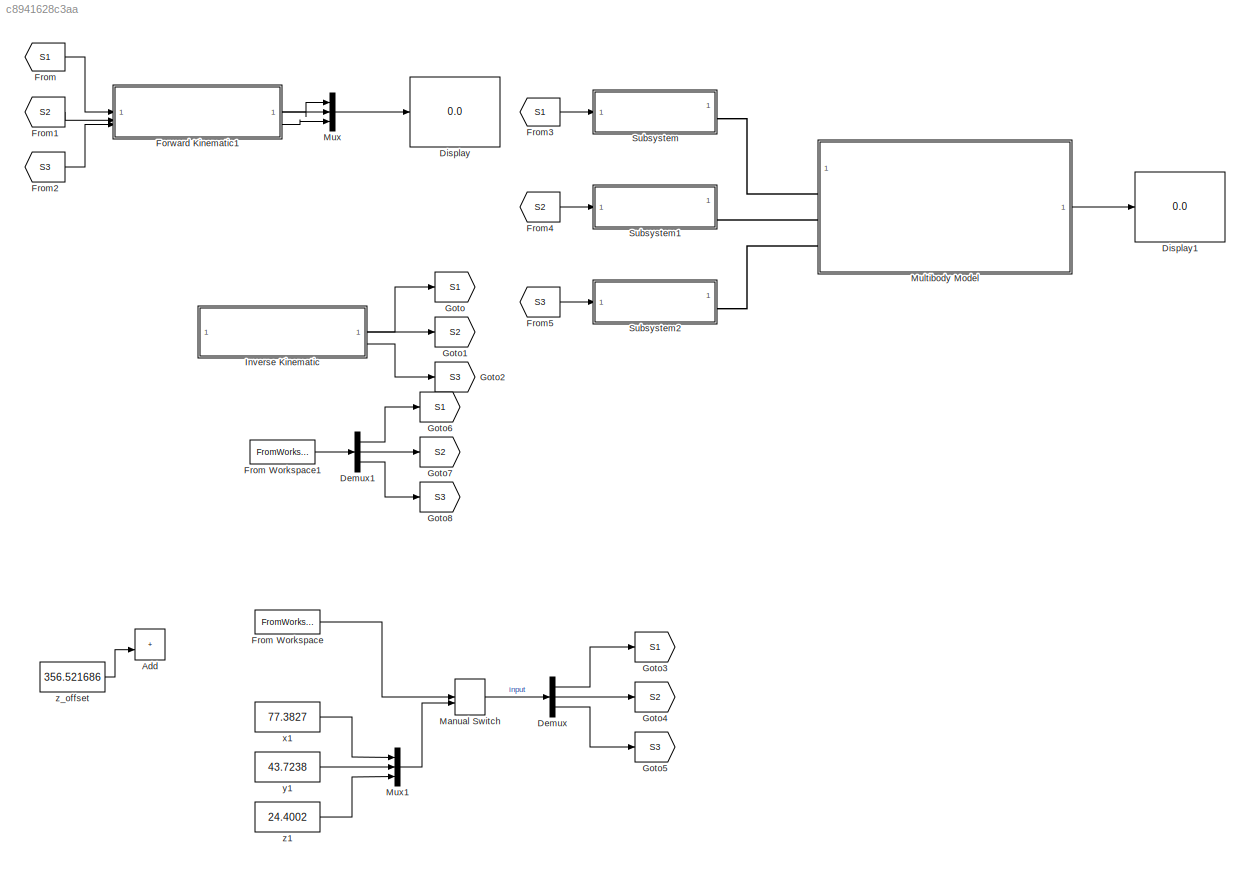
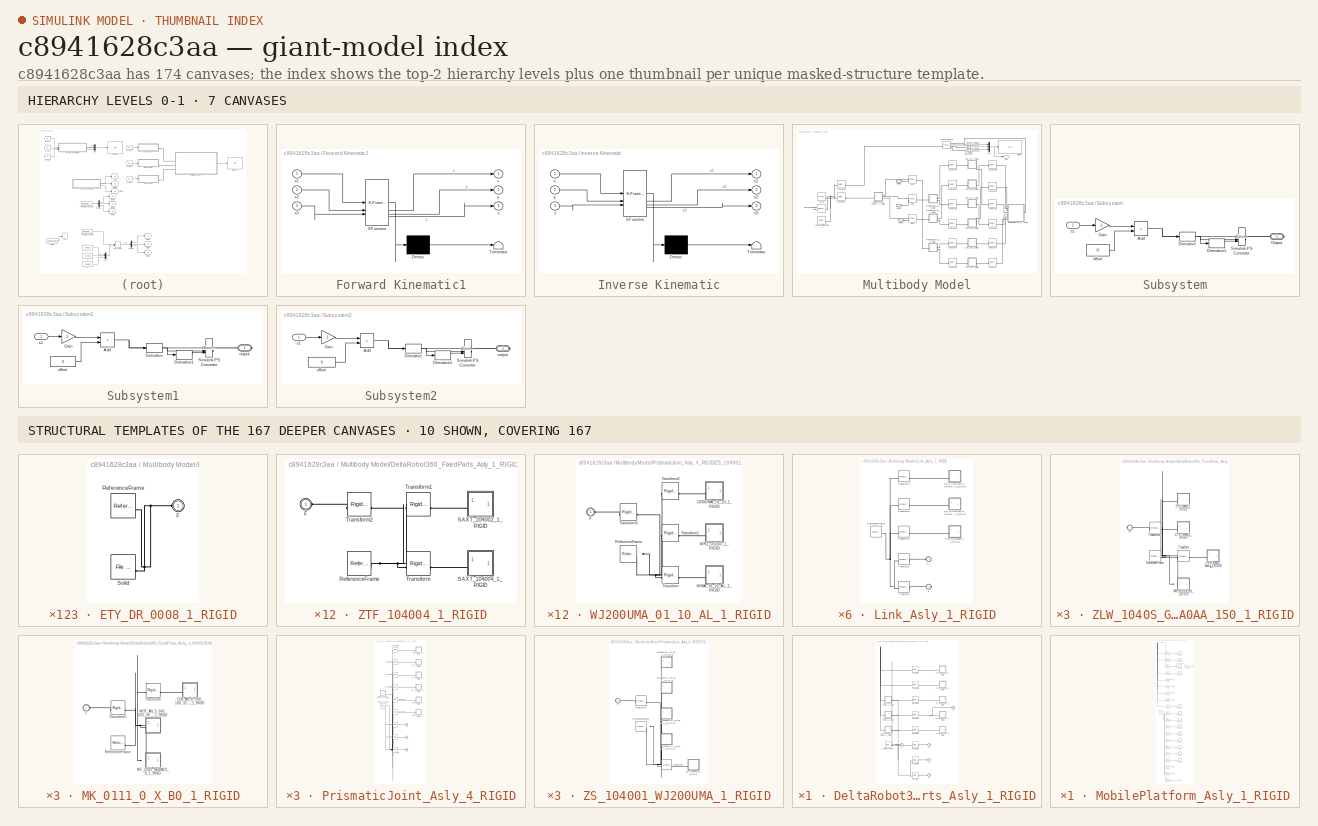
[diagram: thumbnail index - top-2 hierarchy levels (7 canvases) + 10 structural-template representatives of the remaining 167 canvases]
MODEL slx_c8941628c3aa
KIND model
CONFIG AbsTol = auto
CONFIG EnableMultiTasking = off
CONFIG FixedStep = 0.001
CONFIG MaxStep = auto
CONFIG MinStep = auto
CONFIG RelTol = 1e-3
CONFIG SampleTimeConstraint = Unconstrained
CONFIG SolverName = FixedStepAuto
CONFIG StartTime = 0.0
CONFIG StopTime = 30
WORKSPACE source: external: MATLAB File  (data not in archive)
BLOCK [Sum] Add
  IconShape = rectangular
BLOCK [Demux] Demux
  Commented = on
  Outputs = 3
BLOCK [Demux] Demux1
  Outputs = 3
BLOCK [Display] Display
  Decimation = 1
  Format = long
BLOCK [Display] Display1
  Decimation = 1
  Format = long
BLOCK [SubSystem] Forward Kinematic1
  ErrorFcn = Stateflow.Translate.translate
  PermitHierarchicalResolution = ExplicitOnly
  SFBlockType = MATLAB Function
  TreatAsAtomicUnit = on
BLOCK [Demux] Forward Kinematic1/ Demux 
  Outputs = 1
BLOCK [S-Function] Forward Kinematic1/ SFunction 
  EnableBusSupport = on
  FunctionName = sf_sfun
  PortCounts = [3 4]
  SFcnIsStateOwnerBlock = off
  SFunctionDeploymentMode = off
  Tag = Stateflow S-Function 1
BLOCK [Terminator] Forward Kinematic1/ Terminator 
BLOCK [Inport] Forward Kinematic1/s1
BLOCK [Inport] Forward Kinematic1/s2
  Port = 2
BLOCK [Inport] Forward Kinematic1/s3
  Port = 3
BLOCK [Outport] Forward Kinematic1/x
BLOCK [Outport] Forward Kinematic1/y
  Port = 2
BLOCK [Outport] Forward Kinematic1/z
  Port = 3
BLOCK [From] From
  GotoTag = S1
BLOCK [FromWorkspace] From Workspace
  Commented = on
  OutputAfterFinalValue = Holding final value
  VariableName = simin
BLOCK [FromWorkspace] From Workspace1
  OutputAfterFinalValue = Holding final value
  VariableName = simin
BLOCK [From] From1
  GotoTag = S2
BLOCK [From] From2
  GotoTag = S3
BLOCK [From] From3
  GotoTag = S1
BLOCK [From] From4
  GotoTag = S2
BLOCK [From] From5
  GotoTag = S3
BLOCK [Goto] Goto
  Commented = on
  GotoTag = S1
BLOCK [Goto] Goto1
  Commented = on
  GotoTag = S2
BLOCK [Goto] Goto2
  Commented = on
  GotoTag = S3
BLOCK [Goto] Goto3
  Commented = on
  GotoTag = S1
BLOCK [Goto] Goto4
  Commented = on
  GotoTag = S2
BLOCK [Goto] Goto5
  Commented = on
  GotoTag = S3
BLOCK [Goto] Goto6
  GotoTag = S1
BLOCK [Goto] Goto7
  GotoTag = S2
BLOCK [Goto] Goto8
  GotoTag = S3
BLOCK [SubSystem] Inverse Kinematic
  Commented = on
  ErrorFcn = Stateflow.Translate.translate
  PermitHierarchicalResolution = ExplicitOnly
  SFBlockType = MATLAB Function
  TreatAsAtomicUnit = on
BLOCK [Demux] Inverse Kinematic/ Demux 
  Outputs = 1
BLOCK [S-Function] Inverse Kinematic/ SFunction 
  EnableBusSupport = on
  FunctionName = sf_sfun
  PortCounts = [3 4]
  SFcnIsStateOwnerBlock = off
  SFunctionDeploymentMode = off
  Tag = Stateflow S-Function 2
BLOCK [Terminator] Inverse Kinematic/ Terminator 
BLOCK [Outport] Inverse Kinematic/s1
BLOCK [Outport] Inverse Kinematic/s2
  Port = 2
BLOCK [Outport] Inverse Kinematic/s3
  Port = 3
BLOCK [Inport] Inverse Kinematic/x
BLOCK [Inport] Inverse Kinematic/y
  Port = 2
BLOCK [Inport] Inverse Kinematic/z
  Port = 3
BLOCK [ManualSwitch] Manual Switch
  Commented = on
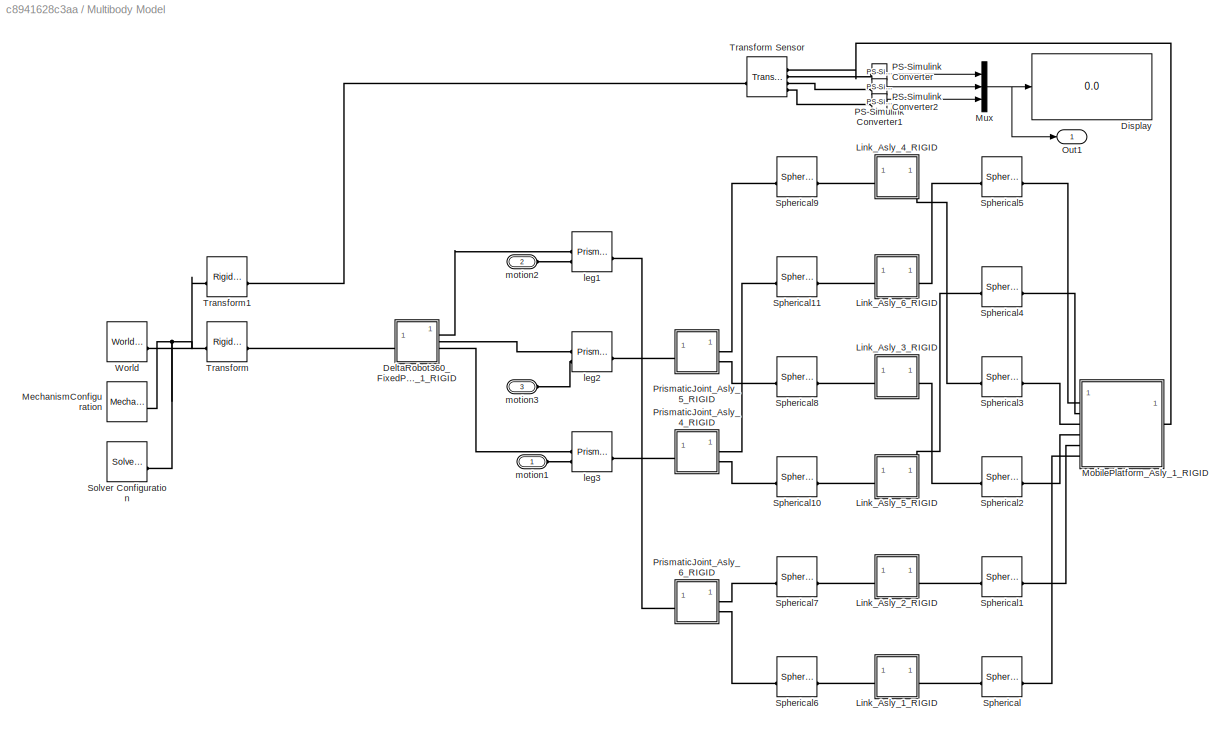
BLOCK [SubSystem] Multibody Model
BLOCK [SubSystem] Multibody Model/DeltaRobot360_FixedParts_Asly_1_RIGID
BLOCK [SubSystem] Multibody Model/DeltaRobot360_FixedParts_Asly_1_RIGID/ETY_DR_0008_1_RIGID
BLOCK [PMIOPort] Multibody Model/DeltaRobot360_FixedParts_Asly_1_RIGID/ETY_DR_0008_1_RIGID/F
  Side = Left
BLOCK [Reference] Multibody Model/DeltaRobot360_FixedParts_Asly_1_RIGID/ETY_DR_0008_1_RIGID/ReferenceFrame  REF=sm_lib/Frames and
Transforms/Reference
Frame
  SourceBlock = sm_lib/Frames and\nTransforms/Reference\nFrame
  SourceType = Reference\nFrame
BLOCK [Reference] Multibody Model/DeltaRobot360_FixedParts_Asly_1_RIGID/ETY_DR_0008_1_RIGID/Solid  REF=sm_lib/Body Elements/File Solid
  SourceBlock = sm_lib/Body Elements/File Solid
  SourceType = File Solid
BLOCK [SubSystem] Multibody Model/DeltaRobot360_FixedParts_Asly_1_RIGID/ETY_DR_0011_1_RIGID
BLOCK [PMIOPort] Multibody Model/DeltaRobot360_FixedParts_Asly_1_RIGID/ETY_DR_0011_1_RIGID/F
  Side = Left
BLOCK [Reference] Multibody Model/DeltaRobot360_FixedParts_Asly_1_RIGID/ETY_DR_0011_1_RIGID/ReferenceFrame  REF=sm_lib/Frames and
Transforms/Reference
Frame
  SourceBlock = sm_lib/Frames and\nTransforms/Reference\nFrame
  SourceType = Reference\nFrame
BLOCK [Reference] Multibody Model/DeltaRobot360_FixedParts_Asly_1_RIGID/ETY_DR_0011_1_RIGID/Solid  REF=sm_lib/Body Elements/File Solid
  SourceBlock = sm_lib/Body Elements/File Solid
  SourceType = File Solid
BLOCK [SubSystem] Multibody Model/DeltaRobot360_FixedParts_Asly_1_RIGID/ETY_DR_0013_1_RIGID
BLOCK [PMIOPort] Multibody Model/DeltaRobot360_FixedParts_Asly_1_RIGID/ETY_DR_0013_1_RIGID/F
  Side = Left
BLOCK [Reference] Multibody Model/DeltaRobot360_FixedParts_Asly_1_RIGID/ETY_DR_0013_1_RIGID/ReferenceFrame  REF=sm_lib/Frames and
Transforms/Reference
Frame
  SourceBlock = sm_lib/Frames and\nTransforms/Reference\nFrame
  SourceType = Reference\nFrame
BLOCK [Reference] Multibody Model/DeltaRobot360_FixedParts_Asly_1_RIGID/ETY_DR_0013_1_RIGID/Solid  REF=sm_lib/Body Elements/File Solid
  SourceBlock = sm_lib/Body Elements/File Solid
  SourceType = File Solid
BLOCK [SubSystem] Multibody Model/DeltaRobot360_FixedParts_Asly_1_RIGID/ETY_DR_0013_2_RIGID
BLOCK [PMIOPort] Multibody Model/DeltaRobot360_FixedParts_Asly_1_RIGID/ETY_DR_0013_2_RIGID/F
  Side = Left
BLOCK [Reference] Multibody Model/DeltaRobot360_FixedParts_Asly_1_RIGID/ETY_DR_0013_2_RIGID/ReferenceFrame  REF=sm_lib/Frames and
Transforms/Reference
Frame
  SourceBlock = sm_lib/Frames and\nTransforms/Reference\nFrame
  SourceType = Reference\nFrame
BLOCK [Reference] Multibody Model/DeltaRobot360_FixedParts_Asly_1_RIGID/ETY_DR_0013_2_RIGID/Solid  REF=sm_lib/Body Elements/File Solid
  SourceBlock = sm_lib/Body Elements/File Solid
  SourceType = File Solid
BLOCK [SubSystem] Multibody Model/DeltaRobot360_FixedParts_Asly_1_RIGID/ETY_DR_0013_3_RIGID
BLOCK [PMIOPort] Multibody Model/DeltaRobot360_FixedParts_Asly_1_RIGID/ETY_DR_0013_3_RIGID/F
  Side = Left
BLOCK [Reference] Multibody Model/DeltaRobot360_FixedParts_Asly_1_RIGID/ETY_DR_0013_3_RIGID/ReferenceFrame  REF=sm_lib/Frames and
Transforms/Reference
Frame
  SourceBlock = sm_lib/Frames and\nTransforms/Reference\nFrame
  SourceType = Reference\nFrame
BLOCK [Reference] Multibody Model/DeltaRobot360_FixedParts_Asly_1_RIGID/ETY_DR_0013_3_RIGID/Solid  REF=sm_lib/Body Elements/File Solid
  SourceBlock = sm_lib/Body Elements/File Solid
  SourceType = File Solid
BLOCK [PMIOPort] Multibody Model/DeltaRobot360_FixedParts_Asly_1_RIGID/F
  Port = 4
  Side = Right
BLOCK [PMIOPort] Multibody Model/DeltaRobot360_FixedParts_Asly_1_RIGID/F1
  Port = 3
  Side = Right
BLOCK [PMIOPort] Multibody Model/DeltaRobot360_FixedParts_Asly_1_RIGID/F2
  Port = 2
  Side = Right
BLOCK [PMIOPort] Multibody Model/DeltaRobot360_FixedParts_Asly_1_RIGID/F3
  Side = Left
BLOCK [PMIOPort] Multibody Model/DeltaRobot360_FixedParts_Asly_1_RIGID/F4
  Port = 5
  Side = Right
BLOCK [Reference] Multibody Model/DeltaRobot360_FixedParts_Asly_1_RIGID/ReferenceFrame  REF=sm_lib/Frames and
Transforms/Reference
Frame
  SourceBlock = sm_lib/Frames and\nTransforms/Reference\nFrame
  SourceType = Reference\nFrame
BLOCK [Reference] Multibody Model/DeltaRobot360_FixedParts_Asly_1_RIGID/Transform  REF=sm_lib/Frames and
Transforms/Rigid
Transform
  SourceBlock = sm_lib/Frames and\nTransforms/Rigid\nTransform
  SourceType = Rigid\nTransform
BLOCK [Reference] Multibody Model/DeltaRobot360_FixedParts_Asly_1_RIGID/Transform1  REF=sm_lib/Frames and
Transforms/Rigid
Transform
  SourceBlock = sm_lib/Frames and\nTransforms/Rigid\nTransform
  SourceType = Rigid\nTransform
BLOCK [Reference] Multibody Model/DeltaRobot360_FixedParts_Asly_1_RIGID/Transform2  REF=sm_lib/Frames and
Transforms/Rigid
Transform
  SourceBlock = sm_lib/Frames and\nTransforms/Rigid\nTransform
  SourceType = Rigid\nTransform
BLOCK [Reference] Multibody Model/DeltaRobot360_FixedParts_Asly_1_RIGID/Transform3  REF=sm_lib/Frames and
Transforms/Rigid
Transform
  SourceBlock = sm_lib/Frames and\nTransforms/Rigid\nTransform
  SourceType = Rigid\nTransform
BLOCK [Reference] Multibody Model/DeltaRobot360_FixedParts_Asly_1_RIGID/Transform4  REF=sm_lib/Frames and
Transforms/Rigid
Transform
  SourceBlock = sm_lib/Frames and\nTransforms/Rigid\nTransform
  SourceType = Rigid\nTransform
BLOCK [Reference] Multibody Model/DeltaRobot360_FixedParts_Asly_1_RIGID/Transform5  REF=sm_lib/Frames and
Transforms/Rigid
Transform
  SourceBlock = sm_lib/Frames and\nTransforms/Rigid\nTransform
  SourceType = Rigid\nTransform
BLOCK [Reference] Multibody Model/DeltaRobot360_FixedParts_Asly_1_RIGID/Transform6  REF=sm_lib/Frames and
Transforms/Rigid
Transform
  SourceBlock = sm_lib/Frames and\nTransforms/Rigid\nTransform
  SourceType = Rigid\nTransform
BLOCK [Reference] Multibody Model/DeltaRobot360_FixedParts_Asly_1_RIGID/Transform7  REF=sm_lib/Frames and
Transforms/Rigid
Transform
  SourceBlock = sm_lib/Frames and\nTransforms/Rigid\nTransform
  SourceType = Rigid\nTransform
BLOCK [SubSystem] Multibody Model/DeltaRobot360_FixedParts_Asly_1_RIGID/ZLW_1040S_G0BW0_D0H1C_AN0A0AA_150_1_RIGID
BLOCK [PMIOPort] Multibody Model/DeltaRobot360_FixedParts_Asly_1_RIGID/ZLW_1040S_G0BW0_D0H1C_AN0A0AA_150_1_RIGID/F
  Side = Right
BLOCK [SubSystem] Multibody Model/DeltaRobot360_FixedParts_Asly_1_RIGID/ZLW_1040S_G0BW0_D0H1C_AN0A0AA_150_1_RIGID/MK_0111_0_X_B0_1_RIGID
BLOCK [SubSystem] Multibody Model/DeltaRobot360_FixedParts_Asly_1_RIGID/ZLW_1040S_G0BW0_D0H1C_AN0A0AA_150_1_RIGID/MK_0111_0_X_B0_1_RIGID/COU_AR_K_080_100_32_32_B_AAAA_1_RIGID
BLOCK [PMIOPort] Multibody Model/DeltaRobot360_FixedParts_Asly_1_RIGID/ZLW_1040S_G0BW0_D0H1C_AN0A0AA_150_1_RIGID/MK_0111_0_X_B0_1_RIGID/COU_AR_K_080_100_32_32_B_AAAA_1_RIGID/F
  Side = Left
BLOCK [Reference] Multibody Model/DeltaRobot360_FixedParts_Asly_1_RIGID/ZLW_1040S_G0BW0_D0H1C_AN0A0AA_150_1_RIGID/MK_0111_0_X_B0_1_RIGID/COU_AR_K_080_100_32_32_B_AAAA_1_RIGID/ReferenceFrame  REF=sm_lib/Frames and
Transforms/Reference
Frame
  SourceBlock = sm_lib/Frames and\nTransforms/Reference\nFrame
  SourceType = Reference\nFrame
BLOCK [Reference] Multibody Model/DeltaRobot360_FixedParts_Asly_1_RIGID/ZLW_1040S_G0BW0_D0H1C_AN0A0AA_150_1_RIGID/MK_0111_0_X_B0_1_RIGID/COU_AR_K_080_100_32_32_B_AAAA_1_RIGID/Solid  REF=sm_lib/Body Elements/File Solid
  SourceBlock = sm_lib/Body Elements/File Solid
  SourceType = File Solid
BLOCK [PMIOPort] Multibody Model/DeltaRobot360_FixedParts_Asly_1_RIGID/ZLW_1040S_G0BW0_D0H1C_AN0A0AA_150_1_RIGID/MK_0111_0_X_B0_1_RIGID/F
  Side = Left
BLOCK [SubSystem] Multibody Model/DeltaRobot360_FixedParts_Asly_1_RIGID/ZLW_1040S_G0BW0_D0H1C_AN0A0AA_150_1_RIGID/MK_0111_0_X_B0_1_RIGID/MF_1040_NEMA23_S_1_RIGID
BLOCK [PMIOPort] Multibody Model/DeltaRobot360_FixedParts_Asly_1_RIGID/ZLW_1040S_G0BW0_D0H1C_AN0A0AA_150_1_RIGID/MK_0111_0_X_B0_1_RIGID/MF_1040_NEMA23_S_1_RIGID/F
  Side = Left
BLOCK [Reference] Multibody Model/DeltaRobot360_FixedParts_Asly_1_RIGID/ZLW_1040S_G0BW0_D0H1C_AN0A0AA_150_1_RIGID/MK_0111_0_X_B0_1_RIGID/MF_1040_NEMA23_S_1_RIGID/ReferenceFrame  REF=sm_lib/Frames and
Transforms/Reference
Frame
  SourceBlock = sm_lib/Frames and\nTransforms/Reference\nFrame
  SourceType = Reference\nFrame
BLOCK [Reference] Multibody Model/DeltaRobot360_FixedParts_Asly_1_RIGID/ZLW_1040S_G0BW0_D0H1C_AN0A0AA_150_1_RIGID/MK_0111_0_X_B0_1_RIGID/MF_1040_NEMA23_S_1_RIGID/Transform  REF=sm_lib/Frames and
Transforms/Rigid
Transform
  SourceBlock = sm_lib/Frames and\nTransforms/Rigid\nTransform
  SourceType = Rigid\nTransform
BLOCK [Reference] Multibody Model/DeltaRobot360_FixedParts_Asly_1_RIGID/ZLW_1040S_G0BW0_D0H1C_AN0A0AA_150_1_RIGID/MK_0111_0_X_B0_1_RIGID/MF_1040_NEMA23_S_1_RIGID/Transform1  REF=sm_lib/Frames and
Transforms/Rigid
Transform
  SourceBlock = sm_lib/Frames and\nTransforms/Rigid\nTransform
  SourceType = Rigid\nTransform
BLOCK [Reference] Multibody Model/DeltaRobot360_FixedParts_Asly_1_RIGID/ZLW_1040S_G0BW0_D0H1C_AN0A0AA_150_1_RIGID/MK_0111_0_X_B0_1_RIGID/MF_1040_NEMA23_S_1_RIGID/Transform2  REF=sm_lib/Frames and
Transforms/Rigid
Transform
  SourceBlock = sm_lib/Frames and\nTransforms/Rigid\nTransform
  SourceType = Rigid\nTransform
BLOCK [SubSystem] Multibody Model/DeltaRobot360_FixedParts_Asly_1_RIGID/ZLW_1040S_G0BW0_D0H1C_AN0A0AA_150_1_RIGID/MK_0111_0_X_B0_1_RIGID/MF_1040_NEMA23_S_1_RIGID/ZTY_104004_1_RIGID
BLOCK [PMIOPort] Multibody Model/DeltaRobot360_FixedParts_Asly_1_RIGID/ZLW_1040S_G0BW0_D0H1C_AN0A0AA_150_1_RIGID/MK_0111_0_X_B0_1_RIGID/MF_1040_NEMA23_S_1_RIGID/ZTY_104004_1_RIGID/F
  Side = Left
BLOCK [Reference] Multibody Model/DeltaRobot360_FixedParts_Asly_1_RIGID/ZLW_1040S_G0BW0_D0H1C_AN0A0AA_150_1_RIGID/MK_0111_0_X_B0_1_RIGID/MF_1040_NEMA23_S_1_RIGID/ZTY_104004_1_RIGID/ReferenceFrame  REF=sm_lib/Frames and
Transforms/Reference
Frame
  SourceBlock = sm_lib/Frames and\nTransforms/Reference\nFrame
  SourceType = Reference\nFrame
BLOCK [Reference] Multibody Model/DeltaRobot360_FixedParts_Asly_1_RIGID/ZLW_1040S_G0BW0_D0H1C_AN0A0AA_150_1_RIGID/MK_0111_0_X_B0_1_RIGID/MF_1040_NEMA23_S_1_RIGID/ZTY_104004_1_RIGID/Solid  REF=sm_lib/Body Elements/File Solid
  SourceBlock = sm_lib/Body Elements/File Solid
  SourceType = File Solid
BLOCK [SubSystem] Multibody Model/DeltaRobot360_FixedParts_Asly_1_RIGID/ZLW_1040S_G0BW0_D0H1C_AN0A0AA_150_1_RIGID/MK_0111_0_X_B0_1_RIGID/MF_1040_NEMA23_S_1_RIGID/ZTY_104010_1_RIGID
BLOCK [PMIOPort] Multibody Model/DeltaRobot360_FixedParts_Asly_1_RIGID/ZLW_1040S_G0BW0_D0H1C_AN0A0AA_150_1_RIGID/MK_0111_0_X_B0_1_RIGID/MF_1040_NEMA23_S_1_RIGID/ZTY_104010_1_RIGID/F
  Side = Left
BLOCK [Reference] Multibody Model/DeltaRobot360_FixedParts_Asly_1_RIGID/ZLW_1040S_G0BW0_D0H1C_AN0A0AA_150_1_RIGID/MK_0111_0_X_B0_1_RIGID/MF_1040_NEMA23_S_1_RIGID/ZTY_104010_1_RIGID/ReferenceFrame  REF=sm_lib/Frames and
Transforms/Reference
Frame
  SourceBlock = sm_lib/Frames and\nTransforms/Reference\nFrame
  SourceType = Reference\nFrame
BLOCK [Reference] Multibody Model/DeltaRobot360_FixedParts_Asly_1_RIGID/ZLW_1040S_G0BW0_D0H1C_AN0A0AA_150_1_RIGID/MK_0111_0_X_B0_1_RIGID/MF_1040_NEMA23_S_1_RIGID/ZTY_104010_1_RIGID/Solid  REF=sm_lib/Body Elements/File Solid
  SourceBlock = sm_lib/Body Elements/File Solid
  SourceType = File Solid
BLOCK [SubSystem] Multibody Model/DeltaRobot360_FixedParts_Asly_1_RIGID/ZLW_1040S_G0BW0_D0H1C_AN0A0AA_150_1_RIGID/MK_0111_0_X_B0_1_RIGID/MOT_AN_S_060_035_060_M_C_AAAC_1_RIGID
BLOCK [PMIOPort] Multibody Model/DeltaRobot360_FixedParts_Asly_1_RIGID/ZLW_1040S_G0BW0_D0H1C_AN0A0AA_150_1_RIGID/MK_0111_0_X_B0_1_RIGID/MOT_AN_S_060_035_060_M_C_AAAC_1_RIGID/F
  Side = Left
BLOCK [Reference] Multibody Model/DeltaRobot360_FixedParts_Asly_1_RIGID/ZLW_1040S_G0BW0_D0H1C_AN0A0AA_150_1_RIGID/MK_0111_0_X_B0_1_RIGID/MOT_AN_S_060_035_060_M_C_AAAC_1_RIGID/ReferenceFrame  REF=sm_lib/Frames and
Transforms/Reference
Frame
  SourceBlock = sm_lib/Frames and\nTransforms/Reference\nFrame
  SourceType = Reference\nFrame
BLOCK [Reference] Multibody Model/DeltaRobot360_FixedParts_Asly_1_RIGID/ZLW_1040S_G0BW0_D0H1C_AN0A0AA_150_1_RIGID/MK_0111_0_X_B0_1_RIGID/MOT_AN_S_060_035_060_M_C_AAAC_1_RIGID/Transform  REF=sm_lib/Frames and
Transforms/Rigid
Transform
  SourceBlock = sm_lib/Frames and\nTransforms/Rigid\nTransform
  SourceType = Rigid\nTransform
BLOCK [Reference] Multibody Model/DeltaRobot360_FixedParts_Asly_1_RIGID/ZLW_1040S_G0BW0_D0H1C_AN0A0AA_150_1_RIGID/MK_0111_0_X_B0_1_RIGID/MOT_AN_S_060_035_060_M_C_AAAC_1_RIGID/Transform1  REF=sm_lib/Frames and
Transforms/Rigid
Transform
  SourceBlock = sm_lib/Frames and\nTransforms/Rigid\nTransform
  SourceType = Rigid\nTransform
BLOCK [Reference] Multibody Model/DeltaRobot360_FixedParts_Asly_1_RIGID/ZLW_1040S_G0BW0_D0H1C_AN0A0AA_150_1_RIGID/MK_0111_0_X_B0_1_RIGID/MOT_AN_S_060_035_060_M_C_AAAC_1_RIGID/Transform2  REF=sm_lib/Frames and
Transforms/Rigid
Transform
  SourceBlock = sm_lib/Frames and\nTransforms/Rigid\nTransform
  SourceType = Rigid\nTransform
BLOCK [SubSystem] Multibody Model/DeltaRobot360_FixedParts_Asly_1_RIGID/ZLW_1040S_G0BW0_D0H1C_AN0A0AA_150_1_RIGID/MK_0111_0_X_B0_1_RIGID/MOT_AN_S_060_035_060_M_C_AAAC_1_RIGID/x1_1_RIGID
BLOCK [PMIOPort] Multibody Model/DeltaRobot360_FixedParts_Asly_1_RIGID/ZLW_1040S_G0BW0_D0H1C_AN0A0AA_150_1_RIGID/MK_0111_0_X_B0_1_RIGID/MOT_AN_S_060_035_060_M_C_AAAC_1_RIGID/x1_1_RIGID/F
  Side = Left
BLOCK [Reference] Multibody Model/DeltaRobot360_FixedParts_Asly_1_RIGID/ZLW_1040S_G0BW0_D0H1C_AN0A0AA_150_1_RIGID/MK_0111_0_X_B0_1_RIGID/MOT_AN_S_060_035_060_M_C_AAAC_1_RIGID/x1_1_RIGID/ReferenceFrame  REF=sm_lib/Frames and
Transforms/Reference
Frame
  SourceBlock = sm_lib/Frames and\nTransforms/Reference\nFrame
  SourceType = Reference\nFrame
BLOCK [Reference] Multibody Model/DeltaRobot360_FixedParts_Asly_1_RIGID/ZLW_1040S_G0BW0_D0H1C_AN0A0AA_150_1_RIGID/MK_0111_0_X_B0_1_RIGID/MOT_AN_S_060_035_060_M_C_AAAC_1_RIGID/x1_1_RIGID/Solid  REF=sm_lib/Body Elements/File Solid
  SourceBlock = sm_lib/Body Elements/File Solid
  SourceType = File Solid
BLOCK [SubSystem] Multibody Model/DeltaRobot360_FixedParts_Asly_1_RIGID/ZLW_1040S_G0BW0_D0H1C_AN0A0AA_150_1_RIGID/MK_0111_0_X_B0_1_RIGID/MOT_AN_S_060_035_060_M_C_AAAC_1_RIGID/x2_1_RIGID
BLOCK [PMIOPort] Multibody Model/DeltaRobot360_FixedParts_Asly_1_RIGID/ZLW_1040S_G0BW0_D0H1C_AN0A0AA_150_1_RIGID/MK_0111_0_X_B0_1_RIGID/MOT_AN_S_060_035_060_M_C_AAAC_1_RIGID/x2_1_RIGID/F
  Side = Left
BLOCK [Reference] Multibody Model/DeltaRobot360_FixedParts_Asly_1_RIGID/ZLW_1040S_G0BW0_D0H1C_AN0A0AA_150_1_RIGID/MK_0111_0_X_B0_1_RIGID/MOT_AN_S_060_035_060_M_C_AAAC_1_RIGID/x2_1_RIGID/ReferenceFrame  REF=sm_lib/Frames and
Transforms/Reference
Frame
  SourceBlock = sm_lib/Frames and\nTransforms/Reference\nFrame
  SourceType = Reference\nFrame
BLOCK [Reference] Multibody Model/DeltaRobot360_FixedParts_Asly_1_RIGID/ZLW_1040S_G0BW0_D0H1C_AN0A0AA_150_1_RIGID/MK_0111_0_X_B0_1_RIGID/MOT_AN_S_060_035_060_M_C_AAAC_1_RIGID/x2_1_RIGID/Solid  REF=sm_lib/Body Elements/File Solid
  SourceBlock = sm_lib/Body Elements/File Solid
  SourceType = File Solid
BLOCK [Reference] Multibody Model/DeltaRobot360_FixedParts_Asly_1_RIGID/ZLW_1040S_G0BW0_D0H1C_AN0A0AA_150_1_RIGID/MK_0111_0_X_B0_1_RIGID/ReferenceFrame  REF=sm_lib/Frames and
Transforms/Reference
Frame
  SourceBlock = sm_lib/Frames and\nTransforms/Reference\nFrame
  SourceType = Reference\nFrame
BLOCK [Reference] Multibody Model/DeltaRobot360_FixedParts_Asly_1_RIGID/ZLW_1040S_G0BW0_D0H1C_AN0A0AA_150_1_RIGID/MK_0111_0_X_B0_1_RIGID/Transform  REF=sm_lib/Frames and
Transforms/Rigid
Transform
  SourceBlock = sm_lib/Frames and\nTransforms/Rigid\nTransform
  SourceType = Rigid\nTransform
BLOCK [Reference] Multibody Model/DeltaRobot360_FixedParts_Asly_1_RIGID/ZLW_1040S_G0BW0_D0H1C_AN0A0AA_150_1_RIGID/MK_0111_0_X_B0_1_RIGID/Transform1  REF=sm_lib/Frames and
Transforms/Rigid
Transform
  SourceBlock = sm_lib/Frames and\nTransforms/Rigid\nTransform
  SourceType = Rigid\nTransform
BLOCK [Reference] Multibody Model/DeltaRobot360_FixedParts_Asly_1_RIGID/ZLW_1040S_G0BW0_D0H1C_AN0A0AA_150_1_RIGID/ReferenceFrame  REF=sm_lib/Frames and
Transforms/Reference
Frame
  SourceBlock = sm_lib/Frames and\nTransforms/Reference\nFrame
  SourceType = Reference\nFrame
BLOCK [Reference] Multibody Model/DeltaRobot360_FixedParts_Asly_1_RIGID/ZLW_1040S_G0BW0_D0H1C_AN0A0AA_150_1_RIGID/Transform  REF=sm_lib/Frames and
Transforms/Rigid
Transform
  SourceBlock = sm_lib/Frames and\nTransforms/Rigid\nTransform
  SourceType = Rigid\nTransform
BLOCK [Reference] Multibody Model/DeltaRobot360_FixedParts_Asly_1_RIGID/ZLW_1040S_G0BW0_D0H1C_AN0A0AA_150_1_RIGID/Transform1  REF=sm_lib/Frames and
Transforms/Rigid
Transform
  SourceBlock = sm_lib/Frames and\nTransforms/Rigid\nTransform
  SourceType = Rigid\nTransform
BLOCK [SubSystem] Multibody Model/DeltaRobot360_FixedParts_Asly_1_RIGID/ZLW_1040S_G0BW0_D0H1C_AN0A0AA_150_1_RIGID/ZSX_104001_konfig_1_RIGID
BLOCK [PMIOPort] Multibody Model/DeltaRobot360_FixedParts_Asly_1_RIGID/ZLW_1040S_G0BW0_D0H1C_AN0A0AA_150_1_RIGID/ZSX_104001_konfig_1_RIGID/F
  Side = Left
BLOCK [Reference] Multibody Model/DeltaRobot360_FixedParts_Asly_1_RIGID/ZLW_1040S_G0BW0_D0H1C_AN0A0AA_150_1_RIGID/ZSX_104001_konfig_1_RIGID/ReferenceFrame  REF=sm_lib/Frames and
Transforms/Reference
Frame
  SourceBlock = sm_lib/Frames and\nTransforms/Reference\nFrame
  SourceType = Reference\nFrame
BLOCK [Reference] Multibody Model/DeltaRobot360_FixedParts_Asly_1_RIGID/ZLW_1040S_G0BW0_D0H1C_AN0A0AA_150_1_RIGID/ZSX_104001_konfig_1_RIGID/Solid  REF=sm_lib/Body Elements/File Solid
  SourceBlock = sm_lib/Body Elements/File Solid
  SourceType = File Solid
BLOCK [SubSystem] Multibody Model/DeltaRobot360_FixedParts_Asly_1_RIGID/ZLW_1040S_G0BW0_D0H1C_AN0A0AA_150_1_RIGID/ZTF_104004_1_RIGID
BLOCK [PMIOPort] Multibody Model/DeltaRobot360_FixedParts_Asly_1_RIGID/ZLW_1040S_G0BW0_D0H1C_AN0A0AA_150_1_RIGID/ZTF_104004_1_RIGID/F
  Side = Left
BLOCK [Reference] Multibody Model/DeltaRobot360_FixedParts_Asly_1_RIGID/ZLW_1040S_G0BW0_D0H1C_AN0A0AA_150_1_RIGID/ZTF_104004_1_RIGID/ReferenceFrame  REF=sm_lib/Frames and
Transforms/Reference
Frame
  SourceBlock = sm_lib/Frames and\nTransforms/Reference\nFrame
  SourceType = Reference\nFrame
BLOCK [SubSystem] Multibody Model/DeltaRobot360_FixedParts_Asly_1_RIGID/ZLW_1040S_G0BW0_D0H1C_AN0A0AA_150_1_RIGID/ZTF_104004_1_RIGID/SAXT_104002_1_RIGID
BLOCK [PMIOPort] Multibody Model/DeltaRobot360_FixedParts_Asly_1_RIGID/ZLW_1040S_G0BW0_D0H1C_AN0A0AA_150_1_RIGID/ZTF_104004_1_RIGID/SAXT_104002_1_RIGID/F
  Side = Left
BLOCK [Reference] Multibody Model/DeltaRobot360_FixedParts_Asly_1_RIGID/ZLW_1040S_G0BW0_D0H1C_AN0A0AA_150_1_RIGID/ZTF_104004_1_RIGID/SAXT_104002_1_RIGID/ReferenceFrame  REF=sm_lib/Frames and
Transforms/Reference
Frame
  SourceBlock = sm_lib/Frames and\nTransforms/Reference\nFrame
  SourceType = Reference\nFrame
BLOCK [Reference] Multibody Model/DeltaRobot360_FixedParts_Asly_1_RIGID/ZLW_1040S_G0BW0_D0H1C_AN0A0AA_150_1_RIGID/ZTF_104004_1_RIGID/SAXT_104002_1_RIGID/Solid  REF=sm_lib/Body Elements/File Solid
  SourceBlock = sm_lib/Body Elements/File Solid
  SourceType = File Solid
BLOCK [SubSystem] Multibody Model/DeltaRobot360_FixedParts_Asly_1_RIGID/ZLW_1040S_G0BW0_D0H1C_AN0A0AA_150_1_RIGID/ZTF_104004_1_RIGID/SAXT_104004_1_RIGID
BLOCK [PMIOPort] Multibody Model/DeltaRobot360_FixedParts_Asly_1_RIGID/ZLW_1040S_G0BW0_D0H1C_AN0A0AA_150_1_RIGID/ZTF_104004_1_RIGID/SAXT_104004_1_RIGID/F
  Side = Left
BLOCK [Reference] Multibody Model/DeltaRobot360_FixedParts_Asly_1_RIGID/ZLW_1040S_G0BW0_D0H1C_AN0A0AA_150_1_RIGID/ZTF_104004_1_RIGID/SAXT_104004_1_RIGID/ReferenceFrame  REF=sm_lib/Frames and
Transforms/Reference
Frame
  SourceBlock = sm_lib/Frames and\nTransforms/Reference\nFrame
  SourceType = Reference\nFrame
BLOCK [Reference] Multibody Model/DeltaRobot360_FixedParts_Asly_1_RIGID/ZLW_1040S_G0BW0_D0H1C_AN0A0AA_150_1_RIGID/ZTF_104004_1_RIGID/SAXT_104004_1_RIGID/Solid  REF=sm_lib/Body Elements/File Solid
  SourceBlock = sm_lib/Body Elements/File Solid
  SourceType = File Solid
BLOCK [Reference] Multibody Model/DeltaRobot360_FixedParts_Asly_1_RIGID/ZLW_1040S_G0BW0_D0H1C_AN0A0AA_150_1_RIGID/ZTF_104004_1_RIGID/Transform  REF=sm_lib/Frames and
Transforms/Rigid
Transform
  SourceBlock = sm_lib/Frames and\nTransforms/Rigid\nTransform
  SourceType = Rigid\nTransform
BLOCK [Reference] Multibody Model/DeltaRobot360_FixedParts_Asly_1_RIGID/ZLW_1040S_G0BW0_D0H1C_AN0A0AA_150_1_RIGID/ZTF_104004_1_RIGID/Transform1  REF=sm_lib/Frames and
Transforms/Rigid
Transform
  SourceBlock = sm_lib/Frames and\nTransforms/Rigid\nTransform
  SourceType = Rigid\nTransform
BLOCK [Reference] Multibody Model/DeltaRobot360_FixedParts_Asly_1_RIGID/ZLW_1040S_G0BW0_D0H1C_AN0A0AA_150_1_RIGID/ZTF_104004_1_RIGID/Transform2  REF=sm_lib/Frames and
Transforms/Rigid
Transform
  SourceBlock = sm_lib/Frames and\nTransforms/Rigid\nTransform
  SourceType = Rigid\nTransform
BLOCK [SubSystem] Multibody Model/DeltaRobot360_FixedParts_Asly_1_RIGID/ZLW_1040S_G0BW0_D0H1C_AN0A0AA_150_1_RIGID/ZTL_104002_1_RIGID
BLOCK [PMIOPort] Multibody Model/DeltaRobot360_FixedParts_Asly_1_RIGID/ZLW_1040S_G0BW0_D0H1C_AN0A0AA_150_1_RIGID/ZTL_104002_1_RIGID/F
  Side = Left
BLOCK [Reference] Multibody Model/DeltaRobot360_FixedParts_Asly_1_RIGID/ZLW_1040S_G0BW0_D0H1C_AN0A0AA_150_1_RIGID/ZTL_104002_1_RIGID/ReferenceFrame  REF=sm_lib/Frames and
Transforms/Reference
Frame
  SourceBlock = sm_lib/Frames and\nTransforms/Reference\nFrame
  SourceType = Reference\nFrame
BLOCK [SubSystem] Multibody Model/DeltaRobot360_FixedParts_Asly_1_RIGID/ZLW_1040S_G0BW0_D0H1C_AN0A0AA_150_1_RIGID/ZTL_104002_1_RIGID/SAXT_104001_1_RIGID
BLOCK [PMIOPort] Multibody Model/DeltaRobot360_FixedParts_Asly_1_RIGID/ZLW_1040S_G0BW0_D0H1C_AN0A0AA_150_1_RIGID/ZTL_104002_1_RIGID/SAXT_104001_1_RIGID/F
  Side = Left
BLOCK [Reference] Multibody Model/DeltaRobot360_FixedParts_Asly_1_RIGID/ZLW_1040S_G0BW0_D0H1C_AN0A0AA_150_1_RIGID/ZTL_104002_1_RIGID/SAXT_104001_1_RIGID/ReferenceFrame  REF=sm_lib/Frames and
Transforms/Reference
Frame
  SourceBlock = sm_lib/Frames and\nTransforms/Reference\nFrame
  SourceType = Reference\nFrame
BLOCK [Reference] Multibody Model/DeltaRobot360_FixedParts_Asly_1_RIGID/ZLW_1040S_G0BW0_D0H1C_AN0A0AA_150_1_RIGID/ZTL_104002_1_RIGID/SAXT_104001_1_RIGID/Solid  REF=sm_lib/Body Elements/File Solid
  SourceBlock = sm_lib/Body Elements/File Solid
  SourceType = File Solid
BLOCK [SubSystem] Multibody Model/DeltaRobot360_FixedParts_Asly_1_RIGID/ZLW_1040S_G0BW0_D0H1C_AN0A0AA_150_1_RIGID/ZTL_104002_1_RIGID/SAXT_104002_1_RIGID
BLOCK [PMIOPort] Multibody Model/DeltaRobot360_FixedParts_Asly_1_RIGID/ZLW_1040S_G0BW0_D0H1C_AN0A0AA_150_1_RIGID/ZTL_104002_1_RIGID/SAXT_104002_1_RIGID/F
  Side = Left
BLOCK [Reference] Multibody Model/DeltaRobot360_FixedParts_Asly_1_RIGID/ZLW_1040S_G0BW0_D0H1C_AN0A0AA_150_1_RIGID/ZTL_104002_1_RIGID/SAXT_104002_1_RIGID/ReferenceFrame  REF=sm_lib/Frames and
Transforms/Reference
Frame
  SourceBlock = sm_lib/Frames and\nTransforms/Reference\nFrame
  SourceType = Reference\nFrame
BLOCK [Reference] Multibody Model/DeltaRobot360_FixedParts_Asly_1_RIGID/ZLW_1040S_G0BW0_D0H1C_AN0A0AA_150_1_RIGID/ZTL_104002_1_RIGID/SAXT_104002_1_RIGID/Solid  REF=sm_lib/Body Elements/File Solid
  SourceBlock = sm_lib/Body Elements/File Solid
  SourceType = File Solid
BLOCK [Reference] Multibody Model/DeltaRobot360_FixedParts_Asly_1_RIGID/ZLW_1040S_G0BW0_D0H1C_AN0A0AA_150_1_RIGID/ZTL_104002_1_RIGID/Transform  REF=sm_lib/Frames and
Transforms/Rigid
Transform
  SourceBlock = sm_lib/Frames and\nTransforms/Rigid\nTransform
  SourceType = Rigid\nTransform
BLOCK [Reference] Multibody Model/DeltaRobot360_FixedParts_Asly_1_RIGID/ZLW_1040S_G0BW0_D0H1C_AN0A0AA_150_1_RIGID/ZTL_104002_1_RIGID/Transform1  REF=sm_lib/Frames and
Transforms/Rigid
Transform
  SourceBlock = sm_lib/Frames and\nTransforms/Rigid\nTransform
  SourceType = Rigid\nTransform
BLOCK [Reference] Multibody Model/DeltaRobot360_FixedParts_Asly_1_RIGID/ZLW_1040S_G0BW0_D0H1C_AN0A0AA_150_1_RIGID/ZTL_104002_1_RIGID/Transform2  REF=sm_lib/Frames and
Transforms/Rigid
Transform
  SourceBlock = sm_lib/Frames and\nTransforms/Rigid\nTransform
  SourceType = Rigid\nTransform
BLOCK [SubSystem] Multibody Model/DeltaRobot360_FixedParts_Asly_1_RIGID/ZLW_1040S_G0BW0_D0H1C_AN0A0AA_150_2_RIGID
BLOCK [PMIOPort] Multibody Model/DeltaRobot360_FixedParts_Asly_1_RIGID/ZLW_1040S_G0BW0_D0H1C_AN0A0AA_150_2_RIGID/F
  Side = Right
BLOCK [SubSystem] Multibody Model/DeltaRobot360_FixedParts_Asly_1_RIGID/ZLW_1040S_G0BW0_D0H1C_AN0A0AA_150_2_RIGID/MK_0111_0_X_B0_1_RIGID
BLOCK [SubSystem] Multibody Model/DeltaRobot360_FixedParts_Asly_1_RIGID/ZLW_1040S_G0BW0_D0H1C_AN0A0AA_150_2_RIGID/MK_0111_0_X_B0_1_RIGID/COU_AR_K_080_100_32_32_B_AAAA_1_RIGID
BLOCK [PMIOPort] Multibody Model/DeltaRobot360_FixedParts_Asly_1_RIGID/ZLW_1040S_G0BW0_D0H1C_AN0A0AA_150_2_RIGID/MK_0111_0_X_B0_1_RIGID/COU_AR_K_080_100_32_32_B_AAAA_1_RIGID/F
  Side = Left
BLOCK [Reference] Multibody Model/DeltaRobot360_FixedParts_Asly_1_RIGID/ZLW_1040S_G0BW0_D0H1C_AN0A0AA_150_2_RIGID/MK_0111_0_X_B0_1_RIGID/COU_AR_K_080_100_32_32_B_AAAA_1_RIGID/ReferenceFrame  REF=sm_lib/Frames and
Transforms/Reference
Frame
  SourceBlock = sm_lib/Frames and\nTransforms/Reference\nFrame
  SourceType = Reference\nFrame
BLOCK [Reference] Multibody Model/DeltaRobot360_FixedParts_Asly_1_RIGID/ZLW_1040S_G0BW0_D0H1C_AN0A0AA_150_2_RIGID/MK_0111_0_X_B0_1_RIGID/COU_AR_K_080_100_32_32_B_AAAA_1_RIGID/Solid  REF=sm_lib/Body Elements/File Solid
  SourceBlock = sm_lib/Body Elements/File Solid
  SourceType = File Solid
BLOCK [PMIOPort] Multibody Model/DeltaRobot360_FixedParts_Asly_1_RIGID/ZLW_1040S_G0BW0_D0H1C_AN0A0AA_150_2_RIGID/MK_0111_0_X_B0_1_RIGID/F
  Side = Left
BLOCK [SubSystem] Multibody Model/DeltaRobot360_FixedParts_Asly_1_RIGID/ZLW_1040S_G0BW0_D0H1C_AN0A0AA_150_2_RIGID/MK_0111_0_X_B0_1_RIGID/MF_1040_NEMA23_S_1_RIGID
BLOCK [PMIOPort] Multibody Model/DeltaRobot360_FixedParts_Asly_1_RIGID/ZLW_1040S_G0BW0_D0H1C_AN0A0AA_150_2_RIGID/MK_0111_0_X_B0_1_RIGID/MF_1040_NEMA23_S_1_RIGID/F
  Side = Left
BLOCK [Reference] Multibody Model/DeltaRobot360_FixedParts_Asly_1_RIGID/ZLW_1040S_G0BW0_D0H1C_AN0A0AA_150_2_RIGID/MK_0111_0_X_B0_1_RIGID/MF_1040_NEMA23_S_1_RIGID/ReferenceFrame  REF=sm_lib/Frames and
Transforms/Reference
Frame
  SourceBlock = sm_lib/Frames and\nTransforms/Reference\nFrame
  SourceType = Reference\nFrame
BLOCK [Reference] Multibody Model/DeltaRobot360_FixedParts_Asly_1_RIGID/ZLW_1040S_G0BW0_D0H1C_AN0A0AA_150_2_RIGID/MK_0111_0_X_B0_1_RIGID/MF_1040_NEMA23_S_1_RIGID/Transform  REF=sm_lib/Frames and
Transforms/Rigid
Transform
  SourceBlock = sm_lib/Frames and\nTransforms/Rigid\nTransform
  SourceType = Rigid\nTransform
BLOCK [Reference] Multibody Model/DeltaRobot360_FixedParts_Asly_1_RIGID/ZLW_1040S_G0BW0_D0H1C_AN0A0AA_150_2_RIGID/MK_0111_0_X_B0_1_RIGID/MF_1040_NEMA23_S_1_RIGID/Transform1  REF=sm_lib/Frames and
Transforms/Rigid
Transform
  SourceBlock = sm_lib/Frames and\nTransforms/Rigid\nTransform
  SourceType = Rigid\nTransform
BLOCK [Reference] Multibody Model/DeltaRobot360_FixedParts_Asly_1_RIGID/ZLW_1040S_G0BW0_D0H1C_AN0A0AA_150_2_RIGID/MK_0111_0_X_B0_1_RIGID/MF_1040_NEMA23_S_1_RIGID/Transform2  REF=sm_lib/Frames and
Transforms/Rigid
Transform
  SourceBlock = sm_lib/Frames and\nTransforms/Rigid\nTransform
  SourceType = Rigid\nTransform
BLOCK [SubSystem] Multibody Model/DeltaRobot360_FixedParts_Asly_1_RIGID/ZLW_1040S_G0BW0_D0H1C_AN0A0AA_150_2_RIGID/MK_0111_0_X_B0_1_RIGID/MF_1040_NEMA23_S_1_RIGID/ZTY_104004_1_RIGID
BLOCK [PMIOPort] Multibody Model/DeltaRobot360_FixedParts_Asly_1_RIGID/ZLW_1040S_G0BW0_D0H1C_AN0A0AA_150_2_RIGID/MK_0111_0_X_B0_1_RIGID/MF_1040_NEMA23_S_1_RIGID/ZTY_104004_1_RIGID/F
  Side = Left
BLOCK [Reference] Multibody Model/DeltaRobot360_FixedParts_Asly_1_RIGID/ZLW_1040S_G0BW0_D0H1C_AN0A0AA_150_2_RIGID/MK_0111_0_X_B0_1_RIGID/MF_1040_NEMA23_S_1_RIGID/ZTY_104004_1_RIGID/ReferenceFrame  REF=sm_lib/Frames and
Transforms/Reference
Frame
  SourceBlock = sm_lib/Frames and\nTransforms/Reference\nFrame
  SourceType = Reference\nFrame
BLOCK [Reference] Multibody Model/DeltaRobot360_FixedParts_Asly_1_RIGID/ZLW_1040S_G0BW0_D0H1C_AN0A0AA_150_2_RIGID/MK_0111_0_X_B0_1_RIGID/MF_1040_NEMA23_S_1_RIGID/ZTY_104004_1_RIGID/Solid  REF=sm_lib/Body Elements/File Solid
  SourceBlock = sm_lib/Body Elements/File Solid
  SourceType = File Solid
BLOCK [SubSystem] Multibody Model/DeltaRobot360_FixedParts_Asly_1_RIGID/ZLW_1040S_G0BW0_D0H1C_AN0A0AA_150_2_RIGID/MK_0111_0_X_B0_1_RIGID/MF_1040_NEMA23_S_1_RIGID/ZTY_104010_1_RIGID
BLOCK [PMIOPort] Multibody Model/DeltaRobot360_FixedParts_Asly_1_RIGID/ZLW_1040S_G0BW0_D0H1C_AN0A0AA_150_2_RIGID/MK_0111_0_X_B0_1_RIGID/MF_1040_NEMA23_S_1_RIGID/ZTY_104010_1_RIGID/F
  Side = Left
BLOCK [Reference] Multibody Model/DeltaRobot360_FixedParts_Asly_1_RIGID/ZLW_1040S_G0BW0_D0H1C_AN0A0AA_150_2_RIGID/MK_0111_0_X_B0_1_RIGID/MF_1040_NEMA23_S_1_RIGID/ZTY_104010_1_RIGID/ReferenceFrame  REF=sm_lib/Frames and
Transforms/Reference
Frame
  SourceBlock = sm_lib/Frames and\nTransforms/Reference\nFrame
  SourceType = Reference\nFrame
BLOCK [Reference] Multibody Model/DeltaRobot360_FixedParts_Asly_1_RIGID/ZLW_1040S_G0BW0_D0H1C_AN0A0AA_150_2_RIGID/MK_0111_0_X_B0_1_RIGID/MF_1040_NEMA23_S_1_RIGID/ZTY_104010_1_RIGID/Solid  REF=sm_lib/Body Elements/File Solid
  SourceBlock = sm_lib/Body Elements/File Solid
  SourceType = File Solid
BLOCK [SubSystem] Multibody Model/DeltaRobot360_FixedParts_Asly_1_RIGID/ZLW_1040S_G0BW0_D0H1C_AN0A0AA_150_2_RIGID/MK_0111_0_X_B0_1_RIGID/MOT_AN_S_060_035_060_M_C_AAAC_1_RIGID
BLOCK [PMIOPort] Multibody Model/DeltaRobot360_FixedParts_Asly_1_RIGID/ZLW_1040S_G0BW0_D0H1C_AN0A0AA_150_2_RIGID/MK_0111_0_X_B0_1_RIGID/MOT_AN_S_060_035_060_M_C_AAAC_1_RIGID/F
  Side = Left
BLOCK [Reference] Multibody Model/DeltaRobot360_FixedParts_Asly_1_RIGID/ZLW_1040S_G0BW0_D0H1C_AN0A0AA_150_2_RIGID/MK_0111_0_X_B0_1_RIGID/MOT_AN_S_060_035_060_M_C_AAAC_1_RIGID/ReferenceFrame  REF=sm_lib/Frames and
Transforms/Reference
Frame
  SourceBlock = sm_lib/Frames and\nTransforms/Reference\nFrame
  SourceType = Reference\nFrame
BLOCK [Reference] Multibody Model/DeltaRobot360_FixedParts_Asly_1_RIGID/ZLW_1040S_G0BW0_D0H1C_AN0A0AA_150_2_RIGID/MK_0111_0_X_B0_1_RIGID/MOT_AN_S_060_035_060_M_C_AAAC_1_RIGID/Transform  REF=sm_lib/Frames and
Transforms/Rigid
Transform
  SourceBlock = sm_lib/Frames and\nTransforms/Rigid\nTransform
  SourceType = Rigid\nTransform
BLOCK [Reference] Multibody Model/DeltaRobot360_FixedParts_Asly_1_RIGID/ZLW_1040S_G0BW0_D0H1C_AN0A0AA_150_2_RIGID/MK_0111_0_X_B0_1_RIGID/MOT_AN_S_060_035_060_M_C_AAAC_1_RIGID/Transform1  REF=sm_lib/Frames and
Transforms/Rigid
Transform
  SourceBlock = sm_lib/Frames and\nTransforms/Rigid\nTransform
  SourceType = Rigid\nTransform
BLOCK [Reference] Multibody Model/DeltaRobot360_FixedParts_Asly_1_RIGID/ZLW_1040S_G0BW0_D0H1C_AN0A0AA_150_2_RIGID/MK_0111_0_X_B0_1_RIGID/MOT_AN_S_060_035_060_M_C_AAAC_1_RIGID/Transform2  REF=sm_lib/Frames and
Transforms/Rigid
Transform
  SourceBlock = sm_lib/Frames and\nTransforms/Rigid\nTransform
  SourceType = Rigid\nTransform
BLOCK [SubSystem] Multibody Model/DeltaRobot360_FixedParts_Asly_1_RIGID/ZLW_1040S_G0BW0_D0H1C_AN0A0AA_150_2_RIGID/MK_0111_0_X_B0_1_RIGID/MOT_AN_S_060_035_060_M_C_AAAC_1_RIGID/x1_1_RIGID
BLOCK [PMIOPort] Multibody Model/DeltaRobot360_FixedParts_Asly_1_RIGID/ZLW_1040S_G0BW0_D0H1C_AN0A0AA_150_2_RIGID/MK_0111_0_X_B0_1_RIGID/MOT_AN_S_060_035_060_M_C_AAAC_1_RIGID/x1_1_RIGID/F
  Side = Left
BLOCK [Reference] Multibody Model/DeltaRobot360_FixedParts_Asly_1_RIGID/ZLW_1040S_G0BW0_D0H1C_AN0A0AA_150_2_RIGID/MK_0111_0_X_B0_1_RIGID/MOT_AN_S_060_035_060_M_C_AAAC_1_RIGID/x1_1_RIGID/ReferenceFrame  REF=sm_lib/Frames and
Transforms/Reference
Frame
  SourceBlock = sm_lib/Frames and\nTransforms/Reference\nFrame
  SourceType = Reference\nFrame
BLOCK [Reference] Multibody Model/DeltaRobot360_FixedParts_Asly_1_RIGID/ZLW_1040S_G0BW0_D0H1C_AN0A0AA_150_2_RIGID/MK_0111_0_X_B0_1_RIGID/MOT_AN_S_060_035_060_M_C_AAAC_1_RIGID/x1_1_RIGID/Solid  REF=sm_lib/Body Elements/File Solid
  SourceBlock = sm_lib/Body Elements/File Solid
  SourceType = File Solid
BLOCK [SubSystem] Multibody Model/DeltaRobot360_FixedParts_Asly_1_RIGID/ZLW_1040S_G0BW0_D0H1C_AN0A0AA_150_2_RIGID/MK_0111_0_X_B0_1_RIGID/MOT_AN_S_060_035_060_M_C_AAAC_1_RIGID/x2_1_RIGID
BLOCK [PMIOPort] Multibody Model/DeltaRobot360_FixedParts_Asly_1_RIGID/ZLW_1040S_G0BW0_D0H1C_AN0A0AA_150_2_RIGID/MK_0111_0_X_B0_1_RIGID/MOT_AN_S_060_035_060_M_C_AAAC_1_RIGID/x2_1_RIGID/F
  Side = Left
BLOCK [Reference] Multibody Model/DeltaRobot360_FixedParts_Asly_1_RIGID/ZLW_1040S_G0BW0_D0H1C_AN0A0AA_150_2_RIGID/MK_0111_0_X_B0_1_RIGID/MOT_AN_S_060_035_060_M_C_AAAC_1_RIGID/x2_1_RIGID/ReferenceFrame  REF=sm_lib/Frames and
Transforms/Reference
Frame
  SourceBlock = sm_lib/Frames and\nTransforms/Reference\nFrame
  SourceType = Reference\nFrame
BLOCK [Reference] Multibody Model/DeltaRobot360_FixedParts_Asly_1_RIGID/ZLW_1040S_G0BW0_D0H1C_AN0A0AA_150_2_RIGID/MK_0111_0_X_B0_1_RIGID/MOT_AN_S_060_035_060_M_C_AAAC_1_RIGID/x2_1_RIGID/Solid  REF=sm_lib/Body Elements/File Solid
  SourceBlock = sm_lib/Body Elements/File Solid
  SourceType = File Solid
BLOCK [Reference] Multibody Model/DeltaRobot360_FixedParts_Asly_1_RIGID/ZLW_1040S_G0BW0_D0H1C_AN0A0AA_150_2_RIGID/MK_0111_0_X_B0_1_RIGID/ReferenceFrame  REF=sm_lib/Frames and
Transforms/Reference
Frame
  SourceBlock = sm_lib/Frames and\nTransforms/Reference\nFrame
  SourceType = Reference\nFrame
BLOCK [Reference] Multibody Model/DeltaRobot360_FixedParts_Asly_1_RIGID/ZLW_1040S_G0BW0_D0H1C_AN0A0AA_150_2_RIGID/MK_0111_0_X_B0_1_RIGID/Transform  REF=sm_lib/Frames and
Transforms/Rigid
Transform
  SourceBlock = sm_lib/Frames and\nTransforms/Rigid\nTransform
  SourceType = Rigid\nTransform
BLOCK [Reference] Multibody Model/DeltaRobot360_FixedParts_Asly_1_RIGID/ZLW_1040S_G0BW0_D0H1C_AN0A0AA_150_2_RIGID/MK_0111_0_X_B0_1_RIGID/Transform1  REF=sm_lib/Frames and
Transforms/Rigid
Transform
  SourceBlock = sm_lib/Frames and\nTransforms/Rigid\nTransform
  SourceType = Rigid\nTransform
BLOCK [Reference] Multibody Model/DeltaRobot360_FixedParts_Asly_1_RIGID/ZLW_1040S_G0BW0_D0H1C_AN0A0AA_150_2_RIGID/ReferenceFrame  REF=sm_lib/Frames and
Transforms/Reference
Frame
  SourceBlock = sm_lib/Frames and\nTransforms/Reference\nFrame
  SourceType = Reference\nFrame
BLOCK [Reference] Multibody Model/DeltaRobot360_FixedParts_Asly_1_RIGID/ZLW_1040S_G0BW0_D0H1C_AN0A0AA_150_2_RIGID/Transform  REF=sm_lib/Frames and
Transforms/Rigid
Transform
  SourceBlock = sm_lib/Frames and\nTransforms/Rigid\nTransform
  SourceType = Rigid\nTransform
BLOCK [Reference] Multibody Model/DeltaRobot360_FixedParts_Asly_1_RIGID/ZLW_1040S_G0BW0_D0H1C_AN0A0AA_150_2_RIGID/Transform1  REF=sm_lib/Frames and
Transforms/Rigid
Transform
  SourceBlock = sm_lib/Frames and\nTransforms/Rigid\nTransform
  SourceType = Rigid\nTransform
BLOCK [SubSystem] Multibody Model/DeltaRobot360_FixedParts_Asly_1_RIGID/ZLW_1040S_G0BW0_D0H1C_AN0A0AA_150_2_RIGID/ZSX_104001_konfig_1_RIGID
BLOCK [PMIOPort] Multibody Model/DeltaRobot360_FixedParts_Asly_1_RIGID/ZLW_1040S_G0BW0_D0H1C_AN0A0AA_150_2_RIGID/ZSX_104001_konfig_1_RIGID/F
  Side = Left
BLOCK [Reference] Multibody Model/DeltaRobot360_FixedParts_Asly_1_RIGID/ZLW_1040S_G0BW0_D0H1C_AN0A0AA_150_2_RIGID/ZSX_104001_konfig_1_RIGID/ReferenceFrame  REF=sm_lib/Frames and
Transforms/Reference
Frame
  SourceBlock = sm_lib/Frames and\nTransforms/Reference\nFrame
  SourceType = Reference\nFrame
BLOCK [Reference] Multibody Model/DeltaRobot360_FixedParts_Asly_1_RIGID/ZLW_1040S_G0BW0_D0H1C_AN0A0AA_150_2_RIGID/ZSX_104001_konfig_1_RIGID/Solid  REF=sm_lib/Body Elements/File Solid
  SourceBlock = sm_lib/Body Elements/File Solid
  SourceType = File Solid
BLOCK [SubSystem] Multibody Model/DeltaRobot360_FixedParts_Asly_1_RIGID/ZLW_1040S_G0BW0_D0H1C_AN0A0AA_150_2_RIGID/ZTF_104004_1_RIGID
BLOCK [PMIOPort] Multibody Model/DeltaRobot360_FixedParts_Asly_1_RIGID/ZLW_1040S_G0BW0_D0H1C_AN0A0AA_150_2_RIGID/ZTF_104004_1_RIGID/F
  Side = Left
BLOCK [Reference] Multibody Model/DeltaRobot360_FixedParts_Asly_1_RIGID/ZLW_1040S_G0BW0_D0H1C_AN0A0AA_150_2_RIGID/ZTF_104004_1_RIGID/ReferenceFrame  REF=sm_lib/Frames and
Transforms/Reference
Frame
  SourceBlock = sm_lib/Frames and\nTransforms/Reference\nFrame
  SourceType = Reference\nFrame
BLOCK [SubSystem] Multibody Model/DeltaRobot360_FixedParts_Asly_1_RIGID/ZLW_1040S_G0BW0_D0H1C_AN0A0AA_150_2_RIGID/ZTF_104004_1_RIGID/SAXT_104002_1_RIGID
BLOCK [PMIOPort] Multibody Model/DeltaRobot360_FixedParts_Asly_1_RIGID/ZLW_1040S_G0BW0_D0H1C_AN0A0AA_150_2_RIGID/ZTF_104004_1_RIGID/SAXT_104002_1_RIGID/F
  Side = Left
BLOCK [Reference] Multibody Model/DeltaRobot360_FixedParts_Asly_1_RIGID/ZLW_1040S_G0BW0_D0H1C_AN0A0AA_150_2_RIGID/ZTF_104004_1_RIGID/SAXT_104002_1_RIGID/ReferenceFrame  REF=sm_lib/Frames and
Transforms/Reference
Frame
  SourceBlock = sm_lib/Frames and\nTransforms/Reference\nFrame
  SourceType = Reference\nFrame
BLOCK [Reference] Multibody Model/DeltaRobot360_FixedParts_Asly_1_RIGID/ZLW_1040S_G0BW0_D0H1C_AN0A0AA_150_2_RIGID/ZTF_104004_1_RIGID/SAXT_104002_1_RIGID/Solid  REF=sm_lib/Body Elements/File Solid
  SourceBlock = sm_lib/Body Elements/File Solid
  SourceType = File Solid
BLOCK [SubSystem] Multibody Model/DeltaRobot360_FixedParts_Asly_1_RIGID/ZLW_1040S_G0BW0_D0H1C_AN0A0AA_150_2_RIGID/ZTF_104004_1_RIGID/SAXT_104004_1_RIGID
BLOCK [PMIOPort] Multibody Model/DeltaRobot360_FixedParts_Asly_1_RIGID/ZLW_1040S_G0BW0_D0H1C_AN0A0AA_150_2_RIGID/ZTF_104004_1_RIGID/SAXT_104004_1_RIGID/F
  Side = Left
BLOCK [Reference] Multibody Model/DeltaRobot360_FixedParts_Asly_1_RIGID/ZLW_1040S_G0BW0_D0H1C_AN0A0AA_150_2_RIGID/ZTF_104004_1_RIGID/SAXT_104004_1_RIGID/ReferenceFrame  REF=sm_lib/Frames and
Transforms/Reference
Frame
  SourceBlock = sm_lib/Frames and\nTransforms/Reference\nFrame
  SourceType = Reference\nFrame
BLOCK [Reference] Multibody Model/DeltaRobot360_FixedParts_Asly_1_RIGID/ZLW_1040S_G0BW0_D0H1C_AN0A0AA_150_2_RIGID/ZTF_104004_1_RIGID/SAXT_104004_1_RIGID/Solid  REF=sm_lib/Body Elements/File Solid
  SourceBlock = sm_lib/Body Elements/File Solid
  SourceType = File Solid
BLOCK [Reference] Multibody Model/DeltaRobot360_FixedParts_Asly_1_RIGID/ZLW_1040S_G0BW0_D0H1C_AN0A0AA_150_2_RIGID/ZTF_104004_1_RIGID/Transform  REF=sm_lib/Frames and
Transforms/Rigid
Transform
  SourceBlock = sm_lib/Frames and\nTransforms/Rigid\nTransform
  SourceType = Rigid\nTransform
BLOCK [Reference] Multibody Model/DeltaRobot360_FixedParts_Asly_1_RIGID/ZLW_1040S_G0BW0_D0H1C_AN0A0AA_150_2_RIGID/ZTF_104004_1_RIGID/Transform1  REF=sm_lib/Frames and
Transforms/Rigid
Transform
  SourceBlock = sm_lib/Frames and\nTransforms/Rigid\nTransform
  SourceType = Rigid\nTransform
BLOCK [Reference] Multibody Model/DeltaRobot360_FixedParts_Asly_1_RIGID/ZLW_1040S_G0BW0_D0H1C_AN0A0AA_150_2_RIGID/ZTF_104004_1_RIGID/Transform2  REF=sm_lib/Frames and
Transforms/Rigid
Transform
  SourceBlock = sm_lib/Frames and\nTransforms/Rigid\nTransform
  SourceType = Rigid\nTransform
BLOCK [SubSystem] Multibody Model/DeltaRobot360_FixedParts_Asly_1_RIGID/ZLW_1040S_G0BW0_D0H1C_AN0A0AA_150_2_RIGID/ZTL_104002_1_RIGID
BLOCK [PMIOPort] Multibody Model/DeltaRobot360_FixedParts_Asly_1_RIGID/ZLW_1040S_G0BW0_D0H1C_AN0A0AA_150_2_RIGID/ZTL_104002_1_RIGID/F
  Side = Left
BLOCK [Reference] Multibody Model/DeltaRobot360_FixedParts_Asly_1_RIGID/ZLW_1040S_G0BW0_D0H1C_AN0A0AA_150_2_RIGID/ZTL_104002_1_RIGID/ReferenceFrame  REF=sm_lib/Frames and
Transforms/Reference
Frame
  SourceBlock = sm_lib/Frames and\nTransforms/Reference\nFrame
  SourceType = Reference\nFrame
BLOCK [SubSystem] Multibody Model/DeltaRobot360_FixedParts_Asly_1_RIGID/ZLW_1040S_G0BW0_D0H1C_AN0A0AA_150_2_RIGID/ZTL_104002_1_RIGID/SAXT_104001_1_RIGID
BLOCK [PMIOPort] Multibody Model/DeltaRobot360_FixedParts_Asly_1_RIGID/ZLW_1040S_G0BW0_D0H1C_AN0A0AA_150_2_RIGID/ZTL_104002_1_RIGID/SAXT_104001_1_RIGID/F
  Side = Left
BLOCK [Reference] Multibody Model/DeltaRobot360_FixedParts_Asly_1_RIGID/ZLW_1040S_G0BW0_D0H1C_AN0A0AA_150_2_RIGID/ZTL_104002_1_RIGID/SAXT_104001_1_RIGID/ReferenceFrame  REF=sm_lib/Frames and
Transforms/Reference
Frame
  SourceBlock = sm_lib/Frames and\nTransforms/Reference\nFrame
  SourceType = Reference\nFrame
BLOCK [Reference] Multibody Model/DeltaRobot360_FixedParts_Asly_1_RIGID/ZLW_1040S_G0BW0_D0H1C_AN0A0AA_150_2_RIGID/ZTL_104002_1_RIGID/SAXT_104001_1_RIGID/Solid  REF=sm_lib/Body Elements/File Solid
  SourceBlock = sm_lib/Body Elements/File Solid
  SourceType = File Solid
BLOCK [SubSystem] Multibody Model/DeltaRobot360_FixedParts_Asly_1_RIGID/ZLW_1040S_G0BW0_D0H1C_AN0A0AA_150_2_RIGID/ZTL_104002_1_RIGID/SAXT_104002_1_RIGID
BLOCK [PMIOPort] Multibody Model/DeltaRobot360_FixedParts_Asly_1_RIGID/ZLW_1040S_G0BW0_D0H1C_AN0A0AA_150_2_RIGID/ZTL_104002_1_RIGID/SAXT_104002_1_RIGID/F
  Side = Left
BLOCK [Reference] Multibody Model/DeltaRobot360_FixedParts_Asly_1_RIGID/ZLW_1040S_G0BW0_D0H1C_AN0A0AA_150_2_RIGID/ZTL_104002_1_RIGID/SAXT_104002_1_RIGID/ReferenceFrame  REF=sm_lib/Frames and
Transforms/Reference
Frame
  SourceBlock = sm_lib/Frames and\nTransforms/Reference\nFrame
  SourceType = Reference\nFrame
BLOCK [Reference] Multibody Model/DeltaRobot360_FixedParts_Asly_1_RIGID/ZLW_1040S_G0BW0_D0H1C_AN0A0AA_150_2_RIGID/ZTL_104002_1_RIGID/SAXT_104002_1_RIGID/Solid  REF=sm_lib/Body Elements/File Solid
  SourceBlock = sm_lib/Body Elements/File Solid
  SourceType = File Solid
BLOCK [Reference] Multibody Model/DeltaRobot360_FixedParts_Asly_1_RIGID/ZLW_1040S_G0BW0_D0H1C_AN0A0AA_150_2_RIGID/ZTL_104002_1_RIGID/Transform  REF=sm_lib/Frames and
Transforms/Rigid
Transform
  SourceBlock = sm_lib/Frames and\nTransforms/Rigid\nTransform
  SourceType = Rigid\nTransform
BLOCK [Reference] Multibody Model/DeltaRobot360_FixedParts_Asly_1_RIGID/ZLW_1040S_G0BW0_D0H1C_AN0A0AA_150_2_RIGID/ZTL_104002_1_RIGID/Transform1  REF=sm_lib/Frames and
Transforms/Rigid
Transform
  SourceBlock = sm_lib/Frames and\nTransforms/Rigid\nTransform
  SourceType = Rigid\nTransform
BLOCK [Reference] Multibody Model/DeltaRobot360_FixedParts_Asly_1_RIGID/ZLW_1040S_G0BW0_D0H1C_AN0A0AA_150_2_RIGID/ZTL_104002_1_RIGID/Transform2  REF=sm_lib/Frames and
Transforms/Rigid
Transform
  SourceBlock = sm_lib/Frames and\nTransforms/Rigid\nTransform
  SourceType = Rigid\nTransform
BLOCK [SubSystem] Multibody Model/DeltaRobot360_FixedParts_Asly_1_RIGID/ZLW_1040S_G0BW0_D0H1C_AN0A0AA_150_3_RIGID
BLOCK [PMIOPort] Multibody Model/DeltaRobot360_FixedParts_Asly_1_RIGID/ZLW_1040S_G0BW0_D0H1C_AN0A0AA_150_3_RIGID/F
  Side = Right
BLOCK [SubSystem] Multibody Model/DeltaRobot360_FixedParts_Asly_1_RIGID/ZLW_1040S_G0BW0_D0H1C_AN0A0AA_150_3_RIGID/MK_0111_0_X_B0_1_RIGID
BLOCK [SubSystem] Multibody Model/DeltaRobot360_FixedParts_Asly_1_RIGID/ZLW_1040S_G0BW0_D0H1C_AN0A0AA_150_3_RIGID/MK_0111_0_X_B0_1_RIGID/COU_AR_K_080_100_32_32_B_AAAA_1_RIGID
BLOCK [PMIOPort] Multibody Model/DeltaRobot360_FixedParts_Asly_1_RIGID/ZLW_1040S_G0BW0_D0H1C_AN0A0AA_150_3_RIGID/MK_0111_0_X_B0_1_RIGID/COU_AR_K_080_100_32_32_B_AAAA_1_RIGID/F
  Side = Left
BLOCK [Reference] Multibody Model/DeltaRobot360_FixedParts_Asly_1_RIGID/ZLW_1040S_G0BW0_D0H1C_AN0A0AA_150_3_RIGID/MK_0111_0_X_B0_1_RIGID/COU_AR_K_080_100_32_32_B_AAAA_1_RIGID/ReferenceFrame  REF=sm_lib/Frames and
Transforms/Reference
Frame
  SourceBlock = sm_lib/Frames and\nTransforms/Reference\nFrame
  SourceType = Reference\nFrame
BLOCK [Reference] Multibody Model/DeltaRobot360_FixedParts_Asly_1_RIGID/ZLW_1040S_G0BW0_D0H1C_AN0A0AA_150_3_RIGID/MK_0111_0_X_B0_1_RIGID/COU_AR_K_080_100_32_32_B_AAAA_1_RIGID/Solid  REF=sm_lib/Body Elements/File Solid
  SourceBlock = sm_lib/Body Elements/File Solid
  SourceType = File Solid
BLOCK [PMIOPort] Multibody Model/DeltaRobot360_FixedParts_Asly_1_RIGID/ZLW_1040S_G0BW0_D0H1C_AN0A0AA_150_3_RIGID/MK_0111_0_X_B0_1_RIGID/F
  Side = Left
BLOCK [SubSystem] Multibody Model/DeltaRobot360_FixedParts_Asly_1_RIGID/ZLW_1040S_G0BW0_D0H1C_AN0A0AA_150_3_RIGID/MK_0111_0_X_B0_1_RIGID/MF_1040_NEMA23_S_1_RIGID
BLOCK [PMIOPort] Multibody Model/DeltaRobot360_FixedParts_Asly_1_RIGID/ZLW_1040S_G0BW0_D0H1C_AN0A0AA_150_3_RIGID/MK_0111_0_X_B0_1_RIGID/MF_1040_NEMA23_S_1_RIGID/F
  Side = Left
BLOCK [Reference] Multibody Model/DeltaRobot360_FixedParts_Asly_1_RIGID/ZLW_1040S_G0BW0_D0H1C_AN0A0AA_150_3_RIGID/MK_0111_0_X_B0_1_RIGID/MF_1040_NEMA23_S_1_RIGID/ReferenceFrame  REF=sm_lib/Frames and
Transforms/Reference
Frame
  SourceBlock = sm_lib/Frames and\nTransforms/Reference\nFrame
  SourceType = Reference\nFrame
BLOCK [Reference] Multibody Model/DeltaRobot360_FixedParts_Asly_1_RIGID/ZLW_1040S_G0BW0_D0H1C_AN0A0AA_150_3_RIGID/MK_0111_0_X_B0_1_RIGID/MF_1040_NEMA23_S_1_RIGID/Transform  REF=sm_lib/Frames and
Transforms/Rigid
Transform
  SourceBlock = sm_lib/Frames and\nTransforms/Rigid\nTransform
  SourceType = Rigid\nTransform
BLOCK [Reference] Multibody Model/DeltaRobot360_FixedParts_Asly_1_RIGID/ZLW_1040S_G0BW0_D0H1C_AN0A0AA_150_3_RIGID/MK_0111_0_X_B0_1_RIGID/MF_1040_NEMA23_S_1_RIGID/Transform1  REF=sm_lib/Frames and
Transforms/Rigid
Transform
  SourceBlock = sm_lib/Frames and\nTransforms/Rigid\nTransform
  SourceType = Rigid\nTransform
BLOCK [Reference] Multibody Model/DeltaRobot360_FixedParts_Asly_1_RIGID/ZLW_1040S_G0BW0_D0H1C_AN0A0AA_150_3_RIGID/MK_0111_0_X_B0_1_RIGID/MF_1040_NEMA23_S_1_RIGID/Transform2  REF=sm_lib/Frames and
Transforms/Rigid
Transform
  SourceBlock = sm_lib/Frames and\nTransforms/Rigid\nTransform
  SourceType = Rigid\nTransform
BLOCK [SubSystem] Multibody Model/DeltaRobot360_FixedParts_Asly_1_RIGID/ZLW_1040S_G0BW0_D0H1C_AN0A0AA_150_3_RIGID/MK_0111_0_X_B0_1_RIGID/MF_1040_NEMA23_S_1_RIGID/ZTY_104004_1_RIGID
BLOCK [PMIOPort] Multibody Model/DeltaRobot360_FixedParts_Asly_1_RIGID/ZLW_1040S_G0BW0_D0H1C_AN0A0AA_150_3_RIGID/MK_0111_0_X_B0_1_RIGID/MF_1040_NEMA23_S_1_RIGID/ZTY_104004_1_RIGID/F
  Side = Left
BLOCK [Reference] Multibody Model/DeltaRobot360_FixedParts_Asly_1_RIGID/ZLW_1040S_G0BW0_D0H1C_AN0A0AA_150_3_RIGID/MK_0111_0_X_B0_1_RIGID/MF_1040_NEMA23_S_1_RIGID/ZTY_104004_1_RIGID/ReferenceFrame  REF=sm_lib/Frames and
Transforms/Reference
Frame
  SourceBlock = sm_lib/Frames and\nTransforms/Reference\nFrame
  SourceType = Reference\nFrame
BLOCK [Reference] Multibody Model/DeltaRobot360_FixedParts_Asly_1_RIGID/ZLW_1040S_G0BW0_D0H1C_AN0A0AA_150_3_RIGID/MK_0111_0_X_B0_1_RIGID/MF_1040_NEMA23_S_1_RIGID/ZTY_104004_1_RIGID/Solid  REF=sm_lib/Body Elements/File Solid
  SourceBlock = sm_lib/Body Elements/File Solid
  SourceType = File Solid
BLOCK [SubSystem] Multibody Model/DeltaRobot360_FixedParts_Asly_1_RIGID/ZLW_1040S_G0BW0_D0H1C_AN0A0AA_150_3_RIGID/MK_0111_0_X_B0_1_RIGID/MF_1040_NEMA23_S_1_RIGID/ZTY_104010_1_RIGID
BLOCK [PMIOPort] Multibody Model/DeltaRobot360_FixedParts_Asly_1_RIGID/ZLW_1040S_G0BW0_D0H1C_AN0A0AA_150_3_RIGID/MK_0111_0_X_B0_1_RIGID/MF_1040_NEMA23_S_1_RIGID/ZTY_104010_1_RIGID/F
  Side = Left
BLOCK [Reference] Multibody Model/DeltaRobot360_FixedParts_Asly_1_RIGID/ZLW_1040S_G0BW0_D0H1C_AN0A0AA_150_3_RIGID/MK_0111_0_X_B0_1_RIGID/MF_1040_NEMA23_S_1_RIGID/ZTY_104010_1_RIGID/ReferenceFrame  REF=sm_lib/Frames and
Transforms/Reference
Frame
  SourceBlock = sm_lib/Frames and\nTransforms/Reference\nFrame
  SourceType = Reference\nFrame
BLOCK [Reference] Multibody Model/DeltaRobot360_FixedParts_Asly_1_RIGID/ZLW_1040S_G0BW0_D0H1C_AN0A0AA_150_3_RIGID/MK_0111_0_X_B0_1_RIGID/MF_1040_NEMA23_S_1_RIGID/ZTY_104010_1_RIGID/Solid  REF=sm_lib/Body Elements/File Solid
  SourceBlock = sm_lib/Body Elements/File Solid
  SourceType = File Solid
BLOCK [SubSystem] Multibody Model/DeltaRobot360_FixedParts_Asly_1_RIGID/ZLW_1040S_G0BW0_D0H1C_AN0A0AA_150_3_RIGID/MK_0111_0_X_B0_1_RIGID/MOT_AN_S_060_035_060_M_C_AAAC_1_RIGID
BLOCK [PMIOPort] Multibody Model/DeltaRobot360_FixedParts_Asly_1_RIGID/ZLW_1040S_G0BW0_D0H1C_AN0A0AA_150_3_RIGID/MK_0111_0_X_B0_1_RIGID/MOT_AN_S_060_035_060_M_C_AAAC_1_RIGID/F
  Side = Left
BLOCK [Reference] Multibody Model/DeltaRobot360_FixedParts_Asly_1_RIGID/ZLW_1040S_G0BW0_D0H1C_AN0A0AA_150_3_RIGID/MK_0111_0_X_B0_1_RIGID/MOT_AN_S_060_035_060_M_C_AAAC_1_RIGID/ReferenceFrame  REF=sm_lib/Frames and
Transforms/Reference
Frame
  SourceBlock = sm_lib/Frames and\nTransforms/Reference\nFrame
  SourceType = Reference\nFrame
BLOCK [Reference] Multibody Model/DeltaRobot360_FixedParts_Asly_1_RIGID/ZLW_1040S_G0BW0_D0H1C_AN0A0AA_150_3_RIGID/MK_0111_0_X_B0_1_RIGID/MOT_AN_S_060_035_060_M_C_AAAC_1_RIGID/Transform  REF=sm_lib/Frames and
Transforms/Rigid
Transform
  SourceBlock = sm_lib/Frames and\nTransforms/Rigid\nTransform
  SourceType = Rigid\nTransform
BLOCK [Reference] Multibody Model/DeltaRobot360_FixedParts_Asly_1_RIGID/ZLW_1040S_G0BW0_D0H1C_AN0A0AA_150_3_RIGID/MK_0111_0_X_B0_1_RIGID/MOT_AN_S_060_035_060_M_C_AAAC_1_RIGID/Transform1  REF=sm_lib/Frames and
Transforms/Rigid
Transform
  SourceBlock = sm_lib/Frames and\nTransforms/Rigid\nTransform
  SourceType = Rigid\nTransform
BLOCK [Reference] Multibody Model/DeltaRobot360_FixedParts_Asly_1_RIGID/ZLW_1040S_G0BW0_D0H1C_AN0A0AA_150_3_RIGID/MK_0111_0_X_B0_1_RIGID/MOT_AN_S_060_035_060_M_C_AAAC_1_RIGID/Transform2  REF=sm_lib/Frames and
Transforms/Rigid
Transform
  SourceBlock = sm_lib/Frames and\nTransforms/Rigid\nTransform
  SourceType = Rigid\nTransform
BLOCK [SubSystem] Multibody Model/DeltaRobot360_FixedParts_Asly_1_RIGID/ZLW_1040S_G0BW0_D0H1C_AN0A0AA_150_3_RIGID/MK_0111_0_X_B0_1_RIGID/MOT_AN_S_060_035_060_M_C_AAAC_1_RIGID/x1_1_RIGID
BLOCK [PMIOPort] Multibody Model/DeltaRobot360_FixedParts_Asly_1_RIGID/ZLW_1040S_G0BW0_D0H1C_AN0A0AA_150_3_RIGID/MK_0111_0_X_B0_1_RIGID/MOT_AN_S_060_035_060_M_C_AAAC_1_RIGID/x1_1_RIGID/F
  Side = Left
BLOCK [Reference] Multibody Model/DeltaRobot360_FixedParts_Asly_1_RIGID/ZLW_1040S_G0BW0_D0H1C_AN0A0AA_150_3_RIGID/MK_0111_0_X_B0_1_RIGID/MOT_AN_S_060_035_060_M_C_AAAC_1_RIGID/x1_1_RIGID/ReferenceFrame  REF=sm_lib/Frames and
Transforms/Reference
Frame
  SourceBlock = sm_lib/Frames and\nTransforms/Reference\nFrame
  SourceType = Reference\nFrame
BLOCK [Reference] Multibody Model/DeltaRobot360_FixedParts_Asly_1_RIGID/ZLW_1040S_G0BW0_D0H1C_AN0A0AA_150_3_RIGID/MK_0111_0_X_B0_1_RIGID/MOT_AN_S_060_035_060_M_C_AAAC_1_RIGID/x1_1_RIGID/Solid  REF=sm_lib/Body Elements/File Solid
  SourceBlock = sm_lib/Body Elements/File Solid
  SourceType = File Solid
BLOCK [SubSystem] Multibody Model/DeltaRobot360_FixedParts_Asly_1_RIGID/ZLW_1040S_G0BW0_D0H1C_AN0A0AA_150_3_RIGID/MK_0111_0_X_B0_1_RIGID/MOT_AN_S_060_035_060_M_C_AAAC_1_RIGID/x2_1_RIGID
BLOCK [PMIOPort] Multibody Model/DeltaRobot360_FixedParts_Asly_1_RIGID/ZLW_1040S_G0BW0_D0H1C_AN0A0AA_150_3_RIGID/MK_0111_0_X_B0_1_RIGID/MOT_AN_S_060_035_060_M_C_AAAC_1_RIGID/x2_1_RIGID/F
  Side = Left
BLOCK [Reference] Multibody Model/DeltaRobot360_FixedParts_Asly_1_RIGID/ZLW_1040S_G0BW0_D0H1C_AN0A0AA_150_3_RIGID/MK_0111_0_X_B0_1_RIGID/MOT_AN_S_060_035_060_M_C_AAAC_1_RIGID/x2_1_RIGID/ReferenceFrame  REF=sm_lib/Frames and
Transforms/Reference
Frame
  SourceBlock = sm_lib/Frames and\nTransforms/Reference\nFrame
  SourceType = Reference\nFrame
BLOCK [Reference] Multibody Model/DeltaRobot360_FixedParts_Asly_1_RIGID/ZLW_1040S_G0BW0_D0H1C_AN0A0AA_150_3_RIGID/MK_0111_0_X_B0_1_RIGID/MOT_AN_S_060_035_060_M_C_AAAC_1_RIGID/x2_1_RIGID/Solid  REF=sm_lib/Body Elements/File Solid
  SourceBlock = sm_lib/Body Elements/File Solid
  SourceType = File Solid
BLOCK [Reference] Multibody Model/DeltaRobot360_FixedParts_Asly_1_RIGID/ZLW_1040S_G0BW0_D0H1C_AN0A0AA_150_3_RIGID/MK_0111_0_X_B0_1_RIGID/ReferenceFrame  REF=sm_lib/Frames and
Transforms/Reference
Frame
  SourceBlock = sm_lib/Frames and\nTransforms/Reference\nFrame
  SourceType = Reference\nFrame
BLOCK [Reference] Multibody Model/DeltaRobot360_FixedParts_Asly_1_RIGID/ZLW_1040S_G0BW0_D0H1C_AN0A0AA_150_3_RIGID/MK_0111_0_X_B0_1_RIGID/Transform  REF=sm_lib/Frames and
Transforms/Rigid
Transform
  SourceBlock = sm_lib/Frames and\nTransforms/Rigid\nTransform
  SourceType = Rigid\nTransform
BLOCK [Reference] Multibody Model/DeltaRobot360_FixedParts_Asly_1_RIGID/ZLW_1040S_G0BW0_D0H1C_AN0A0AA_150_3_RIGID/MK_0111_0_X_B0_1_RIGID/Transform1  REF=sm_lib/Frames and
Transforms/Rigid
Transform
  SourceBlock = sm_lib/Frames and\nTransforms/Rigid\nTransform
  SourceType = Rigid\nTransform
BLOCK [Reference] Multibody Model/DeltaRobot360_FixedParts_Asly_1_RIGID/ZLW_1040S_G0BW0_D0H1C_AN0A0AA_150_3_RIGID/ReferenceFrame  REF=sm_lib/Frames and
Transforms/Reference
Frame
  SourceBlock = sm_lib/Frames and\nTransforms/Reference\nFrame
  SourceType = Reference\nFrame
BLOCK [Reference] Multibody Model/DeltaRobot360_FixedParts_Asly_1_RIGID/ZLW_1040S_G0BW0_D0H1C_AN0A0AA_150_3_RIGID/Transform  REF=sm_lib/Frames and
Transforms/Rigid
Transform
  SourceBlock = sm_lib/Frames and\nTransforms/Rigid\nTransform
  SourceType = Rigid\nTransform
BLOCK [Reference] Multibody Model/DeltaRobot360_FixedParts_Asly_1_RIGID/ZLW_1040S_G0BW0_D0H1C_AN0A0AA_150_3_RIGID/Transform1  REF=sm_lib/Frames and
Transforms/Rigid
Transform
  SourceBlock = sm_lib/Frames and\nTransforms/Rigid\nTransform
  SourceType = Rigid\nTransform
BLOCK [SubSystem] Multibody Model/DeltaRobot360_FixedParts_Asly_1_RIGID/ZLW_1040S_G0BW0_D0H1C_AN0A0AA_150_3_RIGID/ZSX_104001_konfig_1_RIGID
BLOCK [PMIOPort] Multibody Model/DeltaRobot360_FixedParts_Asly_1_RIGID/ZLW_1040S_G0BW0_D0H1C_AN0A0AA_150_3_RIGID/ZSX_104001_konfig_1_RIGID/F
  Side = Left
BLOCK [Reference] Multibody Model/DeltaRobot360_FixedParts_Asly_1_RIGID/ZLW_1040S_G0BW0_D0H1C_AN0A0AA_150_3_RIGID/ZSX_104001_konfig_1_RIGID/ReferenceFrame  REF=sm_lib/Frames and
Transforms/Reference
Frame
  SourceBlock = sm_lib/Frames and\nTransforms/Reference\nFrame
  SourceType = Reference\nFrame
BLOCK [Reference] Multibody Model/DeltaRobot360_FixedParts_Asly_1_RIGID/ZLW_1040S_G0BW0_D0H1C_AN0A0AA_150_3_RIGID/ZSX_104001_konfig_1_RIGID/Solid  REF=sm_lib/Body Elements/File Solid
  SourceBlock = sm_lib/Body Elements/File Solid
  SourceType = File Solid
BLOCK [SubSystem] Multibody Model/DeltaRobot360_FixedParts_Asly_1_RIGID/ZLW_1040S_G0BW0_D0H1C_AN0A0AA_150_3_RIGID/ZTF_104004_1_RIGID
BLOCK [PMIOPort] Multibody Model/DeltaRobot360_FixedParts_Asly_1_RIGID/ZLW_1040S_G0BW0_D0H1C_AN0A0AA_150_3_RIGID/ZTF_104004_1_RIGID/F
  Side = Left
BLOCK [Reference] Multibody Model/DeltaRobot360_FixedParts_Asly_1_RIGID/ZLW_1040S_G0BW0_D0H1C_AN0A0AA_150_3_RIGID/ZTF_104004_1_RIGID/ReferenceFrame  REF=sm_lib/Frames and
Transforms/Reference
Frame
  SourceBlock = sm_lib/Frames and\nTransforms/Reference\nFrame
  SourceType = Reference\nFrame
BLOCK [SubSystem] Multibody Model/DeltaRobot360_FixedParts_Asly_1_RIGID/ZLW_1040S_G0BW0_D0H1C_AN0A0AA_150_3_RIGID/ZTF_104004_1_RIGID/SAXT_104002_1_RIGID
BLOCK [PMIOPort] Multibody Model/DeltaRobot360_FixedParts_Asly_1_RIGID/ZLW_1040S_G0BW0_D0H1C_AN0A0AA_150_3_RIGID/ZTF_104004_1_RIGID/SAXT_104002_1_RIGID/F
  Side = Left
BLOCK [Reference] Multibody Model/DeltaRobot360_FixedParts_Asly_1_RIGID/ZLW_1040S_G0BW0_D0H1C_AN0A0AA_150_3_RIGID/ZTF_104004_1_RIGID/SAXT_104002_1_RIGID/ReferenceFrame  REF=sm_lib/Frames and
Transforms/Reference
Frame
  SourceBlock = sm_lib/Frames and\nTransforms/Reference\nFrame
  SourceType = Reference\nFrame
BLOCK [Reference] Multibody Model/DeltaRobot360_FixedParts_Asly_1_RIGID/ZLW_1040S_G0BW0_D0H1C_AN0A0AA_150_3_RIGID/ZTF_104004_1_RIGID/SAXT_104002_1_RIGID/Solid  REF=sm_lib/Body Elements/File Solid
  SourceBlock = sm_lib/Body Elements/File Solid
  SourceType = File Solid
BLOCK [SubSystem] Multibody Model/DeltaRobot360_FixedParts_Asly_1_RIGID/ZLW_1040S_G0BW0_D0H1C_AN0A0AA_150_3_RIGID/ZTF_104004_1_RIGID/SAXT_104004_1_RIGID
BLOCK [PMIOPort] Multibody Model/DeltaRobot360_FixedParts_Asly_1_RIGID/ZLW_1040S_G0BW0_D0H1C_AN0A0AA_150_3_RIGID/ZTF_104004_1_RIGID/SAXT_104004_1_RIGID/F
  Side = Left
BLOCK [Reference] Multibody Model/DeltaRobot360_FixedParts_Asly_1_RIGID/ZLW_1040S_G0BW0_D0H1C_AN0A0AA_150_3_RIGID/ZTF_104004_1_RIGID/SAXT_104004_1_RIGID/ReferenceFrame  REF=sm_lib/Frames and
Transforms/Reference
Frame
  SourceBlock = sm_lib/Frames and\nTransforms/Reference\nFrame
  SourceType = Reference\nFrame
BLOCK [Reference] Multibody Model/DeltaRobot360_FixedParts_Asly_1_RIGID/ZLW_1040S_G0BW0_D0H1C_AN0A0AA_150_3_RIGID/ZTF_104004_1_RIGID/SAXT_104004_1_RIGID/Solid  REF=sm_lib/Body Elements/File Solid
  SourceBlock = sm_lib/Body Elements/File Solid
  SourceType = File Solid
BLOCK [Reference] Multibody Model/DeltaRobot360_FixedParts_Asly_1_RIGID/ZLW_1040S_G0BW0_D0H1C_AN0A0AA_150_3_RIGID/ZTF_104004_1_RIGID/Transform  REF=sm_lib/Frames and
Transforms/Rigid
Transform
  SourceBlock = sm_lib/Frames and\nTransforms/Rigid\nTransform
  SourceType = Rigid\nTransform
BLOCK [Reference] Multibody Model/DeltaRobot360_FixedParts_Asly_1_RIGID/ZLW_1040S_G0BW0_D0H1C_AN0A0AA_150_3_RIGID/ZTF_104004_1_RIGID/Transform1  REF=sm_lib/Frames and
Transforms/Rigid
Transform
  SourceBlock = sm_lib/Frames and\nTransforms/Rigid\nTransform
  SourceType = Rigid\nTransform
BLOCK [Reference] Multibody Model/DeltaRobot360_FixedParts_Asly_1_RIGID/ZLW_1040S_G0BW0_D0H1C_AN0A0AA_150_3_RIGID/ZTF_104004_1_RIGID/Transform2  REF=sm_lib/Frames and
Transforms/Rigid
Transform
  SourceBlock = sm_lib/Frames and\nTransforms/Rigid\nTransform
  SourceType = Rigid\nTransform
BLOCK [SubSystem] Multibody Model/DeltaRobot360_FixedParts_Asly_1_RIGID/ZLW_1040S_G0BW0_D0H1C_AN0A0AA_150_3_RIGID/ZTL_104002_1_RIGID
BLOCK [PMIOPort] Multibody Model/DeltaRobot360_FixedParts_Asly_1_RIGID/ZLW_1040S_G0BW0_D0H1C_AN0A0AA_150_3_RIGID/ZTL_104002_1_RIGID/F
  Side = Left
BLOCK [Reference] Multibody Model/DeltaRobot360_FixedParts_Asly_1_RIGID/ZLW_1040S_G0BW0_D0H1C_AN0A0AA_150_3_RIGID/ZTL_104002_1_RIGID/ReferenceFrame  REF=sm_lib/Frames and
Transforms/Reference
Frame
  SourceBlock = sm_lib/Frames and\nTransforms/Reference\nFrame
  SourceType = Reference\nFrame
BLOCK [SubSystem] Multibody Model/DeltaRobot360_FixedParts_Asly_1_RIGID/ZLW_1040S_G0BW0_D0H1C_AN0A0AA_150_3_RIGID/ZTL_104002_1_RIGID/SAXT_104001_1_RIGID
BLOCK [PMIOPort] Multibody Model/DeltaRobot360_FixedParts_Asly_1_RIGID/ZLW_1040S_G0BW0_D0H1C_AN0A0AA_150_3_RIGID/ZTL_104002_1_RIGID/SAXT_104001_1_RIGID/F
  Side = Left
BLOCK [Reference] Multibody Model/DeltaRobot360_FixedParts_Asly_1_RIGID/ZLW_1040S_G0BW0_D0H1C_AN0A0AA_150_3_RIGID/ZTL_104002_1_RIGID/SAXT_104001_1_RIGID/ReferenceFrame  REF=sm_lib/Frames and
Transforms/Reference
Frame
  SourceBlock = sm_lib/Frames and\nTransforms/Reference\nFrame
  SourceType = Reference\nFrame
BLOCK [Reference] Multibody Model/DeltaRobot360_FixedParts_Asly_1_RIGID/ZLW_1040S_G0BW0_D0H1C_AN0A0AA_150_3_RIGID/ZTL_104002_1_RIGID/SAXT_104001_1_RIGID/Solid  REF=sm_lib/Body Elements/File Solid
  SourceBlock = sm_lib/Body Elements/File Solid
  SourceType = File Solid
BLOCK [SubSystem] Multibody Model/DeltaRobot360_FixedParts_Asly_1_RIGID/ZLW_1040S_G0BW0_D0H1C_AN0A0AA_150_3_RIGID/ZTL_104002_1_RIGID/SAXT_104002_1_RIGID
BLOCK [PMIOPort] Multibody Model/DeltaRobot360_FixedParts_Asly_1_RIGID/ZLW_1040S_G0BW0_D0H1C_AN0A0AA_150_3_RIGID/ZTL_104002_1_RIGID/SAXT_104002_1_RIGID/F
  Side = Left
BLOCK [Reference] Multibody Model/DeltaRobot360_FixedParts_Asly_1_RIGID/ZLW_1040S_G0BW0_D0H1C_AN0A0AA_150_3_RIGID/ZTL_104002_1_RIGID/SAXT_104002_1_RIGID/ReferenceFrame  REF=sm_lib/Frames and
Transforms/Reference
Frame
  SourceBlock = sm_lib/Frames and\nTransforms/Reference\nFrame
  SourceType = Reference\nFrame
BLOCK [Reference] Multibody Model/DeltaRobot360_FixedParts_Asly_1_RIGID/ZLW_1040S_G0BW0_D0H1C_AN0A0AA_150_3_RIGID/ZTL_104002_1_RIGID/SAXT_104002_1_RIGID/Solid  REF=sm_lib/Body Elements/File Solid
  SourceBlock = sm_lib/Body Elements/File Solid
  SourceType = File Solid
BLOCK [Reference] Multibody Model/DeltaRobot360_FixedParts_Asly_1_RIGID/ZLW_1040S_G0BW0_D0H1C_AN0A0AA_150_3_RIGID/ZTL_104002_1_RIGID/Transform  REF=sm_lib/Frames and
Transforms/Rigid
Transform
  SourceBlock = sm_lib/Frames and\nTransforms/Rigid\nTransform
  SourceType = Rigid\nTransform
BLOCK [Reference] Multibody Model/DeltaRobot360_FixedParts_Asly_1_RIGID/ZLW_1040S_G0BW0_D0H1C_AN0A0AA_150_3_RIGID/ZTL_104002_1_RIGID/Transform1  REF=sm_lib/Frames and
Transforms/Rigid
Transform
  SourceBlock = sm_lib/Frames and\nTransforms/Rigid\nTransform
  SourceType = Rigid\nTransform
BLOCK [Reference] Multibody Model/DeltaRobot360_FixedParts_Asly_1_RIGID/ZLW_1040S_G0BW0_D0H1C_AN0A0AA_150_3_RIGID/ZTL_104002_1_RIGID/Transform2  REF=sm_lib/Frames and
Transforms/Rigid
Transform
  SourceBlock = sm_lib/Frames and\nTransforms/Rigid\nTransform
  SourceType = Rigid\nTransform
BLOCK [Display] Multibody Model/Display
  Decimation = 1
  Format = long
BLOCK [SubSystem] Multibody Model/Link_Asly_1_RIGID
BLOCK [PMIOPort] Multibody Model/Link_Asly_1_RIGID/F
  Port = 2
  Side = Right
BLOCK [PMIOPort] Multibody Model/Link_Asly_1_RIGID/F1
  Side = Left
BLOCK [Reference] Multibody Model/Link_Asly_1_RIGID/ReferenceFrame  REF=sm_lib/Frames and
Transforms/Reference
Frame
  SourceBlock = sm_lib/Frames and\nTransforms/Reference\nFrame
  SourceType = Reference\nFrame
BLOCK [SubSystem] Multibody Model/Link_Asly_1_RIGID/Rohr_8_10_adaptiv_1_RIGID
BLOCK [PMIOPort] Multibody Model/Link_Asly_1_RIGID/Rohr_8_10_adaptiv_1_RIGID/F
  Side = Left
BLOCK [Reference] Multibody Model/Link_Asly_1_RIGID/Rohr_8_10_adaptiv_1_RIGID/ReferenceFrame  REF=sm_lib/Frames and
Transforms/Reference
Frame
  SourceBlock = sm_lib/Frames and\nTransforms/Reference\nFrame
  SourceType = Reference\nFrame
BLOCK [Reference] Multibody Model/Link_Asly_1_RIGID/Rohr_8_10_adaptiv_1_RIGID/Solid  REF=sm_lib/Body Elements/File Solid
  SourceBlock = sm_lib/Body Elements/File Solid
  SourceType = File Solid
BLOCK [Reference] Multibody Model/Link_Asly_1_RIGID/Transform  REF=sm_lib/Frames and
Transforms/Rigid
Transform
  SourceBlock = sm_lib/Frames and\nTransforms/Rigid\nTransform
  SourceType = Rigid\nTransform
BLOCK [Reference] Multibody Model/Link_Asly_1_RIGID/Transform1  REF=sm_lib/Frames and
Transforms/Rigid
Transform
  SourceBlock = sm_lib/Frames and\nTransforms/Rigid\nTransform
  SourceType = Rigid\nTransform
BLOCK [Reference] Multibody Model/Link_Asly_1_RIGID/Transform2  REF=sm_lib/Frames and
Transforms/Rigid
Transform
  SourceBlock = sm_lib/Frames and\nTransforms/Rigid\nTransform
  SourceType = Rigid\nTransform
BLOCK [Reference] Multibody Model/Link_Asly_1_RIGID/Transform3  REF=sm_lib/Frames and
Transforms/Rigid
Transform
  SourceBlock = sm_lib/Frames and\nTransforms/Rigid\nTransform
  SourceType = Rigid\nTransform
BLOCK [Reference] Multibody Model/Link_Asly_1_RIGID/Transform4  REF=sm_lib/Frames and
Transforms/Rigid
Transform
  SourceBlock = sm_lib/Frames and\nTransforms/Rigid\nTransform
  SourceType = Rigid\nTransform
BLOCK [SubSystem] Multibody Model/Link_Asly_1_RIGID/x_D_KARM_10_CL_KDGM_Kopfteil_1_RIGID
BLOCK [PMIOPort] Multibody Model/Link_Asly_1_RIGID/x_D_KARM_10_CL_KDGM_Kopfteil_1_RIGID/F
  Side = Left
BLOCK [Reference] Multibody Model/Link_Asly_1_RIGID/x_D_KARM_10_CL_KDGM_Kopfteil_1_RIGID/ReferenceFrame  REF=sm_lib/Frames and
Transforms/Reference
Frame
  SourceBlock = sm_lib/Frames and\nTransforms/Reference\nFrame
  SourceType = Reference\nFrame
BLOCK [Reference] Multibody Model/Link_Asly_1_RIGID/x_D_KARM_10_CL_KDGM_Kopfteil_1_RIGID/Solid  REF=sm_lib/Body Elements/File Solid
  SourceBlock = sm_lib/Body Elements/File Solid
  SourceType = File Solid
BLOCK [SubSystem] Multibody Model/Link_Asly_1_RIGID/x_D_KARM_10_CL_KDGM_Kopfteil_2_RIGID
BLOCK [PMIOPort] Multibody Model/Link_Asly_1_RIGID/x_D_KARM_10_CL_KDGM_Kopfteil_2_RIGID/F
  Side = Left
BLOCK [Reference] Multibody Model/Link_Asly_1_RIGID/x_D_KARM_10_CL_KDGM_Kopfteil_2_RIGID/ReferenceFrame  REF=sm_lib/Frames and
Transforms/Reference
Frame
  SourceBlock = sm_lib/Frames and\nTransforms/Reference\nFrame
  SourceType = Reference\nFrame
BLOCK [Reference] Multibody Model/Link_Asly_1_RIGID/x_D_KARM_10_CL_KDGM_Kopfteil_2_RIGID/Solid  REF=sm_lib/Body Elements/File Solid
  SourceBlock = sm_lib/Body Elements/File Solid
  SourceType = File Solid
BLOCK [SubSystem] Multibody Model/Link_Asly_2_RIGID
BLOCK [PMIOPort] Multibody Model/Link_Asly_2_RIGID/F
  Port = 2
  Side = Right
BLOCK [PMIOPort] Multibody Model/Link_Asly_2_RIGID/F1
  Side = Left
BLOCK [Reference] Multibody Model/Link_Asly_2_RIGID/ReferenceFrame  REF=sm_lib/Frames and
Transforms/Reference
Frame
  SourceBlock = sm_lib/Frames and\nTransforms/Reference\nFrame
  SourceType = Reference\nFrame
BLOCK [SubSystem] Multibody Model/Link_Asly_2_RIGID/Rohr_8_10_adaptiv_1_RIGID
BLOCK [PMIOPort] Multibody Model/Link_Asly_2_RIGID/Rohr_8_10_adaptiv_1_RIGID/F
  Side = Left
BLOCK [Reference] Multibody Model/Link_Asly_2_RIGID/Rohr_8_10_adaptiv_1_RIGID/ReferenceFrame  REF=sm_lib/Frames and
Transforms/Reference
Frame
  SourceBlock = sm_lib/Frames and\nTransforms/Reference\nFrame
  SourceType = Reference\nFrame
BLOCK [Reference] Multibody Model/Link_Asly_2_RIGID/Rohr_8_10_adaptiv_1_RIGID/Solid  REF=sm_lib/Body Elements/File Solid
  SourceBlock = sm_lib/Body Elements/File Solid
  SourceType = File Solid
BLOCK [Reference] Multibody Model/Link_Asly_2_RIGID/Transform  REF=sm_lib/Frames and
Transforms/Rigid
Transform
  SourceBlock = sm_lib/Frames and\nTransforms/Rigid\nTransform
  SourceType = Rigid\nTransform
BLOCK [Reference] Multibody Model/Link_Asly_2_RIGID/Transform1  REF=sm_lib/Frames and
Transforms/Rigid
Transform
  SourceBlock = sm_lib/Frames and\nTransforms/Rigid\nTransform
  SourceType = Rigid\nTransform
BLOCK [Reference] Multibody Model/Link_Asly_2_RIGID/Transform2  REF=sm_lib/Frames and
Transforms/Rigid
Transform
  SourceBlock = sm_lib/Frames and\nTransforms/Rigid\nTransform
  SourceType = Rigid\nTransform
BLOCK [Reference] Multibody Model/Link_Asly_2_RIGID/Transform3  REF=sm_lib/Frames and
Transforms/Rigid
Transform
  SourceBlock = sm_lib/Frames and\nTransforms/Rigid\nTransform
  SourceType = Rigid\nTransform
BLOCK [Reference] Multibody Model/Link_Asly_2_RIGID/Transform4  REF=sm_lib/Frames and
Transforms/Rigid
Transform
  SourceBlock = sm_lib/Frames and\nTransforms/Rigid\nTransform
  SourceType = Rigid\nTransform
BLOCK [SubSystem] Multibody Model/Link_Asly_2_RIGID/x_D_KARM_10_CL_KDGM_Kopfteil_1_RIGID
BLOCK [PMIOPort] Multibody Model/Link_Asly_2_RIGID/x_D_KARM_10_CL_KDGM_Kopfteil_1_RIGID/F
  Side = Left
BLOCK [Reference] Multibody Model/Link_Asly_2_RIGID/x_D_KARM_10_CL_KDGM_Kopfteil_1_RIGID/ReferenceFrame  REF=sm_lib/Frames and
Transforms/Reference
Frame
  SourceBlock = sm_lib/Frames and\nTransforms/Reference\nFrame
  SourceType = Reference\nFrame
BLOCK [Reference] Multibody Model/Link_Asly_2_RIGID/x_D_KARM_10_CL_KDGM_Kopfteil_1_RIGID/Solid  REF=sm_lib/Body Elements/File Solid
  SourceBlock = sm_lib/Body Elements/File Solid
  SourceType = File Solid
BLOCK [SubSystem] Multibody Model/Link_Asly_2_RIGID/x_D_KARM_10_CL_KDGM_Kopfteil_2_RIGID
BLOCK [PMIOPort] Multibody Model/Link_Asly_2_RIGID/x_D_KARM_10_CL_KDGM_Kopfteil_2_RIGID/F
  Side = Left
BLOCK [Reference] Multibody Model/Link_Asly_2_RIGID/x_D_KARM_10_CL_KDGM_Kopfteil_2_RIGID/ReferenceFrame  REF=sm_lib/Frames and
Transforms/Reference
Frame
  SourceBlock = sm_lib/Frames and\nTransforms/Reference\nFrame
  SourceType = Reference\nFrame
BLOCK [Reference] Multibody Model/Link_Asly_2_RIGID/x_D_KARM_10_CL_KDGM_Kopfteil_2_RIGID/Solid  REF=sm_lib/Body Elements/File Solid
  SourceBlock = sm_lib/Body Elements/File Solid
  SourceType = File Solid
BLOCK [SubSystem] Multibody Model/Link_Asly_3_RIGID
BLOCK [PMIOPort] Multibody Model/Link_Asly_3_RIGID/F
  Port = 2
  Side = Right
BLOCK [PMIOPort] Multibody Model/Link_Asly_3_RIGID/F1
  Side = Left
BLOCK [Reference] Multibody Model/Link_Asly_3_RIGID/ReferenceFrame  REF=sm_lib/Frames and
Transforms/Reference
Frame
  SourceBlock = sm_lib/Frames and\nTransforms/Reference\nFrame
  SourceType = Reference\nFrame
BLOCK [SubSystem] Multibody Model/Link_Asly_3_RIGID/Rohr_8_10_adaptiv_1_RIGID
BLOCK [PMIOPort] Multibody Model/Link_Asly_3_RIGID/Rohr_8_10_adaptiv_1_RIGID/F
  Side = Left
BLOCK [Reference] Multibody Model/Link_Asly_3_RIGID/Rohr_8_10_adaptiv_1_RIGID/ReferenceFrame  REF=sm_lib/Frames and
Transforms/Reference
Frame
  SourceBlock = sm_lib/Frames and\nTransforms/Reference\nFrame
  SourceType = Reference\nFrame
BLOCK [Reference] Multibody Model/Link_Asly_3_RIGID/Rohr_8_10_adaptiv_1_RIGID/Solid  REF=sm_lib/Body Elements/File Solid
  SourceBlock = sm_lib/Body Elements/File Solid
  SourceType = File Solid
BLOCK [Reference] Multibody Model/Link_Asly_3_RIGID/Transform  REF=sm_lib/Frames and
Transforms/Rigid
Transform
  SourceBlock = sm_lib/Frames and\nTransforms/Rigid\nTransform
  SourceType = Rigid\nTransform
BLOCK [Reference] Multibody Model/Link_Asly_3_RIGID/Transform1  REF=sm_lib/Frames and
Transforms/Rigid
Transform
  SourceBlock = sm_lib/Frames and\nTransforms/Rigid\nTransform
  SourceType = Rigid\nTransform
BLOCK [Reference] Multibody Model/Link_Asly_3_RIGID/Transform2  REF=sm_lib/Frames and
Transforms/Rigid
Transform
  SourceBlock = sm_lib/Frames and\nTransforms/Rigid\nTransform
  SourceType = Rigid\nTransform
BLOCK [Reference] Multibody Model/Link_Asly_3_RIGID/Transform3  REF=sm_lib/Frames and
Transforms/Rigid
Transform
  SourceBlock = sm_lib/Frames and\nTransforms/Rigid\nTransform
  SourceType = Rigid\nTransform
BLOCK [Reference] Multibody Model/Link_Asly_3_RIGID/Transform4  REF=sm_lib/Frames and
Transforms/Rigid
Transform
  SourceBlock = sm_lib/Frames and\nTransforms/Rigid\nTransform
  SourceType = Rigid\nTransform
BLOCK [SubSystem] Multibody Model/Link_Asly_3_RIGID/x_D_KARM_10_CL_KDGM_Kopfteil_1_RIGID
BLOCK [PMIOPort] Multibody Model/Link_Asly_3_RIGID/x_D_KARM_10_CL_KDGM_Kopfteil_1_RIGID/F
  Side = Left
BLOCK [Reference] Multibody Model/Link_Asly_3_RIGID/x_D_KARM_10_CL_KDGM_Kopfteil_1_RIGID/ReferenceFrame  REF=sm_lib/Frames and
Transforms/Reference
Frame
  SourceBlock = sm_lib/Frames and\nTransforms/Reference\nFrame
  SourceType = Reference\nFrame
BLOCK [Reference] Multibody Model/Link_Asly_3_RIGID/x_D_KARM_10_CL_KDGM_Kopfteil_1_RIGID/Solid  REF=sm_lib/Body Elements/File Solid
  SourceBlock = sm_lib/Body Elements/File Solid
  SourceType = File Solid
BLOCK [SubSystem] Multibody Model/Link_Asly_3_RIGID/x_D_KARM_10_CL_KDGM_Kopfteil_2_RIGID
BLOCK [PMIOPort] Multibody Model/Link_Asly_3_RIGID/x_D_KARM_10_CL_KDGM_Kopfteil_2_RIGID/F
  Side = Left
BLOCK [Reference] Multibody Model/Link_Asly_3_RIGID/x_D_KARM_10_CL_KDGM_Kopfteil_2_RIGID/ReferenceFrame  REF=sm_lib/Frames and
Transforms/Reference
Frame
  SourceBlock = sm_lib/Frames and\nTransforms/Reference\nFrame
  SourceType = Reference\nFrame
BLOCK [Reference] Multibody Model/Link_Asly_3_RIGID/x_D_KARM_10_CL_KDGM_Kopfteil_2_RIGID/Solid  REF=sm_lib/Body Elements/File Solid
  SourceBlock = sm_lib/Body Elements/File Solid
  SourceType = File Solid
BLOCK [SubSystem] Multibody Model/Link_Asly_4_RIGID
BLOCK [PMIOPort] Multibody Model/Link_Asly_4_RIGID/F
  Port = 2
  Side = Right
BLOCK [PMIOPort] Multibody Model/Link_Asly_4_RIGID/F1
  Side = Left
BLOCK [Reference] Multibody Model/Link_Asly_4_RIGID/ReferenceFrame  REF=sm_lib/Frames and
Transforms/Reference
Frame
  SourceBlock = sm_lib/Frames and\nTransforms/Reference\nFrame
  SourceType = Reference\nFrame
BLOCK [SubSystem] Multibody Model/Link_Asly_4_RIGID/Rohr_8_10_adaptiv_1_RIGID
BLOCK [PMIOPort] Multibody Model/Link_Asly_4_RIGID/Rohr_8_10_adaptiv_1_RIGID/F
  Side = Left
BLOCK [Reference] Multibody Model/Link_Asly_4_RIGID/Rohr_8_10_adaptiv_1_RIGID/ReferenceFrame  REF=sm_lib/Frames and
Transforms/Reference
Frame
  SourceBlock = sm_lib/Frames and\nTransforms/Reference\nFrame
  SourceType = Reference\nFrame
BLOCK [Reference] Multibody Model/Link_Asly_4_RIGID/Rohr_8_10_adaptiv_1_RIGID/Solid  REF=sm_lib/Body Elements/File Solid
  SourceBlock = sm_lib/Body Elements/File Solid
  SourceType = File Solid
BLOCK [Reference] Multibody Model/Link_Asly_4_RIGID/Transform  REF=sm_lib/Frames and
Transforms/Rigid
Transform
  SourceBlock = sm_lib/Frames and\nTransforms/Rigid\nTransform
  SourceType = Rigid\nTransform
BLOCK [Reference] Multibody Model/Link_Asly_4_RIGID/Transform1  REF=sm_lib/Frames and
Transforms/Rigid
Transform
  SourceBlock = sm_lib/Frames and\nTransforms/Rigid\nTransform
  SourceType = Rigid\nTransform
BLOCK [Reference] Multibody Model/Link_Asly_4_RIGID/Transform2  REF=sm_lib/Frames and
Transforms/Rigid
Transform
  SourceBlock = sm_lib/Frames and\nTransforms/Rigid\nTransform
  SourceType = Rigid\nTransform
BLOCK [Reference] Multibody Model/Link_Asly_4_RIGID/Transform3  REF=sm_lib/Frames and
Transforms/Rigid
Transform
  SourceBlock = sm_lib/Frames and\nTransforms/Rigid\nTransform
  SourceType = Rigid\nTransform
BLOCK [Reference] Multibody Model/Link_Asly_4_RIGID/Transform4  REF=sm_lib/Frames and
Transforms/Rigid
Transform
  SourceBlock = sm_lib/Frames and\nTransforms/Rigid\nTransform
  SourceType = Rigid\nTransform
BLOCK [SubSystem] Multibody Model/Link_Asly_4_RIGID/x_D_KARM_10_CL_KDGM_Kopfteil_1_RIGID
BLOCK [PMIOPort] Multibody Model/Link_Asly_4_RIGID/x_D_KARM_10_CL_KDGM_Kopfteil_1_RIGID/F
  Side = Left
BLOCK [Reference] Multibody Model/Link_Asly_4_RIGID/x_D_KARM_10_CL_KDGM_Kopfteil_1_RIGID/ReferenceFrame  REF=sm_lib/Frames and
Transforms/Reference
Frame
  SourceBlock = sm_lib/Frames and\nTransforms/Reference\nFrame
  SourceType = Reference\nFrame
BLOCK [Reference] Multibody Model/Link_Asly_4_RIGID/x_D_KARM_10_CL_KDGM_Kopfteil_1_RIGID/Solid  REF=sm_lib/Body Elements/File Solid
  SourceBlock = sm_lib/Body Elements/File Solid
  SourceType = File Solid
BLOCK [SubSystem] Multibody Model/Link_Asly_4_RIGID/x_D_KARM_10_CL_KDGM_Kopfteil_2_RIGID
BLOCK [PMIOPort] Multibody Model/Link_Asly_4_RIGID/x_D_KARM_10_CL_KDGM_Kopfteil_2_RIGID/F
  Side = Left
BLOCK [Reference] Multibody Model/Link_Asly_4_RIGID/x_D_KARM_10_CL_KDGM_Kopfteil_2_RIGID/ReferenceFrame  REF=sm_lib/Frames and
Transforms/Reference
Frame
  SourceBlock = sm_lib/Frames and\nTransforms/Reference\nFrame
  SourceType = Reference\nFrame
BLOCK [Reference] Multibody Model/Link_Asly_4_RIGID/x_D_KARM_10_CL_KDGM_Kopfteil_2_RIGID/Solid  REF=sm_lib/Body Elements/File Solid
  SourceBlock = sm_lib/Body Elements/File Solid
  SourceType = File Solid
BLOCK [SubSystem] Multibody Model/Link_Asly_5_RIGID
BLOCK [PMIOPort] Multibody Model/Link_Asly_5_RIGID/F
  Port = 2
  Side = Right
BLOCK [PMIOPort] Multibody Model/Link_Asly_5_RIGID/F1
  Side = Left
BLOCK [Reference] Multibody Model/Link_Asly_5_RIGID/ReferenceFrame  REF=sm_lib/Frames and
Transforms/Reference
Frame
  SourceBlock = sm_lib/Frames and\nTransforms/Reference\nFrame
  SourceType = Reference\nFrame
BLOCK [SubSystem] Multibody Model/Link_Asly_5_RIGID/Rohr_8_10_adaptiv_1_RIGID
BLOCK [PMIOPort] Multibody Model/Link_Asly_5_RIGID/Rohr_8_10_adaptiv_1_RIGID/F
  Side = Left
BLOCK [Reference] Multibody Model/Link_Asly_5_RIGID/Rohr_8_10_adaptiv_1_RIGID/ReferenceFrame  REF=sm_lib/Frames and
Transforms/Reference
Frame
  SourceBlock = sm_lib/Frames and\nTransforms/Reference\nFrame
  SourceType = Reference\nFrame
BLOCK [Reference] Multibody Model/Link_Asly_5_RIGID/Rohr_8_10_adaptiv_1_RIGID/Solid  REF=sm_lib/Body Elements/File Solid
  SourceBlock = sm_lib/Body Elements/File Solid
  SourceType = File Solid
BLOCK [Reference] Multibody Model/Link_Asly_5_RIGID/Transform  REF=sm_lib/Frames and
Transforms/Rigid
Transform
  SourceBlock = sm_lib/Frames and\nTransforms/Rigid\nTransform
  SourceType = Rigid\nTransform
BLOCK [Reference] Multibody Model/Link_Asly_5_RIGID/Transform1  REF=sm_lib/Frames and
Transforms/Rigid
Transform
  SourceBlock = sm_lib/Frames and\nTransforms/Rigid\nTransform
  SourceType = Rigid\nTransform
BLOCK [Reference] Multibody Model/Link_Asly_5_RIGID/Transform2  REF=sm_lib/Frames and
Transforms/Rigid
Transform
  SourceBlock = sm_lib/Frames and\nTransforms/Rigid\nTransform
  SourceType = Rigid\nTransform
BLOCK [Reference] Multibody Model/Link_Asly_5_RIGID/Transform3  REF=sm_lib/Frames and
Transforms/Rigid
Transform
  SourceBlock = sm_lib/Frames and\nTransforms/Rigid\nTransform
  SourceType = Rigid\nTransform
BLOCK [Reference] Multibody Model/Link_Asly_5_RIGID/Transform4  REF=sm_lib/Frames and
Transforms/Rigid
Transform
  SourceBlock = sm_lib/Frames and\nTransforms/Rigid\nTransform
  SourceType = Rigid\nTransform
BLOCK [SubSystem] Multibody Model/Link_Asly_5_RIGID/x_D_KARM_10_CL_KDGM_Kopfteil_1_RIGID
BLOCK [PMIOPort] Multibody Model/Link_Asly_5_RIGID/x_D_KARM_10_CL_KDGM_Kopfteil_1_RIGID/F
  Side = Left
BLOCK [Reference] Multibody Model/Link_Asly_5_RIGID/x_D_KARM_10_CL_KDGM_Kopfteil_1_RIGID/ReferenceFrame  REF=sm_lib/Frames and
Transforms/Reference
Frame
  SourceBlock = sm_lib/Frames and\nTransforms/Reference\nFrame
  SourceType = Reference\nFrame
BLOCK [Reference] Multibody Model/Link_Asly_5_RIGID/x_D_KARM_10_CL_KDGM_Kopfteil_1_RIGID/Solid  REF=sm_lib/Body Elements/File Solid
  SourceBlock = sm_lib/Body Elements/File Solid
  SourceType = File Solid
BLOCK [SubSystem] Multibody Model/Link_Asly_5_RIGID/x_D_KARM_10_CL_KDGM_Kopfteil_2_RIGID
BLOCK [PMIOPort] Multibody Model/Link_Asly_5_RIGID/x_D_KARM_10_CL_KDGM_Kopfteil_2_RIGID/F
  Side = Left
BLOCK [Reference] Multibody Model/Link_Asly_5_RIGID/x_D_KARM_10_CL_KDGM_Kopfteil_2_RIGID/ReferenceFrame  REF=sm_lib/Frames and
Transforms/Reference
Frame
  SourceBlock = sm_lib/Frames and\nTransforms/Reference\nFrame
  SourceType = Reference\nFrame
BLOCK [Reference] Multibody Model/Link_Asly_5_RIGID/x_D_KARM_10_CL_KDGM_Kopfteil_2_RIGID/Solid  REF=sm_lib/Body Elements/File Solid
  SourceBlock = sm_lib/Body Elements/File Solid
  SourceType = File Solid
BLOCK [SubSystem] Multibody Model/Link_Asly_6_RIGID
BLOCK [PMIOPort] Multibody Model/Link_Asly_6_RIGID/F
  Port = 2
  Side = Right
BLOCK [PMIOPort] Multibody Model/Link_Asly_6_RIGID/F1
  Side = Left
BLOCK [Reference] Multibody Model/Link_Asly_6_RIGID/ReferenceFrame  REF=sm_lib/Frames and
Transforms/Reference
Frame
  SourceBlock = sm_lib/Frames and\nTransforms/Reference\nFrame
  SourceType = Reference\nFrame
BLOCK [SubSystem] Multibody Model/Link_Asly_6_RIGID/Rohr_8_10_adaptiv_1_RIGID
BLOCK [PMIOPort] Multibody Model/Link_Asly_6_RIGID/Rohr_8_10_adaptiv_1_RIGID/F
  Side = Left
BLOCK [Reference] Multibody Model/Link_Asly_6_RIGID/Rohr_8_10_adaptiv_1_RIGID/ReferenceFrame  REF=sm_lib/Frames and
Transforms/Reference
Frame
  SourceBlock = sm_lib/Frames and\nTransforms/Reference\nFrame
  SourceType = Reference\nFrame
BLOCK [Reference] Multibody Model/Link_Asly_6_RIGID/Rohr_8_10_adaptiv_1_RIGID/Solid  REF=sm_lib/Body Elements/File Solid
  SourceBlock = sm_lib/Body Elements/File Solid
  SourceType = File Solid
BLOCK [Reference] Multibody Model/Link_Asly_6_RIGID/Transform  REF=sm_lib/Frames and
Transforms/Rigid
Transform
  SourceBlock = sm_lib/Frames and\nTransforms/Rigid\nTransform
  SourceType = Rigid\nTransform
BLOCK [Reference] Multibody Model/Link_Asly_6_RIGID/Transform1  REF=sm_lib/Frames and
Transforms/Rigid
Transform
  SourceBlock = sm_lib/Frames and\nTransforms/Rigid\nTransform
  SourceType = Rigid\nTransform
BLOCK [Reference] Multibody Model/Link_Asly_6_RIGID/Transform2  REF=sm_lib/Frames and
Transforms/Rigid
Transform
  SourceBlock = sm_lib/Frames and\nTransforms/Rigid\nTransform
  SourceType = Rigid\nTransform
BLOCK [Reference] Multibody Model/Link_Asly_6_RIGID/Transform3  REF=sm_lib/Frames and
Transforms/Rigid
Transform
  SourceBlock = sm_lib/Frames and\nTransforms/Rigid\nTransform
  SourceType = Rigid\nTransform
BLOCK [Reference] Multibody Model/Link_Asly_6_RIGID/Transform4  REF=sm_lib/Frames and
Transforms/Rigid
Transform
  SourceBlock = sm_lib/Frames and\nTransforms/Rigid\nTransform
  SourceType = Rigid\nTransform
BLOCK [SubSystem] Multibody Model/Link_Asly_6_RIGID/x_D_KARM_10_CL_KDGM_Kopfteil_1_RIGID
BLOCK [PMIOPort] Multibody Model/Link_Asly_6_RIGID/x_D_KARM_10_CL_KDGM_Kopfteil_1_RIGID/F
  Side = Left
BLOCK [Reference] Multibody Model/Link_Asly_6_RIGID/x_D_KARM_10_CL_KDGM_Kopfteil_1_RIGID/ReferenceFrame  REF=sm_lib/Frames and
Transforms/Reference
Frame
  SourceBlock = sm_lib/Frames and\nTransforms/Reference\nFrame
  SourceType = Reference\nFrame
BLOCK [Reference] Multibody Model/Link_Asly_6_RIGID/x_D_KARM_10_CL_KDGM_Kopfteil_1_RIGID/Solid  REF=sm_lib/Body Elements/File Solid
  SourceBlock = sm_lib/Body Elements/File Solid
  SourceType = File Solid
BLOCK [SubSystem] Multibody Model/Link_Asly_6_RIGID/x_D_KARM_10_CL_KDGM_Kopfteil_2_RIGID
BLOCK [PMIOPort] Multibody Model/Link_Asly_6_RIGID/x_D_KARM_10_CL_KDGM_Kopfteil_2_RIGID/F
  Side = Left
BLOCK [Reference] Multibody Model/Link_Asly_6_RIGID/x_D_KARM_10_CL_KDGM_Kopfteil_2_RIGID/ReferenceFrame  REF=sm_lib/Frames and
Transforms/Reference
Frame
  SourceBlock = sm_lib/Frames and\nTransforms/Reference\nFrame
  SourceType = Reference\nFrame
BLOCK [Reference] Multibody Model/Link_Asly_6_RIGID/x_D_KARM_10_CL_KDGM_Kopfteil_2_RIGID/Solid  REF=sm_lib/Body Elements/File Solid
  SourceBlock = sm_lib/Body Elements/File Solid
  SourceType = File Solid
BLOCK [Reference] Multibody Model/MechanismConfiguration  REF=sm_lib/Utilities/Mechanism
Configuration
  SourceBlock = sm_lib/Utilities/Mechanism\nConfiguration
  SourceType = Mechanism\nConfiguration
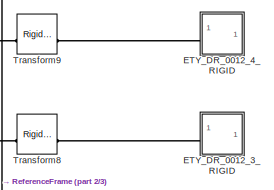
[diagram: Multibody Model/MobilePlatform_Asly_1_RIGID - part 1/3, top center region]
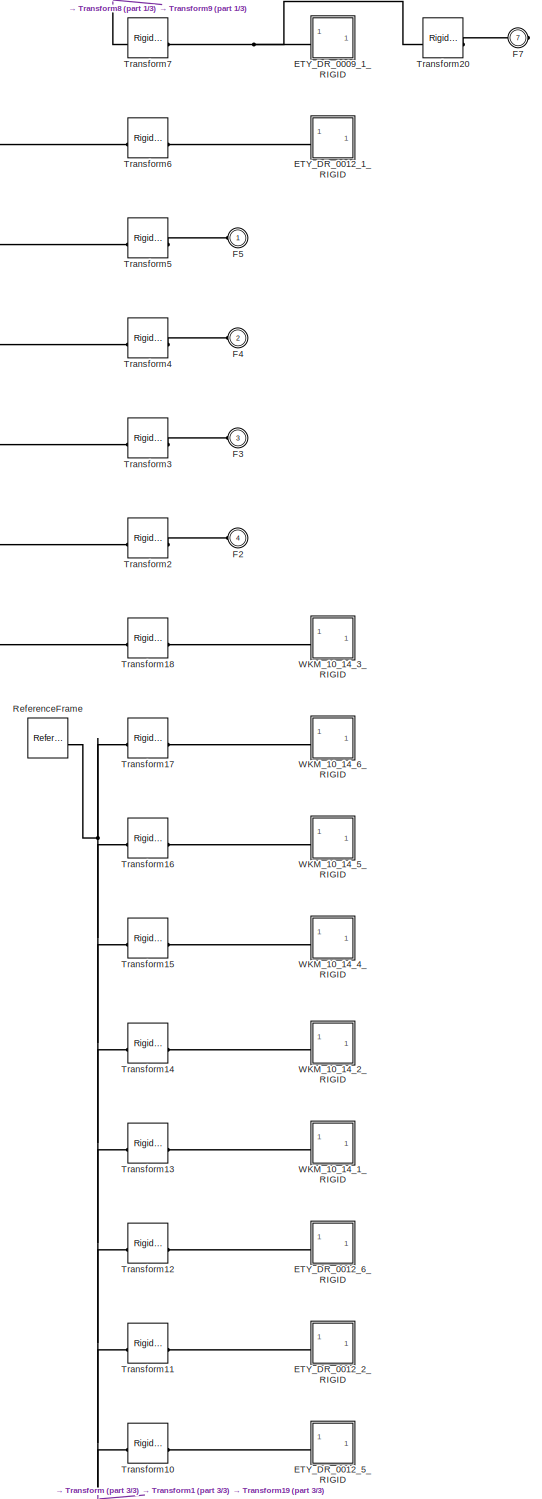
[diagram: Multibody Model/MobilePlatform_Asly_1_RIGID - part 2/3, full width, middle band]
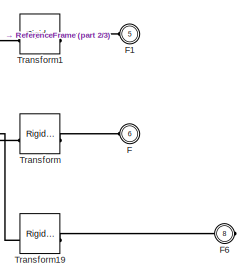
[diagram: Multibody Model/MobilePlatform_Asly_1_RIGID - part 3/3, bottom center region]
BLOCK [SubSystem] Multibody Model/MobilePlatform_Asly_1_RIGID
BLOCK [SubSystem] Multibody Model/MobilePlatform_Asly_1_RIGID/ETY_DR_0009_1_RIGID
BLOCK [PMIOPort] Multibody Model/MobilePlatform_Asly_1_RIGID/ETY_DR_0009_1_RIGID/F
  Side = Left
BLOCK [Reference] Multibody Model/MobilePlatform_Asly_1_RIGID/ETY_DR_0009_1_RIGID/ReferenceFrame  REF=sm_lib/Frames and
Transforms/Reference
Frame
  SourceBlock = sm_lib/Frames and\nTransforms/Reference\nFrame
  SourceType = Reference\nFrame
BLOCK [Reference] Multibody Model/MobilePlatform_Asly_1_RIGID/ETY_DR_0009_1_RIGID/Solid  REF=sm_lib/Body Elements/File Solid
  SourceBlock = sm_lib/Body Elements/File Solid
  SourceType = File Solid
BLOCK [SubSystem] Multibody Model/MobilePlatform_Asly_1_RIGID/ETY_DR_0012_1_RIGID
BLOCK [PMIOPort] Multibody Model/MobilePlatform_Asly_1_RIGID/ETY_DR_0012_1_RIGID/F
  Side = Left
BLOCK [Reference] Multibody Model/MobilePlatform_Asly_1_RIGID/ETY_DR_0012_1_RIGID/ReferenceFrame  REF=sm_lib/Frames and
Transforms/Reference
Frame
  SourceBlock = sm_lib/Frames and\nTransforms/Reference\nFrame
  SourceType = Reference\nFrame
BLOCK [Reference] Multibody Model/MobilePlatform_Asly_1_RIGID/ETY_DR_0012_1_RIGID/Solid  REF=sm_lib/Body Elements/File Solid
  SourceBlock = sm_lib/Body Elements/File Solid
  SourceType = File Solid
BLOCK [SubSystem] Multibody Model/MobilePlatform_Asly_1_RIGID/ETY_DR_0012_2_RIGID
BLOCK [PMIOPort] Multibody Model/MobilePlatform_Asly_1_RIGID/ETY_DR_0012_2_RIGID/F
  Side = Left
BLOCK [Reference] Multibody Model/MobilePlatform_Asly_1_RIGID/ETY_DR_0012_2_RIGID/ReferenceFrame  REF=sm_lib/Frames and
Transforms/Reference
Frame
  SourceBlock = sm_lib/Frames and\nTransforms/Reference\nFrame
  SourceType = Reference\nFrame
BLOCK [Reference] Multibody Model/MobilePlatform_Asly_1_RIGID/ETY_DR_0012_2_RIGID/Solid  REF=sm_lib/Body Elements/File Solid
  SourceBlock = sm_lib/Body Elements/File Solid
  SourceType = File Solid
BLOCK [SubSystem] Multibody Model/MobilePlatform_Asly_1_RIGID/ETY_DR_0012_3_RIGID
BLOCK [PMIOPort] Multibody Model/MobilePlatform_Asly_1_RIGID/ETY_DR_0012_3_RIGID/F
  Side = Left
BLOCK [Reference] Multibody Model/MobilePlatform_Asly_1_RIGID/ETY_DR_0012_3_RIGID/ReferenceFrame  REF=sm_lib/Frames and
Transforms/Reference
Frame
  SourceBlock = sm_lib/Frames and\nTransforms/Reference\nFrame
  SourceType = Reference\nFrame
BLOCK [Reference] Multibody Model/MobilePlatform_Asly_1_RIGID/ETY_DR_0012_3_RIGID/Solid  REF=sm_lib/Body Elements/File Solid
  SourceBlock = sm_lib/Body Elements/File Solid
  SourceType = File Solid
BLOCK [SubSystem] Multibody Model/MobilePlatform_Asly_1_RIGID/ETY_DR_0012_4_RIGID
BLOCK [PMIOPort] Multibody Model/MobilePlatform_Asly_1_RIGID/ETY_DR_0012_4_RIGID/F
  Side = Left
BLOCK [Reference] Multibody Model/MobilePlatform_Asly_1_RIGID/ETY_DR_0012_4_RIGID/ReferenceFrame  REF=sm_lib/Frames and
Transforms/Reference
Frame
  SourceBlock = sm_lib/Frames and\nTransforms/Reference\nFrame
  SourceType = Reference\nFrame
BLOCK [Reference] Multibody Model/MobilePlatform_Asly_1_RIGID/ETY_DR_0012_4_RIGID/Solid  REF=sm_lib/Body Elements/File Solid
  SourceBlock = sm_lib/Body Elements/File Solid
  SourceType = File Solid
BLOCK [SubSystem] Multibody Model/MobilePlatform_Asly_1_RIGID/ETY_DR_0012_5_RIGID
BLOCK [PMIOPort] Multibody Model/MobilePlatform_Asly_1_RIGID/ETY_DR_0012_5_RIGID/F
  Side = Left
BLOCK [Reference] Multibody Model/MobilePlatform_Asly_1_RIGID/ETY_DR_0012_5_RIGID/ReferenceFrame  REF=sm_lib/Frames and
Transforms/Reference
Frame
  SourceBlock = sm_lib/Frames and\nTransforms/Reference\nFrame
  SourceType = Reference\nFrame
BLOCK [Reference] Multibody Model/MobilePlatform_Asly_1_RIGID/ETY_DR_0012_5_RIGID/Solid  REF=sm_lib/Body Elements/File Solid
  SourceBlock = sm_lib/Body Elements/File Solid
  SourceType = File Solid
BLOCK [SubSystem] Multibody Model/MobilePlatform_Asly_1_RIGID/ETY_DR_0012_6_RIGID
BLOCK [PMIOPort] Multibody Model/MobilePlatform_Asly_1_RIGID/ETY_DR_0012_6_RIGID/F
  Side = Left
BLOCK [Reference] Multibody Model/MobilePlatform_Asly_1_RIGID/ETY_DR_0012_6_RIGID/ReferenceFrame  REF=sm_lib/Frames and
Transforms/Reference
Frame
  SourceBlock = sm_lib/Frames and\nTransforms/Reference\nFrame
  SourceType = Reference\nFrame
BLOCK [Reference] Multibody Model/MobilePlatform_Asly_1_RIGID/ETY_DR_0012_6_RIGID/Solid  REF=sm_lib/Body Elements/File Solid
  SourceBlock = sm_lib/Body Elements/File Solid
  SourceType = File Solid
BLOCK [PMIOPort] Multibody Model/MobilePlatform_Asly_1_RIGID/F
  Port = 6
  Side = Left
BLOCK [PMIOPort] Multibody Model/MobilePlatform_Asly_1_RIGID/F1
  Port = 5
  Side = Left
BLOCK [PMIOPort] Multibody Model/MobilePlatform_Asly_1_RIGID/F2
  Port = 4
  Side = Left
BLOCK [PMIOPort] Multibody Model/MobilePlatform_Asly_1_RIGID/F3
  Port = 3
  Side = Left
BLOCK [PMIOPort] Multibody Model/MobilePlatform_Asly_1_RIGID/F4
  Port = 2
  Side = Left
BLOCK [PMIOPort] Multibody Model/MobilePlatform_Asly_1_RIGID/F5
  Side = Left
BLOCK [PMIOPort] Multibody Model/MobilePlatform_Asly_1_RIGID/F6
  Port = 8
  Side = Right
BLOCK [PMIOPort] Multibody Model/MobilePlatform_Asly_1_RIGID/F7
  Port = 7
  Side = Right
BLOCK [Reference] Multibody Model/MobilePlatform_Asly_1_RIGID/ReferenceFrame  REF=sm_lib/Frames and
Transforms/Reference
Frame
  SourceBlock = sm_lib/Frames and\nTransforms/Reference\nFrame
  SourceType = Reference\nFrame
BLOCK [Reference] Multibody Model/MobilePlatform_Asly_1_RIGID/Transform  REF=sm_lib/Frames and
Transforms/Rigid
Transform
  SourceBlock = sm_lib/Frames and\nTransforms/Rigid\nTransform
  SourceType = Rigid\nTransform
BLOCK [Reference] Multibody Model/MobilePlatform_Asly_1_RIGID/Transform1  REF=sm_lib/Frames and
Transforms/Rigid
Transform
  SourceBlock = sm_lib/Frames and\nTransforms/Rigid\nTransform
  SourceType = Rigid\nTransform
BLOCK [Reference] Multibody Model/MobilePlatform_Asly_1_RIGID/Transform10  REF=sm_lib/Frames and
Transforms/Rigid
Transform
  SourceBlock = sm_lib/Frames and\nTransforms/Rigid\nTransform
  SourceType = Rigid\nTransform
BLOCK [Reference] Multibody Model/MobilePlatform_Asly_1_RIGID/Transform11  REF=sm_lib/Frames and
Transforms/Rigid
Transform
  SourceBlock = sm_lib/Frames and\nTransforms/Rigid\nTransform
  SourceType = Rigid\nTransform
BLOCK [Reference] Multibody Model/MobilePlatform_Asly_1_RIGID/Transform12  REF=sm_lib/Frames and
Transforms/Rigid
Transform
  SourceBlock = sm_lib/Frames and\nTransforms/Rigid\nTransform
  SourceType = Rigid\nTransform
BLOCK [Reference] Multibody Model/MobilePlatform_Asly_1_RIGID/Transform13  REF=sm_lib/Frames and
Transforms/Rigid
Transform
  SourceBlock = sm_lib/Frames and\nTransforms/Rigid\nTransform
  SourceType = Rigid\nTransform
BLOCK [Reference] Multibody Model/MobilePlatform_Asly_1_RIGID/Transform14  REF=sm_lib/Frames and
Transforms/Rigid
Transform
  SourceBlock = sm_lib/Frames and\nTransforms/Rigid\nTransform
  SourceType = Rigid\nTransform
BLOCK [Reference] Multibody Model/MobilePlatform_Asly_1_RIGID/Transform15  REF=sm_lib/Frames and
Transforms/Rigid
Transform
  SourceBlock = sm_lib/Frames and\nTransforms/Rigid\nTransform
  SourceType = Rigid\nTransform
BLOCK [Reference] Multibody Model/MobilePlatform_Asly_1_RIGID/Transform16  REF=sm_lib/Frames and
Transforms/Rigid
Transform
  SourceBlock = sm_lib/Frames and\nTransforms/Rigid\nTransform
  SourceType = Rigid\nTransform
BLOCK [Reference] Multibody Model/MobilePlatform_Asly_1_RIGID/Transform17  REF=sm_lib/Frames and
Transforms/Rigid
Transform
  SourceBlock = sm_lib/Frames and\nTransforms/Rigid\nTransform
  SourceType = Rigid\nTransform
BLOCK [Reference] Multibody Model/MobilePlatform_Asly_1_RIGID/Transform18  REF=sm_lib/Frames and
Transforms/Rigid
Transform
  SourceBlock = sm_lib/Frames and\nTransforms/Rigid\nTransform
  SourceType = Rigid\nTransform
BLOCK [Reference] Multibody Model/MobilePlatform_Asly_1_RIGID/Transform19  REF=sm_lib/Frames and
Transforms/Rigid
Transform
  SourceBlock = sm_lib/Frames and\nTransforms/Rigid\nTransform
  SourceType = Rigid\nTransform
BLOCK [Reference] Multibody Model/MobilePlatform_Asly_1_RIGID/Transform2  REF=sm_lib/Frames and
Transforms/Rigid
Transform
  SourceBlock = sm_lib/Frames and\nTransforms/Rigid\nTransform
  SourceType = Rigid\nTransform
BLOCK [Reference] Multibody Model/MobilePlatform_Asly_1_RIGID/Transform20  REF=sm_lib/Frames and
Transforms/Rigid
Transform
  SourceBlock = sm_lib/Frames and\nTransforms/Rigid\nTransform
  SourceType = Rigid\nTransform
BLOCK [Reference] Multibody Model/MobilePlatform_Asly_1_RIGID/Transform3  REF=sm_lib/Frames and
Transforms/Rigid
Transform
  SourceBlock = sm_lib/Frames and\nTransforms/Rigid\nTransform
  SourceType = Rigid\nTransform
BLOCK [Reference] Multibody Model/MobilePlatform_Asly_1_RIGID/Transform4  REF=sm_lib/Frames and
Transforms/Rigid
Transform
  SourceBlock = sm_lib/Frames and\nTransforms/Rigid\nTransform
  SourceType = Rigid\nTransform
BLOCK [Reference] Multibody Model/MobilePlatform_Asly_1_RIGID/Transform5  REF=sm_lib/Frames and
Transforms/Rigid
Transform
  SourceBlock = sm_lib/Frames and\nTransforms/Rigid\nTransform
  SourceType = Rigid\nTransform
BLOCK [Reference] Multibody Model/MobilePlatform_Asly_1_RIGID/Transform6  REF=sm_lib/Frames and
Transforms/Rigid
Transform
  SourceBlock = sm_lib/Frames and\nTransforms/Rigid\nTransform
  SourceType = Rigid\nTransform
BLOCK [Reference] Multibody Model/MobilePlatform_Asly_1_RIGID/Transform7  REF=sm_lib/Frames and
Transforms/Rigid
Transform
  SourceBlock = sm_lib/Frames and\nTransforms/Rigid\nTransform
  SourceType = Rigid\nTransform
BLOCK [Reference] Multibody Model/MobilePlatform_Asly_1_RIGID/Transform8  REF=sm_lib/Frames and
Transforms/Rigid
Transform
  SourceBlock = sm_lib/Frames and\nTransforms/Rigid\nTransform
  SourceType = Rigid\nTransform
BLOCK [Reference] Multibody Model/MobilePlatform_Asly_1_RIGID/Transform9  REF=sm_lib/Frames and
Transforms/Rigid
Transform
  SourceBlock = sm_lib/Frames and\nTransforms/Rigid\nTransform
  SourceType = Rigid\nTransform
BLOCK [SubSystem] Multibody Model/MobilePlatform_Asly_1_RIGID/WKM_10_14_1_RIGID
BLOCK [PMIOPort] Multibody Model/MobilePlatform_Asly_1_RIGID/WKM_10_14_1_RIGID/F
  Side = Left
BLOCK [Reference] Multibody Model/MobilePlatform_Asly_1_RIGID/WKM_10_14_1_RIGID/ReferenceFrame  REF=sm_lib/Frames and
Transforms/Reference
Frame
  SourceBlock = sm_lib/Frames and\nTransforms/Reference\nFrame
  SourceType = Reference\nFrame
BLOCK [Reference] Multibody Model/MobilePlatform_Asly_1_RIGID/WKM_10_14_1_RIGID/Solid  REF=sm_lib/Body Elements/File Solid
  SourceBlock = sm_lib/Body Elements/File Solid
  SourceType = File Solid
BLOCK [SubSystem] Multibody Model/MobilePlatform_Asly_1_RIGID/WKM_10_14_2_RIGID
BLOCK [PMIOPort] Multibody Model/MobilePlatform_Asly_1_RIGID/WKM_10_14_2_RIGID/F
  Side = Left
BLOCK [Reference] Multibody Model/MobilePlatform_Asly_1_RIGID/WKM_10_14_2_RIGID/ReferenceFrame  REF=sm_lib/Frames and
Transforms/Reference
Frame
  SourceBlock = sm_lib/Frames and\nTransforms/Reference\nFrame
  SourceType = Reference\nFrame
BLOCK [Reference] Multibody Model/MobilePlatform_Asly_1_RIGID/WKM_10_14_2_RIGID/Solid  REF=sm_lib/Body Elements/File Solid
  SourceBlock = sm_lib/Body Elements/File Solid
  SourceType = File Solid
BLOCK [SubSystem] Multibody Model/MobilePlatform_Asly_1_RIGID/WKM_10_14_3_RIGID
BLOCK [PMIOPort] Multibody Model/MobilePlatform_Asly_1_RIGID/WKM_10_14_3_RIGID/F
  Side = Left
BLOCK [Reference] Multibody Model/MobilePlatform_Asly_1_RIGID/WKM_10_14_3_RIGID/ReferenceFrame  REF=sm_lib/Frames and
Transforms/Reference
Frame
  SourceBlock = sm_lib/Frames and\nTransforms/Reference\nFrame
  SourceType = Reference\nFrame
BLOCK [Reference] Multibody Model/MobilePlatform_Asly_1_RIGID/WKM_10_14_3_RIGID/Solid  REF=sm_lib/Body Elements/File Solid
  SourceBlock = sm_lib/Body Elements/File Solid
  SourceType = File Solid
BLOCK [SubSystem] Multibody Model/MobilePlatform_Asly_1_RIGID/WKM_10_14_4_RIGID
BLOCK [PMIOPort] Multibody Model/MobilePlatform_Asly_1_RIGID/WKM_10_14_4_RIGID/F
  Side = Left
BLOCK [Reference] Multibody Model/MobilePlatform_Asly_1_RIGID/WKM_10_14_4_RIGID/ReferenceFrame  REF=sm_lib/Frames and
Transforms/Reference
Frame
  SourceBlock = sm_lib/Frames and\nTransforms/Reference\nFrame
  SourceType = Reference\nFrame
BLOCK [Reference] Multibody Model/MobilePlatform_Asly_1_RIGID/WKM_10_14_4_RIGID/Solid  REF=sm_lib/Body Elements/File Solid
  SourceBlock = sm_lib/Body Elements/File Solid
  SourceType = File Solid
BLOCK [SubSystem] Multibody Model/MobilePlatform_Asly_1_RIGID/WKM_10_14_5_RIGID
BLOCK [PMIOPort] Multibody Model/MobilePlatform_Asly_1_RIGID/WKM_10_14_5_RIGID/F
  Side = Left
BLOCK [Reference] Multibody Model/MobilePlatform_Asly_1_RIGID/WKM_10_14_5_RIGID/ReferenceFrame  REF=sm_lib/Frames and
Transforms/Reference
Frame
  SourceBlock = sm_lib/Frames and\nTransforms/Reference\nFrame
  SourceType = Reference\nFrame
BLOCK [Reference] Multibody Model/MobilePlatform_Asly_1_RIGID/WKM_10_14_5_RIGID/Solid  REF=sm_lib/Body Elements/File Solid
  SourceBlock = sm_lib/Body Elements/File Solid
  SourceType = File Solid
BLOCK [SubSystem] Multibody Model/MobilePlatform_Asly_1_RIGID/WKM_10_14_6_RIGID
BLOCK [PMIOPort] Multibody Model/MobilePlatform_Asly_1_RIGID/WKM_10_14_6_RIGID/F
  Side = Left
BLOCK [Reference] Multibody Model/MobilePlatform_Asly_1_RIGID/WKM_10_14_6_RIGID/ReferenceFrame  REF=sm_lib/Frames and
Transforms/Reference
Frame
  SourceBlock = sm_lib/Frames and\nTransforms/Reference\nFrame
  SourceType = Reference\nFrame
BLOCK [Reference] Multibody Model/MobilePlatform_Asly_1_RIGID/WKM_10_14_6_RIGID/Solid  REF=sm_lib/Body Elements/File Solid
  SourceBlock = sm_lib/Body Elements/File Solid
  SourceType = File Solid
BLOCK [Mux] Multibody Model/Mux
  DisplayOption = bar
  Inputs = 3
BLOCK [Outport] Multibody Model/Out1
BLOCK [Reference] Multibody Model/PS-Simulink Converter  REF=nesl_utility/PS-Simulink
Converter
  SourceBlock = nesl_utility/PS-Simulink\nConverter
  SourceType = PS-Simulink\nConverter
BLOCK [Reference] Multibody Model/PS-Simulink Converter1  REF=nesl_utility/PS-Simulink
Converter
  SourceBlock = nesl_utility/PS-Simulink\nConverter
  SourceType = PS-Simulink\nConverter
BLOCK [Reference] Multibody Model/PS-Simulink Converter2  REF=nesl_utility/PS-Simulink
Converter
  SourceBlock = nesl_utility/PS-Simulink\nConverter
  SourceType = PS-Simulink\nConverter
BLOCK [SubSystem] Multibody Model/PrismaticJoint_Asly_4_RIGID
BLOCK [SubSystem] Multibody Model/PrismaticJoint_Asly_4_RIGID/ETY_DR_0010_1_RIGID
BLOCK [PMIOPort] Multibody Model/PrismaticJoint_Asly_4_RIGID/ETY_DR_0010_1_RIGID/F
  Side = Left
BLOCK [Reference] Multibody Model/PrismaticJoint_Asly_4_RIGID/ETY_DR_0010_1_RIGID/ReferenceFrame  REF=sm_lib/Frames and
Transforms/Reference
Frame
  SourceBlock = sm_lib/Frames and\nTransforms/Reference\nFrame
  SourceType = Reference\nFrame
BLOCK [Reference] Multibody Model/PrismaticJoint_Asly_4_RIGID/ETY_DR_0010_1_RIGID/Solid  REF=sm_lib/Body Elements/File Solid
  SourceBlock = sm_lib/Body Elements/File Solid
  SourceType = File Solid
BLOCK [SubSystem] Multibody Model/PrismaticJoint_Asly_4_RIGID/ETY_DR_0012_1_RIGID
BLOCK [PMIOPort] Multibody Model/PrismaticJoint_Asly_4_RIGID/ETY_DR_0012_1_RIGID/F
  Side = Left
BLOCK [Reference] Multibody Model/PrismaticJoint_Asly_4_RIGID/ETY_DR_0012_1_RIGID/ReferenceFrame  REF=sm_lib/Frames and
Transforms/Reference
Frame
  SourceBlock = sm_lib/Frames and\nTransforms/Reference\nFrame
  SourceType = Reference\nFrame
BLOCK [Reference] Multibody Model/PrismaticJoint_Asly_4_RIGID/ETY_DR_0012_1_RIGID/Solid  REF=sm_lib/Body Elements/File Solid
  SourceBlock = sm_lib/Body Elements/File Solid
  SourceType = File Solid
BLOCK [SubSystem] Multibody Model/PrismaticJoint_Asly_4_RIGID/ETY_DR_0012_2_RIGID
BLOCK [PMIOPort] Multibody Model/PrismaticJoint_Asly_4_RIGID/ETY_DR_0012_2_RIGID/F
  Side = Left
BLOCK [Reference] Multibody Model/PrismaticJoint_Asly_4_RIGID/ETY_DR_0012_2_RIGID/ReferenceFrame  REF=sm_lib/Frames and
Transforms/Reference
Frame
  SourceBlock = sm_lib/Frames and\nTransforms/Reference\nFrame
  SourceType = Reference\nFrame
BLOCK [Reference] Multibody Model/PrismaticJoint_Asly_4_RIGID/ETY_DR_0012_2_RIGID/Solid  REF=sm_lib/Body Elements/File Solid
  SourceBlock = sm_lib/Body Elements/File Solid
  SourceType = File Solid
BLOCK [PMIOPort] Multibody Model/PrismaticJoint_Asly_4_RIGID/F
  Port = 3
  Side = Right
BLOCK [PMIOPort] Multibody Model/PrismaticJoint_Asly_4_RIGID/F1
  Port = 2
  Side = Right
BLOCK [PMIOPort] Multibody Model/PrismaticJoint_Asly_4_RIGID/F2
  Side = Left
BLOCK [Reference] Multibody Model/PrismaticJoint_Asly_4_RIGID/ReferenceFrame  REF=sm_lib/Frames and
Transforms/Reference
Frame
  SourceBlock = sm_lib/Frames and\nTransforms/Reference\nFrame
  SourceType = Reference\nFrame
BLOCK [Reference] Multibody Model/PrismaticJoint_Asly_4_RIGID/Transform  REF=sm_lib/Frames and
Transforms/Rigid
Transform
  SourceBlock = sm_lib/Frames and\nTransforms/Rigid\nTransform
  SourceType = Rigid\nTransform
BLOCK [Reference] Multibody Model/PrismaticJoint_Asly_4_RIGID/Transform1  REF=sm_lib/Frames and
Transforms/Rigid
Transform
  SourceBlock = sm_lib/Frames and\nTransforms/Rigid\nTransform
  SourceType = Rigid\nTransform
BLOCK [Reference] Multibody Model/PrismaticJoint_Asly_4_RIGID/Transform2  REF=sm_lib/Frames and
Transforms/Rigid
Transform
  SourceBlock = sm_lib/Frames and\nTransforms/Rigid\nTransform
  SourceType = Rigid\nTransform
BLOCK [Reference] Multibody Model/PrismaticJoint_Asly_4_RIGID/Transform3  REF=sm_lib/Frames and
Transforms/Rigid
Transform
  SourceBlock = sm_lib/Frames and\nTransforms/Rigid\nTransform
  SourceType = Rigid\nTransform
BLOCK [Reference] Multibody Model/PrismaticJoint_Asly_4_RIGID/Transform4  REF=sm_lib/Frames and
Transforms/Rigid
Transform
  SourceBlock = sm_lib/Frames and\nTransforms/Rigid\nTransform
  SourceType = Rigid\nTransform
BLOCK [Reference] Multibody Model/PrismaticJoint_Asly_4_RIGID/Transform5  REF=sm_lib/Frames and
Transforms/Rigid
Transform
  SourceBlock = sm_lib/Frames and\nTransforms/Rigid\nTransform
  SourceType = Rigid\nTransform
BLOCK [Reference] Multibody Model/PrismaticJoint_Asly_4_RIGID/Transform6  REF=sm_lib/Frames and
Transforms/Rigid
Transform
  SourceBlock = sm_lib/Frames and\nTransforms/Rigid\nTransform
  SourceType = Rigid\nTransform
BLOCK [Reference] Multibody Model/PrismaticJoint_Asly_4_RIGID/Transform7  REF=sm_lib/Frames and
Transforms/Rigid
Transform
  SourceBlock = sm_lib/Frames and\nTransforms/Rigid\nTransform
  SourceType = Rigid\nTransform
BLOCK [Reference] Multibody Model/PrismaticJoint_Asly_4_RIGID/Transform8  REF=sm_lib/Frames and
Transforms/Rigid
Transform
  SourceBlock = sm_lib/Frames and\nTransforms/Rigid\nTransform
  SourceType = Rigid\nTransform
BLOCK [SubSystem] Multibody Model/PrismaticJoint_Asly_4_RIGID/WKM_10_14_1_RIGID
BLOCK [PMIOPort] Multibody Model/PrismaticJoint_Asly_4_RIGID/WKM_10_14_1_RIGID/F
  Side = Left
BLOCK [Reference] Multibody Model/PrismaticJoint_Asly_4_RIGID/WKM_10_14_1_RIGID/ReferenceFrame  REF=sm_lib/Frames and
Transforms/Reference
Frame
  SourceBlock = sm_lib/Frames and\nTransforms/Reference\nFrame
  SourceType = Reference\nFrame
BLOCK [Reference] Multibody Model/PrismaticJoint_Asly_4_RIGID/WKM_10_14_1_RIGID/Solid  REF=sm_lib/Body Elements/File Solid
  SourceBlock = sm_lib/Body Elements/File Solid
  SourceType = File Solid
BLOCK [SubSystem] Multibody Model/PrismaticJoint_Asly_4_RIGID/WKM_10_14_2_RIGID
BLOCK [PMIOPort] Multibody Model/PrismaticJoint_Asly_4_RIGID/WKM_10_14_2_RIGID/F
  Side = Left
BLOCK [Reference] Multibody Model/PrismaticJoint_Asly_4_RIGID/WKM_10_14_2_RIGID/ReferenceFrame  REF=sm_lib/Frames and
Transforms/Reference
Frame
  SourceBlock = sm_lib/Frames and\nTransforms/Reference\nFrame
  SourceType = Reference\nFrame
BLOCK [Reference] Multibody Model/PrismaticJoint_Asly_4_RIGID/WKM_10_14_2_RIGID/Solid  REF=sm_lib/Body Elements/File Solid
  SourceBlock = sm_lib/Body Elements/File Solid
  SourceType = File Solid
BLOCK [SubSystem] Multibody Model/PrismaticJoint_Asly_4_RIGID/ZS_104001_WJ200UMA_1_RIGID
BLOCK [PMIOPort] Multibody Model/PrismaticJoint_Asly_4_RIGID/ZS_104001_WJ200UMA_1_RIGID/F
  Side = Right
BLOCK [Reference] Multibody Model/PrismaticJoint_Asly_4_RIGID/ZS_104001_WJ200UMA_1_RIGID/ReferenceFrame  REF=sm_lib/Frames and
Transforms/Reference
Frame
  SourceBlock = sm_lib/Frames and\nTransforms/Reference\nFrame
  SourceType = Reference\nFrame
BLOCK [Reference] Multibody Model/PrismaticJoint_Asly_4_RIGID/ZS_104001_WJ200UMA_1_RIGID/Transform  REF=sm_lib/Frames and
Transforms/Rigid
Transform
  SourceBlock = sm_lib/Frames and\nTransforms/Rigid\nTransform
  SourceType = Rigid\nTransform
BLOCK [Reference] Multibody Model/PrismaticJoint_Asly_4_RIGID/ZS_104001_WJ200UMA_1_RIGID/Transform1  REF=sm_lib/Frames and
Transforms/Rigid
Transform
  SourceBlock = sm_lib/Frames and\nTransforms/Rigid\nTransform
  SourceType = Rigid\nTransform
BLOCK [SubSystem] Multibody Model/PrismaticJoint_Asly_4_RIGID/ZS_104001_WJ200UMA_1_RIGID/WJ200UMA_01_10_AL_1_RIGID
BLOCK [PMIOPort] Multibody Model/PrismaticJoint_Asly_4_RIGID/ZS_104001_WJ200UMA_1_RIGID/WJ200UMA_01_10_AL_1_RIGID/F
  Side = Left
BLOCK [SubSystem] Multibody Model/PrismaticJoint_Asly_4_RIGID/ZS_104001_WJ200UMA_1_RIGID/WJ200UMA_01_10_AL_1_RIGID/J200UMA_01_10_1_RIGID
BLOCK [PMIOPort] Multibody Model/PrismaticJoint_Asly_4_RIGID/ZS_104001_WJ200UMA_1_RIGID/WJ200UMA_01_10_AL_1_RIGID/J200UMA_01_10_1_RIGID/F
  Side = Left
BLOCK [Reference] Multibody Model/PrismaticJoint_Asly_4_RIGID/ZS_104001_WJ200UMA_1_RIGID/WJ200UMA_01_10_AL_1_RIGID/J200UMA_01_10_1_RIGID/ReferenceFrame  REF=sm_lib/Frames and
Transforms/Reference
Frame
  SourceBlock = sm_lib/Frames and\nTransforms/Reference\nFrame
  SourceType = Reference\nFrame
BLOCK [Reference] Multibody Model/PrismaticJoint_Asly_4_RIGID/ZS_104001_WJ200UMA_1_RIGID/WJ200UMA_01_10_AL_1_RIGID/J200UMA_01_10_1_RIGID/Solid  REF=sm_lib/Body Elements/File Solid
  SourceBlock = sm_lib/Body Elements/File Solid
  SourceType = File Solid
BLOCK [Reference] Multibody Model/PrismaticJoint_Asly_4_RIGID/ZS_104001_WJ200UMA_1_RIGID/WJ200UMA_01_10_AL_1_RIGID/ReferenceFrame  REF=sm_lib/Frames and
Transforms/Reference
Frame
  SourceBlock = sm_lib/Frames and\nTransforms/Reference\nFrame
  SourceType = Reference\nFrame
BLOCK [Reference] Multibody Model/PrismaticJoint_Asly_4_RIGID/ZS_104001_WJ200UMA_1_RIGID/WJ200UMA_01_10_AL_1_RIGID/Transform  REF=sm_lib/Frames and
Transforms/Rigid
Transform
  SourceBlock = sm_lib/Frames and\nTransforms/Rigid\nTransform
  SourceType = Rigid\nTransform
BLOCK [Reference] Multibody Model/PrismaticJoint_Asly_4_RIGID/ZS_104001_WJ200UMA_1_RIGID/WJ200UMA_01_10_AL_1_RIGID/Transform1  REF=sm_lib/Frames and
Transforms/Rigid
Transform
  SourceBlock = sm_lib/Frames and\nTransforms/Rigid\nTransform
  SourceType = Rigid\nTransform
BLOCK [Reference] Multibody Model/PrismaticJoint_Asly_4_RIGID/ZS_104001_WJ200UMA_1_RIGID/WJ200UMA_01_10_AL_1_RIGID/Transform2  REF=sm_lib/Frames and
Transforms/Rigid
Transform
  SourceBlock = sm_lib/Frames and\nTransforms/Rigid\nTransform
  SourceType = Rigid\nTransform
BLOCK [Reference] Multibody Model/PrismaticJoint_Asly_4_RIGID/ZS_104001_WJ200UMA_1_RIGID/WJ200UMA_01_10_AL_1_RIGID/Transform3  REF=sm_lib/Frames and
Transforms/Rigid
Transform
  SourceBlock = sm_lib/Frames and\nTransforms/Rigid\nTransform
  SourceType = Rigid\nTransform
BLOCK [SubSystem] Multibody Model/PrismaticJoint_Asly_4_RIGID/ZS_104001_WJ200UMA_1_RIGID/WJ200UMA_01_10_AL_1_RIGID/WMA_01_10_AL_1_RIGID
BLOCK [PMIOPort] Multibody Model/PrismaticJoint_Asly_4_RIGID/ZS_104001_WJ200UMA_1_RIGID/WJ200UMA_01_10_AL_1_RIGID/WMA_01_10_AL_1_RIGID/F
  Side = Left
BLOCK [Reference] Multibody Model/PrismaticJoint_Asly_4_RIGID/ZS_104001_WJ200UMA_1_RIGID/WJ200UMA_01_10_AL_1_RIGID/WMA_01_10_AL_1_RIGID/ReferenceFrame  REF=sm_lib/Frames and
Transforms/Reference
Frame
  SourceBlock = sm_lib/Frames and\nTransforms/Reference\nFrame
  SourceType = Reference\nFrame
BLOCK [Reference] Multibody Model/PrismaticJoint_Asly_4_RIGID/ZS_104001_WJ200UMA_1_RIGID/WJ200UMA_01_10_AL_1_RIGID/WMA_01_10_AL_1_RIGID/Solid  REF=sm_lib/Body Elements/File Solid
  SourceBlock = sm_lib/Body Elements/File Solid
  SourceType = File Solid
BLOCK [SubSystem] Multibody Model/PrismaticJoint_Asly_4_RIGID/ZS_104001_WJ200UMA_1_RIGID/WJ200UMA_01_10_AL_1_RIGID/WRZ_011007_1_RIGID
BLOCK [PMIOPort] Multibody Model/PrismaticJoint_Asly_4_RIGID/ZS_104001_WJ200UMA_1_RIGID/WJ200UMA_01_10_AL_1_RIGID/WRZ_011007_1_RIGID/F
  Side = Left
BLOCK [Reference] Multibody Model/PrismaticJoint_Asly_4_RIGID/ZS_104001_WJ200UMA_1_RIGID/WJ200UMA_01_10_AL_1_RIGID/WRZ_011007_1_RIGID/ReferenceFrame  REF=sm_lib/Frames and
Transforms/Reference
Frame
  SourceBlock = sm_lib/Frames and\nTransforms/Reference\nFrame
  SourceType = Reference\nFrame
BLOCK [Reference] Multibody Model/PrismaticJoint_Asly_4_RIGID/ZS_104001_WJ200UMA_1_RIGID/WJ200UMA_01_10_AL_1_RIGID/WRZ_011007_1_RIGID/Solid  REF=sm_lib/Body Elements/File Solid
  SourceBlock = sm_lib/Body Elements/File Solid
  SourceType = File Solid
BLOCK [SubSystem] Multibody Model/PrismaticJoint_Asly_4_RIGID/ZS_104001_WJ200UMA_1_RIGID/WJ200UMA_01_10_AL_2_RIGID
BLOCK [PMIOPort] Multibody Model/PrismaticJoint_Asly_4_RIGID/ZS_104001_WJ200UMA_1_RIGID/WJ200UMA_01_10_AL_2_RIGID/F
  Side = Left
BLOCK [SubSystem] Multibody Model/PrismaticJoint_Asly_4_RIGID/ZS_104001_WJ200UMA_1_RIGID/WJ200UMA_01_10_AL_2_RIGID/J200UMA_01_10_1_RIGID
BLOCK [PMIOPort] Multibody Model/PrismaticJoint_Asly_4_RIGID/ZS_104001_WJ200UMA_1_RIGID/WJ200UMA_01_10_AL_2_RIGID/J200UMA_01_10_1_RIGID/F
  Side = Left
BLOCK [Reference] Multibody Model/PrismaticJoint_Asly_4_RIGID/ZS_104001_WJ200UMA_1_RIGID/WJ200UMA_01_10_AL_2_RIGID/J200UMA_01_10_1_RIGID/ReferenceFrame  REF=sm_lib/Frames and
Transforms/Reference
Frame
  SourceBlock = sm_lib/Frames and\nTransforms/Reference\nFrame
  SourceType = Reference\nFrame
BLOCK [Reference] Multibody Model/PrismaticJoint_Asly_4_RIGID/ZS_104001_WJ200UMA_1_RIGID/WJ200UMA_01_10_AL_2_RIGID/J200UMA_01_10_1_RIGID/Solid  REF=sm_lib/Body Elements/File Solid
  SourceBlock = sm_lib/Body Elements/File Solid
  SourceType = File Solid
BLOCK [Reference] Multibody Model/PrismaticJoint_Asly_4_RIGID/ZS_104001_WJ200UMA_1_RIGID/WJ200UMA_01_10_AL_2_RIGID/ReferenceFrame  REF=sm_lib/Frames and
Transforms/Reference
Frame
  SourceBlock = sm_lib/Frames and\nTransforms/Reference\nFrame
  SourceType = Reference\nFrame
BLOCK [Reference] Multibody Model/PrismaticJoint_Asly_4_RIGID/ZS_104001_WJ200UMA_1_RIGID/WJ200UMA_01_10_AL_2_RIGID/Transform  REF=sm_lib/Frames and
Transforms/Rigid
Transform
  SourceBlock = sm_lib/Frames and\nTransforms/Rigid\nTransform
  SourceType = Rigid\nTransform
BLOCK [Reference] Multibody Model/PrismaticJoint_Asly_4_RIGID/ZS_104001_WJ200UMA_1_RIGID/WJ200UMA_01_10_AL_2_RIGID/Transform1  REF=sm_lib/Frames and
Transforms/Rigid
Transform
  SourceBlock = sm_lib/Frames and\nTransforms/Rigid\nTransform
  SourceType = Rigid\nTransform
BLOCK [Reference] Multibody Model/PrismaticJoint_Asly_4_RIGID/ZS_104001_WJ200UMA_1_RIGID/WJ200UMA_01_10_AL_2_RIGID/Transform2  REF=sm_lib/Frames and
Transforms/Rigid
Transform
  SourceBlock = sm_lib/Frames and\nTransforms/Rigid\nTransform
  SourceType = Rigid\nTransform
BLOCK [Reference] Multibody Model/PrismaticJoint_Asly_4_RIGID/ZS_104001_WJ200UMA_1_RIGID/WJ200UMA_01_10_AL_2_RIGID/Transform3  REF=sm_lib/Frames and
Transforms/Rigid
Transform
  SourceBlock = sm_lib/Frames and\nTransforms/Rigid\nTransform
  SourceType = Rigid\nTransform
BLOCK [SubSystem] Multibody Model/PrismaticJoint_Asly_4_RIGID/ZS_104001_WJ200UMA_1_RIGID/WJ200UMA_01_10_AL_2_RIGID/WMA_01_10_AL_1_RIGID
BLOCK [PMIOPort] Multibody Model/PrismaticJoint_Asly_4_RIGID/ZS_104001_WJ200UMA_1_RIGID/WJ200UMA_01_10_AL_2_RIGID/WMA_01_10_AL_1_RIGID/F
  Side = Left
BLOCK [Reference] Multibody Model/PrismaticJoint_Asly_4_RIGID/ZS_104001_WJ200UMA_1_RIGID/WJ200UMA_01_10_AL_2_RIGID/WMA_01_10_AL_1_RIGID/ReferenceFrame  REF=sm_lib/Frames and
Transforms/Reference
Frame
  SourceBlock = sm_lib/Frames and\nTransforms/Reference\nFrame
  SourceType = Reference\nFrame
BLOCK [Reference] Multibody Model/PrismaticJoint_Asly_4_RIGID/ZS_104001_WJ200UMA_1_RIGID/WJ200UMA_01_10_AL_2_RIGID/WMA_01_10_AL_1_RIGID/Solid  REF=sm_lib/Body Elements/File Solid
  SourceBlock = sm_lib/Body Elements/File Solid
  SourceType = File Solid
BLOCK [SubSystem] Multibody Model/PrismaticJoint_Asly_4_RIGID/ZS_104001_WJ200UMA_1_RIGID/WJ200UMA_01_10_AL_2_RIGID/WRZ_011007_1_RIGID
BLOCK [PMIOPort] Multibody Model/PrismaticJoint_Asly_4_RIGID/ZS_104001_WJ200UMA_1_RIGID/WJ200UMA_01_10_AL_2_RIGID/WRZ_011007_1_RIGID/F
  Side = Left
BLOCK [Reference] Multibody Model/PrismaticJoint_Asly_4_RIGID/ZS_104001_WJ200UMA_1_RIGID/WJ200UMA_01_10_AL_2_RIGID/WRZ_011007_1_RIGID/ReferenceFrame  REF=sm_lib/Frames and
Transforms/Reference
Frame
  SourceBlock = sm_lib/Frames and\nTransforms/Reference\nFrame
  SourceType = Reference\nFrame
BLOCK [Reference] Multibody Model/PrismaticJoint_Asly_4_RIGID/ZS_104001_WJ200UMA_1_RIGID/WJ200UMA_01_10_AL_2_RIGID/WRZ_011007_1_RIGID/Solid  REF=sm_lib/Body Elements/File Solid
  SourceBlock = sm_lib/Body Elements/File Solid
  SourceType = File Solid
BLOCK [SubSystem] Multibody Model/PrismaticJoint_Asly_4_RIGID/ZS_104001_WJ200UMA_1_RIGID/WJ200UMA_01_10_AL_3_RIGID
BLOCK [PMIOPort] Multibody Model/PrismaticJoint_Asly_4_RIGID/ZS_104001_WJ200UMA_1_RIGID/WJ200UMA_01_10_AL_3_RIGID/F
  Side = Left
BLOCK [SubSystem] Multibody Model/PrismaticJoint_Asly_4_RIGID/ZS_104001_WJ200UMA_1_RIGID/WJ200UMA_01_10_AL_3_RIGID/J200UMA_01_10_1_RIGID
BLOCK [PMIOPort] Multibody Model/PrismaticJoint_Asly_4_RIGID/ZS_104001_WJ200UMA_1_RIGID/WJ200UMA_01_10_AL_3_RIGID/J200UMA_01_10_1_RIGID/F
  Side = Left
BLOCK [Reference] Multibody Model/PrismaticJoint_Asly_4_RIGID/ZS_104001_WJ200UMA_1_RIGID/WJ200UMA_01_10_AL_3_RIGID/J200UMA_01_10_1_RIGID/ReferenceFrame  REF=sm_lib/Frames and
Transforms/Reference
Frame
  SourceBlock = sm_lib/Frames and\nTransforms/Reference\nFrame
  SourceType = Reference\nFrame
BLOCK [Reference] Multibody Model/PrismaticJoint_Asly_4_RIGID/ZS_104001_WJ200UMA_1_RIGID/WJ200UMA_01_10_AL_3_RIGID/J200UMA_01_10_1_RIGID/Solid  REF=sm_lib/Body Elements/File Solid
  SourceBlock = sm_lib/Body Elements/File Solid
  SourceType = File Solid
BLOCK [Reference] Multibody Model/PrismaticJoint_Asly_4_RIGID/ZS_104001_WJ200UMA_1_RIGID/WJ200UMA_01_10_AL_3_RIGID/ReferenceFrame  REF=sm_lib/Frames and
Transforms/Reference
Frame
  SourceBlock = sm_lib/Frames and\nTransforms/Reference\nFrame
  SourceType = Reference\nFrame
BLOCK [Reference] Multibody Model/PrismaticJoint_Asly_4_RIGID/ZS_104001_WJ200UMA_1_RIGID/WJ200UMA_01_10_AL_3_RIGID/Transform  REF=sm_lib/Frames and
Transforms/Rigid
Transform
  SourceBlock = sm_lib/Frames and\nTransforms/Rigid\nTransform
  SourceType = Rigid\nTransform
BLOCK [Reference] Multibody Model/PrismaticJoint_Asly_4_RIGID/ZS_104001_WJ200UMA_1_RIGID/WJ200UMA_01_10_AL_3_RIGID/Transform1  REF=sm_lib/Frames and
Transforms/Rigid
Transform
  SourceBlock = sm_lib/Frames and\nTransforms/Rigid\nTransform
  SourceType = Rigid\nTransform
BLOCK [Reference] Multibody Model/PrismaticJoint_Asly_4_RIGID/ZS_104001_WJ200UMA_1_RIGID/WJ200UMA_01_10_AL_3_RIGID/Transform2  REF=sm_lib/Frames and
Transforms/Rigid
Transform
  SourceBlock = sm_lib/Frames and\nTransforms/Rigid\nTransform
  SourceType = Rigid\nTransform
BLOCK [Reference] Multibody Model/PrismaticJoint_Asly_4_RIGID/ZS_104001_WJ200UMA_1_RIGID/WJ200UMA_01_10_AL_3_RIGID/Transform3  REF=sm_lib/Frames and
Transforms/Rigid
Transform
  SourceBlock = sm_lib/Frames and\nTransforms/Rigid\nTransform
  SourceType = Rigid\nTransform
BLOCK [SubSystem] Multibody Model/PrismaticJoint_Asly_4_RIGID/ZS_104001_WJ200UMA_1_RIGID/WJ200UMA_01_10_AL_3_RIGID/WMA_01_10_AL_1_RIGID
BLOCK [PMIOPort] Multibody Model/PrismaticJoint_Asly_4_RIGID/ZS_104001_WJ200UMA_1_RIGID/WJ200UMA_01_10_AL_3_RIGID/WMA_01_10_AL_1_RIGID/F
  Side = Left
BLOCK [Reference] Multibody Model/PrismaticJoint_Asly_4_RIGID/ZS_104001_WJ200UMA_1_RIGID/WJ200UMA_01_10_AL_3_RIGID/WMA_01_10_AL_1_RIGID/ReferenceFrame  REF=sm_lib/Frames and
Transforms/Reference
Frame
  SourceBlock = sm_lib/Frames and\nTransforms/Reference\nFrame
  SourceType = Reference\nFrame
BLOCK [Reference] Multibody Model/PrismaticJoint_Asly_4_RIGID/ZS_104001_WJ200UMA_1_RIGID/WJ200UMA_01_10_AL_3_RIGID/WMA_01_10_AL_1_RIGID/Solid  REF=sm_lib/Body Elements/File Solid
  SourceBlock = sm_lib/Body Elements/File Solid
  SourceType = File Solid
BLOCK [SubSystem] Multibody Model/PrismaticJoint_Asly_4_RIGID/ZS_104001_WJ200UMA_1_RIGID/WJ200UMA_01_10_AL_3_RIGID/WRZ_011007_1_RIGID
BLOCK [PMIOPort] Multibody Model/PrismaticJoint_Asly_4_RIGID/ZS_104001_WJ200UMA_1_RIGID/WJ200UMA_01_10_AL_3_RIGID/WRZ_011007_1_RIGID/F
  Side = Left
BLOCK [Reference] Multibody Model/PrismaticJoint_Asly_4_RIGID/ZS_104001_WJ200UMA_1_RIGID/WJ200UMA_01_10_AL_3_RIGID/WRZ_011007_1_RIGID/ReferenceFrame  REF=sm_lib/Frames and
Transforms/Reference
Frame
  SourceBlock = sm_lib/Frames and\nTransforms/Reference\nFrame
  SourceType = Reference\nFrame
BLOCK [Reference] Multibody Model/PrismaticJoint_Asly_4_RIGID/ZS_104001_WJ200UMA_1_RIGID/WJ200UMA_01_10_AL_3_RIGID/WRZ_011007_1_RIGID/Solid  REF=sm_lib/Body Elements/File Solid
  SourceBlock = sm_lib/Body Elements/File Solid
  SourceType = File Solid
BLOCK [SubSystem] Multibody Model/PrismaticJoint_Asly_4_RIGID/ZS_104001_WJ200UMA_1_RIGID/WJ200UMA_01_10_AL_4_RIGID
BLOCK [PMIOPort] Multibody Model/PrismaticJoint_Asly_4_RIGID/ZS_104001_WJ200UMA_1_RIGID/WJ200UMA_01_10_AL_4_RIGID/F
  Side = Left
BLOCK [SubSystem] Multibody Model/PrismaticJoint_Asly_4_RIGID/ZS_104001_WJ200UMA_1_RIGID/WJ200UMA_01_10_AL_4_RIGID/J200UMA_01_10_1_RIGID
BLOCK [PMIOPort] Multibody Model/PrismaticJoint_Asly_4_RIGID/ZS_104001_WJ200UMA_1_RIGID/WJ200UMA_01_10_AL_4_RIGID/J200UMA_01_10_1_RIGID/F
  Side = Left
BLOCK [Reference] Multibody Model/PrismaticJoint_Asly_4_RIGID/ZS_104001_WJ200UMA_1_RIGID/WJ200UMA_01_10_AL_4_RIGID/J200UMA_01_10_1_RIGID/ReferenceFrame  REF=sm_lib/Frames and
Transforms/Reference
Frame
  SourceBlock = sm_lib/Frames and\nTransforms/Reference\nFrame
  SourceType = Reference\nFrame
BLOCK [Reference] Multibody Model/PrismaticJoint_Asly_4_RIGID/ZS_104001_WJ200UMA_1_RIGID/WJ200UMA_01_10_AL_4_RIGID/J200UMA_01_10_1_RIGID/Solid  REF=sm_lib/Body Elements/File Solid
  SourceBlock = sm_lib/Body Elements/File Solid
  SourceType = File Solid
BLOCK [Reference] Multibody Model/PrismaticJoint_Asly_4_RIGID/ZS_104001_WJ200UMA_1_RIGID/WJ200UMA_01_10_AL_4_RIGID/ReferenceFrame  REF=sm_lib/Frames and
Transforms/Reference
Frame
  SourceBlock = sm_lib/Frames and\nTransforms/Reference\nFrame
  SourceType = Reference\nFrame
BLOCK [Reference] Multibody Model/PrismaticJoint_Asly_4_RIGID/ZS_104001_WJ200UMA_1_RIGID/WJ200UMA_01_10_AL_4_RIGID/Transform  REF=sm_lib/Frames and
Transforms/Rigid
Transform
  SourceBlock = sm_lib/Frames and\nTransforms/Rigid\nTransform
  SourceType = Rigid\nTransform
BLOCK [Reference] Multibody Model/PrismaticJoint_Asly_4_RIGID/ZS_104001_WJ200UMA_1_RIGID/WJ200UMA_01_10_AL_4_RIGID/Transform1  REF=sm_lib/Frames and
Transforms/Rigid
Transform
  SourceBlock = sm_lib/Frames and\nTransforms/Rigid\nTransform
  SourceType = Rigid\nTransform
BLOCK [Reference] Multibody Model/PrismaticJoint_Asly_4_RIGID/ZS_104001_WJ200UMA_1_RIGID/WJ200UMA_01_10_AL_4_RIGID/Transform2  REF=sm_lib/Frames and
Transforms/Rigid
Transform
  SourceBlock = sm_lib/Frames and\nTransforms/Rigid\nTransform
  SourceType = Rigid\nTransform
BLOCK [Reference] Multibody Model/PrismaticJoint_Asly_4_RIGID/ZS_104001_WJ200UMA_1_RIGID/WJ200UMA_01_10_AL_4_RIGID/Transform3  REF=sm_lib/Frames and
Transforms/Rigid
Transform
  SourceBlock = sm_lib/Frames and\nTransforms/Rigid\nTransform
  SourceType = Rigid\nTransform
BLOCK [SubSystem] Multibody Model/PrismaticJoint_Asly_4_RIGID/ZS_104001_WJ200UMA_1_RIGID/WJ200UMA_01_10_AL_4_RIGID/WMA_01_10_AL_1_RIGID
BLOCK [PMIOPort] Multibody Model/PrismaticJoint_Asly_4_RIGID/ZS_104001_WJ200UMA_1_RIGID/WJ200UMA_01_10_AL_4_RIGID/WMA_01_10_AL_1_RIGID/F
  Side = Left
BLOCK [Reference] Multibody Model/PrismaticJoint_Asly_4_RIGID/ZS_104001_WJ200UMA_1_RIGID/WJ200UMA_01_10_AL_4_RIGID/WMA_01_10_AL_1_RIGID/ReferenceFrame  REF=sm_lib/Frames and
Transforms/Reference
Frame
  SourceBlock = sm_lib/Frames and\nTransforms/Reference\nFrame
  SourceType = Reference\nFrame
BLOCK [Reference] Multibody Model/PrismaticJoint_Asly_4_RIGID/ZS_104001_WJ200UMA_1_RIGID/WJ200UMA_01_10_AL_4_RIGID/WMA_01_10_AL_1_RIGID/Solid  REF=sm_lib/Body Elements/File Solid
  SourceBlock = sm_lib/Body Elements/File Solid
  SourceType = File Solid
BLOCK [SubSystem] Multibody Model/PrismaticJoint_Asly_4_RIGID/ZS_104001_WJ200UMA_1_RIGID/WJ200UMA_01_10_AL_4_RIGID/WRZ_011007_1_RIGID
BLOCK [PMIOPort] Multibody Model/PrismaticJoint_Asly_4_RIGID/ZS_104001_WJ200UMA_1_RIGID/WJ200UMA_01_10_AL_4_RIGID/WRZ_011007_1_RIGID/F
  Side = Left
BLOCK [Reference] Multibody Model/PrismaticJoint_Asly_4_RIGID/ZS_104001_WJ200UMA_1_RIGID/WJ200UMA_01_10_AL_4_RIGID/WRZ_011007_1_RIGID/ReferenceFrame  REF=sm_lib/Frames and
Transforms/Reference
Frame
  SourceBlock = sm_lib/Frames and\nTransforms/Reference\nFrame
  SourceType = Reference\nFrame
BLOCK [Reference] Multibody Model/PrismaticJoint_Asly_4_RIGID/ZS_104001_WJ200UMA_1_RIGID/WJ200UMA_01_10_AL_4_RIGID/WRZ_011007_1_RIGID/Solid  REF=sm_lib/Body Elements/File Solid
  SourceBlock = sm_lib/Body Elements/File Solid
  SourceType = File Solid
BLOCK [SubSystem] Multibody Model/PrismaticJoint_Asly_4_RIGID/ZS_104001_WJ200UMA_1_RIGID/ZSY_104001_1_RIGID
BLOCK [PMIOPort] Multibody Model/PrismaticJoint_Asly_4_RIGID/ZS_104001_WJ200UMA_1_RIGID/ZSY_104001_1_RIGID/F
  Side = Left
BLOCK [Reference] Multibody Model/PrismaticJoint_Asly_4_RIGID/ZS_104001_WJ200UMA_1_RIGID/ZSY_104001_1_RIGID/ReferenceFrame  REF=sm_lib/Frames and
Transforms/Reference
Frame
  SourceBlock = sm_lib/Frames and\nTransforms/Reference\nFrame
  SourceType = Reference\nFrame
BLOCK [Reference] Multibody Model/PrismaticJoint_Asly_4_RIGID/ZS_104001_WJ200UMA_1_RIGID/ZSY_104001_1_RIGID/Solid  REF=sm_lib/Body Elements/File Solid
  SourceBlock = sm_lib/Body Elements/File Solid
  SourceType = File Solid
BLOCK [SubSystem] Multibody Model/PrismaticJoint_Asly_4_RIGID/ZWY_104001_1_RIGID
BLOCK [PMIOPort] Multibody Model/PrismaticJoint_Asly_4_RIGID/ZWY_104001_1_RIGID/F
  Side = Left
BLOCK [Reference] Multibody Model/PrismaticJoint_Asly_4_RIGID/ZWY_104001_1_RIGID/ReferenceFrame  REF=sm_lib/Frames and
Transforms/Reference
Frame
  SourceBlock = sm_lib/Frames and\nTransforms/Reference\nFrame
  SourceType = Reference\nFrame
BLOCK [Reference] Multibody Model/PrismaticJoint_Asly_4_RIGID/ZWY_104001_1_RIGID/Solid  REF=sm_lib/Body Elements/File Solid
  SourceBlock = sm_lib/Body Elements/File Solid
  SourceType = File Solid
BLOCK [SubSystem] Multibody Model/PrismaticJoint_Asly_5_RIGID
BLOCK [SubSystem] Multibody Model/PrismaticJoint_Asly_5_RIGID/ETY_DR_0010_1_RIGID
BLOCK [PMIOPort] Multibody Model/PrismaticJoint_Asly_5_RIGID/ETY_DR_0010_1_RIGID/F
  Side = Left
BLOCK [Reference] Multibody Model/PrismaticJoint_Asly_5_RIGID/ETY_DR_0010_1_RIGID/ReferenceFrame  REF=sm_lib/Frames and
Transforms/Reference
Frame
  SourceBlock = sm_lib/Frames and\nTransforms/Reference\nFrame
  SourceType = Reference\nFrame
BLOCK [Reference] Multibody Model/PrismaticJoint_Asly_5_RIGID/ETY_DR_0010_1_RIGID/Solid  REF=sm_lib/Body Elements/File Solid
  SourceBlock = sm_lib/Body Elements/File Solid
  SourceType = File Solid
BLOCK [SubSystem] Multibody Model/PrismaticJoint_Asly_5_RIGID/ETY_DR_0012_1_RIGID
BLOCK [PMIOPort] Multibody Model/PrismaticJoint_Asly_5_RIGID/ETY_DR_0012_1_RIGID/F
  Side = Left
BLOCK [Reference] Multibody Model/PrismaticJoint_Asly_5_RIGID/ETY_DR_0012_1_RIGID/ReferenceFrame  REF=sm_lib/Frames and
Transforms/Reference
Frame
  SourceBlock = sm_lib/Frames and\nTransforms/Reference\nFrame
  SourceType = Reference\nFrame
BLOCK [Reference] Multibody Model/PrismaticJoint_Asly_5_RIGID/ETY_DR_0012_1_RIGID/Solid  REF=sm_lib/Body Elements/File Solid
  SourceBlock = sm_lib/Body Elements/File Solid
  SourceType = File Solid
BLOCK [SubSystem] Multibody Model/PrismaticJoint_Asly_5_RIGID/ETY_DR_0012_2_RIGID
BLOCK [PMIOPort] Multibody Model/PrismaticJoint_Asly_5_RIGID/ETY_DR_0012_2_RIGID/F
  Side = Left
BLOCK [Reference] Multibody Model/PrismaticJoint_Asly_5_RIGID/ETY_DR_0012_2_RIGID/ReferenceFrame  REF=sm_lib/Frames and
Transforms/Reference
Frame
  SourceBlock = sm_lib/Frames and\nTransforms/Reference\nFrame
  SourceType = Reference\nFrame
BLOCK [Reference] Multibody Model/PrismaticJoint_Asly_5_RIGID/ETY_DR_0012_2_RIGID/Solid  REF=sm_lib/Body Elements/File Solid
  SourceBlock = sm_lib/Body Elements/File Solid
  SourceType = File Solid
BLOCK [PMIOPort] Multibody Model/PrismaticJoint_Asly_5_RIGID/F
  Port = 3
  Side = Right
BLOCK [PMIOPort] Multibody Model/PrismaticJoint_Asly_5_RIGID/F1
  Port = 2
  Side = Right
BLOCK [PMIOPort] Multibody Model/PrismaticJoint_Asly_5_RIGID/F2
  Side = Left
BLOCK [Reference] Multibody Model/PrismaticJoint_Asly_5_RIGID/ReferenceFrame  REF=sm_lib/Frames and
Transforms/Reference
Frame
  SourceBlock = sm_lib/Frames and\nTransforms/Reference\nFrame
  SourceType = Reference\nFrame
BLOCK [Reference] Multibody Model/PrismaticJoint_Asly_5_RIGID/Transform  REF=sm_lib/Frames and
Transforms/Rigid
Transform
  SourceBlock = sm_lib/Frames and\nTransforms/Rigid\nTransform
  SourceType = Rigid\nTransform
BLOCK [Reference] Multibody Model/PrismaticJoint_Asly_5_RIGID/Transform1  REF=sm_lib/Frames and
Transforms/Rigid
Transform
  SourceBlock = sm_lib/Frames and\nTransforms/Rigid\nTransform
  SourceType = Rigid\nTransform
BLOCK [Reference] Multibody Model/PrismaticJoint_Asly_5_RIGID/Transform2  REF=sm_lib/Frames and
Transforms/Rigid
Transform
  SourceBlock = sm_lib/Frames and\nTransforms/Rigid\nTransform
  SourceType = Rigid\nTransform
BLOCK [Reference] Multibody Model/PrismaticJoint_Asly_5_RIGID/Transform3  REF=sm_lib/Frames and
Transforms/Rigid
Transform
  SourceBlock = sm_lib/Frames and\nTransforms/Rigid\nTransform
  SourceType = Rigid\nTransform
BLOCK [Reference] Multibody Model/PrismaticJoint_Asly_5_RIGID/Transform4  REF=sm_lib/Frames and
Transforms/Rigid
Transform
  SourceBlock = sm_lib/Frames and\nTransforms/Rigid\nTransform
  SourceType = Rigid\nTransform
BLOCK [Reference] Multibody Model/PrismaticJoint_Asly_5_RIGID/Transform5  REF=sm_lib/Frames and
Transforms/Rigid
Transform
  SourceBlock = sm_lib/Frames and\nTransforms/Rigid\nTransform
  SourceType = Rigid\nTransform
BLOCK [Reference] Multibody Model/PrismaticJoint_Asly_5_RIGID/Transform6  REF=sm_lib/Frames and
Transforms/Rigid
Transform
  SourceBlock = sm_lib/Frames and\nTransforms/Rigid\nTransform
  SourceType = Rigid\nTransform
BLOCK [Reference] Multibody Model/PrismaticJoint_Asly_5_RIGID/Transform7  REF=sm_lib/Frames and
Transforms/Rigid
Transform
  SourceBlock = sm_lib/Frames and\nTransforms/Rigid\nTransform
  SourceType = Rigid\nTransform
BLOCK [Reference] Multibody Model/PrismaticJoint_Asly_5_RIGID/Transform8  REF=sm_lib/Frames and
Transforms/Rigid
Transform
  SourceBlock = sm_lib/Frames and\nTransforms/Rigid\nTransform
  SourceType = Rigid\nTransform
BLOCK [SubSystem] Multibody Model/PrismaticJoint_Asly_5_RIGID/WKM_10_14_1_RIGID
BLOCK [PMIOPort] Multibody Model/PrismaticJoint_Asly_5_RIGID/WKM_10_14_1_RIGID/F
  Side = Left
BLOCK [Reference] Multibody Model/PrismaticJoint_Asly_5_RIGID/WKM_10_14_1_RIGID/ReferenceFrame  REF=sm_lib/Frames and
Transforms/Reference
Frame
  SourceBlock = sm_lib/Frames and\nTransforms/Reference\nFrame
  SourceType = Reference\nFrame
BLOCK [Reference] Multibody Model/PrismaticJoint_Asly_5_RIGID/WKM_10_14_1_RIGID/Solid  REF=sm_lib/Body Elements/File Solid
  SourceBlock = sm_lib/Body Elements/File Solid
  SourceType = File Solid
BLOCK [SubSystem] Multibody Model/PrismaticJoint_Asly_5_RIGID/WKM_10_14_2_RIGID
BLOCK [PMIOPort] Multibody Model/PrismaticJoint_Asly_5_RIGID/WKM_10_14_2_RIGID/F
  Side = Left
BLOCK [Reference] Multibody Model/PrismaticJoint_Asly_5_RIGID/WKM_10_14_2_RIGID/ReferenceFrame  REF=sm_lib/Frames and
Transforms/Reference
Frame
  SourceBlock = sm_lib/Frames and\nTransforms/Reference\nFrame
  SourceType = Reference\nFrame
BLOCK [Reference] Multibody Model/PrismaticJoint_Asly_5_RIGID/WKM_10_14_2_RIGID/Solid  REF=sm_lib/Body Elements/File Solid
  SourceBlock = sm_lib/Body Elements/File Solid
  SourceType = File Solid
BLOCK [SubSystem] Multibody Model/PrismaticJoint_Asly_5_RIGID/ZS_104001_WJ200UMA_1_RIGID
BLOCK [PMIOPort] Multibody Model/PrismaticJoint_Asly_5_RIGID/ZS_104001_WJ200UMA_1_RIGID/F
  Side = Right
BLOCK [Reference] Multibody Model/PrismaticJoint_Asly_5_RIGID/ZS_104001_WJ200UMA_1_RIGID/ReferenceFrame  REF=sm_lib/Frames and
Transforms/Reference
Frame
  SourceBlock = sm_lib/Frames and\nTransforms/Reference\nFrame
  SourceType = Reference\nFrame
BLOCK [Reference] Multibody Model/PrismaticJoint_Asly_5_RIGID/ZS_104001_WJ200UMA_1_RIGID/Transform  REF=sm_lib/Frames and
Transforms/Rigid
Transform
  SourceBlock = sm_lib/Frames and\nTransforms/Rigid\nTransform
  SourceType = Rigid\nTransform
BLOCK [Reference] Multibody Model/PrismaticJoint_Asly_5_RIGID/ZS_104001_WJ200UMA_1_RIGID/Transform1  REF=sm_lib/Frames and
Transforms/Rigid
Transform
  SourceBlock = sm_lib/Frames and\nTransforms/Rigid\nTransform
  SourceType = Rigid\nTransform
BLOCK [SubSystem] Multibody Model/PrismaticJoint_Asly_5_RIGID/ZS_104001_WJ200UMA_1_RIGID/WJ200UMA_01_10_AL_1_RIGID
BLOCK [PMIOPort] Multibody Model/PrismaticJoint_Asly_5_RIGID/ZS_104001_WJ200UMA_1_RIGID/WJ200UMA_01_10_AL_1_RIGID/F
  Side = Left
BLOCK [SubSystem] Multibody Model/PrismaticJoint_Asly_5_RIGID/ZS_104001_WJ200UMA_1_RIGID/WJ200UMA_01_10_AL_1_RIGID/J200UMA_01_10_1_RIGID
BLOCK [PMIOPort] Multibody Model/PrismaticJoint_Asly_5_RIGID/ZS_104001_WJ200UMA_1_RIGID/WJ200UMA_01_10_AL_1_RIGID/J200UMA_01_10_1_RIGID/F
  Side = Left
BLOCK [Reference] Multibody Model/PrismaticJoint_Asly_5_RIGID/ZS_104001_WJ200UMA_1_RIGID/WJ200UMA_01_10_AL_1_RIGID/J200UMA_01_10_1_RIGID/ReferenceFrame  REF=sm_lib/Frames and
Transforms/Reference
Frame
  SourceBlock = sm_lib/Frames and\nTransforms/Reference\nFrame
  SourceType = Reference\nFrame
BLOCK [Reference] Multibody Model/PrismaticJoint_Asly_5_RIGID/ZS_104001_WJ200UMA_1_RIGID/WJ200UMA_01_10_AL_1_RIGID/J200UMA_01_10_1_RIGID/Solid  REF=sm_lib/Body Elements/File Solid
  SourceBlock = sm_lib/Body Elements/File Solid
  SourceType = File Solid
BLOCK [Reference] Multibody Model/PrismaticJoint_Asly_5_RIGID/ZS_104001_WJ200UMA_1_RIGID/WJ200UMA_01_10_AL_1_RIGID/ReferenceFrame  REF=sm_lib/Frames and
Transforms/Reference
Frame
  SourceBlock = sm_lib/Frames and\nTransforms/Reference\nFrame
  SourceType = Reference\nFrame
BLOCK [Reference] Multibody Model/PrismaticJoint_Asly_5_RIGID/ZS_104001_WJ200UMA_1_RIGID/WJ200UMA_01_10_AL_1_RIGID/Transform  REF=sm_lib/Frames and
Transforms/Rigid
Transform
  SourceBlock = sm_lib/Frames and\nTransforms/Rigid\nTransform
  SourceType = Rigid\nTransform
BLOCK [Reference] Multibody Model/PrismaticJoint_Asly_5_RIGID/ZS_104001_WJ200UMA_1_RIGID/WJ200UMA_01_10_AL_1_RIGID/Transform1  REF=sm_lib/Frames and
Transforms/Rigid
Transform
  SourceBlock = sm_lib/Frames and\nTransforms/Rigid\nTransform
  SourceType = Rigid\nTransform
BLOCK [Reference] Multibody Model/PrismaticJoint_Asly_5_RIGID/ZS_104001_WJ200UMA_1_RIGID/WJ200UMA_01_10_AL_1_RIGID/Transform2  REF=sm_lib/Frames and
Transforms/Rigid
Transform
  SourceBlock = sm_lib/Frames and\nTransforms/Rigid\nTransform
  SourceType = Rigid\nTransform
BLOCK [Reference] Multibody Model/PrismaticJoint_Asly_5_RIGID/ZS_104001_WJ200UMA_1_RIGID/WJ200UMA_01_10_AL_1_RIGID/Transform3  REF=sm_lib/Frames and
Transforms/Rigid
Transform
  SourceBlock = sm_lib/Frames and\nTransforms/Rigid\nTransform
  SourceType = Rigid\nTransform
BLOCK [SubSystem] Multibody Model/PrismaticJoint_Asly_5_RIGID/ZS_104001_WJ200UMA_1_RIGID/WJ200UMA_01_10_AL_1_RIGID/WMA_01_10_AL_1_RIGID
BLOCK [PMIOPort] Multibody Model/PrismaticJoint_Asly_5_RIGID/ZS_104001_WJ200UMA_1_RIGID/WJ200UMA_01_10_AL_1_RIGID/WMA_01_10_AL_1_RIGID/F
  Side = Left
BLOCK [Reference] Multibody Model/PrismaticJoint_Asly_5_RIGID/ZS_104001_WJ200UMA_1_RIGID/WJ200UMA_01_10_AL_1_RIGID/WMA_01_10_AL_1_RIGID/ReferenceFrame  REF=sm_lib/Frames and
Transforms/Reference
Frame
  SourceBlock = sm_lib/Frames and\nTransforms/Reference\nFrame
  SourceType = Reference\nFrame
BLOCK [Reference] Multibody Model/PrismaticJoint_Asly_5_RIGID/ZS_104001_WJ200UMA_1_RIGID/WJ200UMA_01_10_AL_1_RIGID/WMA_01_10_AL_1_RIGID/Solid  REF=sm_lib/Body Elements/File Solid
  SourceBlock = sm_lib/Body Elements/File Solid
  SourceType = File Solid
BLOCK [SubSystem] Multibody Model/PrismaticJoint_Asly_5_RIGID/ZS_104001_WJ200UMA_1_RIGID/WJ200UMA_01_10_AL_1_RIGID/WRZ_011007_1_RIGID
BLOCK [PMIOPort] Multibody Model/PrismaticJoint_Asly_5_RIGID/ZS_104001_WJ200UMA_1_RIGID/WJ200UMA_01_10_AL_1_RIGID/WRZ_011007_1_RIGID/F
  Side = Left
BLOCK [Reference] Multibody Model/PrismaticJoint_Asly_5_RIGID/ZS_104001_WJ200UMA_1_RIGID/WJ200UMA_01_10_AL_1_RIGID/WRZ_011007_1_RIGID/ReferenceFrame  REF=sm_lib/Frames and
Transforms/Reference
Frame
  SourceBlock = sm_lib/Frames and\nTransforms/Reference\nFrame
  SourceType = Reference\nFrame
BLOCK [Reference] Multibody Model/PrismaticJoint_Asly_5_RIGID/ZS_104001_WJ200UMA_1_RIGID/WJ200UMA_01_10_AL_1_RIGID/WRZ_011007_1_RIGID/Solid  REF=sm_lib/Body Elements/File Solid
  SourceBlock = sm_lib/Body Elements/File Solid
  SourceType = File Solid
BLOCK [SubSystem] Multibody Model/PrismaticJoint_Asly_5_RIGID/ZS_104001_WJ200UMA_1_RIGID/WJ200UMA_01_10_AL_2_RIGID
BLOCK [PMIOPort] Multibody Model/PrismaticJoint_Asly_5_RIGID/ZS_104001_WJ200UMA_1_RIGID/WJ200UMA_01_10_AL_2_RIGID/F
  Side = Left
BLOCK [SubSystem] Multibody Model/PrismaticJoint_Asly_5_RIGID/ZS_104001_WJ200UMA_1_RIGID/WJ200UMA_01_10_AL_2_RIGID/J200UMA_01_10_1_RIGID
BLOCK [PMIOPort] Multibody Model/PrismaticJoint_Asly_5_RIGID/ZS_104001_WJ200UMA_1_RIGID/WJ200UMA_01_10_AL_2_RIGID/J200UMA_01_10_1_RIGID/F
  Side = Left
BLOCK [Reference] Multibody Model/PrismaticJoint_Asly_5_RIGID/ZS_104001_WJ200UMA_1_RIGID/WJ200UMA_01_10_AL_2_RIGID/J200UMA_01_10_1_RIGID/ReferenceFrame  REF=sm_lib/Frames and
Transforms/Reference
Frame
  SourceBlock = sm_lib/Frames and\nTransforms/Reference\nFrame
  SourceType = Reference\nFrame
BLOCK [Reference] Multibody Model/PrismaticJoint_Asly_5_RIGID/ZS_104001_WJ200UMA_1_RIGID/WJ200UMA_01_10_AL_2_RIGID/J200UMA_01_10_1_RIGID/Solid  REF=sm_lib/Body Elements/File Solid
  SourceBlock = sm_lib/Body Elements/File Solid
  SourceType = File Solid
BLOCK [Reference] Multibody Model/PrismaticJoint_Asly_5_RIGID/ZS_104001_WJ200UMA_1_RIGID/WJ200UMA_01_10_AL_2_RIGID/ReferenceFrame  REF=sm_lib/Frames and
Transforms/Reference
Frame
  SourceBlock = sm_lib/Frames and\nTransforms/Reference\nFrame
  SourceType = Reference\nFrame
BLOCK [Reference] Multibody Model/PrismaticJoint_Asly_5_RIGID/ZS_104001_WJ200UMA_1_RIGID/WJ200UMA_01_10_AL_2_RIGID/Transform  REF=sm_lib/Frames and
Transforms/Rigid
Transform
  SourceBlock = sm_lib/Frames and\nTransforms/Rigid\nTransform
  SourceType = Rigid\nTransform
BLOCK [Reference] Multibody Model/PrismaticJoint_Asly_5_RIGID/ZS_104001_WJ200UMA_1_RIGID/WJ200UMA_01_10_AL_2_RIGID/Transform1  REF=sm_lib/Frames and
Transforms/Rigid
Transform
  SourceBlock = sm_lib/Frames and\nTransforms/Rigid\nTransform
  SourceType = Rigid\nTransform
BLOCK [Reference] Multibody Model/PrismaticJoint_Asly_5_RIGID/ZS_104001_WJ200UMA_1_RIGID/WJ200UMA_01_10_AL_2_RIGID/Transform2  REF=sm_lib/Frames and
Transforms/Rigid
Transform
  SourceBlock = sm_lib/Frames and\nTransforms/Rigid\nTransform
  SourceType = Rigid\nTransform
BLOCK [Reference] Multibody Model/PrismaticJoint_Asly_5_RIGID/ZS_104001_WJ200UMA_1_RIGID/WJ200UMA_01_10_AL_2_RIGID/Transform3  REF=sm_lib/Frames and
Transforms/Rigid
Transform
  SourceBlock = sm_lib/Frames and\nTransforms/Rigid\nTransform
  SourceType = Rigid\nTransform
BLOCK [SubSystem] Multibody Model/PrismaticJoint_Asly_5_RIGID/ZS_104001_WJ200UMA_1_RIGID/WJ200UMA_01_10_AL_2_RIGID/WMA_01_10_AL_1_RIGID
BLOCK [PMIOPort] Multibody Model/PrismaticJoint_Asly_5_RIGID/ZS_104001_WJ200UMA_1_RIGID/WJ200UMA_01_10_AL_2_RIGID/WMA_01_10_AL_1_RIGID/F
  Side = Left
BLOCK [Reference] Multibody Model/PrismaticJoint_Asly_5_RIGID/ZS_104001_WJ200UMA_1_RIGID/WJ200UMA_01_10_AL_2_RIGID/WMA_01_10_AL_1_RIGID/ReferenceFrame  REF=sm_lib/Frames and
Transforms/Reference
Frame
  SourceBlock = sm_lib/Frames and\nTransforms/Reference\nFrame
  SourceType = Reference\nFrame
BLOCK [Reference] Multibody Model/PrismaticJoint_Asly_5_RIGID/ZS_104001_WJ200UMA_1_RIGID/WJ200UMA_01_10_AL_2_RIGID/WMA_01_10_AL_1_RIGID/Solid  REF=sm_lib/Body Elements/File Solid
  SourceBlock = sm_lib/Body Elements/File Solid
  SourceType = File Solid
BLOCK [SubSystem] Multibody Model/PrismaticJoint_Asly_5_RIGID/ZS_104001_WJ200UMA_1_RIGID/WJ200UMA_01_10_AL_2_RIGID/WRZ_011007_1_RIGID
BLOCK [PMIOPort] Multibody Model/PrismaticJoint_Asly_5_RIGID/ZS_104001_WJ200UMA_1_RIGID/WJ200UMA_01_10_AL_2_RIGID/WRZ_011007_1_RIGID/F
  Side = Left
BLOCK [Reference] Multibody Model/PrismaticJoint_Asly_5_RIGID/ZS_104001_WJ200UMA_1_RIGID/WJ200UMA_01_10_AL_2_RIGID/WRZ_011007_1_RIGID/ReferenceFrame  REF=sm_lib/Frames and
Transforms/Reference
Frame
  SourceBlock = sm_lib/Frames and\nTransforms/Reference\nFrame
  SourceType = Reference\nFrame
BLOCK [Reference] Multibody Model/PrismaticJoint_Asly_5_RIGID/ZS_104001_WJ200UMA_1_RIGID/WJ200UMA_01_10_AL_2_RIGID/WRZ_011007_1_RIGID/Solid  REF=sm_lib/Body Elements/File Solid
  SourceBlock = sm_lib/Body Elements/File Solid
  SourceType = File Solid
BLOCK [SubSystem] Multibody Model/PrismaticJoint_Asly_5_RIGID/ZS_104001_WJ200UMA_1_RIGID/WJ200UMA_01_10_AL_3_RIGID
BLOCK [PMIOPort] Multibody Model/PrismaticJoint_Asly_5_RIGID/ZS_104001_WJ200UMA_1_RIGID/WJ200UMA_01_10_AL_3_RIGID/F
  Side = Left
BLOCK [SubSystem] Multibody Model/PrismaticJoint_Asly_5_RIGID/ZS_104001_WJ200UMA_1_RIGID/WJ200UMA_01_10_AL_3_RIGID/J200UMA_01_10_1_RIGID
BLOCK [PMIOPort] Multibody Model/PrismaticJoint_Asly_5_RIGID/ZS_104001_WJ200UMA_1_RIGID/WJ200UMA_01_10_AL_3_RIGID/J200UMA_01_10_1_RIGID/F
  Side = Left
BLOCK [Reference] Multibody Model/PrismaticJoint_Asly_5_RIGID/ZS_104001_WJ200UMA_1_RIGID/WJ200UMA_01_10_AL_3_RIGID/J200UMA_01_10_1_RIGID/ReferenceFrame  REF=sm_lib/Frames and
Transforms/Reference
Frame
  SourceBlock = sm_lib/Frames and\nTransforms/Reference\nFrame
  SourceType = Reference\nFrame
BLOCK [Reference] Multibody Model/PrismaticJoint_Asly_5_RIGID/ZS_104001_WJ200UMA_1_RIGID/WJ200UMA_01_10_AL_3_RIGID/J200UMA_01_10_1_RIGID/Solid  REF=sm_lib/Body Elements/File Solid
  SourceBlock = sm_lib/Body Elements/File Solid
  SourceType = File Solid
BLOCK [Reference] Multibody Model/PrismaticJoint_Asly_5_RIGID/ZS_104001_WJ200UMA_1_RIGID/WJ200UMA_01_10_AL_3_RIGID/ReferenceFrame  REF=sm_lib/Frames and
Transforms/Reference
Frame
  SourceBlock = sm_lib/Frames and\nTransforms/Reference\nFrame
  SourceType = Reference\nFrame
BLOCK [Reference] Multibody Model/PrismaticJoint_Asly_5_RIGID/ZS_104001_WJ200UMA_1_RIGID/WJ200UMA_01_10_AL_3_RIGID/Transform  REF=sm_lib/Frames and
Transforms/Rigid
Transform
  SourceBlock = sm_lib/Frames and\nTransforms/Rigid\nTransform
  SourceType = Rigid\nTransform
BLOCK [Reference] Multibody Model/PrismaticJoint_Asly_5_RIGID/ZS_104001_WJ200UMA_1_RIGID/WJ200UMA_01_10_AL_3_RIGID/Transform1  REF=sm_lib/Frames and
Transforms/Rigid
Transform
  SourceBlock = sm_lib/Frames and\nTransforms/Rigid\nTransform
  SourceType = Rigid\nTransform
BLOCK [Reference] Multibody Model/PrismaticJoint_Asly_5_RIGID/ZS_104001_WJ200UMA_1_RIGID/WJ200UMA_01_10_AL_3_RIGID/Transform2  REF=sm_lib/Frames and
Transforms/Rigid
Transform
  SourceBlock = sm_lib/Frames and\nTransforms/Rigid\nTransform
  SourceType = Rigid\nTransform
BLOCK [Reference] Multibody Model/PrismaticJoint_Asly_5_RIGID/ZS_104001_WJ200UMA_1_RIGID/WJ200UMA_01_10_AL_3_RIGID/Transform3  REF=sm_lib/Frames and
Transforms/Rigid
Transform
  SourceBlock = sm_lib/Frames and\nTransforms/Rigid\nTransform
  SourceType = Rigid\nTransform
BLOCK [SubSystem] Multibody Model/PrismaticJoint_Asly_5_RIGID/ZS_104001_WJ200UMA_1_RIGID/WJ200UMA_01_10_AL_3_RIGID/WMA_01_10_AL_1_RIGID
BLOCK [PMIOPort] Multibody Model/PrismaticJoint_Asly_5_RIGID/ZS_104001_WJ200UMA_1_RIGID/WJ200UMA_01_10_AL_3_RIGID/WMA_01_10_AL_1_RIGID/F
  Side = Left
BLOCK [Reference] Multibody Model/PrismaticJoint_Asly_5_RIGID/ZS_104001_WJ200UMA_1_RIGID/WJ200UMA_01_10_AL_3_RIGID/WMA_01_10_AL_1_RIGID/ReferenceFrame  REF=sm_lib/Frames and
Transforms/Reference
Frame
  SourceBlock = sm_lib/Frames and\nTransforms/Reference\nFrame
  SourceType = Reference\nFrame
BLOCK [Reference] Multibody Model/PrismaticJoint_Asly_5_RIGID/ZS_104001_WJ200UMA_1_RIGID/WJ200UMA_01_10_AL_3_RIGID/WMA_01_10_AL_1_RIGID/Solid  REF=sm_lib/Body Elements/File Solid
  SourceBlock = sm_lib/Body Elements/File Solid
  SourceType = File Solid
BLOCK [SubSystem] Multibody Model/PrismaticJoint_Asly_5_RIGID/ZS_104001_WJ200UMA_1_RIGID/WJ200UMA_01_10_AL_3_RIGID/WRZ_011007_1_RIGID
BLOCK [PMIOPort] Multibody Model/PrismaticJoint_Asly_5_RIGID/ZS_104001_WJ200UMA_1_RIGID/WJ200UMA_01_10_AL_3_RIGID/WRZ_011007_1_RIGID/F
  Side = Left
BLOCK [Reference] Multibody Model/PrismaticJoint_Asly_5_RIGID/ZS_104001_WJ200UMA_1_RIGID/WJ200UMA_01_10_AL_3_RIGID/WRZ_011007_1_RIGID/ReferenceFrame  REF=sm_lib/Frames and
Transforms/Reference
Frame
  SourceBlock = sm_lib/Frames and\nTransforms/Reference\nFrame
  SourceType = Reference\nFrame
BLOCK [Reference] Multibody Model/PrismaticJoint_Asly_5_RIGID/ZS_104001_WJ200UMA_1_RIGID/WJ200UMA_01_10_AL_3_RIGID/WRZ_011007_1_RIGID/Solid  REF=sm_lib/Body Elements/File Solid
  SourceBlock = sm_lib/Body Elements/File Solid
  SourceType = File Solid
BLOCK [SubSystem] Multibody Model/PrismaticJoint_Asly_5_RIGID/ZS_104001_WJ200UMA_1_RIGID/WJ200UMA_01_10_AL_4_RIGID
BLOCK [PMIOPort] Multibody Model/PrismaticJoint_Asly_5_RIGID/ZS_104001_WJ200UMA_1_RIGID/WJ200UMA_01_10_AL_4_RIGID/F
  Side = Left
BLOCK [SubSystem] Multibody Model/PrismaticJoint_Asly_5_RIGID/ZS_104001_WJ200UMA_1_RIGID/WJ200UMA_01_10_AL_4_RIGID/J200UMA_01_10_1_RIGID
BLOCK [PMIOPort] Multibody Model/PrismaticJoint_Asly_5_RIGID/ZS_104001_WJ200UMA_1_RIGID/WJ200UMA_01_10_AL_4_RIGID/J200UMA_01_10_1_RIGID/F
  Side = Left
BLOCK [Reference] Multibody Model/PrismaticJoint_Asly_5_RIGID/ZS_104001_WJ200UMA_1_RIGID/WJ200UMA_01_10_AL_4_RIGID/J200UMA_01_10_1_RIGID/ReferenceFrame  REF=sm_lib/Frames and
Transforms/Reference
Frame
  SourceBlock = sm_lib/Frames and\nTransforms/Reference\nFrame
  SourceType = Reference\nFrame
BLOCK [Reference] Multibody Model/PrismaticJoint_Asly_5_RIGID/ZS_104001_WJ200UMA_1_RIGID/WJ200UMA_01_10_AL_4_RIGID/J200UMA_01_10_1_RIGID/Solid  REF=sm_lib/Body Elements/File Solid
  SourceBlock = sm_lib/Body Elements/File Solid
  SourceType = File Solid
BLOCK [Reference] Multibody Model/PrismaticJoint_Asly_5_RIGID/ZS_104001_WJ200UMA_1_RIGID/WJ200UMA_01_10_AL_4_RIGID/ReferenceFrame  REF=sm_lib/Frames and
Transforms/Reference
Frame
  SourceBlock = sm_lib/Frames and\nTransforms/Reference\nFrame
  SourceType = Reference\nFrame
BLOCK [Reference] Multibody Model/PrismaticJoint_Asly_5_RIGID/ZS_104001_WJ200UMA_1_RIGID/WJ200UMA_01_10_AL_4_RIGID/Transform  REF=sm_lib/Frames and
Transforms/Rigid
Transform
  SourceBlock = sm_lib/Frames and\nTransforms/Rigid\nTransform
  SourceType = Rigid\nTransform
BLOCK [Reference] Multibody Model/PrismaticJoint_Asly_5_RIGID/ZS_104001_WJ200UMA_1_RIGID/WJ200UMA_01_10_AL_4_RIGID/Transform1  REF=sm_lib/Frames and
Transforms/Rigid
Transform
  SourceBlock = sm_lib/Frames and\nTransforms/Rigid\nTransform
  SourceType = Rigid\nTransform
BLOCK [Reference] Multibody Model/PrismaticJoint_Asly_5_RIGID/ZS_104001_WJ200UMA_1_RIGID/WJ200UMA_01_10_AL_4_RIGID/Transform2  REF=sm_lib/Frames and
Transforms/Rigid
Transform
  SourceBlock = sm_lib/Frames and\nTransforms/Rigid\nTransform
  SourceType = Rigid\nTransform
BLOCK [Reference] Multibody Model/PrismaticJoint_Asly_5_RIGID/ZS_104001_WJ200UMA_1_RIGID/WJ200UMA_01_10_AL_4_RIGID/Transform3  REF=sm_lib/Frames and
Transforms/Rigid
Transform
  SourceBlock = sm_lib/Frames and\nTransforms/Rigid\nTransform
  SourceType = Rigid\nTransform
BLOCK [SubSystem] Multibody Model/PrismaticJoint_Asly_5_RIGID/ZS_104001_WJ200UMA_1_RIGID/WJ200UMA_01_10_AL_4_RIGID/WMA_01_10_AL_1_RIGID
BLOCK [PMIOPort] Multibody Model/PrismaticJoint_Asly_5_RIGID/ZS_104001_WJ200UMA_1_RIGID/WJ200UMA_01_10_AL_4_RIGID/WMA_01_10_AL_1_RIGID/F
  Side = Left
BLOCK [Reference] Multibody Model/PrismaticJoint_Asly_5_RIGID/ZS_104001_WJ200UMA_1_RIGID/WJ200UMA_01_10_AL_4_RIGID/WMA_01_10_AL_1_RIGID/ReferenceFrame  REF=sm_lib/Frames and
Transforms/Reference
Frame
  SourceBlock = sm_lib/Frames and\nTransforms/Reference\nFrame
  SourceType = Reference\nFrame
BLOCK [Reference] Multibody Model/PrismaticJoint_Asly_5_RIGID/ZS_104001_WJ200UMA_1_RIGID/WJ200UMA_01_10_AL_4_RIGID/WMA_01_10_AL_1_RIGID/Solid  REF=sm_lib/Body Elements/File Solid
  SourceBlock = sm_lib/Body Elements/File Solid
  SourceType = File Solid
BLOCK [SubSystem] Multibody Model/PrismaticJoint_Asly_5_RIGID/ZS_104001_WJ200UMA_1_RIGID/WJ200UMA_01_10_AL_4_RIGID/WRZ_011007_1_RIGID
BLOCK [PMIOPort] Multibody Model/PrismaticJoint_Asly_5_RIGID/ZS_104001_WJ200UMA_1_RIGID/WJ200UMA_01_10_AL_4_RIGID/WRZ_011007_1_RIGID/F
  Side = Left
BLOCK [Reference] Multibody Model/PrismaticJoint_Asly_5_RIGID/ZS_104001_WJ200UMA_1_RIGID/WJ200UMA_01_10_AL_4_RIGID/WRZ_011007_1_RIGID/ReferenceFrame  REF=sm_lib/Frames and
Transforms/Reference
Frame
  SourceBlock = sm_lib/Frames and\nTransforms/Reference\nFrame
  SourceType = Reference\nFrame
BLOCK [Reference] Multibody Model/PrismaticJoint_Asly_5_RIGID/ZS_104001_WJ200UMA_1_RIGID/WJ200UMA_01_10_AL_4_RIGID/WRZ_011007_1_RIGID/Solid  REF=sm_lib/Body Elements/File Solid
  SourceBlock = sm_lib/Body Elements/File Solid
  SourceType = File Solid
BLOCK [SubSystem] Multibody Model/PrismaticJoint_Asly_5_RIGID/ZS_104001_WJ200UMA_1_RIGID/ZSY_104001_1_RIGID
BLOCK [PMIOPort] Multibody Model/PrismaticJoint_Asly_5_RIGID/ZS_104001_WJ200UMA_1_RIGID/ZSY_104001_1_RIGID/F
  Side = Left
BLOCK [Reference] Multibody Model/PrismaticJoint_Asly_5_RIGID/ZS_104001_WJ200UMA_1_RIGID/ZSY_104001_1_RIGID/ReferenceFrame  REF=sm_lib/Frames and
Transforms/Reference
Frame
  SourceBlock = sm_lib/Frames and\nTransforms/Reference\nFrame
  SourceType = Reference\nFrame
BLOCK [Reference] Multibody Model/PrismaticJoint_Asly_5_RIGID/ZS_104001_WJ200UMA_1_RIGID/ZSY_104001_1_RIGID/Solid  REF=sm_lib/Body Elements/File Solid
  SourceBlock = sm_lib/Body Elements/File Solid
  SourceType = File Solid
BLOCK [SubSystem] Multibody Model/PrismaticJoint_Asly_5_RIGID/ZWY_104001_1_RIGID
BLOCK [PMIOPort] Multibody Model/PrismaticJoint_Asly_5_RIGID/ZWY_104001_1_RIGID/F
  Side = Left
BLOCK [Reference] Multibody Model/PrismaticJoint_Asly_5_RIGID/ZWY_104001_1_RIGID/ReferenceFrame  REF=sm_lib/Frames and
Transforms/Reference
Frame
  SourceBlock = sm_lib/Frames and\nTransforms/Reference\nFrame
  SourceType = Reference\nFrame
BLOCK [Reference] Multibody Model/PrismaticJoint_Asly_5_RIGID/ZWY_104001_1_RIGID/Solid  REF=sm_lib/Body Elements/File Solid
  SourceBlock = sm_lib/Body Elements/File Solid
  SourceType = File Solid
BLOCK [SubSystem] Multibody Model/PrismaticJoint_Asly_6_RIGID
BLOCK [SubSystem] Multibody Model/PrismaticJoint_Asly_6_RIGID/ETY_DR_0010_1_RIGID
BLOCK [PMIOPort] Multibody Model/PrismaticJoint_Asly_6_RIGID/ETY_DR_0010_1_RIGID/F
  Side = Left
BLOCK [Reference] Multibody Model/PrismaticJoint_Asly_6_RIGID/ETY_DR_0010_1_RIGID/ReferenceFrame  REF=sm_lib/Frames and
Transforms/Reference
Frame
  SourceBlock = sm_lib/Frames and\nTransforms/Reference\nFrame
  SourceType = Reference\nFrame
BLOCK [Reference] Multibody Model/PrismaticJoint_Asly_6_RIGID/ETY_DR_0010_1_RIGID/Solid  REF=sm_lib/Body Elements/File Solid
  SourceBlock = sm_lib/Body Elements/File Solid
  SourceType = File Solid
BLOCK [SubSystem] Multibody Model/PrismaticJoint_Asly_6_RIGID/ETY_DR_0012_1_RIGID
BLOCK [PMIOPort] Multibody Model/PrismaticJoint_Asly_6_RIGID/ETY_DR_0012_1_RIGID/F
  Side = Left
BLOCK [Reference] Multibody Model/PrismaticJoint_Asly_6_RIGID/ETY_DR_0012_1_RIGID/ReferenceFrame  REF=sm_lib/Frames and
Transforms/Reference
Frame
  SourceBlock = sm_lib/Frames and\nTransforms/Reference\nFrame
  SourceType = Reference\nFrame
BLOCK [Reference] Multibody Model/PrismaticJoint_Asly_6_RIGID/ETY_DR_0012_1_RIGID/Solid  REF=sm_lib/Body Elements/File Solid
  SourceBlock = sm_lib/Body Elements/File Solid
  SourceType = File Solid
BLOCK [SubSystem] Multibody Model/PrismaticJoint_Asly_6_RIGID/ETY_DR_0012_2_RIGID
BLOCK [PMIOPort] Multibody Model/PrismaticJoint_Asly_6_RIGID/ETY_DR_0012_2_RIGID/F
  Side = Left
BLOCK [Reference] Multibody Model/PrismaticJoint_Asly_6_RIGID/ETY_DR_0012_2_RIGID/ReferenceFrame  REF=sm_lib/Frames and
Transforms/Reference
Frame
  SourceBlock = sm_lib/Frames and\nTransforms/Reference\nFrame
  SourceType = Reference\nFrame
BLOCK [Reference] Multibody Model/PrismaticJoint_Asly_6_RIGID/ETY_DR_0012_2_RIGID/Solid  REF=sm_lib/Body Elements/File Solid
  SourceBlock = sm_lib/Body Elements/File Solid
  SourceType = File Solid
BLOCK [PMIOPort] Multibody Model/PrismaticJoint_Asly_6_RIGID/F
  Port = 3
  Side = Right
BLOCK [PMIOPort] Multibody Model/PrismaticJoint_Asly_6_RIGID/F1
  Port = 2
  Side = Right
BLOCK [PMIOPort] Multibody Model/PrismaticJoint_Asly_6_RIGID/F2
  Side = Left
BLOCK [Reference] Multibody Model/PrismaticJoint_Asly_6_RIGID/ReferenceFrame  REF=sm_lib/Frames and
Transforms/Reference
Frame
  SourceBlock = sm_lib/Frames and\nTransforms/Reference\nFrame
  SourceType = Reference\nFrame
BLOCK [Reference] Multibody Model/PrismaticJoint_Asly_6_RIGID/Transform  REF=sm_lib/Frames and
Transforms/Rigid
Transform
  SourceBlock = sm_lib/Frames and\nTransforms/Rigid\nTransform
  SourceType = Rigid\nTransform
BLOCK [Reference] Multibody Model/PrismaticJoint_Asly_6_RIGID/Transform1  REF=sm_lib/Frames and
Transforms/Rigid
Transform
  SourceBlock = sm_lib/Frames and\nTransforms/Rigid\nTransform
  SourceType = Rigid\nTransform
BLOCK [Reference] Multibody Model/PrismaticJoint_Asly_6_RIGID/Transform2  REF=sm_lib/Frames and
Transforms/Rigid
Transform
  SourceBlock = sm_lib/Frames and\nTransforms/Rigid\nTransform
  SourceType = Rigid\nTransform
BLOCK [Reference] Multibody Model/PrismaticJoint_Asly_6_RIGID/Transform3  REF=sm_lib/Frames and
Transforms/Rigid
Transform
  SourceBlock = sm_lib/Frames and\nTransforms/Rigid\nTransform
  SourceType = Rigid\nTransform
BLOCK [Reference] Multibody Model/PrismaticJoint_Asly_6_RIGID/Transform4  REF=sm_lib/Frames and
Transforms/Rigid
Transform
  SourceBlock = sm_lib/Frames and\nTransforms/Rigid\nTransform
  SourceType = Rigid\nTransform
BLOCK [Reference] Multibody Model/PrismaticJoint_Asly_6_RIGID/Transform5  REF=sm_lib/Frames and
Transforms/Rigid
Transform
  SourceBlock = sm_lib/Frames and\nTransforms/Rigid\nTransform
  SourceType = Rigid\nTransform
BLOCK [Reference] Multibody Model/PrismaticJoint_Asly_6_RIGID/Transform6  REF=sm_lib/Frames and
Transforms/Rigid
Transform
  SourceBlock = sm_lib/Frames and\nTransforms/Rigid\nTransform
  SourceType = Rigid\nTransform
BLOCK [Reference] Multibody Model/PrismaticJoint_Asly_6_RIGID/Transform7  REF=sm_lib/Frames and
Transforms/Rigid
Transform
  SourceBlock = sm_lib/Frames and\nTransforms/Rigid\nTransform
  SourceType = Rigid\nTransform
BLOCK [Reference] Multibody Model/PrismaticJoint_Asly_6_RIGID/Transform8  REF=sm_lib/Frames and
Transforms/Rigid
Transform
  SourceBlock = sm_lib/Frames and\nTransforms/Rigid\nTransform
  SourceType = Rigid\nTransform
BLOCK [SubSystem] Multibody Model/PrismaticJoint_Asly_6_RIGID/WKM_10_14_1_RIGID
BLOCK [PMIOPort] Multibody Model/PrismaticJoint_Asly_6_RIGID/WKM_10_14_1_RIGID/F
  Side = Left
BLOCK [Reference] Multibody Model/PrismaticJoint_Asly_6_RIGID/WKM_10_14_1_RIGID/ReferenceFrame  REF=sm_lib/Frames and
Transforms/Reference
Frame
  SourceBlock = sm_lib/Frames and\nTransforms/Reference\nFrame
  SourceType = Reference\nFrame
BLOCK [Reference] Multibody Model/PrismaticJoint_Asly_6_RIGID/WKM_10_14_1_RIGID/Solid  REF=sm_lib/Body Elements/File Solid
  SourceBlock = sm_lib/Body Elements/File Solid
  SourceType = File Solid
BLOCK [SubSystem] Multibody Model/PrismaticJoint_Asly_6_RIGID/WKM_10_14_2_RIGID
BLOCK [PMIOPort] Multibody Model/PrismaticJoint_Asly_6_RIGID/WKM_10_14_2_RIGID/F
  Side = Left
BLOCK [Reference] Multibody Model/PrismaticJoint_Asly_6_RIGID/WKM_10_14_2_RIGID/ReferenceFrame  REF=sm_lib/Frames and
Transforms/Reference
Frame
  SourceBlock = sm_lib/Frames and\nTransforms/Reference\nFrame
  SourceType = Reference\nFrame
BLOCK [Reference] Multibody Model/PrismaticJoint_Asly_6_RIGID/WKM_10_14_2_RIGID/Solid  REF=sm_lib/Body Elements/File Solid
  SourceBlock = sm_lib/Body Elements/File Solid
  SourceType = File Solid
BLOCK [SubSystem] Multibody Model/PrismaticJoint_Asly_6_RIGID/ZS_104001_WJ200UMA_1_RIGID
BLOCK [PMIOPort] Multibody Model/PrismaticJoint_Asly_6_RIGID/ZS_104001_WJ200UMA_1_RIGID/F
  Side = Right
BLOCK [Reference] Multibody Model/PrismaticJoint_Asly_6_RIGID/ZS_104001_WJ200UMA_1_RIGID/ReferenceFrame  REF=sm_lib/Frames and
Transforms/Reference
Frame
  SourceBlock = sm_lib/Frames and\nTransforms/Reference\nFrame
  SourceType = Reference\nFrame
BLOCK [Reference] Multibody Model/PrismaticJoint_Asly_6_RIGID/ZS_104001_WJ200UMA_1_RIGID/Transform  REF=sm_lib/Frames and
Transforms/Rigid
Transform
  SourceBlock = sm_lib/Frames and\nTransforms/Rigid\nTransform
  SourceType = Rigid\nTransform
BLOCK [Reference] Multibody Model/PrismaticJoint_Asly_6_RIGID/ZS_104001_WJ200UMA_1_RIGID/Transform1  REF=sm_lib/Frames and
Transforms/Rigid
Transform
  SourceBlock = sm_lib/Frames and\nTransforms/Rigid\nTransform
  SourceType = Rigid\nTransform
BLOCK [SubSystem] Multibody Model/PrismaticJoint_Asly_6_RIGID/ZS_104001_WJ200UMA_1_RIGID/WJ200UMA_01_10_AL_1_RIGID
BLOCK [PMIOPort] Multibody Model/PrismaticJoint_Asly_6_RIGID/ZS_104001_WJ200UMA_1_RIGID/WJ200UMA_01_10_AL_1_RIGID/F
  Side = Left
BLOCK [SubSystem] Multibody Model/PrismaticJoint_Asly_6_RIGID/ZS_104001_WJ200UMA_1_RIGID/WJ200UMA_01_10_AL_1_RIGID/J200UMA_01_10_1_RIGID
BLOCK [PMIOPort] Multibody Model/PrismaticJoint_Asly_6_RIGID/ZS_104001_WJ200UMA_1_RIGID/WJ200UMA_01_10_AL_1_RIGID/J200UMA_01_10_1_RIGID/F
  Side = Left
BLOCK [Reference] Multibody Model/PrismaticJoint_Asly_6_RIGID/ZS_104001_WJ200UMA_1_RIGID/WJ200UMA_01_10_AL_1_RIGID/J200UMA_01_10_1_RIGID/ReferenceFrame  REF=sm_lib/Frames and
Transforms/Reference
Frame
  SourceBlock = sm_lib/Frames and\nTransforms/Reference\nFrame
  SourceType = Reference\nFrame
BLOCK [Reference] Multibody Model/PrismaticJoint_Asly_6_RIGID/ZS_104001_WJ200UMA_1_RIGID/WJ200UMA_01_10_AL_1_RIGID/J200UMA_01_10_1_RIGID/Solid  REF=sm_lib/Body Elements/File Solid
  SourceBlock = sm_lib/Body Elements/File Solid
  SourceType = File Solid
BLOCK [Reference] Multibody Model/PrismaticJoint_Asly_6_RIGID/ZS_104001_WJ200UMA_1_RIGID/WJ200UMA_01_10_AL_1_RIGID/ReferenceFrame  REF=sm_lib/Frames and
Transforms/Reference
Frame
  SourceBlock = sm_lib/Frames and\nTransforms/Reference\nFrame
  SourceType = Reference\nFrame
BLOCK [Reference] Multibody Model/PrismaticJoint_Asly_6_RIGID/ZS_104001_WJ200UMA_1_RIGID/WJ200UMA_01_10_AL_1_RIGID/Transform  REF=sm_lib/Frames and
Transforms/Rigid
Transform
  SourceBlock = sm_lib/Frames and\nTransforms/Rigid\nTransform
  SourceType = Rigid\nTransform
BLOCK [Reference] Multibody Model/PrismaticJoint_Asly_6_RIGID/ZS_104001_WJ200UMA_1_RIGID/WJ200UMA_01_10_AL_1_RIGID/Transform1  REF=sm_lib/Frames and
Transforms/Rigid
Transform
  SourceBlock = sm_lib/Frames and\nTransforms/Rigid\nTransform
  SourceType = Rigid\nTransform
BLOCK [Reference] Multibody Model/PrismaticJoint_Asly_6_RIGID/ZS_104001_WJ200UMA_1_RIGID/WJ200UMA_01_10_AL_1_RIGID/Transform2  REF=sm_lib/Frames and
Transforms/Rigid
Transform
  SourceBlock = sm_lib/Frames and\nTransforms/Rigid\nTransform
  SourceType = Rigid\nTransform
BLOCK [Reference] Multibody Model/PrismaticJoint_Asly_6_RIGID/ZS_104001_WJ200UMA_1_RIGID/WJ200UMA_01_10_AL_1_RIGID/Transform3  REF=sm_lib/Frames and
Transforms/Rigid
Transform
  SourceBlock = sm_lib/Frames and\nTransforms/Rigid\nTransform
  SourceType = Rigid\nTransform
BLOCK [SubSystem] Multibody Model/PrismaticJoint_Asly_6_RIGID/ZS_104001_WJ200UMA_1_RIGID/WJ200UMA_01_10_AL_1_RIGID/WMA_01_10_AL_1_RIGID
BLOCK [PMIOPort] Multibody Model/PrismaticJoint_Asly_6_RIGID/ZS_104001_WJ200UMA_1_RIGID/WJ200UMA_01_10_AL_1_RIGID/WMA_01_10_AL_1_RIGID/F
  Side = Left
BLOCK [Reference] Multibody Model/PrismaticJoint_Asly_6_RIGID/ZS_104001_WJ200UMA_1_RIGID/WJ200UMA_01_10_AL_1_RIGID/WMA_01_10_AL_1_RIGID/ReferenceFrame  REF=sm_lib/Frames and
Transforms/Reference
Frame
  SourceBlock = sm_lib/Frames and\nTransforms/Reference\nFrame
  SourceType = Reference\nFrame
BLOCK [Reference] Multibody Model/PrismaticJoint_Asly_6_RIGID/ZS_104001_WJ200UMA_1_RIGID/WJ200UMA_01_10_AL_1_RIGID/WMA_01_10_AL_1_RIGID/Solid  REF=sm_lib/Body Elements/File Solid
  SourceBlock = sm_lib/Body Elements/File Solid
  SourceType = File Solid
BLOCK [SubSystem] Multibody Model/PrismaticJoint_Asly_6_RIGID/ZS_104001_WJ200UMA_1_RIGID/WJ200UMA_01_10_AL_1_RIGID/WRZ_011007_1_RIGID
BLOCK [PMIOPort] Multibody Model/PrismaticJoint_Asly_6_RIGID/ZS_104001_WJ200UMA_1_RIGID/WJ200UMA_01_10_AL_1_RIGID/WRZ_011007_1_RIGID/F
  Side = Left
BLOCK [Reference] Multibody Model/PrismaticJoint_Asly_6_RIGID/ZS_104001_WJ200UMA_1_RIGID/WJ200UMA_01_10_AL_1_RIGID/WRZ_011007_1_RIGID/ReferenceFrame  REF=sm_lib/Frames and
Transforms/Reference
Frame
  SourceBlock = sm_lib/Frames and\nTransforms/Reference\nFrame
  SourceType = Reference\nFrame
BLOCK [Reference] Multibody Model/PrismaticJoint_Asly_6_RIGID/ZS_104001_WJ200UMA_1_RIGID/WJ200UMA_01_10_AL_1_RIGID/WRZ_011007_1_RIGID/Solid  REF=sm_lib/Body Elements/File Solid
  SourceBlock = sm_lib/Body Elements/File Solid
  SourceType = File Solid
BLOCK [SubSystem] Multibody Model/PrismaticJoint_Asly_6_RIGID/ZS_104001_WJ200UMA_1_RIGID/WJ200UMA_01_10_AL_2_RIGID
BLOCK [PMIOPort] Multibody Model/PrismaticJoint_Asly_6_RIGID/ZS_104001_WJ200UMA_1_RIGID/WJ200UMA_01_10_AL_2_RIGID/F
  Side = Left
BLOCK [SubSystem] Multibody Model/PrismaticJoint_Asly_6_RIGID/ZS_104001_WJ200UMA_1_RIGID/WJ200UMA_01_10_AL_2_RIGID/J200UMA_01_10_1_RIGID
BLOCK [PMIOPort] Multibody Model/PrismaticJoint_Asly_6_RIGID/ZS_104001_WJ200UMA_1_RIGID/WJ200UMA_01_10_AL_2_RIGID/J200UMA_01_10_1_RIGID/F
  Side = Left
BLOCK [Reference] Multibody Model/PrismaticJoint_Asly_6_RIGID/ZS_104001_WJ200UMA_1_RIGID/WJ200UMA_01_10_AL_2_RIGID/J200UMA_01_10_1_RIGID/ReferenceFrame  REF=sm_lib/Frames and
Transforms/Reference
Frame
  SourceBlock = sm_lib/Frames and\nTransforms/Reference\nFrame
  SourceType = Reference\nFrame
BLOCK [Reference] Multibody Model/PrismaticJoint_Asly_6_RIGID/ZS_104001_WJ200UMA_1_RIGID/WJ200UMA_01_10_AL_2_RIGID/J200UMA_01_10_1_RIGID/Solid  REF=sm_lib/Body Elements/File Solid
  SourceBlock = sm_lib/Body Elements/File Solid
  SourceType = File Solid
BLOCK [Reference] Multibody Model/PrismaticJoint_Asly_6_RIGID/ZS_104001_WJ200UMA_1_RIGID/WJ200UMA_01_10_AL_2_RIGID/ReferenceFrame  REF=sm_lib/Frames and
Transforms/Reference
Frame
  SourceBlock = sm_lib/Frames and\nTransforms/Reference\nFrame
  SourceType = Reference\nFrame
BLOCK [Reference] Multibody Model/PrismaticJoint_Asly_6_RIGID/ZS_104001_WJ200UMA_1_RIGID/WJ200UMA_01_10_AL_2_RIGID/Transform  REF=sm_lib/Frames and
Transforms/Rigid
Transform
  SourceBlock = sm_lib/Frames and\nTransforms/Rigid\nTransform
  SourceType = Rigid\nTransform
BLOCK [Reference] Multibody Model/PrismaticJoint_Asly_6_RIGID/ZS_104001_WJ200UMA_1_RIGID/WJ200UMA_01_10_AL_2_RIGID/Transform1  REF=sm_lib/Frames and
Transforms/Rigid
Transform
  SourceBlock = sm_lib/Frames and\nTransforms/Rigid\nTransform
  SourceType = Rigid\nTransform
BLOCK [Reference] Multibody Model/PrismaticJoint_Asly_6_RIGID/ZS_104001_WJ200UMA_1_RIGID/WJ200UMA_01_10_AL_2_RIGID/Transform2  REF=sm_lib/Frames and
Transforms/Rigid
Transform
  SourceBlock = sm_lib/Frames and\nTransforms/Rigid\nTransform
  SourceType = Rigid\nTransform
BLOCK [Reference] Multibody Model/PrismaticJoint_Asly_6_RIGID/ZS_104001_WJ200UMA_1_RIGID/WJ200UMA_01_10_AL_2_RIGID/Transform3  REF=sm_lib/Frames and
Transforms/Rigid
Transform
  SourceBlock = sm_lib/Frames and\nTransforms/Rigid\nTransform
  SourceType = Rigid\nTransform
BLOCK [SubSystem] Multibody Model/PrismaticJoint_Asly_6_RIGID/ZS_104001_WJ200UMA_1_RIGID/WJ200UMA_01_10_AL_2_RIGID/WMA_01_10_AL_1_RIGID
BLOCK [PMIOPort] Multibody Model/PrismaticJoint_Asly_6_RIGID/ZS_104001_WJ200UMA_1_RIGID/WJ200UMA_01_10_AL_2_RIGID/WMA_01_10_AL_1_RIGID/F
  Side = Left
BLOCK [Reference] Multibody Model/PrismaticJoint_Asly_6_RIGID/ZS_104001_WJ200UMA_1_RIGID/WJ200UMA_01_10_AL_2_RIGID/WMA_01_10_AL_1_RIGID/ReferenceFrame  REF=sm_lib/Frames and
Transforms/Reference
Frame
  SourceBlock = sm_lib/Frames and\nTransforms/Reference\nFrame
  SourceType = Reference\nFrame
BLOCK [Reference] Multibody Model/PrismaticJoint_Asly_6_RIGID/ZS_104001_WJ200UMA_1_RIGID/WJ200UMA_01_10_AL_2_RIGID/WMA_01_10_AL_1_RIGID/Solid  REF=sm_lib/Body Elements/File Solid
  SourceBlock = sm_lib/Body Elements/File Solid
  SourceType = File Solid
BLOCK [SubSystem] Multibody Model/PrismaticJoint_Asly_6_RIGID/ZS_104001_WJ200UMA_1_RIGID/WJ200UMA_01_10_AL_2_RIGID/WRZ_011007_1_RIGID
BLOCK [PMIOPort] Multibody Model/PrismaticJoint_Asly_6_RIGID/ZS_104001_WJ200UMA_1_RIGID/WJ200UMA_01_10_AL_2_RIGID/WRZ_011007_1_RIGID/F
  Side = Left
BLOCK [Reference] Multibody Model/PrismaticJoint_Asly_6_RIGID/ZS_104001_WJ200UMA_1_RIGID/WJ200UMA_01_10_AL_2_RIGID/WRZ_011007_1_RIGID/ReferenceFrame  REF=sm_lib/Frames and
Transforms/Reference
Frame
  SourceBlock = sm_lib/Frames and\nTransforms/Reference\nFrame
  SourceType = Reference\nFrame
BLOCK [Reference] Multibody Model/PrismaticJoint_Asly_6_RIGID/ZS_104001_WJ200UMA_1_RIGID/WJ200UMA_01_10_AL_2_RIGID/WRZ_011007_1_RIGID/Solid  REF=sm_lib/Body Elements/File Solid
  SourceBlock = sm_lib/Body Elements/File Solid
  SourceType = File Solid
BLOCK [SubSystem] Multibody Model/PrismaticJoint_Asly_6_RIGID/ZS_104001_WJ200UMA_1_RIGID/WJ200UMA_01_10_AL_3_RIGID
BLOCK [PMIOPort] Multibody Model/PrismaticJoint_Asly_6_RIGID/ZS_104001_WJ200UMA_1_RIGID/WJ200UMA_01_10_AL_3_RIGID/F
  Side = Left
BLOCK [SubSystem] Multibody Model/PrismaticJoint_Asly_6_RIGID/ZS_104001_WJ200UMA_1_RIGID/WJ200UMA_01_10_AL_3_RIGID/J200UMA_01_10_1_RIGID
BLOCK [PMIOPort] Multibody Model/PrismaticJoint_Asly_6_RIGID/ZS_104001_WJ200UMA_1_RIGID/WJ200UMA_01_10_AL_3_RIGID/J200UMA_01_10_1_RIGID/F
  Side = Left
BLOCK [Reference] Multibody Model/PrismaticJoint_Asly_6_RIGID/ZS_104001_WJ200UMA_1_RIGID/WJ200UMA_01_10_AL_3_RIGID/J200UMA_01_10_1_RIGID/ReferenceFrame  REF=sm_lib/Frames and
Transforms/Reference
Frame
  SourceBlock = sm_lib/Frames and\nTransforms/Reference\nFrame
  SourceType = Reference\nFrame
BLOCK [Reference] Multibody Model/PrismaticJoint_Asly_6_RIGID/ZS_104001_WJ200UMA_1_RIGID/WJ200UMA_01_10_AL_3_RIGID/J200UMA_01_10_1_RIGID/Solid  REF=sm_lib/Body Elements/File Solid
  SourceBlock = sm_lib/Body Elements/File Solid
  SourceType = File Solid
BLOCK [Reference] Multibody Model/PrismaticJoint_Asly_6_RIGID/ZS_104001_WJ200UMA_1_RIGID/WJ200UMA_01_10_AL_3_RIGID/ReferenceFrame  REF=sm_lib/Frames and
Transforms/Reference
Frame
  SourceBlock = sm_lib/Frames and\nTransforms/Reference\nFrame
  SourceType = Reference\nFrame
BLOCK [Reference] Multibody Model/PrismaticJoint_Asly_6_RIGID/ZS_104001_WJ200UMA_1_RIGID/WJ200UMA_01_10_AL_3_RIGID/Transform  REF=sm_lib/Frames and
Transforms/Rigid
Transform
  SourceBlock = sm_lib/Frames and\nTransforms/Rigid\nTransform
  SourceType = Rigid\nTransform
BLOCK [Reference] Multibody Model/PrismaticJoint_Asly_6_RIGID/ZS_104001_WJ200UMA_1_RIGID/WJ200UMA_01_10_AL_3_RIGID/Transform1  REF=sm_lib/Frames and
Transforms/Rigid
Transform
  SourceBlock = sm_lib/Frames and\nTransforms/Rigid\nTransform
  SourceType = Rigid\nTransform
BLOCK [Reference] Multibody Model/PrismaticJoint_Asly_6_RIGID/ZS_104001_WJ200UMA_1_RIGID/WJ200UMA_01_10_AL_3_RIGID/Transform2  REF=sm_lib/Frames and
Transforms/Rigid
Transform
  SourceBlock = sm_lib/Frames and\nTransforms/Rigid\nTransform
  SourceType = Rigid\nTransform
BLOCK [Reference] Multibody Model/PrismaticJoint_Asly_6_RIGID/ZS_104001_WJ200UMA_1_RIGID/WJ200UMA_01_10_AL_3_RIGID/Transform3  REF=sm_lib/Frames and
Transforms/Rigid
Transform
  SourceBlock = sm_lib/Frames and\nTransforms/Rigid\nTransform
  SourceType = Rigid\nTransform
BLOCK [SubSystem] Multibody Model/PrismaticJoint_Asly_6_RIGID/ZS_104001_WJ200UMA_1_RIGID/WJ200UMA_01_10_AL_3_RIGID/WMA_01_10_AL_1_RIGID
BLOCK [PMIOPort] Multibody Model/PrismaticJoint_Asly_6_RIGID/ZS_104001_WJ200UMA_1_RIGID/WJ200UMA_01_10_AL_3_RIGID/WMA_01_10_AL_1_RIGID/F
  Side = Left
BLOCK [Reference] Multibody Model/PrismaticJoint_Asly_6_RIGID/ZS_104001_WJ200UMA_1_RIGID/WJ200UMA_01_10_AL_3_RIGID/WMA_01_10_AL_1_RIGID/ReferenceFrame  REF=sm_lib/Frames and
Transforms/Reference
Frame
  SourceBlock = sm_lib/Frames and\nTransforms/Reference\nFrame
  SourceType = Reference\nFrame
BLOCK [Reference] Multibody Model/PrismaticJoint_Asly_6_RIGID/ZS_104001_WJ200UMA_1_RIGID/WJ200UMA_01_10_AL_3_RIGID/WMA_01_10_AL_1_RIGID/Solid  REF=sm_lib/Body Elements/File Solid
  SourceBlock = sm_lib/Body Elements/File Solid
  SourceType = File Solid
BLOCK [SubSystem] Multibody Model/PrismaticJoint_Asly_6_RIGID/ZS_104001_WJ200UMA_1_RIGID/WJ200UMA_01_10_AL_3_RIGID/WRZ_011007_1_RIGID
BLOCK [PMIOPort] Multibody Model/PrismaticJoint_Asly_6_RIGID/ZS_104001_WJ200UMA_1_RIGID/WJ200UMA_01_10_AL_3_RIGID/WRZ_011007_1_RIGID/F
  Side = Left
BLOCK [Reference] Multibody Model/PrismaticJoint_Asly_6_RIGID/ZS_104001_WJ200UMA_1_RIGID/WJ200UMA_01_10_AL_3_RIGID/WRZ_011007_1_RIGID/ReferenceFrame  REF=sm_lib/Frames and
Transforms/Reference
Frame
  SourceBlock = sm_lib/Frames and\nTransforms/Reference\nFrame
  SourceType = Reference\nFrame
BLOCK [Reference] Multibody Model/PrismaticJoint_Asly_6_RIGID/ZS_104001_WJ200UMA_1_RIGID/WJ200UMA_01_10_AL_3_RIGID/WRZ_011007_1_RIGID/Solid  REF=sm_lib/Body Elements/File Solid
  SourceBlock = sm_lib/Body Elements/File Solid
  SourceType = File Solid
BLOCK [SubSystem] Multibody Model/PrismaticJoint_Asly_6_RIGID/ZS_104001_WJ200UMA_1_RIGID/WJ200UMA_01_10_AL_4_RIGID
BLOCK [PMIOPort] Multibody Model/PrismaticJoint_Asly_6_RIGID/ZS_104001_WJ200UMA_1_RIGID/WJ200UMA_01_10_AL_4_RIGID/F
  Side = Left
BLOCK [SubSystem] Multibody Model/PrismaticJoint_Asly_6_RIGID/ZS_104001_WJ200UMA_1_RIGID/WJ200UMA_01_10_AL_4_RIGID/J200UMA_01_10_1_RIGID
BLOCK [PMIOPort] Multibody Model/PrismaticJoint_Asly_6_RIGID/ZS_104001_WJ200UMA_1_RIGID/WJ200UMA_01_10_AL_4_RIGID/J200UMA_01_10_1_RIGID/F
  Side = Left
BLOCK [Reference] Multibody Model/PrismaticJoint_Asly_6_RIGID/ZS_104001_WJ200UMA_1_RIGID/WJ200UMA_01_10_AL_4_RIGID/J200UMA_01_10_1_RIGID/ReferenceFrame  REF=sm_lib/Frames and
Transforms/Reference
Frame
  SourceBlock = sm_lib/Frames and\nTransforms/Reference\nFrame
  SourceType = Reference\nFrame
BLOCK [Reference] Multibody Model/PrismaticJoint_Asly_6_RIGID/ZS_104001_WJ200UMA_1_RIGID/WJ200UMA_01_10_AL_4_RIGID/J200UMA_01_10_1_RIGID/Solid  REF=sm_lib/Body Elements/File Solid
  SourceBlock = sm_lib/Body Elements/File Solid
  SourceType = File Solid
BLOCK [Reference] Multibody Model/PrismaticJoint_Asly_6_RIGID/ZS_104001_WJ200UMA_1_RIGID/WJ200UMA_01_10_AL_4_RIGID/ReferenceFrame  REF=sm_lib/Frames and
Transforms/Reference
Frame
  SourceBlock = sm_lib/Frames and\nTransforms/Reference\nFrame
  SourceType = Reference\nFrame
BLOCK [Reference] Multibody Model/PrismaticJoint_Asly_6_RIGID/ZS_104001_WJ200UMA_1_RIGID/WJ200UMA_01_10_AL_4_RIGID/Transform  REF=sm_lib/Frames and
Transforms/Rigid
Transform
  SourceBlock = sm_lib/Frames and\nTransforms/Rigid\nTransform
  SourceType = Rigid\nTransform
BLOCK [Reference] Multibody Model/PrismaticJoint_Asly_6_RIGID/ZS_104001_WJ200UMA_1_RIGID/WJ200UMA_01_10_AL_4_RIGID/Transform1  REF=sm_lib/Frames and
Transforms/Rigid
Transform
  SourceBlock = sm_lib/Frames and\nTransforms/Rigid\nTransform
  SourceType = Rigid\nTransform
BLOCK [Reference] Multibody Model/PrismaticJoint_Asly_6_RIGID/ZS_104001_WJ200UMA_1_RIGID/WJ200UMA_01_10_AL_4_RIGID/Transform2  REF=sm_lib/Frames and
Transforms/Rigid
Transform
  SourceBlock = sm_lib/Frames and\nTransforms/Rigid\nTransform
  SourceType = Rigid\nTransform
BLOCK [Reference] Multibody Model/PrismaticJoint_Asly_6_RIGID/ZS_104001_WJ200UMA_1_RIGID/WJ200UMA_01_10_AL_4_RIGID/Transform3  REF=sm_lib/Frames and
Transforms/Rigid
Transform
  SourceBlock = sm_lib/Frames and\nTransforms/Rigid\nTransform
  SourceType = Rigid\nTransform
BLOCK [SubSystem] Multibody Model/PrismaticJoint_Asly_6_RIGID/ZS_104001_WJ200UMA_1_RIGID/WJ200UMA_01_10_AL_4_RIGID/WMA_01_10_AL_1_RIGID
BLOCK [PMIOPort] Multibody Model/PrismaticJoint_Asly_6_RIGID/ZS_104001_WJ200UMA_1_RIGID/WJ200UMA_01_10_AL_4_RIGID/WMA_01_10_AL_1_RIGID/F
  Side = Left
BLOCK [Reference] Multibody Model/PrismaticJoint_Asly_6_RIGID/ZS_104001_WJ200UMA_1_RIGID/WJ200UMA_01_10_AL_4_RIGID/WMA_01_10_AL_1_RIGID/ReferenceFrame  REF=sm_lib/Frames and
Transforms/Reference
Frame
  SourceBlock = sm_lib/Frames and\nTransforms/Reference\nFrame
  SourceType = Reference\nFrame
BLOCK [Reference] Multibody Model/PrismaticJoint_Asly_6_RIGID/ZS_104001_WJ200UMA_1_RIGID/WJ200UMA_01_10_AL_4_RIGID/WMA_01_10_AL_1_RIGID/Solid  REF=sm_lib/Body Elements/File Solid
  SourceBlock = sm_lib/Body Elements/File Solid
  SourceType = File Solid
BLOCK [SubSystem] Multibody Model/PrismaticJoint_Asly_6_RIGID/ZS_104001_WJ200UMA_1_RIGID/WJ200UMA_01_10_AL_4_RIGID/WRZ_011007_1_RIGID
BLOCK [PMIOPort] Multibody Model/PrismaticJoint_Asly_6_RIGID/ZS_104001_WJ200UMA_1_RIGID/WJ200UMA_01_10_AL_4_RIGID/WRZ_011007_1_RIGID/F
  Side = Left
BLOCK [Reference] Multibody Model/PrismaticJoint_Asly_6_RIGID/ZS_104001_WJ200UMA_1_RIGID/WJ200UMA_01_10_AL_4_RIGID/WRZ_011007_1_RIGID/ReferenceFrame  REF=sm_lib/Frames and
Transforms/Reference
Frame
  SourceBlock = sm_lib/Frames and\nTransforms/Reference\nFrame
  SourceType = Reference\nFrame
BLOCK [Reference] Multibody Model/PrismaticJoint_Asly_6_RIGID/ZS_104001_WJ200UMA_1_RIGID/WJ200UMA_01_10_AL_4_RIGID/WRZ_011007_1_RIGID/Solid  REF=sm_lib/Body Elements/File Solid
  SourceBlock = sm_lib/Body Elements/File Solid
  SourceType = File Solid
BLOCK [SubSystem] Multibody Model/PrismaticJoint_Asly_6_RIGID/ZS_104001_WJ200UMA_1_RIGID/ZSY_104001_1_RIGID
BLOCK [PMIOPort] Multibody Model/PrismaticJoint_Asly_6_RIGID/ZS_104001_WJ200UMA_1_RIGID/ZSY_104001_1_RIGID/F
  Side = Left
BLOCK [Reference] Multibody Model/PrismaticJoint_Asly_6_RIGID/ZS_104001_WJ200UMA_1_RIGID/ZSY_104001_1_RIGID/ReferenceFrame  REF=sm_lib/Frames and
Transforms/Reference
Frame
  SourceBlock = sm_lib/Frames and\nTransforms/Reference\nFrame
  SourceType = Reference\nFrame
BLOCK [Reference] Multibody Model/PrismaticJoint_Asly_6_RIGID/ZS_104001_WJ200UMA_1_RIGID/ZSY_104001_1_RIGID/Solid  REF=sm_lib/Body Elements/File Solid
  SourceBlock = sm_lib/Body Elements/File Solid
  SourceType = File Solid
BLOCK [SubSystem] Multibody Model/PrismaticJoint_Asly_6_RIGID/ZWY_104001_1_RIGID
BLOCK [PMIOPort] Multibody Model/PrismaticJoint_Asly_6_RIGID/ZWY_104001_1_RIGID/F
  Side = Left
BLOCK [Reference] Multibody Model/PrismaticJoint_Asly_6_RIGID/ZWY_104001_1_RIGID/ReferenceFrame  REF=sm_lib/Frames and
Transforms/Reference
Frame
  SourceBlock = sm_lib/Frames and\nTransforms/Reference\nFrame
  SourceType = Reference\nFrame
BLOCK [Reference] Multibody Model/PrismaticJoint_Asly_6_RIGID/ZWY_104001_1_RIGID/Solid  REF=sm_lib/Body Elements/File Solid
  SourceBlock = sm_lib/Body Elements/File Solid
  SourceType = File Solid
BLOCK [Reference] Multibody Model/Solver Configuration  REF=nesl_utility/Solver
Configuration
  SourceBlock = nesl_utility/Solver\nConfiguration
  SourceType = Solver\nConfiguration
BLOCK [Reference] Multibody Model/Spherical  REF=sm_lib/Joints/Spherical
Joint
  SourceBlock = sm_lib/Joints/Spherical\nJoint
  SourceType = Spherical\nJoint
BLOCK [Reference] Multibody Model/Spherical1  REF=sm_lib/Joints/Spherical
Joint
  SourceBlock = sm_lib/Joints/Spherical\nJoint
  SourceType = Spherical\nJoint
BLOCK [Reference] Multibody Model/Spherical10  REF=sm_lib/Joints/Spherical
Joint
  SourceBlock = sm_lib/Joints/Spherical\nJoint
  SourceType = Spherical\nJoint
BLOCK [Reference] Multibody Model/Spherical11  REF=sm_lib/Joints/Spherical
Joint
  SourceBlock = sm_lib/Joints/Spherical\nJoint
  SourceType = Spherical\nJoint
BLOCK [Reference] Multibody Model/Spherical2  REF=sm_lib/Joints/Spherical
Joint
  SourceBlock = sm_lib/Joints/Spherical\nJoint
  SourceType = Spherical\nJoint
BLOCK [Reference] Multibody Model/Spherical3  REF=sm_lib/Joints/Spherical
Joint
  SourceBlock = sm_lib/Joints/Spherical\nJoint
  SourceType = Spherical\nJoint
BLOCK [Reference] Multibody Model/Spherical4  REF=sm_lib/Joints/Spherical
Joint
  SourceBlock = sm_lib/Joints/Spherical\nJoint
  SourceType = Spherical\nJoint
BLOCK [Reference] Multibody Model/Spherical5  REF=sm_lib/Joints/Spherical
Joint
  SourceBlock = sm_lib/Joints/Spherical\nJoint
  SourceType = Spherical\nJoint
BLOCK [Reference] Multibody Model/Spherical6  REF=sm_lib/Joints/Spherical
Joint
  SourceBlock = sm_lib/Joints/Spherical\nJoint
  SourceType = Spherical\nJoint
BLOCK [Reference] Multibody Model/Spherical7  REF=sm_lib/Joints/Spherical
Joint
  SourceBlock = sm_lib/Joints/Spherical\nJoint
  SourceType = Spherical\nJoint
BLOCK [Reference] Multibody Model/Spherical8  REF=sm_lib/Joints/Spherical
Joint
  SourceBlock = sm_lib/Joints/Spherical\nJoint
  SourceType = Spherical\nJoint
BLOCK [Reference] Multibody Model/Spherical9  REF=sm_lib/Joints/Spherical
Joint
  SourceBlock = sm_lib/Joints/Spherical\nJoint
  SourceType = Spherical\nJoint
BLOCK [Reference] Multibody Model/Transform  REF=sm_lib/Frames and
Transforms/Rigid
Transform
  SourceBlock = sm_lib/Frames and\nTransforms/Rigid\nTransform
  SourceType = Rigid\nTransform
BLOCK [Reference] Multibody Model/Transform Sensor  REF=sm_lib/Frames and
Transforms/Transform
Sensor
  SourceBlock = sm_lib/Frames and\nTransforms/Transform\nSensor
  SourceType = Transform\nSensor
BLOCK [Reference] Multibody Model/Transform1  REF=sm_lib/Frames and
Transforms/Rigid
Transform
  SourceBlock = sm_lib/Frames and\nTransforms/Rigid\nTransform
  SourceType = Rigid\nTransform
BLOCK [Reference] Multibody Model/World  REF=sm_lib/Frames and
Transforms/World Frame
  SourceBlock = sm_lib/Frames and\nTransforms/World Frame
  SourceType = World Frame
BLOCK [Reference] Multibody Model/leg1  REF=sm_lib/Joints/Prismatic
Joint
  SourceBlock = sm_lib/Joints/Prismatic\nJoint
  SourceType = Prismatic\nJoint
BLOCK [Reference] Multibody Model/leg2  REF=sm_lib/Joints/Prismatic
Joint
  SourceBlock = sm_lib/Joints/Prismatic\nJoint
  SourceType = Prismatic\nJoint
BLOCK [Reference] Multibody Model/leg3  REF=sm_lib/Joints/Prismatic
Joint
  SourceBlock = sm_lib/Joints/Prismatic\nJoint
  SourceType = Prismatic\nJoint
BLOCK [PMIOPort] Multibody Model/motion1
  Side = Left
BLOCK [PMIOPort] Multibody Model/motion2
  Port = 2
  Side = Left
BLOCK [PMIOPort] Multibody Model/motion3
  Port = 3
  Side = Left
BLOCK [Mux] Mux
  DisplayOption = bar
  Inputs = 3
BLOCK [Mux] Mux1
  Commented = on
  DisplayOption = bar
  Inputs = 3
BLOCK [SubSystem] Subsystem
BLOCK [Sum] Subsystem/Add
  IconShape = rectangular
BLOCK [Derivative] Subsystem/Derivative
BLOCK [Derivative] Subsystem/Derivative1
BLOCK [Gain] Subsystem/Gain
  Gain = -1
BLOCK [PMIOPort] Subsystem/Output
  Side = Right
BLOCK [Reference] Subsystem/Simulink-PS Converter  REF=nesl_utility/Simulink-PS
Converter
  SourceBlock = nesl_utility/Simulink-PS\nConverter
  SourceType = Simulink-PS\nConverter
BLOCK [Constant] Subsystem/offset
  Value = 0
BLOCK [Inport] Subsystem/s1
BLOCK [SubSystem] Subsystem1
BLOCK [Sum] Subsystem1/Add
  IconShape = rectangular
BLOCK [Derivative] Subsystem1/Derivative
BLOCK [Derivative] Subsystem1/Derivative1
BLOCK [Gain] Subsystem1/Gain
  Gain = -1
BLOCK [Reference] Subsystem1/Simulink-PS Converter  REF=nesl_utility/Simulink-PS
Converter
  SourceBlock = nesl_utility/Simulink-PS\nConverter
  SourceType = Simulink-PS\nConverter
BLOCK [Constant] Subsystem1/offset
  Value = 0
BLOCK [PMIOPort] Subsystem1/output
  Side = Right
BLOCK [Inport] Subsystem1/s1
BLOCK [SubSystem] Subsystem2
BLOCK [Sum] Subsystem2/Add
  IconShape = rectangular
BLOCK [Derivative] Subsystem2/Derivative
BLOCK [Derivative] Subsystem2/Derivative1
BLOCK [Gain] Subsystem2/Gain
  Gain = -1
BLOCK [Reference] Subsystem2/Simulink-PS Converter  REF=nesl_utility/Simulink-PS
Converter
  SourceBlock = nesl_utility/Simulink-PS\nConverter
  SourceType = Simulink-PS\nConverter
BLOCK [Constant] Subsystem2/offset
  Value = 0
BLOCK [PMIOPort] Subsystem2/output
  Side = Right
BLOCK [Inport] Subsystem2/s1
BLOCK [Constant] x1
  Commented = on
  Value = 77.3827
BLOCK [Constant] y1
  Commented = on
  Value = 43.7238
BLOCK [Constant] z1
  Commented = on
  Value = 24.4002
BLOCK [Constant] z_offset
  Value = 356.521686
LINE Demux1:1 -> Goto6:1
LINE Demux1:2 -> Goto7:1
LINE Demux1:3 -> Goto8:1
LINE Demux:1 -> Goto3:1
LINE Demux:2 -> Goto4:1
LINE Demux:3 -> Goto5:1
LINE Forward Kinematic1:1 -> Mux:1
LINE Forward Kinematic1:2 -> Mux:2
LINE Forward Kinematic1:3 -> Mux:3
LINE From Workspace1:1 -> Demux1:1
LINE From Workspace:1 -> Manual Switch:1
LINE From1:1 -> Forward Kinematic1:2
LINE From2:1 -> Forward Kinematic1:3
LINE From3:1 -> Subsystem:1
LINE From4:1 -> Subsystem1:1
LINE From5:1 -> Subsystem2:1
LINE From:1 -> Forward Kinematic1:1
LINE Inverse Kinematic:1 -> Goto:1
LINE Inverse Kinematic:2 -> Goto1:1
LINE Inverse Kinematic:3 -> Goto2:1
LINE Manual Switch:1 -> Demux:1
NET Multibody Model/Mux:1 -> Multibody Model/Display:1, Multibody Model/Out1:1
LINE Multibody Model/PS-Simulink Converter1:1 -> Multibody Model/Mux:2
LINE Multibody Model/PS-Simulink Converter2:1 -> Multibody Model/Mux:3
LINE Multibody Model/PS-Simulink Converter:1 -> Multibody Model/Mux:1
LINE Multibody Model:1 -> Display1:1
LINE Mux1:1 -> Manual Switch:2
LINE Mux:1 -> Display:1
NET Subsystem/Add:1 -> Subsystem/Derivative:1, Subsystem/Simulink-PS Converter:1
LINE Subsystem/Derivative1:1 -> Subsystem/Simulink-PS Converter:3
NET Subsystem/Derivative:1 -> Subsystem/Derivative1:1, Subsystem/Simulink-PS Converter:2
LINE Subsystem/Gain:1 -> Subsystem/Add:1
LINE Subsystem/offset:1 -> Subsystem/Add:2
LINE Subsystem/s1:1 -> Subsystem/Gain:1
NET Subsystem1/Add:1 -> Subsystem1/Derivative:1, Subsystem1/Simulink-PS Converter:1
LINE Subsystem1/Derivative1:1 -> Subsystem1/Simulink-PS Converter:3
NET Subsystem1/Derivative:1 -> Subsystem1/Derivative1:1, Subsystem1/Simulink-PS Converter:2
LINE Subsystem1/Gain:1 -> Subsystem1/Add:1
LINE Subsystem1/offset:1 -> Subsystem1/Add:2
LINE Subsystem1/s1:1 -> Subsystem1/Gain:1
NET Subsystem2/Add:1 -> Subsystem2/Derivative:1, Subsystem2/Simulink-PS Converter:1
LINE Subsystem2/Derivative1:1 -> Subsystem2/Simulink-PS Converter:3
NET Subsystem2/Derivative:1 -> Subsystem2/Derivative1:1, Subsystem2/Simulink-PS Converter:2
LINE Subsystem2/Gain:1 -> Subsystem2/Add:1
LINE Subsystem2/offset:1 -> Subsystem2/Add:2
LINE Subsystem2/s1:1 -> Subsystem2/Gain:1
LINE x1:1 -> Mux1:1
LINE y1:1 -> Mux1:2
LINE z1:1 -> Mux1:3
LINE z_offset:1 -> Add:2
PNET net1: Multibody Model/DeltaRobot360_FixedParts_Asly_1_RIGID/ETY_DR_0008_1_RIGID/F:RConn1 -- Multibody Model/DeltaRobot360_FixedParts_Asly_1_RIGID/ETY_DR_0008_1_RIGID/ReferenceFrame:RConn1 -- Multibody Model/DeltaRobot360_FixedParts_Asly_1_RIGID/ETY_DR_0008_1_RIGID/Solid:RConn1
PLINE Multibody Model/DeltaRobot360_FixedParts_Asly_1_RIGID/ETY_DR_0008_1_RIGID:LConn1 -- Multibody Model/DeltaRobot360_FixedParts_Asly_1_RIGID/Transform6:RConn1
PNET net2: Multibody Model/DeltaRobot360_FixedParts_Asly_1_RIGID/ETY_DR_0011_1_RIGID/F:RConn1 -- Multibody Model/DeltaRobot360_FixedParts_Asly_1_RIGID/ETY_DR_0011_1_RIGID/ReferenceFrame:RConn1 -- Multibody Model/DeltaRobot360_FixedParts_Asly_1_RIGID/ETY_DR_0011_1_RIGID/Solid:RConn1
PNET net3: Multibody Model/DeltaRobot360_FixedParts_Asly_1_RIGID/ETY_DR_0011_1_RIGID:LConn1 -- Multibody Model/DeltaRobot360_FixedParts_Asly_1_RIGID/F4:RConn1 -- Multibody Model/DeltaRobot360_FixedParts_Asly_1_RIGID/Transform4:RConn1
PNET net4: Multibody Model/DeltaRobot360_FixedParts_Asly_1_RIGID/ETY_DR_0013_1_RIGID/F:RConn1 -- Multibody Model/DeltaRobot360_FixedParts_Asly_1_RIGID/ETY_DR_0013_1_RIGID/ReferenceFrame:RConn1 -- Multibody Model/DeltaRobot360_FixedParts_Asly_1_RIGID/ETY_DR_0013_1_RIGID/Solid:RConn1
PLINE Multibody Model/DeltaRobot360_FixedParts_Asly_1_RIGID/ETY_DR_0013_1_RIGID:LConn1 -- Multibody Model/DeltaRobot360_FixedParts_Asly_1_RIGID/Transform5:RConn1
PNET net5: Multibody Model/DeltaRobot360_FixedParts_Asly_1_RIGID/ETY_DR_0013_2_RIGID/F:RConn1 -- Multibody Model/DeltaRobot360_FixedParts_Asly_1_RIGID/ETY_DR_0013_2_RIGID/ReferenceFrame:RConn1 -- Multibody Model/DeltaRobot360_FixedParts_Asly_1_RIGID/ETY_DR_0013_2_RIGID/Solid:RConn1
PLINE Multibody Model/DeltaRobot360_FixedParts_Asly_1_RIGID/ETY_DR_0013_2_RIGID:LConn1 -- Multibody Model/DeltaRobot360_FixedParts_Asly_1_RIGID/Transform7:RConn1
PNET net6: Multibody Model/DeltaRobot360_FixedParts_Asly_1_RIGID/ETY_DR_0013_3_RIGID/F:RConn1 -- Multibody Model/DeltaRobot360_FixedParts_Asly_1_RIGID/ETY_DR_0013_3_RIGID/ReferenceFrame:RConn1 -- Multibody Model/DeltaRobot360_FixedParts_Asly_1_RIGID/ETY_DR_0013_3_RIGID/Solid:RConn1
PLINE Multibody Model/DeltaRobot360_FixedParts_Asly_1_RIGID/ETY_DR_0013_3_RIGID:LConn1 -- Multibody Model/DeltaRobot360_FixedParts_Asly_1_RIGID/Transform3:RConn1
PLINE Multibody Model/DeltaRobot360_FixedParts_Asly_1_RIGID/F1:RConn1 -- Multibody Model/DeltaRobot360_FixedParts_Asly_1_RIGID/Transform1:RConn1
PLINE Multibody Model/DeltaRobot360_FixedParts_Asly_1_RIGID/F2:RConn1 -- Multibody Model/DeltaRobot360_FixedParts_Asly_1_RIGID/Transform2:RConn1
PNET net7: Multibody Model/DeltaRobot360_FixedParts_Asly_1_RIGID/F3:RConn1 -- Multibody Model/DeltaRobot360_FixedParts_Asly_1_RIGID/ReferenceFrame:RConn1 -- Multibody Model/DeltaRobot360_FixedParts_Asly_1_RIGID/Transform1:LConn1 -- Multibody Model/DeltaRobot360_FixedParts_Asly_1_RIGID/Transform2:LConn1 -- Multibody Model/DeltaRobot360_FixedParts_Asly_1_RIGID/Transform3:LConn1 -- Multibody Model/DeltaRobot360_FixedParts_Asly_1_RIGID/Transform4:LConn1 -- Multibody Model/DeltaRobot360_FixedParts_Asly_1_RIGID/Transform5:LConn1 -- Multibody Model/DeltaRobot360_FixedParts_Asly_1_RIGID/Transform6:LConn1 -- Multibody Model/DeltaRobot360_FixedParts_Asly_1_RIGID/Transform7:LConn1 -- Multibody Model/DeltaRobot360_FixedParts_Asly_1_RIGID/Transform:LConn1 -- Multibody Model/DeltaRobot360_FixedParts_Asly_1_RIGID/ZLW_1040S_G0BW0_D0H1C_AN0A0AA_150_1_RIGID:RConn1 -- Multibody Model/DeltaRobot360_FixedParts_Asly_1_RIGID/ZLW_1040S_G0BW0_D0H1C_AN0A0AA_150_2_RIGID:RConn1 -- Multibody Model/DeltaRobot360_FixedParts_Asly_1_RIGID/ZLW_1040S_G0BW0_D0H1C_AN0A0AA_150_3_RIGID:RConn1
PLINE Multibody Model/DeltaRobot360_FixedParts_Asly_1_RIGID/F:RConn1 -- Multibody Model/DeltaRobot360_FixedParts_Asly_1_RIGID/Transform:RConn1
PLINE Multibody Model/DeltaRobot360_FixedParts_Asly_1_RIGID/ZLW_1040S_G0BW0_D0H1C_AN0A0AA_150_1_RIGID/F:RConn1 -- Multibody Model/DeltaRobot360_FixedParts_Asly_1_RIGID/ZLW_1040S_G0BW0_D0H1C_AN0A0AA_150_1_RIGID/Transform1:LConn1
PNET net8: Multibody Model/DeltaRobot360_FixedParts_Asly_1_RIGID/ZLW_1040S_G0BW0_D0H1C_AN0A0AA_150_1_RIGID/MK_0111_0_X_B0_1_RIGID/COU_AR_K_080_100_32_32_B_AAAA_1_RIGID/F:RConn1 -- Multibody Model/DeltaRobot360_FixedParts_Asly_1_RIGID/ZLW_1040S_G0BW0_D0H1C_AN0A0AA_150_1_RIGID/MK_0111_0_X_B0_1_RIGID/COU_AR_K_080_100_32_32_B_AAAA_1_RIGID/ReferenceFrame:RConn1 -- Multibody Model/DeltaRobot360_FixedParts_Asly_1_RIGID/ZLW_1040S_G0BW0_D0H1C_AN0A0AA_150_1_RIGID/MK_0111_0_X_B0_1_RIGID/COU_AR_K_080_100_32_32_B_AAAA_1_RIGID/Solid:RConn1
PLINE Multibody Model/DeltaRobot360_FixedParts_Asly_1_RIGID/ZLW_1040S_G0BW0_D0H1C_AN0A0AA_150_1_RIGID/MK_0111_0_X_B0_1_RIGID/COU_AR_K_080_100_32_32_B_AAAA_1_RIGID:LConn1 -- Multibody Model/DeltaRobot360_FixedParts_Asly_1_RIGID/ZLW_1040S_G0BW0_D0H1C_AN0A0AA_150_1_RIGID/MK_0111_0_X_B0_1_RIGID/Transform:RConn1
PLINE Multibody Model/DeltaRobot360_FixedParts_Asly_1_RIGID/ZLW_1040S_G0BW0_D0H1C_AN0A0AA_150_1_RIGID/MK_0111_0_X_B0_1_RIGID/F:RConn1 -- Multibody Model/DeltaRobot360_FixedParts_Asly_1_RIGID/ZLW_1040S_G0BW0_D0H1C_AN0A0AA_150_1_RIGID/MK_0111_0_X_B0_1_RIGID/Transform1:LConn1
PLINE Multibody Model/DeltaRobot360_FixedParts_Asly_1_RIGID/ZLW_1040S_G0BW0_D0H1C_AN0A0AA_150_1_RIGID/MK_0111_0_X_B0_1_RIGID/MF_1040_NEMA23_S_1_RIGID/F:RConn1 -- Multibody Model/DeltaRobot360_FixedParts_Asly_1_RIGID/ZLW_1040S_G0BW0_D0H1C_AN0A0AA_150_1_RIGID/MK_0111_0_X_B0_1_RIGID/MF_1040_NEMA23_S_1_RIGID/Transform2:LConn1
PNET net9: Multibody Model/DeltaRobot360_FixedParts_Asly_1_RIGID/ZLW_1040S_G0BW0_D0H1C_AN0A0AA_150_1_RIGID/MK_0111_0_X_B0_1_RIGID/MF_1040_NEMA23_S_1_RIGID/ReferenceFrame:RConn1 -- Multibody Model/DeltaRobot360_FixedParts_Asly_1_RIGID/ZLW_1040S_G0BW0_D0H1C_AN0A0AA_150_1_RIGID/MK_0111_0_X_B0_1_RIGID/MF_1040_NEMA23_S_1_RIGID/Transform1:LConn1 -- Multibody Model/DeltaRobot360_FixedParts_Asly_1_RIGID/ZLW_1040S_G0BW0_D0H1C_AN0A0AA_150_1_RIGID/MK_0111_0_X_B0_1_RIGID/MF_1040_NEMA23_S_1_RIGID/Transform2:RConn1 -- Multibody Model/DeltaRobot360_FixedParts_Asly_1_RIGID/ZLW_1040S_G0BW0_D0H1C_AN0A0AA_150_1_RIGID/MK_0111_0_X_B0_1_RIGID/MF_1040_NEMA23_S_1_RIGID/Transform:LConn1
PLINE Multibody Model/DeltaRobot360_FixedParts_Asly_1_RIGID/ZLW_1040S_G0BW0_D0H1C_AN0A0AA_150_1_RIGID/MK_0111_0_X_B0_1_RIGID/MF_1040_NEMA23_S_1_RIGID/Transform1:RConn1 -- Multibody Model/DeltaRobot360_FixedParts_Asly_1_RIGID/ZLW_1040S_G0BW0_D0H1C_AN0A0AA_150_1_RIGID/MK_0111_0_X_B0_1_RIGID/MF_1040_NEMA23_S_1_RIGID/ZTY_104010_1_RIGID:LConn1
PLINE Multibody Model/DeltaRobot360_FixedParts_Asly_1_RIGID/ZLW_1040S_G0BW0_D0H1C_AN0A0AA_150_1_RIGID/MK_0111_0_X_B0_1_RIGID/MF_1040_NEMA23_S_1_RIGID/Transform:RConn1 -- Multibody Model/DeltaRobot360_FixedParts_Asly_1_RIGID/ZLW_1040S_G0BW0_D0H1C_AN0A0AA_150_1_RIGID/MK_0111_0_X_B0_1_RIGID/MF_1040_NEMA23_S_1_RIGID/ZTY_104004_1_RIGID:LConn1
PNET net10: Multibody Model/DeltaRobot360_FixedParts_Asly_1_RIGID/ZLW_1040S_G0BW0_D0H1C_AN0A0AA_150_1_RIGID/MK_0111_0_X_B0_1_RIGID/MF_1040_NEMA23_S_1_RIGID/ZTY_104004_1_RIGID/F:RConn1 -- Multibody Model/DeltaRobot360_FixedParts_Asly_1_RIGID/ZLW_1040S_G0BW0_D0H1C_AN0A0AA_150_1_RIGID/MK_0111_0_X_B0_1_RIGID/MF_1040_NEMA23_S_1_RIGID/ZTY_104004_1_RIGID/ReferenceFrame:RConn1 -- Multibody Model/DeltaRobot360_FixedParts_Asly_1_RIGID/ZLW_1040S_G0BW0_D0H1C_AN0A0AA_150_1_RIGID/MK_0111_0_X_B0_1_RIGID/MF_1040_NEMA23_S_1_RIGID/ZTY_104004_1_RIGID/Solid:RConn1
PNET net11: Multibody Model/DeltaRobot360_FixedParts_Asly_1_RIGID/ZLW_1040S_G0BW0_D0H1C_AN0A0AA_150_1_RIGID/MK_0111_0_X_B0_1_RIGID/MF_1040_NEMA23_S_1_RIGID/ZTY_104010_1_RIGID/F:RConn1 -- Multibody Model/DeltaRobot360_FixedParts_Asly_1_RIGID/ZLW_1040S_G0BW0_D0H1C_AN0A0AA_150_1_RIGID/MK_0111_0_X_B0_1_RIGID/MF_1040_NEMA23_S_1_RIGID/ZTY_104010_1_RIGID/ReferenceFrame:RConn1 -- Multibody Model/DeltaRobot360_FixedParts_Asly_1_RIGID/ZLW_1040S_G0BW0_D0H1C_AN0A0AA_150_1_RIGID/MK_0111_0_X_B0_1_RIGID/MF_1040_NEMA23_S_1_RIGID/ZTY_104010_1_RIGID/Solid:RConn1
PNET net12: Multibody Model/DeltaRobot360_FixedParts_Asly_1_RIGID/ZLW_1040S_G0BW0_D0H1C_AN0A0AA_150_1_RIGID/MK_0111_0_X_B0_1_RIGID/MF_1040_NEMA23_S_1_RIGID:LConn1 -- Multibody Model/DeltaRobot360_FixedParts_Asly_1_RIGID/ZLW_1040S_G0BW0_D0H1C_AN0A0AA_150_1_RIGID/MK_0111_0_X_B0_1_RIGID/MOT_AN_S_060_035_060_M_C_AAAC_1_RIGID:LConn1 -- Multibody Model/DeltaRobot360_FixedParts_Asly_1_RIGID/ZLW_1040S_G0BW0_D0H1C_AN0A0AA_150_1_RIGID/MK_0111_0_X_B0_1_RIGID/ReferenceFrame:RConn1 -- Multibody Model/DeltaRobot360_FixedParts_Asly_1_RIGID/ZLW_1040S_G0BW0_D0H1C_AN0A0AA_150_1_RIGID/MK_0111_0_X_B0_1_RIGID/Transform1:RConn1 -- Multibody Model/DeltaRobot360_FixedParts_Asly_1_RIGID/ZLW_1040S_G0BW0_D0H1C_AN0A0AA_150_1_RIGID/MK_0111_0_X_B0_1_RIGID/Transform:LConn1
PLINE Multibody Model/DeltaRobot360_FixedParts_Asly_1_RIGID/ZLW_1040S_G0BW0_D0H1C_AN0A0AA_150_1_RIGID/MK_0111_0_X_B0_1_RIGID/MOT_AN_S_060_035_060_M_C_AAAC_1_RIGID/F:RConn1 -- Multibody Model/DeltaRobot360_FixedParts_Asly_1_RIGID/ZLW_1040S_G0BW0_D0H1C_AN0A0AA_150_1_RIGID/MK_0111_0_X_B0_1_RIGID/MOT_AN_S_060_035_060_M_C_AAAC_1_RIGID/Transform2:LConn1
PNET net13: Multibody Model/DeltaRobot360_FixedParts_Asly_1_RIGID/ZLW_1040S_G0BW0_D0H1C_AN0A0AA_150_1_RIGID/MK_0111_0_X_B0_1_RIGID/MOT_AN_S_060_035_060_M_C_AAAC_1_RIGID/ReferenceFrame:RConn1 -- Multibody Model/DeltaRobot360_FixedParts_Asly_1_RIGID/ZLW_1040S_G0BW0_D0H1C_AN0A0AA_150_1_RIGID/MK_0111_0_X_B0_1_RIGID/MOT_AN_S_060_035_060_M_C_AAAC_1_RIGID/Transform1:LConn1 -- Multibody Model/DeltaRobot360_FixedParts_Asly_1_RIGID/ZLW_1040S_G0BW0_D0H1C_AN0A0AA_150_1_RIGID/MK_0111_0_X_B0_1_RIGID/MOT_AN_S_060_035_060_M_C_AAAC_1_RIGID/Transform2:RConn1 -- Multibody Model/DeltaRobot360_FixedParts_Asly_1_RIGID/ZLW_1040S_G0BW0_D0H1C_AN0A0AA_150_1_RIGID/MK_0111_0_X_B0_1_RIGID/MOT_AN_S_060_035_060_M_C_AAAC_1_RIGID/Transform:LConn1
PLINE Multibody Model/DeltaRobot360_FixedParts_Asly_1_RIGID/ZLW_1040S_G0BW0_D0H1C_AN0A0AA_150_1_RIGID/MK_0111_0_X_B0_1_RIGID/MOT_AN_S_060_035_060_M_C_AAAC_1_RIGID/Transform1:RConn1 -- Multibody Model/DeltaRobot360_FixedParts_Asly_1_RIGID/ZLW_1040S_G0BW0_D0H1C_AN0A0AA_150_1_RIGID/MK_0111_0_X_B0_1_RIGID/MOT_AN_S_060_035_060_M_C_AAAC_1_RIGID/x1_1_RIGID:LConn1
PLINE Multibody Model/DeltaRobot360_FixedParts_Asly_1_RIGID/ZLW_1040S_G0BW0_D0H1C_AN0A0AA_150_1_RIGID/MK_0111_0_X_B0_1_RIGID/MOT_AN_S_060_035_060_M_C_AAAC_1_RIGID/Transform:RConn1 -- Multibody Model/DeltaRobot360_FixedParts_Asly_1_RIGID/ZLW_1040S_G0BW0_D0H1C_AN0A0AA_150_1_RIGID/MK_0111_0_X_B0_1_RIGID/MOT_AN_S_060_035_060_M_C_AAAC_1_RIGID/x2_1_RIGID:LConn1
PNET net14: Multibody Model/DeltaRobot360_FixedParts_Asly_1_RIGID/ZLW_1040S_G0BW0_D0H1C_AN0A0AA_150_1_RIGID/MK_0111_0_X_B0_1_RIGID/MOT_AN_S_060_035_060_M_C_AAAC_1_RIGID/x1_1_RIGID/F:RConn1 -- Multibody Model/DeltaRobot360_FixedParts_Asly_1_RIGID/ZLW_1040S_G0BW0_D0H1C_AN0A0AA_150_1_RIGID/MK_0111_0_X_B0_1_RIGID/MOT_AN_S_060_035_060_M_C_AAAC_1_RIGID/x1_1_RIGID/ReferenceFrame:RConn1 -- Multibody Model/DeltaRobot360_FixedParts_Asly_1_RIGID/ZLW_1040S_G0BW0_D0H1C_AN0A0AA_150_1_RIGID/MK_0111_0_X_B0_1_RIGID/MOT_AN_S_060_035_060_M_C_AAAC_1_RIGID/x1_1_RIGID/Solid:RConn1
PNET net15: Multibody Model/DeltaRobot360_FixedParts_Asly_1_RIGID/ZLW_1040S_G0BW0_D0H1C_AN0A0AA_150_1_RIGID/MK_0111_0_X_B0_1_RIGID/MOT_AN_S_060_035_060_M_C_AAAC_1_RIGID/x2_1_RIGID/F:RConn1 -- Multibody Model/DeltaRobot360_FixedParts_Asly_1_RIGID/ZLW_1040S_G0BW0_D0H1C_AN0A0AA_150_1_RIGID/MK_0111_0_X_B0_1_RIGID/MOT_AN_S_060_035_060_M_C_AAAC_1_RIGID/x2_1_RIGID/ReferenceFrame:RConn1 -- Multibody Model/DeltaRobot360_FixedParts_Asly_1_RIGID/ZLW_1040S_G0BW0_D0H1C_AN0A0AA_150_1_RIGID/MK_0111_0_X_B0_1_RIGID/MOT_AN_S_060_035_060_M_C_AAAC_1_RIGID/x2_1_RIGID/Solid:RConn1
PNET net16: Multibody Model/DeltaRobot360_FixedParts_Asly_1_RIGID/ZLW_1040S_G0BW0_D0H1C_AN0A0AA_150_1_RIGID/MK_0111_0_X_B0_1_RIGID:LConn1 -- Multibody Model/DeltaRobot360_FixedParts_Asly_1_RIGID/ZLW_1040S_G0BW0_D0H1C_AN0A0AA_150_1_RIGID/ReferenceFrame:RConn1 -- Multibody Model/DeltaRobot360_FixedParts_Asly_1_RIGID/ZLW_1040S_G0BW0_D0H1C_AN0A0AA_150_1_RIGID/Transform1:RConn1 -- Multibody Model/DeltaRobot360_FixedParts_Asly_1_RIGID/ZLW_1040S_G0BW0_D0H1C_AN0A0AA_150_1_RIGID/Transform:LConn1 -- Multibody Model/DeltaRobot360_FixedParts_Asly_1_RIGID/ZLW_1040S_G0BW0_D0H1C_AN0A0AA_150_1_RIGID/ZTF_104004_1_RIGID:LConn1 -- Multibody Model/DeltaRobot360_FixedParts_Asly_1_RIGID/ZLW_1040S_G0BW0_D0H1C_AN0A0AA_150_1_RIGID/ZTL_104002_1_RIGID:LConn1
PLINE Multibody Model/DeltaRobot360_FixedParts_Asly_1_RIGID/ZLW_1040S_G0BW0_D0H1C_AN0A0AA_150_1_RIGID/Transform:RConn1 -- Multibody Model/DeltaRobot360_FixedParts_Asly_1_RIGID/ZLW_1040S_G0BW0_D0H1C_AN0A0AA_150_1_RIGID/ZSX_104001_konfig_1_RIGID:LConn1
PNET net17: Multibody Model/DeltaRobot360_FixedParts_Asly_1_RIGID/ZLW_1040S_G0BW0_D0H1C_AN0A0AA_150_1_RIGID/ZSX_104001_konfig_1_RIGID/F:RConn1 -- Multibody Model/DeltaRobot360_FixedParts_Asly_1_RIGID/ZLW_1040S_G0BW0_D0H1C_AN0A0AA_150_1_RIGID/ZSX_104001_konfig_1_RIGID/ReferenceFrame:RConn1 -- Multibody Model/DeltaRobot360_FixedParts_Asly_1_RIGID/ZLW_1040S_G0BW0_D0H1C_AN0A0AA_150_1_RIGID/ZSX_104001_konfig_1_RIGID/Solid:RConn1
PLINE Multibody Model/DeltaRobot360_FixedParts_Asly_1_RIGID/ZLW_1040S_G0BW0_D0H1C_AN0A0AA_150_1_RIGID/ZTF_104004_1_RIGID/F:RConn1 -- Multibody Model/DeltaRobot360_FixedParts_Asly_1_RIGID/ZLW_1040S_G0BW0_D0H1C_AN0A0AA_150_1_RIGID/ZTF_104004_1_RIGID/Transform2:LConn1
PNET net18: Multibody Model/DeltaRobot360_FixedParts_Asly_1_RIGID/ZLW_1040S_G0BW0_D0H1C_AN0A0AA_150_1_RIGID/ZTF_104004_1_RIGID/ReferenceFrame:RConn1 -- Multibody Model/DeltaRobot360_FixedParts_Asly_1_RIGID/ZLW_1040S_G0BW0_D0H1C_AN0A0AA_150_1_RIGID/ZTF_104004_1_RIGID/Transform1:LConn1 -- Multibody Model/DeltaRobot360_FixedParts_Asly_1_RIGID/ZLW_1040S_G0BW0_D0H1C_AN0A0AA_150_1_RIGID/ZTF_104004_1_RIGID/Transform2:RConn1 -- Multibody Model/DeltaRobot360_FixedParts_Asly_1_RIGID/ZLW_1040S_G0BW0_D0H1C_AN0A0AA_150_1_RIGID/ZTF_104004_1_RIGID/Transform:LConn1
PNET net19: Multibody Model/DeltaRobot360_FixedParts_Asly_1_RIGID/ZLW_1040S_G0BW0_D0H1C_AN0A0AA_150_1_RIGID/ZTF_104004_1_RIGID/SAXT_104002_1_RIGID/F:RConn1 -- Multibody Model/DeltaRobot360_FixedParts_Asly_1_RIGID/ZLW_1040S_G0BW0_D0H1C_AN0A0AA_150_1_RIGID/ZTF_104004_1_RIGID/SAXT_104002_1_RIGID/ReferenceFrame:RConn1 -- Multibody Model/DeltaRobot360_FixedParts_Asly_1_RIGID/ZLW_1040S_G0BW0_D0H1C_AN0A0AA_150_1_RIGID/ZTF_104004_1_RIGID/SAXT_104002_1_RIGID/Solid:RConn1
PLINE Multibody Model/DeltaRobot360_FixedParts_Asly_1_RIGID/ZLW_1040S_G0BW0_D0H1C_AN0A0AA_150_1_RIGID/ZTF_104004_1_RIGID/SAXT_104002_1_RIGID:LConn1 -- Multibody Model/DeltaRobot360_FixedParts_Asly_1_RIGID/ZLW_1040S_G0BW0_D0H1C_AN0A0AA_150_1_RIGID/ZTF_104004_1_RIGID/Transform1:RConn1
PNET net20: Multibody Model/DeltaRobot360_FixedParts_Asly_1_RIGID/ZLW_1040S_G0BW0_D0H1C_AN0A0AA_150_1_RIGID/ZTF_104004_1_RIGID/SAXT_104004_1_RIGID/F:RConn1 -- Multibody Model/DeltaRobot360_FixedParts_Asly_1_RIGID/ZLW_1040S_G0BW0_D0H1C_AN0A0AA_150_1_RIGID/ZTF_104004_1_RIGID/SAXT_104004_1_RIGID/ReferenceFrame:RConn1 -- Multibody Model/DeltaRobot360_FixedParts_Asly_1_RIGID/ZLW_1040S_G0BW0_D0H1C_AN0A0AA_150_1_RIGID/ZTF_104004_1_RIGID/SAXT_104004_1_RIGID/Solid:RConn1
PLINE Multibody Model/DeltaRobot360_FixedParts_Asly_1_RIGID/ZLW_1040S_G0BW0_D0H1C_AN0A0AA_150_1_RIGID/ZTF_104004_1_RIGID/SAXT_104004_1_RIGID:LConn1 -- Multibody Model/DeltaRobot360_FixedParts_Asly_1_RIGID/ZLW_1040S_G0BW0_D0H1C_AN0A0AA_150_1_RIGID/ZTF_104004_1_RIGID/Transform:RConn1
PLINE Multibody Model/DeltaRobot360_FixedParts_Asly_1_RIGID/ZLW_1040S_G0BW0_D0H1C_AN0A0AA_150_1_RIGID/ZTL_104002_1_RIGID/F:RConn1 -- Multibody Model/DeltaRobot360_FixedParts_Asly_1_RIGID/ZLW_1040S_G0BW0_D0H1C_AN0A0AA_150_1_RIGID/ZTL_104002_1_RIGID/Transform2:LConn1
PNET net21: Multibody Model/DeltaRobot360_FixedParts_Asly_1_RIGID/ZLW_1040S_G0BW0_D0H1C_AN0A0AA_150_1_RIGID/ZTL_104002_1_RIGID/ReferenceFrame:RConn1 -- Multibody Model/DeltaRobot360_FixedParts_Asly_1_RIGID/ZLW_1040S_G0BW0_D0H1C_AN0A0AA_150_1_RIGID/ZTL_104002_1_RIGID/Transform1:LConn1 -- Multibody Model/DeltaRobot360_FixedParts_Asly_1_RIGID/ZLW_1040S_G0BW0_D0H1C_AN0A0AA_150_1_RIGID/ZTL_104002_1_RIGID/Transform2:RConn1 -- Multibody Model/DeltaRobot360_FixedParts_Asly_1_RIGID/ZLW_1040S_G0BW0_D0H1C_AN0A0AA_150_1_RIGID/ZTL_104002_1_RIGID/Transform:LConn1
PNET net22: Multibody Model/DeltaRobot360_FixedParts_Asly_1_RIGID/ZLW_1040S_G0BW0_D0H1C_AN0A0AA_150_1_RIGID/ZTL_104002_1_RIGID/SAXT_104001_1_RIGID/F:RConn1 -- Multibody Model/DeltaRobot360_FixedParts_Asly_1_RIGID/ZLW_1040S_G0BW0_D0H1C_AN0A0AA_150_1_RIGID/ZTL_104002_1_RIGID/SAXT_104001_1_RIGID/ReferenceFrame:RConn1 -- Multibody Model/DeltaRobot360_FixedParts_Asly_1_RIGID/ZLW_1040S_G0BW0_D0H1C_AN0A0AA_150_1_RIGID/ZTL_104002_1_RIGID/SAXT_104001_1_RIGID/Solid:RConn1
PLINE Multibody Model/DeltaRobot360_FixedParts_Asly_1_RIGID/ZLW_1040S_G0BW0_D0H1C_AN0A0AA_150_1_RIGID/ZTL_104002_1_RIGID/SAXT_104001_1_RIGID:LConn1 -- Multibody Model/DeltaRobot360_FixedParts_Asly_1_RIGID/ZLW_1040S_G0BW0_D0H1C_AN0A0AA_150_1_RIGID/ZTL_104002_1_RIGID/Transform:RConn1
PNET net23: Multibody Model/DeltaRobot360_FixedParts_Asly_1_RIGID/ZLW_1040S_G0BW0_D0H1C_AN0A0AA_150_1_RIGID/ZTL_104002_1_RIGID/SAXT_104002_1_RIGID/F:RConn1 -- Multibody Model/DeltaRobot360_FixedParts_Asly_1_RIGID/ZLW_1040S_G0BW0_D0H1C_AN0A0AA_150_1_RIGID/ZTL_104002_1_RIGID/SAXT_104002_1_RIGID/ReferenceFrame:RConn1 -- Multibody Model/DeltaRobot360_FixedParts_Asly_1_RIGID/ZLW_1040S_G0BW0_D0H1C_AN0A0AA_150_1_RIGID/ZTL_104002_1_RIGID/SAXT_104002_1_RIGID/Solid:RConn1
PLINE Multibody Model/DeltaRobot360_FixedParts_Asly_1_RIGID/ZLW_1040S_G0BW0_D0H1C_AN0A0AA_150_1_RIGID/ZTL_104002_1_RIGID/SAXT_104002_1_RIGID:LConn1 -- Multibody Model/DeltaRobot360_FixedParts_Asly_1_RIGID/ZLW_1040S_G0BW0_D0H1C_AN0A0AA_150_1_RIGID/ZTL_104002_1_RIGID/Transform1:RConn1
PLINE Multibody Model/DeltaRobot360_FixedParts_Asly_1_RIGID/ZLW_1040S_G0BW0_D0H1C_AN0A0AA_150_2_RIGID/F:RConn1 -- Multibody Model/DeltaRobot360_FixedParts_Asly_1_RIGID/ZLW_1040S_G0BW0_D0H1C_AN0A0AA_150_2_RIGID/Transform1:LConn1
PNET net24: Multibody Model/DeltaRobot360_FixedParts_Asly_1_RIGID/ZLW_1040S_G0BW0_D0H1C_AN0A0AA_150_2_RIGID/MK_0111_0_X_B0_1_RIGID/COU_AR_K_080_100_32_32_B_AAAA_1_RIGID/F:RConn1 -- Multibody Model/DeltaRobot360_FixedParts_Asly_1_RIGID/ZLW_1040S_G0BW0_D0H1C_AN0A0AA_150_2_RIGID/MK_0111_0_X_B0_1_RIGID/COU_AR_K_080_100_32_32_B_AAAA_1_RIGID/ReferenceFrame:RConn1 -- Multibody Model/DeltaRobot360_FixedParts_Asly_1_RIGID/ZLW_1040S_G0BW0_D0H1C_AN0A0AA_150_2_RIGID/MK_0111_0_X_B0_1_RIGID/COU_AR_K_080_100_32_32_B_AAAA_1_RIGID/Solid:RConn1
PLINE Multibody Model/DeltaRobot360_FixedParts_Asly_1_RIGID/ZLW_1040S_G0BW0_D0H1C_AN0A0AA_150_2_RIGID/MK_0111_0_X_B0_1_RIGID/COU_AR_K_080_100_32_32_B_AAAA_1_RIGID:LConn1 -- Multibody Model/DeltaRobot360_FixedParts_Asly_1_RIGID/ZLW_1040S_G0BW0_D0H1C_AN0A0AA_150_2_RIGID/MK_0111_0_X_B0_1_RIGID/Transform:RConn1
PLINE Multibody Model/DeltaRobot360_FixedParts_Asly_1_RIGID/ZLW_1040S_G0BW0_D0H1C_AN0A0AA_150_2_RIGID/MK_0111_0_X_B0_1_RIGID/F:RConn1 -- Multibody Model/DeltaRobot360_FixedParts_Asly_1_RIGID/ZLW_1040S_G0BW0_D0H1C_AN0A0AA_150_2_RIGID/MK_0111_0_X_B0_1_RIGID/Transform1:LConn1
PLINE Multibody Model/DeltaRobot360_FixedParts_Asly_1_RIGID/ZLW_1040S_G0BW0_D0H1C_AN0A0AA_150_2_RIGID/MK_0111_0_X_B0_1_RIGID/MF_1040_NEMA23_S_1_RIGID/F:RConn1 -- Multibody Model/DeltaRobot360_FixedParts_Asly_1_RIGID/ZLW_1040S_G0BW0_D0H1C_AN0A0AA_150_2_RIGID/MK_0111_0_X_B0_1_RIGID/MF_1040_NEMA23_S_1_RIGID/Transform2:LConn1
PNET net25: Multibody Model/DeltaRobot360_FixedParts_Asly_1_RIGID/ZLW_1040S_G0BW0_D0H1C_AN0A0AA_150_2_RIGID/MK_0111_0_X_B0_1_RIGID/MF_1040_NEMA23_S_1_RIGID/ReferenceFrame:RConn1 -- Multibody Model/DeltaRobot360_FixedParts_Asly_1_RIGID/ZLW_1040S_G0BW0_D0H1C_AN0A0AA_150_2_RIGID/MK_0111_0_X_B0_1_RIGID/MF_1040_NEMA23_S_1_RIGID/Transform1:LConn1 -- Multibody Model/DeltaRobot360_FixedParts_Asly_1_RIGID/ZLW_1040S_G0BW0_D0H1C_AN0A0AA_150_2_RIGID/MK_0111_0_X_B0_1_RIGID/MF_1040_NEMA23_S_1_RIGID/Transform2:RConn1 -- Multibody Model/DeltaRobot360_FixedParts_Asly_1_RIGID/ZLW_1040S_G0BW0_D0H1C_AN0A0AA_150_2_RIGID/MK_0111_0_X_B0_1_RIGID/MF_1040_NEMA23_S_1_RIGID/Transform:LConn1
PLINE Multibody Model/DeltaRobot360_FixedParts_Asly_1_RIGID/ZLW_1040S_G0BW0_D0H1C_AN0A0AA_150_2_RIGID/MK_0111_0_X_B0_1_RIGID/MF_1040_NEMA23_S_1_RIGID/Transform1:RConn1 -- Multibody Model/DeltaRobot360_FixedParts_Asly_1_RIGID/ZLW_1040S_G0BW0_D0H1C_AN0A0AA_150_2_RIGID/MK_0111_0_X_B0_1_RIGID/MF_1040_NEMA23_S_1_RIGID/ZTY_104010_1_RIGID:LConn1
PLINE Multibody Model/DeltaRobot360_FixedParts_Asly_1_RIGID/ZLW_1040S_G0BW0_D0H1C_AN0A0AA_150_2_RIGID/MK_0111_0_X_B0_1_RIGID/MF_1040_NEMA23_S_1_RIGID/Transform:RConn1 -- Multibody Model/DeltaRobot360_FixedParts_Asly_1_RIGID/ZLW_1040S_G0BW0_D0H1C_AN0A0AA_150_2_RIGID/MK_0111_0_X_B0_1_RIGID/MF_1040_NEMA23_S_1_RIGID/ZTY_104004_1_RIGID:LConn1
PNET net26: Multibody Model/DeltaRobot360_FixedParts_Asly_1_RIGID/ZLW_1040S_G0BW0_D0H1C_AN0A0AA_150_2_RIGID/MK_0111_0_X_B0_1_RIGID/MF_1040_NEMA23_S_1_RIGID/ZTY_104004_1_RIGID/F:RConn1 -- Multibody Model/DeltaRobot360_FixedParts_Asly_1_RIGID/ZLW_1040S_G0BW0_D0H1C_AN0A0AA_150_2_RIGID/MK_0111_0_X_B0_1_RIGID/MF_1040_NEMA23_S_1_RIGID/ZTY_104004_1_RIGID/ReferenceFrame:RConn1 -- Multibody Model/DeltaRobot360_FixedParts_Asly_1_RIGID/ZLW_1040S_G0BW0_D0H1C_AN0A0AA_150_2_RIGID/MK_0111_0_X_B0_1_RIGID/MF_1040_NEMA23_S_1_RIGID/ZTY_104004_1_RIGID/Solid:RConn1
PNET net27: Multibody Model/DeltaRobot360_FixedParts_Asly_1_RIGID/ZLW_1040S_G0BW0_D0H1C_AN0A0AA_150_2_RIGID/MK_0111_0_X_B0_1_RIGID/MF_1040_NEMA23_S_1_RIGID/ZTY_104010_1_RIGID/F:RConn1 -- Multibody Model/DeltaRobot360_FixedParts_Asly_1_RIGID/ZLW_1040S_G0BW0_D0H1C_AN0A0AA_150_2_RIGID/MK_0111_0_X_B0_1_RIGID/MF_1040_NEMA23_S_1_RIGID/ZTY_104010_1_RIGID/ReferenceFrame:RConn1 -- Multibody Model/DeltaRobot360_FixedParts_Asly_1_RIGID/ZLW_1040S_G0BW0_D0H1C_AN0A0AA_150_2_RIGID/MK_0111_0_X_B0_1_RIGID/MF_1040_NEMA23_S_1_RIGID/ZTY_104010_1_RIGID/Solid:RConn1
PNET net28: Multibody Model/DeltaRobot360_FixedParts_Asly_1_RIGID/ZLW_1040S_G0BW0_D0H1C_AN0A0AA_150_2_RIGID/MK_0111_0_X_B0_1_RIGID/MF_1040_NEMA23_S_1_RIGID:LConn1 -- Multibody Model/DeltaRobot360_FixedParts_Asly_1_RIGID/ZLW_1040S_G0BW0_D0H1C_AN0A0AA_150_2_RIGID/MK_0111_0_X_B0_1_RIGID/MOT_AN_S_060_035_060_M_C_AAAC_1_RIGID:LConn1 -- Multibody Model/DeltaRobot360_FixedParts_Asly_1_RIGID/ZLW_1040S_G0BW0_D0H1C_AN0A0AA_150_2_RIGID/MK_0111_0_X_B0_1_RIGID/ReferenceFrame:RConn1 -- Multibody Model/DeltaRobot360_FixedParts_Asly_1_RIGID/ZLW_1040S_G0BW0_D0H1C_AN0A0AA_150_2_RIGID/MK_0111_0_X_B0_1_RIGID/Transform1:RConn1 -- Multibody Model/DeltaRobot360_FixedParts_Asly_1_RIGID/ZLW_1040S_G0BW0_D0H1C_AN0A0AA_150_2_RIGID/MK_0111_0_X_B0_1_RIGID/Transform:LConn1
PLINE Multibody Model/DeltaRobot360_FixedParts_Asly_1_RIGID/ZLW_1040S_G0BW0_D0H1C_AN0A0AA_150_2_RIGID/MK_0111_0_X_B0_1_RIGID/MOT_AN_S_060_035_060_M_C_AAAC_1_RIGID/F:RConn1 -- Multibody Model/DeltaRobot360_FixedParts_Asly_1_RIGID/ZLW_1040S_G0BW0_D0H1C_AN0A0AA_150_2_RIGID/MK_0111_0_X_B0_1_RIGID/MOT_AN_S_060_035_060_M_C_AAAC_1_RIGID/Transform2:LConn1
PNET net29: Multibody Model/DeltaRobot360_FixedParts_Asly_1_RIGID/ZLW_1040S_G0BW0_D0H1C_AN0A0AA_150_2_RIGID/MK_0111_0_X_B0_1_RIGID/MOT_AN_S_060_035_060_M_C_AAAC_1_RIGID/ReferenceFrame:RConn1 -- Multibody Model/DeltaRobot360_FixedParts_Asly_1_RIGID/ZLW_1040S_G0BW0_D0H1C_AN0A0AA_150_2_RIGID/MK_0111_0_X_B0_1_RIGID/MOT_AN_S_060_035_060_M_C_AAAC_1_RIGID/Transform1:LConn1 -- Multibody Model/DeltaRobot360_FixedParts_Asly_1_RIGID/ZLW_1040S_G0BW0_D0H1C_AN0A0AA_150_2_RIGID/MK_0111_0_X_B0_1_RIGID/MOT_AN_S_060_035_060_M_C_AAAC_1_RIGID/Transform2:RConn1 -- Multibody Model/DeltaRobot360_FixedParts_Asly_1_RIGID/ZLW_1040S_G0BW0_D0H1C_AN0A0AA_150_2_RIGID/MK_0111_0_X_B0_1_RIGID/MOT_AN_S_060_035_060_M_C_AAAC_1_RIGID/Transform:LConn1
PLINE Multibody Model/DeltaRobot360_FixedParts_Asly_1_RIGID/ZLW_1040S_G0BW0_D0H1C_AN0A0AA_150_2_RIGID/MK_0111_0_X_B0_1_RIGID/MOT_AN_S_060_035_060_M_C_AAAC_1_RIGID/Transform1:RConn1 -- Multibody Model/DeltaRobot360_FixedParts_Asly_1_RIGID/ZLW_1040S_G0BW0_D0H1C_AN0A0AA_150_2_RIGID/MK_0111_0_X_B0_1_RIGID/MOT_AN_S_060_035_060_M_C_AAAC_1_RIGID/x1_1_RIGID:LConn1
PLINE Multibody Model/DeltaRobot360_FixedParts_Asly_1_RIGID/ZLW_1040S_G0BW0_D0H1C_AN0A0AA_150_2_RIGID/MK_0111_0_X_B0_1_RIGID/MOT_AN_S_060_035_060_M_C_AAAC_1_RIGID/Transform:RConn1 -- Multibody Model/DeltaRobot360_FixedParts_Asly_1_RIGID/ZLW_1040S_G0BW0_D0H1C_AN0A0AA_150_2_RIGID/MK_0111_0_X_B0_1_RIGID/MOT_AN_S_060_035_060_M_C_AAAC_1_RIGID/x2_1_RIGID:LConn1
PNET net30: Multibody Model/DeltaRobot360_FixedParts_Asly_1_RIGID/ZLW_1040S_G0BW0_D0H1C_AN0A0AA_150_2_RIGID/MK_0111_0_X_B0_1_RIGID/MOT_AN_S_060_035_060_M_C_AAAC_1_RIGID/x1_1_RIGID/F:RConn1 -- Multibody Model/DeltaRobot360_FixedParts_Asly_1_RIGID/ZLW_1040S_G0BW0_D0H1C_AN0A0AA_150_2_RIGID/MK_0111_0_X_B0_1_RIGID/MOT_AN_S_060_035_060_M_C_AAAC_1_RIGID/x1_1_RIGID/ReferenceFrame:RConn1 -- Multibody Model/DeltaRobot360_FixedParts_Asly_1_RIGID/ZLW_1040S_G0BW0_D0H1C_AN0A0AA_150_2_RIGID/MK_0111_0_X_B0_1_RIGID/MOT_AN_S_060_035_060_M_C_AAAC_1_RIGID/x1_1_RIGID/Solid:RConn1
PNET net31: Multibody Model/DeltaRobot360_FixedParts_Asly_1_RIGID/ZLW_1040S_G0BW0_D0H1C_AN0A0AA_150_2_RIGID/MK_0111_0_X_B0_1_RIGID/MOT_AN_S_060_035_060_M_C_AAAC_1_RIGID/x2_1_RIGID/F:RConn1 -- Multibody Model/DeltaRobot360_FixedParts_Asly_1_RIGID/ZLW_1040S_G0BW0_D0H1C_AN0A0AA_150_2_RIGID/MK_0111_0_X_B0_1_RIGID/MOT_AN_S_060_035_060_M_C_AAAC_1_RIGID/x2_1_RIGID/ReferenceFrame:RConn1 -- Multibody Model/DeltaRobot360_FixedParts_Asly_1_RIGID/ZLW_1040S_G0BW0_D0H1C_AN0A0AA_150_2_RIGID/MK_0111_0_X_B0_1_RIGID/MOT_AN_S_060_035_060_M_C_AAAC_1_RIGID/x2_1_RIGID/Solid:RConn1
PNET net32: Multibody Model/DeltaRobot360_FixedParts_Asly_1_RIGID/ZLW_1040S_G0BW0_D0H1C_AN0A0AA_150_2_RIGID/MK_0111_0_X_B0_1_RIGID:LConn1 -- Multibody Model/DeltaRobot360_FixedParts_Asly_1_RIGID/ZLW_1040S_G0BW0_D0H1C_AN0A0AA_150_2_RIGID/ReferenceFrame:RConn1 -- Multibody Model/DeltaRobot360_FixedParts_Asly_1_RIGID/ZLW_1040S_G0BW0_D0H1C_AN0A0AA_150_2_RIGID/Transform1:RConn1 -- Multibody Model/DeltaRobot360_FixedParts_Asly_1_RIGID/ZLW_1040S_G0BW0_D0H1C_AN0A0AA_150_2_RIGID/Transform:LConn1 -- Multibody Model/DeltaRobot360_FixedParts_Asly_1_RIGID/ZLW_1040S_G0BW0_D0H1C_AN0A0AA_150_2_RIGID/ZTF_104004_1_RIGID:LConn1 -- Multibody Model/DeltaRobot360_FixedParts_Asly_1_RIGID/ZLW_1040S_G0BW0_D0H1C_AN0A0AA_150_2_RIGID/ZTL_104002_1_RIGID:LConn1
PLINE Multibody Model/DeltaRobot360_FixedParts_Asly_1_RIGID/ZLW_1040S_G0BW0_D0H1C_AN0A0AA_150_2_RIGID/Transform:RConn1 -- Multibody Model/DeltaRobot360_FixedParts_Asly_1_RIGID/ZLW_1040S_G0BW0_D0H1C_AN0A0AA_150_2_RIGID/ZSX_104001_konfig_1_RIGID:LConn1
PNET net33: Multibody Model/DeltaRobot360_FixedParts_Asly_1_RIGID/ZLW_1040S_G0BW0_D0H1C_AN0A0AA_150_2_RIGID/ZSX_104001_konfig_1_RIGID/F:RConn1 -- Multibody Model/DeltaRobot360_FixedParts_Asly_1_RIGID/ZLW_1040S_G0BW0_D0H1C_AN0A0AA_150_2_RIGID/ZSX_104001_konfig_1_RIGID/ReferenceFrame:RConn1 -- Multibody Model/DeltaRobot360_FixedParts_Asly_1_RIGID/ZLW_1040S_G0BW0_D0H1C_AN0A0AA_150_2_RIGID/ZSX_104001_konfig_1_RIGID/Solid:RConn1
PLINE Multibody Model/DeltaRobot360_FixedParts_Asly_1_RIGID/ZLW_1040S_G0BW0_D0H1C_AN0A0AA_150_2_RIGID/ZTF_104004_1_RIGID/F:RConn1 -- Multibody Model/DeltaRobot360_FixedParts_Asly_1_RIGID/ZLW_1040S_G0BW0_D0H1C_AN0A0AA_150_2_RIGID/ZTF_104004_1_RIGID/Transform2:LConn1
PNET net34: Multibody Model/DeltaRobot360_FixedParts_Asly_1_RIGID/ZLW_1040S_G0BW0_D0H1C_AN0A0AA_150_2_RIGID/ZTF_104004_1_RIGID/ReferenceFrame:RConn1 -- Multibody Model/DeltaRobot360_FixedParts_Asly_1_RIGID/ZLW_1040S_G0BW0_D0H1C_AN0A0AA_150_2_RIGID/ZTF_104004_1_RIGID/Transform1:LConn1 -- Multibody Model/DeltaRobot360_FixedParts_Asly_1_RIGID/ZLW_1040S_G0BW0_D0H1C_AN0A0AA_150_2_RIGID/ZTF_104004_1_RIGID/Transform2:RConn1 -- Multibody Model/DeltaRobot360_FixedParts_Asly_1_RIGID/ZLW_1040S_G0BW0_D0H1C_AN0A0AA_150_2_RIGID/ZTF_104004_1_RIGID/Transform:LConn1
PNET net35: Multibody Model/DeltaRobot360_FixedParts_Asly_1_RIGID/ZLW_1040S_G0BW0_D0H1C_AN0A0AA_150_2_RIGID/ZTF_104004_1_RIGID/SAXT_104002_1_RIGID/F:RConn1 -- Multibody Model/DeltaRobot360_FixedParts_Asly_1_RIGID/ZLW_1040S_G0BW0_D0H1C_AN0A0AA_150_2_RIGID/ZTF_104004_1_RIGID/SAXT_104002_1_RIGID/ReferenceFrame:RConn1 -- Multibody Model/DeltaRobot360_FixedParts_Asly_1_RIGID/ZLW_1040S_G0BW0_D0H1C_AN0A0AA_150_2_RIGID/ZTF_104004_1_RIGID/SAXT_104002_1_RIGID/Solid:RConn1
PLINE Multibody Model/DeltaRobot360_FixedParts_Asly_1_RIGID/ZLW_1040S_G0BW0_D0H1C_AN0A0AA_150_2_RIGID/ZTF_104004_1_RIGID/SAXT_104002_1_RIGID:LConn1 -- Multibody Model/DeltaRobot360_FixedParts_Asly_1_RIGID/ZLW_1040S_G0BW0_D0H1C_AN0A0AA_150_2_RIGID/ZTF_104004_1_RIGID/Transform1:RConn1
PNET net36: Multibody Model/DeltaRobot360_FixedParts_Asly_1_RIGID/ZLW_1040S_G0BW0_D0H1C_AN0A0AA_150_2_RIGID/ZTF_104004_1_RIGID/SAXT_104004_1_RIGID/F:RConn1 -- Multibody Model/DeltaRobot360_FixedParts_Asly_1_RIGID/ZLW_1040S_G0BW0_D0H1C_AN0A0AA_150_2_RIGID/ZTF_104004_1_RIGID/SAXT_104004_1_RIGID/ReferenceFrame:RConn1 -- Multibody Model/DeltaRobot360_FixedParts_Asly_1_RIGID/ZLW_1040S_G0BW0_D0H1C_AN0A0AA_150_2_RIGID/ZTF_104004_1_RIGID/SAXT_104004_1_RIGID/Solid:RConn1
PLINE Multibody Model/DeltaRobot360_FixedParts_Asly_1_RIGID/ZLW_1040S_G0BW0_D0H1C_AN0A0AA_150_2_RIGID/ZTF_104004_1_RIGID/SAXT_104004_1_RIGID:LConn1 -- Multibody Model/DeltaRobot360_FixedParts_Asly_1_RIGID/ZLW_1040S_G0BW0_D0H1C_AN0A0AA_150_2_RIGID/ZTF_104004_1_RIGID/Transform:RConn1
PLINE Multibody Model/DeltaRobot360_FixedParts_Asly_1_RIGID/ZLW_1040S_G0BW0_D0H1C_AN0A0AA_150_2_RIGID/ZTL_104002_1_RIGID/F:RConn1 -- Multibody Model/DeltaRobot360_FixedParts_Asly_1_RIGID/ZLW_1040S_G0BW0_D0H1C_AN0A0AA_150_2_RIGID/ZTL_104002_1_RIGID/Transform2:LConn1
PNET net37: Multibody Model/DeltaRobot360_FixedParts_Asly_1_RIGID/ZLW_1040S_G0BW0_D0H1C_AN0A0AA_150_2_RIGID/ZTL_104002_1_RIGID/ReferenceFrame:RConn1 -- Multibody Model/DeltaRobot360_FixedParts_Asly_1_RIGID/ZLW_1040S_G0BW0_D0H1C_AN0A0AA_150_2_RIGID/ZTL_104002_1_RIGID/Transform1:LConn1 -- Multibody Model/DeltaRobot360_FixedParts_Asly_1_RIGID/ZLW_1040S_G0BW0_D0H1C_AN0A0AA_150_2_RIGID/ZTL_104002_1_RIGID/Transform2:RConn1 -- Multibody Model/DeltaRobot360_FixedParts_Asly_1_RIGID/ZLW_1040S_G0BW0_D0H1C_AN0A0AA_150_2_RIGID/ZTL_104002_1_RIGID/Transform:LConn1
PNET net38: Multibody Model/DeltaRobot360_FixedParts_Asly_1_RIGID/ZLW_1040S_G0BW0_D0H1C_AN0A0AA_150_2_RIGID/ZTL_104002_1_RIGID/SAXT_104001_1_RIGID/F:RConn1 -- Multibody Model/DeltaRobot360_FixedParts_Asly_1_RIGID/ZLW_1040S_G0BW0_D0H1C_AN0A0AA_150_2_RIGID/ZTL_104002_1_RIGID/SAXT_104001_1_RIGID/ReferenceFrame:RConn1 -- Multibody Model/DeltaRobot360_FixedParts_Asly_1_RIGID/ZLW_1040S_G0BW0_D0H1C_AN0A0AA_150_2_RIGID/ZTL_104002_1_RIGID/SAXT_104001_1_RIGID/Solid:RConn1
PLINE Multibody Model/DeltaRobot360_FixedParts_Asly_1_RIGID/ZLW_1040S_G0BW0_D0H1C_AN0A0AA_150_2_RIGID/ZTL_104002_1_RIGID/SAXT_104001_1_RIGID:LConn1 -- Multibody Model/DeltaRobot360_FixedParts_Asly_1_RIGID/ZLW_1040S_G0BW0_D0H1C_AN0A0AA_150_2_RIGID/ZTL_104002_1_RIGID/Transform:RConn1
PNET net39: Multibody Model/DeltaRobot360_FixedParts_Asly_1_RIGID/ZLW_1040S_G0BW0_D0H1C_AN0A0AA_150_2_RIGID/ZTL_104002_1_RIGID/SAXT_104002_1_RIGID/F:RConn1 -- Multibody Model/DeltaRobot360_FixedParts_Asly_1_RIGID/ZLW_1040S_G0BW0_D0H1C_AN0A0AA_150_2_RIGID/ZTL_104002_1_RIGID/SAXT_104002_1_RIGID/ReferenceFrame:RConn1 -- Multibody Model/DeltaRobot360_FixedParts_Asly_1_RIGID/ZLW_1040S_G0BW0_D0H1C_AN0A0AA_150_2_RIGID/ZTL_104002_1_RIGID/SAXT_104002_1_RIGID/Solid:RConn1
PLINE Multibody Model/DeltaRobot360_FixedParts_Asly_1_RIGID/ZLW_1040S_G0BW0_D0H1C_AN0A0AA_150_2_RIGID/ZTL_104002_1_RIGID/SAXT_104002_1_RIGID:LConn1 -- Multibody Model/DeltaRobot360_FixedParts_Asly_1_RIGID/ZLW_1040S_G0BW0_D0H1C_AN0A0AA_150_2_RIGID/ZTL_104002_1_RIGID/Transform1:RConn1
PLINE Multibody Model/DeltaRobot360_FixedParts_Asly_1_RIGID/ZLW_1040S_G0BW0_D0H1C_AN0A0AA_150_3_RIGID/F:RConn1 -- Multibody Model/DeltaRobot360_FixedParts_Asly_1_RIGID/ZLW_1040S_G0BW0_D0H1C_AN0A0AA_150_3_RIGID/Transform1:LConn1
PNET net40: Multibody Model/DeltaRobot360_FixedParts_Asly_1_RIGID/ZLW_1040S_G0BW0_D0H1C_AN0A0AA_150_3_RIGID/MK_0111_0_X_B0_1_RIGID/COU_AR_K_080_100_32_32_B_AAAA_1_RIGID/F:RConn1 -- Multibody Model/DeltaRobot360_FixedParts_Asly_1_RIGID/ZLW_1040S_G0BW0_D0H1C_AN0A0AA_150_3_RIGID/MK_0111_0_X_B0_1_RIGID/COU_AR_K_080_100_32_32_B_AAAA_1_RIGID/ReferenceFrame:RConn1 -- Multibody Model/DeltaRobot360_FixedParts_Asly_1_RIGID/ZLW_1040S_G0BW0_D0H1C_AN0A0AA_150_3_RIGID/MK_0111_0_X_B0_1_RIGID/COU_AR_K_080_100_32_32_B_AAAA_1_RIGID/Solid:RConn1
PLINE Multibody Model/DeltaRobot360_FixedParts_Asly_1_RIGID/ZLW_1040S_G0BW0_D0H1C_AN0A0AA_150_3_RIGID/MK_0111_0_X_B0_1_RIGID/COU_AR_K_080_100_32_32_B_AAAA_1_RIGID:LConn1 -- Multibody Model/DeltaRobot360_FixedParts_Asly_1_RIGID/ZLW_1040S_G0BW0_D0H1C_AN0A0AA_150_3_RIGID/MK_0111_0_X_B0_1_RIGID/Transform:RConn1
PLINE Multibody Model/DeltaRobot360_FixedParts_Asly_1_RIGID/ZLW_1040S_G0BW0_D0H1C_AN0A0AA_150_3_RIGID/MK_0111_0_X_B0_1_RIGID/F:RConn1 -- Multibody Model/DeltaRobot360_FixedParts_Asly_1_RIGID/ZLW_1040S_G0BW0_D0H1C_AN0A0AA_150_3_RIGID/MK_0111_0_X_B0_1_RIGID/Transform1:LConn1
PLINE Multibody Model/DeltaRobot360_FixedParts_Asly_1_RIGID/ZLW_1040S_G0BW0_D0H1C_AN0A0AA_150_3_RIGID/MK_0111_0_X_B0_1_RIGID/MF_1040_NEMA23_S_1_RIGID/F:RConn1 -- Multibody Model/DeltaRobot360_FixedParts_Asly_1_RIGID/ZLW_1040S_G0BW0_D0H1C_AN0A0AA_150_3_RIGID/MK_0111_0_X_B0_1_RIGID/MF_1040_NEMA23_S_1_RIGID/Transform2:LConn1
PNET net41: Multibody Model/DeltaRobot360_FixedParts_Asly_1_RIGID/ZLW_1040S_G0BW0_D0H1C_AN0A0AA_150_3_RIGID/MK_0111_0_X_B0_1_RIGID/MF_1040_NEMA23_S_1_RIGID/ReferenceFrame:RConn1 -- Multibody Model/DeltaRobot360_FixedParts_Asly_1_RIGID/ZLW_1040S_G0BW0_D0H1C_AN0A0AA_150_3_RIGID/MK_0111_0_X_B0_1_RIGID/MF_1040_NEMA23_S_1_RIGID/Transform1:LConn1 -- Multibody Model/DeltaRobot360_FixedParts_Asly_1_RIGID/ZLW_1040S_G0BW0_D0H1C_AN0A0AA_150_3_RIGID/MK_0111_0_X_B0_1_RIGID/MF_1040_NEMA23_S_1_RIGID/Transform2:RConn1 -- Multibody Model/DeltaRobot360_FixedParts_Asly_1_RIGID/ZLW_1040S_G0BW0_D0H1C_AN0A0AA_150_3_RIGID/MK_0111_0_X_B0_1_RIGID/MF_1040_NEMA23_S_1_RIGID/Transform:LConn1
PLINE Multibody Model/DeltaRobot360_FixedParts_Asly_1_RIGID/ZLW_1040S_G0BW0_D0H1C_AN0A0AA_150_3_RIGID/MK_0111_0_X_B0_1_RIGID/MF_1040_NEMA23_S_1_RIGID/Transform1:RConn1 -- Multibody Model/DeltaRobot360_FixedParts_Asly_1_RIGID/ZLW_1040S_G0BW0_D0H1C_AN0A0AA_150_3_RIGID/MK_0111_0_X_B0_1_RIGID/MF_1040_NEMA23_S_1_RIGID/ZTY_104010_1_RIGID:LConn1
PLINE Multibody Model/DeltaRobot360_FixedParts_Asly_1_RIGID/ZLW_1040S_G0BW0_D0H1C_AN0A0AA_150_3_RIGID/MK_0111_0_X_B0_1_RIGID/MF_1040_NEMA23_S_1_RIGID/Transform:RConn1 -- Multibody Model/DeltaRobot360_FixedParts_Asly_1_RIGID/ZLW_1040S_G0BW0_D0H1C_AN0A0AA_150_3_RIGID/MK_0111_0_X_B0_1_RIGID/MF_1040_NEMA23_S_1_RIGID/ZTY_104004_1_RIGID:LConn1
PNET net42: Multibody Model/DeltaRobot360_FixedParts_Asly_1_RIGID/ZLW_1040S_G0BW0_D0H1C_AN0A0AA_150_3_RIGID/MK_0111_0_X_B0_1_RIGID/MF_1040_NEMA23_S_1_RIGID/ZTY_104004_1_RIGID/F:RConn1 -- Multibody Model/DeltaRobot360_FixedParts_Asly_1_RIGID/ZLW_1040S_G0BW0_D0H1C_AN0A0AA_150_3_RIGID/MK_0111_0_X_B0_1_RIGID/MF_1040_NEMA23_S_1_RIGID/ZTY_104004_1_RIGID/ReferenceFrame:RConn1 -- Multibody Model/DeltaRobot360_FixedParts_Asly_1_RIGID/ZLW_1040S_G0BW0_D0H1C_AN0A0AA_150_3_RIGID/MK_0111_0_X_B0_1_RIGID/MF_1040_NEMA23_S_1_RIGID/ZTY_104004_1_RIGID/Solid:RConn1
PNET net43: Multibody Model/DeltaRobot360_FixedParts_Asly_1_RIGID/ZLW_1040S_G0BW0_D0H1C_AN0A0AA_150_3_RIGID/MK_0111_0_X_B0_1_RIGID/MF_1040_NEMA23_S_1_RIGID/ZTY_104010_1_RIGID/F:RConn1 -- Multibody Model/DeltaRobot360_FixedParts_Asly_1_RIGID/ZLW_1040S_G0BW0_D0H1C_AN0A0AA_150_3_RIGID/MK_0111_0_X_B0_1_RIGID/MF_1040_NEMA23_S_1_RIGID/ZTY_104010_1_RIGID/ReferenceFrame:RConn1 -- Multibody Model/DeltaRobot360_FixedParts_Asly_1_RIGID/ZLW_1040S_G0BW0_D0H1C_AN0A0AA_150_3_RIGID/MK_0111_0_X_B0_1_RIGID/MF_1040_NEMA23_S_1_RIGID/ZTY_104010_1_RIGID/Solid:RConn1
PNET net44: Multibody Model/DeltaRobot360_FixedParts_Asly_1_RIGID/ZLW_1040S_G0BW0_D0H1C_AN0A0AA_150_3_RIGID/MK_0111_0_X_B0_1_RIGID/MF_1040_NEMA23_S_1_RIGID:LConn1 -- Multibody Model/DeltaRobot360_FixedParts_Asly_1_RIGID/ZLW_1040S_G0BW0_D0H1C_AN0A0AA_150_3_RIGID/MK_0111_0_X_B0_1_RIGID/MOT_AN_S_060_035_060_M_C_AAAC_1_RIGID:LConn1 -- Multibody Model/DeltaRobot360_FixedParts_Asly_1_RIGID/ZLW_1040S_G0BW0_D0H1C_AN0A0AA_150_3_RIGID/MK_0111_0_X_B0_1_RIGID/ReferenceFrame:RConn1 -- Multibody Model/DeltaRobot360_FixedParts_Asly_1_RIGID/ZLW_1040S_G0BW0_D0H1C_AN0A0AA_150_3_RIGID/MK_0111_0_X_B0_1_RIGID/Transform1:RConn1 -- Multibody Model/DeltaRobot360_FixedParts_Asly_1_RIGID/ZLW_1040S_G0BW0_D0H1C_AN0A0AA_150_3_RIGID/MK_0111_0_X_B0_1_RIGID/Transform:LConn1
PLINE Multibody Model/DeltaRobot360_FixedParts_Asly_1_RIGID/ZLW_1040S_G0BW0_D0H1C_AN0A0AA_150_3_RIGID/MK_0111_0_X_B0_1_RIGID/MOT_AN_S_060_035_060_M_C_AAAC_1_RIGID/F:RConn1 -- Multibody Model/DeltaRobot360_FixedParts_Asly_1_RIGID/ZLW_1040S_G0BW0_D0H1C_AN0A0AA_150_3_RIGID/MK_0111_0_X_B0_1_RIGID/MOT_AN_S_060_035_060_M_C_AAAC_1_RIGID/Transform2:LConn1
PNET net45: Multibody Model/DeltaRobot360_FixedParts_Asly_1_RIGID/ZLW_1040S_G0BW0_D0H1C_AN0A0AA_150_3_RIGID/MK_0111_0_X_B0_1_RIGID/MOT_AN_S_060_035_060_M_C_AAAC_1_RIGID/ReferenceFrame:RConn1 -- Multibody Model/DeltaRobot360_FixedParts_Asly_1_RIGID/ZLW_1040S_G0BW0_D0H1C_AN0A0AA_150_3_RIGID/MK_0111_0_X_B0_1_RIGID/MOT_AN_S_060_035_060_M_C_AAAC_1_RIGID/Transform1:LConn1 -- Multibody Model/DeltaRobot360_FixedParts_Asly_1_RIGID/ZLW_1040S_G0BW0_D0H1C_AN0A0AA_150_3_RIGID/MK_0111_0_X_B0_1_RIGID/MOT_AN_S_060_035_060_M_C_AAAC_1_RIGID/Transform2:RConn1 -- Multibody Model/DeltaRobot360_FixedParts_Asly_1_RIGID/ZLW_1040S_G0BW0_D0H1C_AN0A0AA_150_3_RIGID/MK_0111_0_X_B0_1_RIGID/MOT_AN_S_060_035_060_M_C_AAAC_1_RIGID/Transform:LConn1
PLINE Multibody Model/DeltaRobot360_FixedParts_Asly_1_RIGID/ZLW_1040S_G0BW0_D0H1C_AN0A0AA_150_3_RIGID/MK_0111_0_X_B0_1_RIGID/MOT_AN_S_060_035_060_M_C_AAAC_1_RIGID/Transform1:RConn1 -- Multibody Model/DeltaRobot360_FixedParts_Asly_1_RIGID/ZLW_1040S_G0BW0_D0H1C_AN0A0AA_150_3_RIGID/MK_0111_0_X_B0_1_RIGID/MOT_AN_S_060_035_060_M_C_AAAC_1_RIGID/x1_1_RIGID:LConn1
PLINE Multibody Model/DeltaRobot360_FixedParts_Asly_1_RIGID/ZLW_1040S_G0BW0_D0H1C_AN0A0AA_150_3_RIGID/MK_0111_0_X_B0_1_RIGID/MOT_AN_S_060_035_060_M_C_AAAC_1_RIGID/Transform:RConn1 -- Multibody Model/DeltaRobot360_FixedParts_Asly_1_RIGID/ZLW_1040S_G0BW0_D0H1C_AN0A0AA_150_3_RIGID/MK_0111_0_X_B0_1_RIGID/MOT_AN_S_060_035_060_M_C_AAAC_1_RIGID/x2_1_RIGID:LConn1
PNET net46: Multibody Model/DeltaRobot360_FixedParts_Asly_1_RIGID/ZLW_1040S_G0BW0_D0H1C_AN0A0AA_150_3_RIGID/MK_0111_0_X_B0_1_RIGID/MOT_AN_S_060_035_060_M_C_AAAC_1_RIGID/x1_1_RIGID/F:RConn1 -- Multibody Model/DeltaRobot360_FixedParts_Asly_1_RIGID/ZLW_1040S_G0BW0_D0H1C_AN0A0AA_150_3_RIGID/MK_0111_0_X_B0_1_RIGID/MOT_AN_S_060_035_060_M_C_AAAC_1_RIGID/x1_1_RIGID/ReferenceFrame:RConn1 -- Multibody Model/DeltaRobot360_FixedParts_Asly_1_RIGID/ZLW_1040S_G0BW0_D0H1C_AN0A0AA_150_3_RIGID/MK_0111_0_X_B0_1_RIGID/MOT_AN_S_060_035_060_M_C_AAAC_1_RIGID/x1_1_RIGID/Solid:RConn1
PNET net47: Multibody Model/DeltaRobot360_FixedParts_Asly_1_RIGID/ZLW_1040S_G0BW0_D0H1C_AN0A0AA_150_3_RIGID/MK_0111_0_X_B0_1_RIGID/MOT_AN_S_060_035_060_M_C_AAAC_1_RIGID/x2_1_RIGID/F:RConn1 -- Multibody Model/DeltaRobot360_FixedParts_Asly_1_RIGID/ZLW_1040S_G0BW0_D0H1C_AN0A0AA_150_3_RIGID/MK_0111_0_X_B0_1_RIGID/MOT_AN_S_060_035_060_M_C_AAAC_1_RIGID/x2_1_RIGID/ReferenceFrame:RConn1 -- Multibody Model/DeltaRobot360_FixedParts_Asly_1_RIGID/ZLW_1040S_G0BW0_D0H1C_AN0A0AA_150_3_RIGID/MK_0111_0_X_B0_1_RIGID/MOT_AN_S_060_035_060_M_C_AAAC_1_RIGID/x2_1_RIGID/Solid:RConn1
PNET net48: Multibody Model/DeltaRobot360_FixedParts_Asly_1_RIGID/ZLW_1040S_G0BW0_D0H1C_AN0A0AA_150_3_RIGID/MK_0111_0_X_B0_1_RIGID:LConn1 -- Multibody Model/DeltaRobot360_FixedParts_Asly_1_RIGID/ZLW_1040S_G0BW0_D0H1C_AN0A0AA_150_3_RIGID/ReferenceFrame:RConn1 -- Multibody Model/DeltaRobot360_FixedParts_Asly_1_RIGID/ZLW_1040S_G0BW0_D0H1C_AN0A0AA_150_3_RIGID/Transform1:RConn1 -- Multibody Model/DeltaRobot360_FixedParts_Asly_1_RIGID/ZLW_1040S_G0BW0_D0H1C_AN0A0AA_150_3_RIGID/Transform:LConn1 -- Multibody Model/DeltaRobot360_FixedParts_Asly_1_RIGID/ZLW_1040S_G0BW0_D0H1C_AN0A0AA_150_3_RIGID/ZTF_104004_1_RIGID:LConn1 -- Multibody Model/DeltaRobot360_FixedParts_Asly_1_RIGID/ZLW_1040S_G0BW0_D0H1C_AN0A0AA_150_3_RIGID/ZTL_104002_1_RIGID:LConn1
PLINE Multibody Model/DeltaRobot360_FixedParts_Asly_1_RIGID/ZLW_1040S_G0BW0_D0H1C_AN0A0AA_150_3_RIGID/Transform:RConn1 -- Multibody Model/DeltaRobot360_FixedParts_Asly_1_RIGID/ZLW_1040S_G0BW0_D0H1C_AN0A0AA_150_3_RIGID/ZSX_104001_konfig_1_RIGID:LConn1
PNET net49: Multibody Model/DeltaRobot360_FixedParts_Asly_1_RIGID/ZLW_1040S_G0BW0_D0H1C_AN0A0AA_150_3_RIGID/ZSX_104001_konfig_1_RIGID/F:RConn1 -- Multibody Model/DeltaRobot360_FixedParts_Asly_1_RIGID/ZLW_1040S_G0BW0_D0H1C_AN0A0AA_150_3_RIGID/ZSX_104001_konfig_1_RIGID/ReferenceFrame:RConn1 -- Multibody Model/DeltaRobot360_FixedParts_Asly_1_RIGID/ZLW_1040S_G0BW0_D0H1C_AN0A0AA_150_3_RIGID/ZSX_104001_konfig_1_RIGID/Solid:RConn1
PLINE Multibody Model/DeltaRobot360_FixedParts_Asly_1_RIGID/ZLW_1040S_G0BW0_D0H1C_AN0A0AA_150_3_RIGID/ZTF_104004_1_RIGID/F:RConn1 -- Multibody Model/DeltaRobot360_FixedParts_Asly_1_RIGID/ZLW_1040S_G0BW0_D0H1C_AN0A0AA_150_3_RIGID/ZTF_104004_1_RIGID/Transform2:LConn1
PNET net50: Multibody Model/DeltaRobot360_FixedParts_Asly_1_RIGID/ZLW_1040S_G0BW0_D0H1C_AN0A0AA_150_3_RIGID/ZTF_104004_1_RIGID/ReferenceFrame:RConn1 -- Multibody Model/DeltaRobot360_FixedParts_Asly_1_RIGID/ZLW_1040S_G0BW0_D0H1C_AN0A0AA_150_3_RIGID/ZTF_104004_1_RIGID/Transform1:LConn1 -- Multibody Model/DeltaRobot360_FixedParts_Asly_1_RIGID/ZLW_1040S_G0BW0_D0H1C_AN0A0AA_150_3_RIGID/ZTF_104004_1_RIGID/Transform2:RConn1 -- Multibody Model/DeltaRobot360_FixedParts_Asly_1_RIGID/ZLW_1040S_G0BW0_D0H1C_AN0A0AA_150_3_RIGID/ZTF_104004_1_RIGID/Transform:LConn1
PNET net51: Multibody Model/DeltaRobot360_FixedParts_Asly_1_RIGID/ZLW_1040S_G0BW0_D0H1C_AN0A0AA_150_3_RIGID/ZTF_104004_1_RIGID/SAXT_104002_1_RIGID/F:RConn1 -- Multibody Model/DeltaRobot360_FixedParts_Asly_1_RIGID/ZLW_1040S_G0BW0_D0H1C_AN0A0AA_150_3_RIGID/ZTF_104004_1_RIGID/SAXT_104002_1_RIGID/ReferenceFrame:RConn1 -- Multibody Model/DeltaRobot360_FixedParts_Asly_1_RIGID/ZLW_1040S_G0BW0_D0H1C_AN0A0AA_150_3_RIGID/ZTF_104004_1_RIGID/SAXT_104002_1_RIGID/Solid:RConn1
PLINE Multibody Model/DeltaRobot360_FixedParts_Asly_1_RIGID/ZLW_1040S_G0BW0_D0H1C_AN0A0AA_150_3_RIGID/ZTF_104004_1_RIGID/SAXT_104002_1_RIGID:LConn1 -- Multibody Model/DeltaRobot360_FixedParts_Asly_1_RIGID/ZLW_1040S_G0BW0_D0H1C_AN0A0AA_150_3_RIGID/ZTF_104004_1_RIGID/Transform1:RConn1
PNET net52: Multibody Model/DeltaRobot360_FixedParts_Asly_1_RIGID/ZLW_1040S_G0BW0_D0H1C_AN0A0AA_150_3_RIGID/ZTF_104004_1_RIGID/SAXT_104004_1_RIGID/F:RConn1 -- Multibody Model/DeltaRobot360_FixedParts_Asly_1_RIGID/ZLW_1040S_G0BW0_D0H1C_AN0A0AA_150_3_RIGID/ZTF_104004_1_RIGID/SAXT_104004_1_RIGID/ReferenceFrame:RConn1 -- Multibody Model/DeltaRobot360_FixedParts_Asly_1_RIGID/ZLW_1040S_G0BW0_D0H1C_AN0A0AA_150_3_RIGID/ZTF_104004_1_RIGID/SAXT_104004_1_RIGID/Solid:RConn1
PLINE Multibody Model/DeltaRobot360_FixedParts_Asly_1_RIGID/ZLW_1040S_G0BW0_D0H1C_AN0A0AA_150_3_RIGID/ZTF_104004_1_RIGID/SAXT_104004_1_RIGID:LConn1 -- Multibody Model/DeltaRobot360_FixedParts_Asly_1_RIGID/ZLW_1040S_G0BW0_D0H1C_AN0A0AA_150_3_RIGID/ZTF_104004_1_RIGID/Transform:RConn1
PLINE Multibody Model/DeltaRobot360_FixedParts_Asly_1_RIGID/ZLW_1040S_G0BW0_D0H1C_AN0A0AA_150_3_RIGID/ZTL_104002_1_RIGID/F:RConn1 -- Multibody Model/DeltaRobot360_FixedParts_Asly_1_RIGID/ZLW_1040S_G0BW0_D0H1C_AN0A0AA_150_3_RIGID/ZTL_104002_1_RIGID/Transform2:LConn1
PNET net53: Multibody Model/DeltaRobot360_FixedParts_Asly_1_RIGID/ZLW_1040S_G0BW0_D0H1C_AN0A0AA_150_3_RIGID/ZTL_104002_1_RIGID/ReferenceFrame:RConn1 -- Multibody Model/DeltaRobot360_FixedParts_Asly_1_RIGID/ZLW_1040S_G0BW0_D0H1C_AN0A0AA_150_3_RIGID/ZTL_104002_1_RIGID/Transform1:LConn1 -- Multibody Model/DeltaRobot360_FixedParts_Asly_1_RIGID/ZLW_1040S_G0BW0_D0H1C_AN0A0AA_150_3_RIGID/ZTL_104002_1_RIGID/Transform2:RConn1 -- Multibody Model/DeltaRobot360_FixedParts_Asly_1_RIGID/ZLW_1040S_G0BW0_D0H1C_AN0A0AA_150_3_RIGID/ZTL_104002_1_RIGID/Transform:LConn1
PNET net54: Multibody Model/DeltaRobot360_FixedParts_Asly_1_RIGID/ZLW_1040S_G0BW0_D0H1C_AN0A0AA_150_3_RIGID/ZTL_104002_1_RIGID/SAXT_104001_1_RIGID/F:RConn1 -- Multibody Model/DeltaRobot360_FixedParts_Asly_1_RIGID/ZLW_1040S_G0BW0_D0H1C_AN0A0AA_150_3_RIGID/ZTL_104002_1_RIGID/SAXT_104001_1_RIGID/ReferenceFrame:RConn1 -- Multibody Model/DeltaRobot360_FixedParts_Asly_1_RIGID/ZLW_1040S_G0BW0_D0H1C_AN0A0AA_150_3_RIGID/ZTL_104002_1_RIGID/SAXT_104001_1_RIGID/Solid:RConn1
PLINE Multibody Model/DeltaRobot360_FixedParts_Asly_1_RIGID/ZLW_1040S_G0BW0_D0H1C_AN0A0AA_150_3_RIGID/ZTL_104002_1_RIGID/SAXT_104001_1_RIGID:LConn1 -- Multibody Model/DeltaRobot360_FixedParts_Asly_1_RIGID/ZLW_1040S_G0BW0_D0H1C_AN0A0AA_150_3_RIGID/ZTL_104002_1_RIGID/Transform:RConn1
PNET net55: Multibody Model/DeltaRobot360_FixedParts_Asly_1_RIGID/ZLW_1040S_G0BW0_D0H1C_AN0A0AA_150_3_RIGID/ZTL_104002_1_RIGID/SAXT_104002_1_RIGID/F:RConn1 -- Multibody Model/DeltaRobot360_FixedParts_Asly_1_RIGID/ZLW_1040S_G0BW0_D0H1C_AN0A0AA_150_3_RIGID/ZTL_104002_1_RIGID/SAXT_104002_1_RIGID/ReferenceFrame:RConn1 -- Multibody Model/DeltaRobot360_FixedParts_Asly_1_RIGID/ZLW_1040S_G0BW0_D0H1C_AN0A0AA_150_3_RIGID/ZTL_104002_1_RIGID/SAXT_104002_1_RIGID/Solid:RConn1
PLINE Multibody Model/DeltaRobot360_FixedParts_Asly_1_RIGID/ZLW_1040S_G0BW0_D0H1C_AN0A0AA_150_3_RIGID/ZTL_104002_1_RIGID/SAXT_104002_1_RIGID:LConn1 -- Multibody Model/DeltaRobot360_FixedParts_Asly_1_RIGID/ZLW_1040S_G0BW0_D0H1C_AN0A0AA_150_3_RIGID/ZTL_104002_1_RIGID/Transform1:RConn1
PLINE Multibody Model/DeltaRobot360_FixedParts_Asly_1_RIGID:LConn1 -- Multibody Model/Transform:RConn1
PLINE Multibody Model/DeltaRobot360_FixedParts_Asly_1_RIGID:RConn1 -- Multibody Model/leg1:LConn1
PLINE Multibody Model/DeltaRobot360_FixedParts_Asly_1_RIGID:RConn2 -- Multibody Model/leg2:LConn1
PLINE Multibody Model/DeltaRobot360_FixedParts_Asly_1_RIGID:RConn3 -- Multibody Model/leg3:LConn1
PLINE Multibody Model/Link_Asly_1_RIGID/F1:RConn1 -- Multibody Model/Link_Asly_1_RIGID/Transform1:RConn1
PLINE Multibody Model/Link_Asly_1_RIGID/F:RConn1 -- Multibody Model/Link_Asly_1_RIGID/Transform:RConn1
PNET net56: Multibody Model/Link_Asly_1_RIGID/ReferenceFrame:RConn1 -- Multibody Model/Link_Asly_1_RIGID/Transform1:LConn1 -- Multibody Model/Link_Asly_1_RIGID/Transform2:LConn1 -- Multibody Model/Link_Asly_1_RIGID/Transform3:LConn1 -- Multibody Model/Link_Asly_1_RIGID/Transform4:LConn1 -- Multibody Model/Link_Asly_1_RIGID/Transform:LConn1
PNET net57: Multibody Model/Link_Asly_1_RIGID/Rohr_8_10_adaptiv_1_RIGID/F:RConn1 -- Multibody Model/Link_Asly_1_RIGID/Rohr_8_10_adaptiv_1_RIGID/ReferenceFrame:RConn1 -- Multibody Model/Link_Asly_1_RIGID/Rohr_8_10_adaptiv_1_RIGID/Solid:RConn1
PLINE Multibody Model/Link_Asly_1_RIGID/Rohr_8_10_adaptiv_1_RIGID:LConn1 -- Multibody Model/Link_Asly_1_RIGID/Transform2:RConn1
PLINE Multibody Model/Link_Asly_1_RIGID/Transform3:RConn1 -- Multibody Model/Link_Asly_1_RIGID/x_D_KARM_10_CL_KDGM_Kopfteil_2_RIGID:LConn1
PLINE Multibody Model/Link_Asly_1_RIGID/Transform4:RConn1 -- Multibody Model/Link_Asly_1_RIGID/x_D_KARM_10_CL_KDGM_Kopfteil_1_RIGID:LConn1
PNET net58: Multibody Model/Link_Asly_1_RIGID/x_D_KARM_10_CL_KDGM_Kopfteil_1_RIGID/F:RConn1 -- Multibody Model/Link_Asly_1_RIGID/x_D_KARM_10_CL_KDGM_Kopfteil_1_RIGID/ReferenceFrame:RConn1 -- Multibody Model/Link_Asly_1_RIGID/x_D_KARM_10_CL_KDGM_Kopfteil_1_RIGID/Solid:RConn1
PNET net59: Multibody Model/Link_Asly_1_RIGID/x_D_KARM_10_CL_KDGM_Kopfteil_2_RIGID/F:RConn1 -- Multibody Model/Link_Asly_1_RIGID/x_D_KARM_10_CL_KDGM_Kopfteil_2_RIGID/ReferenceFrame:RConn1 -- Multibody Model/Link_Asly_1_RIGID/x_D_KARM_10_CL_KDGM_Kopfteil_2_RIGID/Solid:RConn1
PLINE Multibody Model/Link_Asly_1_RIGID:LConn1 -- Multibody Model/Spherical6:RConn1
PLINE Multibody Model/Link_Asly_1_RIGID:RConn1 -- Multibody Model/Spherical:LConn1
PLINE Multibody Model/Link_Asly_2_RIGID/F1:RConn1 -- Multibody Model/Link_Asly_2_RIGID/Transform1:RConn1
PLINE Multibody Model/Link_Asly_2_RIGID/F:RConn1 -- Multibody Model/Link_Asly_2_RIGID/Transform:RConn1
PNET net60: Multibody Model/Link_Asly_2_RIGID/ReferenceFrame:RConn1 -- Multibody Model/Link_Asly_2_RIGID/Transform1:LConn1 -- Multibody Model/Link_Asly_2_RIGID/Transform2:LConn1 -- Multibody Model/Link_Asly_2_RIGID/Transform3:LConn1 -- Multibody Model/Link_Asly_2_RIGID/Transform4:LConn1 -- Multibody Model/Link_Asly_2_RIGID/Transform:LConn1
PNET net61: Multibody Model/Link_Asly_2_RIGID/Rohr_8_10_adaptiv_1_RIGID/F:RConn1 -- Multibody Model/Link_Asly_2_RIGID/Rohr_8_10_adaptiv_1_RIGID/ReferenceFrame:RConn1 -- Multibody Model/Link_Asly_2_RIGID/Rohr_8_10_adaptiv_1_RIGID/Solid:RConn1
PLINE Multibody Model/Link_Asly_2_RIGID/Rohr_8_10_adaptiv_1_RIGID:LConn1 -- Multibody Model/Link_Asly_2_RIGID/Transform2:RConn1
PLINE Multibody Model/Link_Asly_2_RIGID/Transform3:RConn1 -- Multibody Model/Link_Asly_2_RIGID/x_D_KARM_10_CL_KDGM_Kopfteil_2_RIGID:LConn1
PLINE Multibody Model/Link_Asly_2_RIGID/Transform4:RConn1 -- Multibody Model/Link_Asly_2_RIGID/x_D_KARM_10_CL_KDGM_Kopfteil_1_RIGID:LConn1
PNET net62: Multibody Model/Link_Asly_2_RIGID/x_D_KARM_10_CL_KDGM_Kopfteil_1_RIGID/F:RConn1 -- Multibody Model/Link_Asly_2_RIGID/x_D_KARM_10_CL_KDGM_Kopfteil_1_RIGID/ReferenceFrame:RConn1 -- Multibody Model/Link_Asly_2_RIGID/x_D_KARM_10_CL_KDGM_Kopfteil_1_RIGID/Solid:RConn1
PNET net63: Multibody Model/Link_Asly_2_RIGID/x_D_KARM_10_CL_KDGM_Kopfteil_2_RIGID/F:RConn1 -- Multibody Model/Link_Asly_2_RIGID/x_D_KARM_10_CL_KDGM_Kopfteil_2_RIGID/ReferenceFrame:RConn1 -- Multibody Model/Link_Asly_2_RIGID/x_D_KARM_10_CL_KDGM_Kopfteil_2_RIGID/Solid:RConn1
PLINE Multibody Model/Link_Asly_2_RIGID:LConn1 -- Multibody Model/Spherical7:RConn1
PLINE Multibody Model/Link_Asly_2_RIGID:RConn1 -- Multibody Model/Spherical1:LConn1
PLINE Multibody Model/Link_Asly_3_RIGID/F1:RConn1 -- Multibody Model/Link_Asly_3_RIGID/Transform1:RConn1
PLINE Multibody Model/Link_Asly_3_RIGID/F:RConn1 -- Multibody Model/Link_Asly_3_RIGID/Transform:RConn1
PNET net64: Multibody Model/Link_Asly_3_RIGID/ReferenceFrame:RConn1 -- Multibody Model/Link_Asly_3_RIGID/Transform1:LConn1 -- Multibody Model/Link_Asly_3_RIGID/Transform2:LConn1 -- Multibody Model/Link_Asly_3_RIGID/Transform3:LConn1 -- Multibody Model/Link_Asly_3_RIGID/Transform4:LConn1 -- Multibody Model/Link_Asly_3_RIGID/Transform:LConn1
PNET net65: Multibody Model/Link_Asly_3_RIGID/Rohr_8_10_adaptiv_1_RIGID/F:RConn1 -- Multibody Model/Link_Asly_3_RIGID/Rohr_8_10_adaptiv_1_RIGID/ReferenceFrame:RConn1 -- Multibody Model/Link_Asly_3_RIGID/Rohr_8_10_adaptiv_1_RIGID/Solid:RConn1
PLINE Multibody Model/Link_Asly_3_RIGID/Rohr_8_10_adaptiv_1_RIGID:LConn1 -- Multibody Model/Link_Asly_3_RIGID/Transform2:RConn1
PLINE Multibody Model/Link_Asly_3_RIGID/Transform3:RConn1 -- Multibody Model/Link_Asly_3_RIGID/x_D_KARM_10_CL_KDGM_Kopfteil_2_RIGID:LConn1
PLINE Multibody Model/Link_Asly_3_RIGID/Transform4:RConn1 -- Multibody Model/Link_Asly_3_RIGID/x_D_KARM_10_CL_KDGM_Kopfteil_1_RIGID:LConn1
PNET net66: Multibody Model/Link_Asly_3_RIGID/x_D_KARM_10_CL_KDGM_Kopfteil_1_RIGID/F:RConn1 -- Multibody Model/Link_Asly_3_RIGID/x_D_KARM_10_CL_KDGM_Kopfteil_1_RIGID/ReferenceFrame:RConn1 -- Multibody Model/Link_Asly_3_RIGID/x_D_KARM_10_CL_KDGM_Kopfteil_1_RIGID/Solid:RConn1
PNET net67: Multibody Model/Link_Asly_3_RIGID/x_D_KARM_10_CL_KDGM_Kopfteil_2_RIGID/F:RConn1 -- Multibody Model/Link_Asly_3_RIGID/x_D_KARM_10_CL_KDGM_Kopfteil_2_RIGID/ReferenceFrame:RConn1 -- Multibody Model/Link_Asly_3_RIGID/x_D_KARM_10_CL_KDGM_Kopfteil_2_RIGID/Solid:RConn1
PLINE Multibody Model/Link_Asly_3_RIGID:LConn1 -- Multibody Model/Spherical8:RConn1
PLINE Multibody Model/Link_Asly_3_RIGID:RConn1 -- Multibody Model/Spherical2:LConn1
PLINE Multibody Model/Link_Asly_4_RIGID/F1:RConn1 -- Multibody Model/Link_Asly_4_RIGID/Transform1:RConn1
PLINE Multibody Model/Link_Asly_4_RIGID/F:RConn1 -- Multibody Model/Link_Asly_4_RIGID/Transform:RConn1
PNET net68: Multibody Model/Link_Asly_4_RIGID/ReferenceFrame:RConn1 -- Multibody Model/Link_Asly_4_RIGID/Transform1:LConn1 -- Multibody Model/Link_Asly_4_RIGID/Transform2:LConn1 -- Multibody Model/Link_Asly_4_RIGID/Transform3:LConn1 -- Multibody Model/Link_Asly_4_RIGID/Transform4:LConn1 -- Multibody Model/Link_Asly_4_RIGID/Transform:LConn1
PNET net69: Multibody Model/Link_Asly_4_RIGID/Rohr_8_10_adaptiv_1_RIGID/F:RConn1 -- Multibody Model/Link_Asly_4_RIGID/Rohr_8_10_adaptiv_1_RIGID/ReferenceFrame:RConn1 -- Multibody Model/Link_Asly_4_RIGID/Rohr_8_10_adaptiv_1_RIGID/Solid:RConn1
PLINE Multibody Model/Link_Asly_4_RIGID/Rohr_8_10_adaptiv_1_RIGID:LConn1 -- Multibody Model/Link_Asly_4_RIGID/Transform2:RConn1
PLINE Multibody Model/Link_Asly_4_RIGID/Transform3:RConn1 -- Multibody Model/Link_Asly_4_RIGID/x_D_KARM_10_CL_KDGM_Kopfteil_2_RIGID:LConn1
PLINE Multibody Model/Link_Asly_4_RIGID/Transform4:RConn1 -- Multibody Model/Link_Asly_4_RIGID/x_D_KARM_10_CL_KDGM_Kopfteil_1_RIGID:LConn1
PNET net70: Multibody Model/Link_Asly_4_RIGID/x_D_KARM_10_CL_KDGM_Kopfteil_1_RIGID/F:RConn1 -- Multibody Model/Link_Asly_4_RIGID/x_D_KARM_10_CL_KDGM_Kopfteil_1_RIGID/ReferenceFrame:RConn1 -- Multibody Model/Link_Asly_4_RIGID/x_D_KARM_10_CL_KDGM_Kopfteil_1_RIGID/Solid:RConn1
PNET net71: Multibody Model/Link_Asly_4_RIGID/x_D_KARM_10_CL_KDGM_Kopfteil_2_RIGID/F:RConn1 -- Multibody Model/Link_Asly_4_RIGID/x_D_KARM_10_CL_KDGM_Kopfteil_2_RIGID/ReferenceFrame:RConn1 -- Multibody Model/Link_Asly_4_RIGID/x_D_KARM_10_CL_KDGM_Kopfteil_2_RIGID/Solid:RConn1
PLINE Multibody Model/Link_Asly_4_RIGID:LConn1 -- Multibody Model/Spherical9:RConn1
PLINE Multibody Model/Link_Asly_4_RIGID:RConn1 -- Multibody Model/Spherical3:LConn1
PLINE Multibody Model/Link_Asly_5_RIGID/F1:RConn1 -- Multibody Model/Link_Asly_5_RIGID/Transform1:RConn1
PLINE Multibody Model/Link_Asly_5_RIGID/F:RConn1 -- Multibody Model/Link_Asly_5_RIGID/Transform:RConn1
PNET net72: Multibody Model/Link_Asly_5_RIGID/ReferenceFrame:RConn1 -- Multibody Model/Link_Asly_5_RIGID/Transform1:LConn1 -- Multibody Model/Link_Asly_5_RIGID/Transform2:LConn1 -- Multibody Model/Link_Asly_5_RIGID/Transform3:LConn1 -- Multibody Model/Link_Asly_5_RIGID/Transform4:LConn1 -- Multibody Model/Link_Asly_5_RIGID/Transform:LConn1
PNET net73: Multibody Model/Link_Asly_5_RIGID/Rohr_8_10_adaptiv_1_RIGID/F:RConn1 -- Multibody Model/Link_Asly_5_RIGID/Rohr_8_10_adaptiv_1_RIGID/ReferenceFrame:RConn1 -- Multibody Model/Link_Asly_5_RIGID/Rohr_8_10_adaptiv_1_RIGID/Solid:RConn1
PLINE Multibody Model/Link_Asly_5_RIGID/Rohr_8_10_adaptiv_1_RIGID:LConn1 -- Multibody Model/Link_Asly_5_RIGID/Transform2:RConn1
PLINE Multibody Model/Link_Asly_5_RIGID/Transform3:RConn1 -- Multibody Model/Link_Asly_5_RIGID/x_D_KARM_10_CL_KDGM_Kopfteil_2_RIGID:LConn1
PLINE Multibody Model/Link_Asly_5_RIGID/Transform4:RConn1 -- Multibody Model/Link_Asly_5_RIGID/x_D_KARM_10_CL_KDGM_Kopfteil_1_RIGID:LConn1
PNET net74: Multibody Model/Link_Asly_5_RIGID/x_D_KARM_10_CL_KDGM_Kopfteil_1_RIGID/F:RConn1 -- Multibody Model/Link_Asly_5_RIGID/x_D_KARM_10_CL_KDGM_Kopfteil_1_RIGID/ReferenceFrame:RConn1 -- Multibody Model/Link_Asly_5_RIGID/x_D_KARM_10_CL_KDGM_Kopfteil_1_RIGID/Solid:RConn1
PNET net75: Multibody Model/Link_Asly_5_RIGID/x_D_KARM_10_CL_KDGM_Kopfteil_2_RIGID/F:RConn1 -- Multibody Model/Link_Asly_5_RIGID/x_D_KARM_10_CL_KDGM_Kopfteil_2_RIGID/ReferenceFrame:RConn1 -- Multibody Model/Link_Asly_5_RIGID/x_D_KARM_10_CL_KDGM_Kopfteil_2_RIGID/Solid:RConn1
PLINE Multibody Model/Link_Asly_5_RIGID:LConn1 -- Multibody Model/Spherical10:RConn1
PLINE Multibody Model/Link_Asly_5_RIGID:RConn1 -- Multibody Model/Spherical4:LConn1
PLINE Multibody Model/Link_Asly_6_RIGID/F1:RConn1 -- Multibody Model/Link_Asly_6_RIGID/Transform1:RConn1
PLINE Multibody Model/Link_Asly_6_RIGID/F:RConn1 -- Multibody Model/Link_Asly_6_RIGID/Transform:RConn1
PNET net76: Multibody Model/Link_Asly_6_RIGID/ReferenceFrame:RConn1 -- Multibody Model/Link_Asly_6_RIGID/Transform1:LConn1 -- Multibody Model/Link_Asly_6_RIGID/Transform2:LConn1 -- Multibody Model/Link_Asly_6_RIGID/Transform3:LConn1 -- Multibody Model/Link_Asly_6_RIGID/Transform4:LConn1 -- Multibody Model/Link_Asly_6_RIGID/Transform:LConn1
PNET net77: Multibody Model/Link_Asly_6_RIGID/Rohr_8_10_adaptiv_1_RIGID/F:RConn1 -- Multibody Model/Link_Asly_6_RIGID/Rohr_8_10_adaptiv_1_RIGID/ReferenceFrame:RConn1 -- Multibody Model/Link_Asly_6_RIGID/Rohr_8_10_adaptiv_1_RIGID/Solid:RConn1
PLINE Multibody Model/Link_Asly_6_RIGID/Rohr_8_10_adaptiv_1_RIGID:LConn1 -- Multibody Model/Link_Asly_6_RIGID/Transform2:RConn1
PLINE Multibody Model/Link_Asly_6_RIGID/Transform3:RConn1 -- Multibody Model/Link_Asly_6_RIGID/x_D_KARM_10_CL_KDGM_Kopfteil_2_RIGID:LConn1
PLINE Multibody Model/Link_Asly_6_RIGID/Transform4:RConn1 -- Multibody Model/Link_Asly_6_RIGID/x_D_KARM_10_CL_KDGM_Kopfteil_1_RIGID:LConn1
PNET net78: Multibody Model/Link_Asly_6_RIGID/x_D_KARM_10_CL_KDGM_Kopfteil_1_RIGID/F:RConn1 -- Multibody Model/Link_Asly_6_RIGID/x_D_KARM_10_CL_KDGM_Kopfteil_1_RIGID/ReferenceFrame:RConn1 -- Multibody Model/Link_Asly_6_RIGID/x_D_KARM_10_CL_KDGM_Kopfteil_1_RIGID/Solid:RConn1
PNET net79: Multibody Model/Link_Asly_6_RIGID/x_D_KARM_10_CL_KDGM_Kopfteil_2_RIGID/F:RConn1 -- Multibody Model/Link_Asly_6_RIGID/x_D_KARM_10_CL_KDGM_Kopfteil_2_RIGID/ReferenceFrame:RConn1 -- Multibody Model/Link_Asly_6_RIGID/x_D_KARM_10_CL_KDGM_Kopfteil_2_RIGID/Solid:RConn1
PLINE Multibody Model/Link_Asly_6_RIGID:LConn1 -- Multibody Model/Spherical11:RConn1
PLINE Multibody Model/Link_Asly_6_RIGID:RConn1 -- Multibody Model/Spherical5:LConn1
PNET net80: Multibody Model/MechanismConfiguration:RConn1 -- Multibody Model/Solver Configuration:RConn1 -- Multibody Model/Transform1:LConn1 -- Multibody Model/Transform:LConn1 -- Multibody Model/World:RConn1
PNET net81: Multibody Model/MobilePlatform_Asly_1_RIGID/ETY_DR_0009_1_RIGID/F:RConn1 -- Multibody Model/MobilePlatform_Asly_1_RIGID/ETY_DR_0009_1_RIGID/ReferenceFrame:RConn1 -- Multibody Model/MobilePlatform_Asly_1_RIGID/ETY_DR_0009_1_RIGID/Solid:RConn1
PNET net82: Multibody Model/MobilePlatform_Asly_1_RIGID/ETY_DR_0009_1_RIGID:LConn1 -- Multibody Model/MobilePlatform_Asly_1_RIGID/Transform20:LConn1 -- Multibody Model/MobilePlatform_Asly_1_RIGID/Transform7:RConn1
PNET net83: Multibody Model/MobilePlatform_Asly_1_RIGID/ETY_DR_0012_1_RIGID/F:RConn1 -- Multibody Model/MobilePlatform_Asly_1_RIGID/ETY_DR_0012_1_RIGID/ReferenceFrame:RConn1 -- Multibody Model/MobilePlatform_Asly_1_RIGID/ETY_DR_0012_1_RIGID/Solid:RConn1
PLINE Multibody Model/MobilePlatform_Asly_1_RIGID/ETY_DR_0012_1_RIGID:LConn1 -- Multibody Model/MobilePlatform_Asly_1_RIGID/Transform6:RConn1
PNET net84: Multibody Model/MobilePlatform_Asly_1_RIGID/ETY_DR_0012_2_RIGID/F:RConn1 -- Multibody Model/MobilePlatform_Asly_1_RIGID/ETY_DR_0012_2_RIGID/ReferenceFrame:RConn1 -- Multibody Model/MobilePlatform_Asly_1_RIGID/ETY_DR_0012_2_RIGID/Solid:RConn1
PLINE Multibody Model/MobilePlatform_Asly_1_RIGID/ETY_DR_0012_2_RIGID:LConn1 -- Multibody Model/MobilePlatform_Asly_1_RIGID/Transform11:RConn1
PNET net85: Multibody Model/MobilePlatform_Asly_1_RIGID/ETY_DR_0012_3_RIGID/F:RConn1 -- Multibody Model/MobilePlatform_Asly_1_RIGID/ETY_DR_0012_3_RIGID/ReferenceFrame:RConn1 -- Multibody Model/MobilePlatform_Asly_1_RIGID/ETY_DR_0012_3_RIGID/Solid:RConn1
PLINE Multibody Model/MobilePlatform_Asly_1_RIGID/ETY_DR_0012_3_RIGID:LConn1 -- Multibody Model/MobilePlatform_Asly_1_RIGID/Transform8:RConn1
PNET net86: Multibody Model/MobilePlatform_Asly_1_RIGID/ETY_DR_0012_4_RIGID/F:RConn1 -- Multibody Model/MobilePlatform_Asly_1_RIGID/ETY_DR_0012_4_RIGID/ReferenceFrame:RConn1 -- Multibody Model/MobilePlatform_Asly_1_RIGID/ETY_DR_0012_4_RIGID/Solid:RConn1
PLINE Multibody Model/MobilePlatform_Asly_1_RIGID/ETY_DR_0012_4_RIGID:LConn1 -- Multibody Model/MobilePlatform_Asly_1_RIGID/Transform9:RConn1
PNET net87: Multibody Model/MobilePlatform_Asly_1_RIGID/ETY_DR_0012_5_RIGID/F:RConn1 -- Multibody Model/MobilePlatform_Asly_1_RIGID/ETY_DR_0012_5_RIGID/ReferenceFrame:RConn1 -- Multibody Model/MobilePlatform_Asly_1_RIGID/ETY_DR_0012_5_RIGID/Solid:RConn1
PLINE Multibody Model/MobilePlatform_Asly_1_RIGID/ETY_DR_0012_5_RIGID:LConn1 -- Multibody Model/MobilePlatform_Asly_1_RIGID/Transform10:RConn1
PNET net88: Multibody Model/MobilePlatform_Asly_1_RIGID/ETY_DR_0012_6_RIGID/F:RConn1 -- Multibody Model/MobilePlatform_Asly_1_RIGID/ETY_DR_0012_6_RIGID/ReferenceFrame:RConn1 -- Multibody Model/MobilePlatform_Asly_1_RIGID/ETY_DR_0012_6_RIGID/Solid:RConn1
PLINE Multibody Model/MobilePlatform_Asly_1_RIGID/ETY_DR_0012_6_RIGID:LConn1 -- Multibody Model/MobilePlatform_Asly_1_RIGID/Transform12:RConn1
PLINE Multibody Model/MobilePlatform_Asly_1_RIGID/F1:RConn1 -- Multibody Model/MobilePlatform_Asly_1_RIGID/Transform1:RConn1
PLINE Multibody Model/MobilePlatform_Asly_1_RIGID/F2:RConn1 -- Multibody Model/MobilePlatform_Asly_1_RIGID/Transform2:RConn1
PLINE Multibody Model/MobilePlatform_Asly_1_RIGID/F3:RConn1 -- Multibody Model/MobilePlatform_Asly_1_RIGID/Transform3:RConn1
PLINE Multibody Model/MobilePlatform_Asly_1_RIGID/F4:RConn1 -- Multibody Model/MobilePlatform_Asly_1_RIGID/Transform4:RConn1
PLINE Multibody Model/MobilePlatform_Asly_1_RIGID/F5:RConn1 -- Multibody Model/MobilePlatform_Asly_1_RIGID/Transform5:RConn1
PLINE Multibody Model/MobilePlatform_Asly_1_RIGID/F6:RConn1 -- Multibody Model/MobilePlatform_Asly_1_RIGID/Transform19:RConn1
PLINE Multibody Model/MobilePlatform_Asly_1_RIGID/F7:RConn1 -- Multibody Model/MobilePlatform_Asly_1_RIGID/Transform20:RConn1
PLINE Multibody Model/MobilePlatform_Asly_1_RIGID/F:RConn1 -- Multibody Model/MobilePlatform_Asly_1_RIGID/Transform:RConn1
PNET net89: Multibody Model/MobilePlatform_Asly_1_RIGID/ReferenceFrame:RConn1 -- Multibody Model/MobilePlatform_Asly_1_RIGID/Transform10:LConn1 -- Multibody Model/MobilePlatform_Asly_1_RIGID/Transform11:LConn1 -- Multibody Model/MobilePlatform_Asly_1_RIGID/Transform12:LConn1 -- Multibody Model/MobilePlatform_Asly_1_RIGID/Transform13:LConn1 -- Multibody Model/MobilePlatform_Asly_1_RIGID/Transform14:LConn1 -- Multibody Model/MobilePlatform_Asly_1_RIGID/Transform15:LConn1 -- Multibody Model/MobilePlatform_Asly_1_RIGID/Transform16:LConn1 -- Multibody Model/MobilePlatform_Asly_1_RIGID/Transform17:LConn1 -- Multibody Model/MobilePlatform_Asly_1_RIGID/Transform18:LConn1 -- Multibody Model/MobilePlatform_Asly_1_RIGID/Transform19:LConn1 -- Multibody Model/MobilePlatform_Asly_1_RIGID/Transform1:LConn1 -- Multibody Model/MobilePlatform_Asly_1_RIGID/Transform2:LConn1 -- Multibody Model/MobilePlatform_Asly_1_RIGID/Transform3:LConn1 -- Multibody Model/MobilePlatform_Asly_1_RIGID/Transform4:LConn1 -- Multibody Model/MobilePlatform_Asly_1_RIGID/Transform5:LConn1 -- Multibody Model/MobilePlatform_Asly_1_RIGID/Transform6:LConn1 -- Multibody Model/MobilePlatform_Asly_1_RIGID/Transform7:LConn1 -- Multibody Model/MobilePlatform_Asly_1_RIGID/Transform8:LConn1 -- Multibody Model/MobilePlatform_Asly_1_RIGID/Transform9:LConn1 -- Multibody Model/MobilePlatform_Asly_1_RIGID/Transform:LConn1
PLINE Multibody Model/MobilePlatform_Asly_1_RIGID/Transform13:RConn1 -- Multibody Model/MobilePlatform_Asly_1_RIGID/WKM_10_14_1_RIGID:LConn1
PLINE Multibody Model/MobilePlatform_Asly_1_RIGID/Transform14:RConn1 -- Multibody Model/MobilePlatform_Asly_1_RIGID/WKM_10_14_2_RIGID:LConn1
PLINE Multibody Model/MobilePlatform_Asly_1_RIGID/Transform15:RConn1 -- Multibody Model/MobilePlatform_Asly_1_RIGID/WKM_10_14_4_RIGID:LConn1
PLINE Multibody Model/MobilePlatform_Asly_1_RIGID/Transform16:RConn1 -- Multibody Model/MobilePlatform_Asly_1_RIGID/WKM_10_14_5_RIGID:LConn1
PLINE Multibody Model/MobilePlatform_Asly_1_RIGID/Transform17:RConn1 -- Multibody Model/MobilePlatform_Asly_1_RIGID/WKM_10_14_6_RIGID:LConn1
PLINE Multibody Model/MobilePlatform_Asly_1_RIGID/Transform18:RConn1 -- Multibody Model/MobilePlatform_Asly_1_RIGID/WKM_10_14_3_RIGID:LConn1
PNET net90: Multibody Model/MobilePlatform_Asly_1_RIGID/WKM_10_14_1_RIGID/F:RConn1 -- Multibody Model/MobilePlatform_Asly_1_RIGID/WKM_10_14_1_RIGID/ReferenceFrame:RConn1 -- Multibody Model/MobilePlatform_Asly_1_RIGID/WKM_10_14_1_RIGID/Solid:RConn1
PNET net91: Multibody Model/MobilePlatform_Asly_1_RIGID/WKM_10_14_2_RIGID/F:RConn1 -- Multibody Model/MobilePlatform_Asly_1_RIGID/WKM_10_14_2_RIGID/ReferenceFrame:RConn1 -- Multibody Model/MobilePlatform_Asly_1_RIGID/WKM_10_14_2_RIGID/Solid:RConn1
PNET net92: Multibody Model/MobilePlatform_Asly_1_RIGID/WKM_10_14_3_RIGID/F:RConn1 -- Multibody Model/MobilePlatform_Asly_1_RIGID/WKM_10_14_3_RIGID/ReferenceFrame:RConn1 -- Multibody Model/MobilePlatform_Asly_1_RIGID/WKM_10_14_3_RIGID/Solid:RConn1
PNET net93: Multibody Model/MobilePlatform_Asly_1_RIGID/WKM_10_14_4_RIGID/F:RConn1 -- Multibody Model/MobilePlatform_Asly_1_RIGID/WKM_10_14_4_RIGID/ReferenceFrame:RConn1 -- Multibody Model/MobilePlatform_Asly_1_RIGID/WKM_10_14_4_RIGID/Solid:RConn1
PNET net94: Multibody Model/MobilePlatform_Asly_1_RIGID/WKM_10_14_5_RIGID/F:RConn1 -- Multibody Model/MobilePlatform_Asly_1_RIGID/WKM_10_14_5_RIGID/ReferenceFrame:RConn1 -- Multibody Model/MobilePlatform_Asly_1_RIGID/WKM_10_14_5_RIGID/Solid:RConn1
PNET net95: Multibody Model/MobilePlatform_Asly_1_RIGID/WKM_10_14_6_RIGID/F:RConn1 -- Multibody Model/MobilePlatform_Asly_1_RIGID/WKM_10_14_6_RIGID/ReferenceFrame:RConn1 -- Multibody Model/MobilePlatform_Asly_1_RIGID/WKM_10_14_6_RIGID/Solid:RConn1
PLINE Multibody Model/MobilePlatform_Asly_1_RIGID:LConn1 -- Multibody Model/Spherical5:RConn1
PLINE Multibody Model/MobilePlatform_Asly_1_RIGID:LConn2 -- Multibody Model/Spherical4:RConn1
PLINE Multibody Model/MobilePlatform_Asly_1_RIGID:LConn3 -- Multibody Model/Spherical3:RConn1
PLINE Multibody Model/MobilePlatform_Asly_1_RIGID:LConn4 -- Multibody Model/Spherical2:RConn1
PLINE Multibody Model/MobilePlatform_Asly_1_RIGID:LConn5 -- Multibody Model/Spherical1:RConn1
PLINE Multibody Model/MobilePlatform_Asly_1_RIGID:LConn6 -- Multibody Model/Spherical:RConn1
PLINE Multibody Model/MobilePlatform_Asly_1_RIGID:RConn1 -- Multibody Model/Transform Sensor:RConn1
PLINE Multibody Model/PS-Simulink Converter1:LConn1 -- Multibody Model/Transform Sensor:RConn3
PLINE Multibody Model/PS-Simulink Converter2:LConn1 -- Multibody Model/Transform Sensor:RConn4
PLINE Multibody Model/PS-Simulink Converter:LConn1 -- Multibody Model/Transform Sensor:RConn2
PNET net96: Multibody Model/PrismaticJoint_Asly_4_RIGID/ETY_DR_0010_1_RIGID/F:RConn1 -- Multibody Model/PrismaticJoint_Asly_4_RIGID/ETY_DR_0010_1_RIGID/ReferenceFrame:RConn1 -- Multibody Model/PrismaticJoint_Asly_4_RIGID/ETY_DR_0010_1_RIGID/Solid:RConn1
PLINE Multibody Model/PrismaticJoint_Asly_4_RIGID/ETY_DR_0010_1_RIGID:LConn1 -- Multibody Model/PrismaticJoint_Asly_4_RIGID/Transform6:RConn1
PNET net97: Multibody Model/PrismaticJoint_Asly_4_RIGID/ETY_DR_0012_1_RIGID/F:RConn1 -- Multibody Model/PrismaticJoint_Asly_4_RIGID/ETY_DR_0012_1_RIGID/ReferenceFrame:RConn1 -- Multibody Model/PrismaticJoint_Asly_4_RIGID/ETY_DR_0012_1_RIGID/Solid:RConn1
PLINE Multibody Model/PrismaticJoint_Asly_4_RIGID/ETY_DR_0012_1_RIGID:LConn1 -- Multibody Model/PrismaticJoint_Asly_4_RIGID/Transform7:RConn1
PNET net98: Multibody Model/PrismaticJoint_Asly_4_RIGID/ETY_DR_0012_2_RIGID/F:RConn1 -- Multibody Model/PrismaticJoint_Asly_4_RIGID/ETY_DR_0012_2_RIGID/ReferenceFrame:RConn1 -- Multibody Model/PrismaticJoint_Asly_4_RIGID/ETY_DR_0012_2_RIGID/Solid:RConn1
PLINE Multibody Model/PrismaticJoint_Asly_4_RIGID/ETY_DR_0012_2_RIGID:LConn1 -- Multibody Model/PrismaticJoint_Asly_4_RIGID/Transform5:RConn1
PLINE Multibody Model/PrismaticJoint_Asly_4_RIGID/F1:RConn1 -- Multibody Model/PrismaticJoint_Asly_4_RIGID/Transform1:RConn1
PLINE Multibody Model/PrismaticJoint_Asly_4_RIGID/F2:RConn1 -- Multibody Model/PrismaticJoint_Asly_4_RIGID/Transform2:RConn1
PLINE Multibody Model/PrismaticJoint_Asly_4_RIGID/F:RConn1 -- Multibody Model/PrismaticJoint_Asly_4_RIGID/Transform:RConn1
PNET net99: Multibody Model/PrismaticJoint_Asly_4_RIGID/ReferenceFrame:RConn1 -- Multibody Model/PrismaticJoint_Asly_4_RIGID/Transform1:LConn1 -- Multibody Model/PrismaticJoint_Asly_4_RIGID/Transform2:LConn1 -- Multibody Model/PrismaticJoint_Asly_4_RIGID/Transform3:LConn1 -- Multibody Model/PrismaticJoint_Asly_4_RIGID/Transform4:LConn1 -- Multibody Model/PrismaticJoint_Asly_4_RIGID/Transform5:LConn1 -- Multibody Model/PrismaticJoint_Asly_4_RIGID/Transform6:LConn1 -- Multibody Model/PrismaticJoint_Asly_4_RIGID/Transform7:LConn1 -- Multibody Model/PrismaticJoint_Asly_4_RIGID/Transform8:LConn1 -- Multibody Model/PrismaticJoint_Asly_4_RIGID/Transform:LConn1 -- Multibody Model/PrismaticJoint_Asly_4_RIGID/ZS_104001_WJ200UMA_1_RIGID:RConn1
PLINE Multibody Model/PrismaticJoint_Asly_4_RIGID/Transform3:RConn1 -- Multibody Model/PrismaticJoint_Asly_4_RIGID/ZWY_104001_1_RIGID:LConn1
PLINE Multibody Model/PrismaticJoint_Asly_4_RIGID/Transform4:RConn1 -- Multibody Model/PrismaticJoint_Asly_4_RIGID/WKM_10_14_1_RIGID:LConn1
PLINE Multibody Model/PrismaticJoint_Asly_4_RIGID/Transform8:RConn1 -- Multibody Model/PrismaticJoint_Asly_4_RIGID/WKM_10_14_2_RIGID:LConn1
PNET net100: Multibody Model/PrismaticJoint_Asly_4_RIGID/WKM_10_14_1_RIGID/F:RConn1 -- Multibody Model/PrismaticJoint_Asly_4_RIGID/WKM_10_14_1_RIGID/ReferenceFrame:RConn1 -- Multibody Model/PrismaticJoint_Asly_4_RIGID/WKM_10_14_1_RIGID/Solid:RConn1
PNET net101: Multibody Model/PrismaticJoint_Asly_4_RIGID/WKM_10_14_2_RIGID/F:RConn1 -- Multibody Model/PrismaticJoint_Asly_4_RIGID/WKM_10_14_2_RIGID/ReferenceFrame:RConn1 -- Multibody Model/PrismaticJoint_Asly_4_RIGID/WKM_10_14_2_RIGID/Solid:RConn1
PLINE Multibody Model/PrismaticJoint_Asly_4_RIGID/ZS_104001_WJ200UMA_1_RIGID/F:RConn1 -- Multibody Model/PrismaticJoint_Asly_4_RIGID/ZS_104001_WJ200UMA_1_RIGID/Transform1:LConn1
PNET net102: Multibody Model/PrismaticJoint_Asly_4_RIGID/ZS_104001_WJ200UMA_1_RIGID/ReferenceFrame:RConn1 -- Multibody Model/PrismaticJoint_Asly_4_RIGID/ZS_104001_WJ200UMA_1_RIGID/Transform1:RConn1 -- Multibody Model/PrismaticJoint_Asly_4_RIGID/ZS_104001_WJ200UMA_1_RIGID/Transform:LConn1 -- Multibody Model/PrismaticJoint_Asly_4_RIGID/ZS_104001_WJ200UMA_1_RIGID/WJ200UMA_01_10_AL_1_RIGID:LConn1 -- Multibody Model/PrismaticJoint_Asly_4_RIGID/ZS_104001_WJ200UMA_1_RIGID/WJ200UMA_01_10_AL_2_RIGID:LConn1 -- Multibody Model/PrismaticJoint_Asly_4_RIGID/ZS_104001_WJ200UMA_1_RIGID/WJ200UMA_01_10_AL_3_RIGID:LConn1 -- Multibody Model/PrismaticJoint_Asly_4_RIGID/ZS_104001_WJ200UMA_1_RIGID/WJ200UMA_01_10_AL_4_RIGID:LConn1
PLINE Multibody Model/PrismaticJoint_Asly_4_RIGID/ZS_104001_WJ200UMA_1_RIGID/Transform:RConn1 -- Multibody Model/PrismaticJoint_Asly_4_RIGID/ZS_104001_WJ200UMA_1_RIGID/ZSY_104001_1_RIGID:LConn1
PLINE Multibody Model/PrismaticJoint_Asly_4_RIGID/ZS_104001_WJ200UMA_1_RIGID/WJ200UMA_01_10_AL_1_RIGID/F:RConn1 -- Multibody Model/PrismaticJoint_Asly_4_RIGID/ZS_104001_WJ200UMA_1_RIGID/WJ200UMA_01_10_AL_1_RIGID/Transform3:LConn1
PNET net103: Multibody Model/PrismaticJoint_Asly_4_RIGID/ZS_104001_WJ200UMA_1_RIGID/WJ200UMA_01_10_AL_1_RIGID/J200UMA_01_10_1_RIGID/F:RConn1 -- Multibody Model/PrismaticJoint_Asly_4_RIGID/ZS_104001_WJ200UMA_1_RIGID/WJ200UMA_01_10_AL_1_RIGID/J200UMA_01_10_1_RIGID/ReferenceFrame:RConn1 -- Multibody Model/PrismaticJoint_Asly_4_RIGID/ZS_104001_WJ200UMA_1_RIGID/WJ200UMA_01_10_AL_1_RIGID/J200UMA_01_10_1_RIGID/Solid:RConn1
PLINE Multibody Model/PrismaticJoint_Asly_4_RIGID/ZS_104001_WJ200UMA_1_RIGID/WJ200UMA_01_10_AL_1_RIGID/J200UMA_01_10_1_RIGID:LConn1 -- Multibody Model/PrismaticJoint_Asly_4_RIGID/ZS_104001_WJ200UMA_1_RIGID/WJ200UMA_01_10_AL_1_RIGID/Transform2:RConn1
PNET net104: Multibody Model/PrismaticJoint_Asly_4_RIGID/ZS_104001_WJ200UMA_1_RIGID/WJ200UMA_01_10_AL_1_RIGID/ReferenceFrame:RConn1 -- Multibody Model/PrismaticJoint_Asly_4_RIGID/ZS_104001_WJ200UMA_1_RIGID/WJ200UMA_01_10_AL_1_RIGID/Transform1:LConn1 -- Multibody Model/PrismaticJoint_Asly_4_RIGID/ZS_104001_WJ200UMA_1_RIGID/WJ200UMA_01_10_AL_1_RIGID/Transform2:LConn1 -- Multibody Model/PrismaticJoint_Asly_4_RIGID/ZS_104001_WJ200UMA_1_RIGID/WJ200UMA_01_10_AL_1_RIGID/Transform3:RConn1 -- Multibody Model/PrismaticJoint_Asly_4_RIGID/ZS_104001_WJ200UMA_1_RIGID/WJ200UMA_01_10_AL_1_RIGID/Transform:LConn1
PLINE Multibody Model/PrismaticJoint_Asly_4_RIGID/ZS_104001_WJ200UMA_1_RIGID/WJ200UMA_01_10_AL_1_RIGID/Transform1:RConn1 -- Multibody Model/PrismaticJoint_Asly_4_RIGID/ZS_104001_WJ200UMA_1_RIGID/WJ200UMA_01_10_AL_1_RIGID/WRZ_011007_1_RIGID:LConn1
PLINE Multibody Model/PrismaticJoint_Asly_4_RIGID/ZS_104001_WJ200UMA_1_RIGID/WJ200UMA_01_10_AL_1_RIGID/Transform:RConn1 -- Multibody Model/PrismaticJoint_Asly_4_RIGID/ZS_104001_WJ200UMA_1_RIGID/WJ200UMA_01_10_AL_1_RIGID/WMA_01_10_AL_1_RIGID:LConn1
PNET net105: Multibody Model/PrismaticJoint_Asly_4_RIGID/ZS_104001_WJ200UMA_1_RIGID/WJ200UMA_01_10_AL_1_RIGID/WMA_01_10_AL_1_RIGID/F:RConn1 -- Multibody Model/PrismaticJoint_Asly_4_RIGID/ZS_104001_WJ200UMA_1_RIGID/WJ200UMA_01_10_AL_1_RIGID/WMA_01_10_AL_1_RIGID/ReferenceFrame:RConn1 -- Multibody Model/PrismaticJoint_Asly_4_RIGID/ZS_104001_WJ200UMA_1_RIGID/WJ200UMA_01_10_AL_1_RIGID/WMA_01_10_AL_1_RIGID/Solid:RConn1
PNET net106: Multibody Model/PrismaticJoint_Asly_4_RIGID/ZS_104001_WJ200UMA_1_RIGID/WJ200UMA_01_10_AL_1_RIGID/WRZ_011007_1_RIGID/F:RConn1 -- Multibody Model/PrismaticJoint_Asly_4_RIGID/ZS_104001_WJ200UMA_1_RIGID/WJ200UMA_01_10_AL_1_RIGID/WRZ_011007_1_RIGID/ReferenceFrame:RConn1 -- Multibody Model/PrismaticJoint_Asly_4_RIGID/ZS_104001_WJ200UMA_1_RIGID/WJ200UMA_01_10_AL_1_RIGID/WRZ_011007_1_RIGID/Solid:RConn1
PLINE Multibody Model/PrismaticJoint_Asly_4_RIGID/ZS_104001_WJ200UMA_1_RIGID/WJ200UMA_01_10_AL_2_RIGID/F:RConn1 -- Multibody Model/PrismaticJoint_Asly_4_RIGID/ZS_104001_WJ200UMA_1_RIGID/WJ200UMA_01_10_AL_2_RIGID/Transform3:LConn1
PNET net107: Multibody Model/PrismaticJoint_Asly_4_RIGID/ZS_104001_WJ200UMA_1_RIGID/WJ200UMA_01_10_AL_2_RIGID/J200UMA_01_10_1_RIGID/F:RConn1 -- Multibody Model/PrismaticJoint_Asly_4_RIGID/ZS_104001_WJ200UMA_1_RIGID/WJ200UMA_01_10_AL_2_RIGID/J200UMA_01_10_1_RIGID/ReferenceFrame:RConn1 -- Multibody Model/PrismaticJoint_Asly_4_RIGID/ZS_104001_WJ200UMA_1_RIGID/WJ200UMA_01_10_AL_2_RIGID/J200UMA_01_10_1_RIGID/Solid:RConn1
PLINE Multibody Model/PrismaticJoint_Asly_4_RIGID/ZS_104001_WJ200UMA_1_RIGID/WJ200UMA_01_10_AL_2_RIGID/J200UMA_01_10_1_RIGID:LConn1 -- Multibody Model/PrismaticJoint_Asly_4_RIGID/ZS_104001_WJ200UMA_1_RIGID/WJ200UMA_01_10_AL_2_RIGID/Transform2:RConn1
PNET net108: Multibody Model/PrismaticJoint_Asly_4_RIGID/ZS_104001_WJ200UMA_1_RIGID/WJ200UMA_01_10_AL_2_RIGID/ReferenceFrame:RConn1 -- Multibody Model/PrismaticJoint_Asly_4_RIGID/ZS_104001_WJ200UMA_1_RIGID/WJ200UMA_01_10_AL_2_RIGID/Transform1:LConn1 -- Multibody Model/PrismaticJoint_Asly_4_RIGID/ZS_104001_WJ200UMA_1_RIGID/WJ200UMA_01_10_AL_2_RIGID/Transform2:LConn1 -- Multibody Model/PrismaticJoint_Asly_4_RIGID/ZS_104001_WJ200UMA_1_RIGID/WJ200UMA_01_10_AL_2_RIGID/Transform3:RConn1 -- Multibody Model/PrismaticJoint_Asly_4_RIGID/ZS_104001_WJ200UMA_1_RIGID/WJ200UMA_01_10_AL_2_RIGID/Transform:LConn1
PLINE Multibody Model/PrismaticJoint_Asly_4_RIGID/ZS_104001_WJ200UMA_1_RIGID/WJ200UMA_01_10_AL_2_RIGID/Transform1:RConn1 -- Multibody Model/PrismaticJoint_Asly_4_RIGID/ZS_104001_WJ200UMA_1_RIGID/WJ200UMA_01_10_AL_2_RIGID/WRZ_011007_1_RIGID:LConn1
PLINE Multibody Model/PrismaticJoint_Asly_4_RIGID/ZS_104001_WJ200UMA_1_RIGID/WJ200UMA_01_10_AL_2_RIGID/Transform:RConn1 -- Multibody Model/PrismaticJoint_Asly_4_RIGID/ZS_104001_WJ200UMA_1_RIGID/WJ200UMA_01_10_AL_2_RIGID/WMA_01_10_AL_1_RIGID:LConn1
PNET net109: Multibody Model/PrismaticJoint_Asly_4_RIGID/ZS_104001_WJ200UMA_1_RIGID/WJ200UMA_01_10_AL_2_RIGID/WMA_01_10_AL_1_RIGID/F:RConn1 -- Multibody Model/PrismaticJoint_Asly_4_RIGID/ZS_104001_WJ200UMA_1_RIGID/WJ200UMA_01_10_AL_2_RIGID/WMA_01_10_AL_1_RIGID/ReferenceFrame:RConn1 -- Multibody Model/PrismaticJoint_Asly_4_RIGID/ZS_104001_WJ200UMA_1_RIGID/WJ200UMA_01_10_AL_2_RIGID/WMA_01_10_AL_1_RIGID/Solid:RConn1
PNET net110: Multibody Model/PrismaticJoint_Asly_4_RIGID/ZS_104001_WJ200UMA_1_RIGID/WJ200UMA_01_10_AL_2_RIGID/WRZ_011007_1_RIGID/F:RConn1 -- Multibody Model/PrismaticJoint_Asly_4_RIGID/ZS_104001_WJ200UMA_1_RIGID/WJ200UMA_01_10_AL_2_RIGID/WRZ_011007_1_RIGID/ReferenceFrame:RConn1 -- Multibody Model/PrismaticJoint_Asly_4_RIGID/ZS_104001_WJ200UMA_1_RIGID/WJ200UMA_01_10_AL_2_RIGID/WRZ_011007_1_RIGID/Solid:RConn1
PLINE Multibody Model/PrismaticJoint_Asly_4_RIGID/ZS_104001_WJ200UMA_1_RIGID/WJ200UMA_01_10_AL_3_RIGID/F:RConn1 -- Multibody Model/PrismaticJoint_Asly_4_RIGID/ZS_104001_WJ200UMA_1_RIGID/WJ200UMA_01_10_AL_3_RIGID/Transform3:LConn1
PNET net111: Multibody Model/PrismaticJoint_Asly_4_RIGID/ZS_104001_WJ200UMA_1_RIGID/WJ200UMA_01_10_AL_3_RIGID/J200UMA_01_10_1_RIGID/F:RConn1 -- Multibody Model/PrismaticJoint_Asly_4_RIGID/ZS_104001_WJ200UMA_1_RIGID/WJ200UMA_01_10_AL_3_RIGID/J200UMA_01_10_1_RIGID/ReferenceFrame:RConn1 -- Multibody Model/PrismaticJoint_Asly_4_RIGID/ZS_104001_WJ200UMA_1_RIGID/WJ200UMA_01_10_AL_3_RIGID/J200UMA_01_10_1_RIGID/Solid:RConn1
PLINE Multibody Model/PrismaticJoint_Asly_4_RIGID/ZS_104001_WJ200UMA_1_RIGID/WJ200UMA_01_10_AL_3_RIGID/J200UMA_01_10_1_RIGID:LConn1 -- Multibody Model/PrismaticJoint_Asly_4_RIGID/ZS_104001_WJ200UMA_1_RIGID/WJ200UMA_01_10_AL_3_RIGID/Transform2:RConn1
PNET net112: Multibody Model/PrismaticJoint_Asly_4_RIGID/ZS_104001_WJ200UMA_1_RIGID/WJ200UMA_01_10_AL_3_RIGID/ReferenceFrame:RConn1 -- Multibody Model/PrismaticJoint_Asly_4_RIGID/ZS_104001_WJ200UMA_1_RIGID/WJ200UMA_01_10_AL_3_RIGID/Transform1:LConn1 -- Multibody Model/PrismaticJoint_Asly_4_RIGID/ZS_104001_WJ200UMA_1_RIGID/WJ200UMA_01_10_AL_3_RIGID/Transform2:LConn1 -- Multibody Model/PrismaticJoint_Asly_4_RIGID/ZS_104001_WJ200UMA_1_RIGID/WJ200UMA_01_10_AL_3_RIGID/Transform3:RConn1 -- Multibody Model/PrismaticJoint_Asly_4_RIGID/ZS_104001_WJ200UMA_1_RIGID/WJ200UMA_01_10_AL_3_RIGID/Transform:LConn1
PLINE Multibody Model/PrismaticJoint_Asly_4_RIGID/ZS_104001_WJ200UMA_1_RIGID/WJ200UMA_01_10_AL_3_RIGID/Transform1:RConn1 -- Multibody Model/PrismaticJoint_Asly_4_RIGID/ZS_104001_WJ200UMA_1_RIGID/WJ200UMA_01_10_AL_3_RIGID/WRZ_011007_1_RIGID:LConn1
PLINE Multibody Model/PrismaticJoint_Asly_4_RIGID/ZS_104001_WJ200UMA_1_RIGID/WJ200UMA_01_10_AL_3_RIGID/Transform:RConn1 -- Multibody Model/PrismaticJoint_Asly_4_RIGID/ZS_104001_WJ200UMA_1_RIGID/WJ200UMA_01_10_AL_3_RIGID/WMA_01_10_AL_1_RIGID:LConn1
PNET net113: Multibody Model/PrismaticJoint_Asly_4_RIGID/ZS_104001_WJ200UMA_1_RIGID/WJ200UMA_01_10_AL_3_RIGID/WMA_01_10_AL_1_RIGID/F:RConn1 -- Multibody Model/PrismaticJoint_Asly_4_RIGID/ZS_104001_WJ200UMA_1_RIGID/WJ200UMA_01_10_AL_3_RIGID/WMA_01_10_AL_1_RIGID/ReferenceFrame:RConn1 -- Multibody Model/PrismaticJoint_Asly_4_RIGID/ZS_104001_WJ200UMA_1_RIGID/WJ200UMA_01_10_AL_3_RIGID/WMA_01_10_AL_1_RIGID/Solid:RConn1
PNET net114: Multibody Model/PrismaticJoint_Asly_4_RIGID/ZS_104001_WJ200UMA_1_RIGID/WJ200UMA_01_10_AL_3_RIGID/WRZ_011007_1_RIGID/F:RConn1 -- Multibody Model/PrismaticJoint_Asly_4_RIGID/ZS_104001_WJ200UMA_1_RIGID/WJ200UMA_01_10_AL_3_RIGID/WRZ_011007_1_RIGID/ReferenceFrame:RConn1 -- Multibody Model/PrismaticJoint_Asly_4_RIGID/ZS_104001_WJ200UMA_1_RIGID/WJ200UMA_01_10_AL_3_RIGID/WRZ_011007_1_RIGID/Solid:RConn1
PLINE Multibody Model/PrismaticJoint_Asly_4_RIGID/ZS_104001_WJ200UMA_1_RIGID/WJ200UMA_01_10_AL_4_RIGID/F:RConn1 -- Multibody Model/PrismaticJoint_Asly_4_RIGID/ZS_104001_WJ200UMA_1_RIGID/WJ200UMA_01_10_AL_4_RIGID/Transform3:LConn1
PNET net115: Multibody Model/PrismaticJoint_Asly_4_RIGID/ZS_104001_WJ200UMA_1_RIGID/WJ200UMA_01_10_AL_4_RIGID/J200UMA_01_10_1_RIGID/F:RConn1 -- Multibody Model/PrismaticJoint_Asly_4_RIGID/ZS_104001_WJ200UMA_1_RIGID/WJ200UMA_01_10_AL_4_RIGID/J200UMA_01_10_1_RIGID/ReferenceFrame:RConn1 -- Multibody Model/PrismaticJoint_Asly_4_RIGID/ZS_104001_WJ200UMA_1_RIGID/WJ200UMA_01_10_AL_4_RIGID/J200UMA_01_10_1_RIGID/Solid:RConn1
PLINE Multibody Model/PrismaticJoint_Asly_4_RIGID/ZS_104001_WJ200UMA_1_RIGID/WJ200UMA_01_10_AL_4_RIGID/J200UMA_01_10_1_RIGID:LConn1 -- Multibody Model/PrismaticJoint_Asly_4_RIGID/ZS_104001_WJ200UMA_1_RIGID/WJ200UMA_01_10_AL_4_RIGID/Transform2:RConn1
PNET net116: Multibody Model/PrismaticJoint_Asly_4_RIGID/ZS_104001_WJ200UMA_1_RIGID/WJ200UMA_01_10_AL_4_RIGID/ReferenceFrame:RConn1 -- Multibody Model/PrismaticJoint_Asly_4_RIGID/ZS_104001_WJ200UMA_1_RIGID/WJ200UMA_01_10_AL_4_RIGID/Transform1:LConn1 -- Multibody Model/PrismaticJoint_Asly_4_RIGID/ZS_104001_WJ200UMA_1_RIGID/WJ200UMA_01_10_AL_4_RIGID/Transform2:LConn1 -- Multibody Model/PrismaticJoint_Asly_4_RIGID/ZS_104001_WJ200UMA_1_RIGID/WJ200UMA_01_10_AL_4_RIGID/Transform3:RConn1 -- Multibody Model/PrismaticJoint_Asly_4_RIGID/ZS_104001_WJ200UMA_1_RIGID/WJ200UMA_01_10_AL_4_RIGID/Transform:LConn1
PLINE Multibody Model/PrismaticJoint_Asly_4_RIGID/ZS_104001_WJ200UMA_1_RIGID/WJ200UMA_01_10_AL_4_RIGID/Transform1:RConn1 -- Multibody Model/PrismaticJoint_Asly_4_RIGID/ZS_104001_WJ200UMA_1_RIGID/WJ200UMA_01_10_AL_4_RIGID/WRZ_011007_1_RIGID:LConn1
PLINE Multibody Model/PrismaticJoint_Asly_4_RIGID/ZS_104001_WJ200UMA_1_RIGID/WJ200UMA_01_10_AL_4_RIGID/Transform:RConn1 -- Multibody Model/PrismaticJoint_Asly_4_RIGID/ZS_104001_WJ200UMA_1_RIGID/WJ200UMA_01_10_AL_4_RIGID/WMA_01_10_AL_1_RIGID:LConn1
PNET net117: Multibody Model/PrismaticJoint_Asly_4_RIGID/ZS_104001_WJ200UMA_1_RIGID/WJ200UMA_01_10_AL_4_RIGID/WMA_01_10_AL_1_RIGID/F:RConn1 -- Multibody Model/PrismaticJoint_Asly_4_RIGID/ZS_104001_WJ200UMA_1_RIGID/WJ200UMA_01_10_AL_4_RIGID/WMA_01_10_AL_1_RIGID/ReferenceFrame:RConn1 -- Multibody Model/PrismaticJoint_Asly_4_RIGID/ZS_104001_WJ200UMA_1_RIGID/WJ200UMA_01_10_AL_4_RIGID/WMA_01_10_AL_1_RIGID/Solid:RConn1
PNET net118: Multibody Model/PrismaticJoint_Asly_4_RIGID/ZS_104001_WJ200UMA_1_RIGID/WJ200UMA_01_10_AL_4_RIGID/WRZ_011007_1_RIGID/F:RConn1 -- Multibody Model/PrismaticJoint_Asly_4_RIGID/ZS_104001_WJ200UMA_1_RIGID/WJ200UMA_01_10_AL_4_RIGID/WRZ_011007_1_RIGID/ReferenceFrame:RConn1 -- Multibody Model/PrismaticJoint_Asly_4_RIGID/ZS_104001_WJ200UMA_1_RIGID/WJ200UMA_01_10_AL_4_RIGID/WRZ_011007_1_RIGID/Solid:RConn1
PNET net119: Multibody Model/PrismaticJoint_Asly_4_RIGID/ZS_104001_WJ200UMA_1_RIGID/ZSY_104001_1_RIGID/F:RConn1 -- Multibody Model/PrismaticJoint_Asly_4_RIGID/ZS_104001_WJ200UMA_1_RIGID/ZSY_104001_1_RIGID/ReferenceFrame:RConn1 -- Multibody Model/PrismaticJoint_Asly_4_RIGID/ZS_104001_WJ200UMA_1_RIGID/ZSY_104001_1_RIGID/Solid:RConn1
PNET net120: Multibody Model/PrismaticJoint_Asly_4_RIGID/ZWY_104001_1_RIGID/F:RConn1 -- Multibody Model/PrismaticJoint_Asly_4_RIGID/ZWY_104001_1_RIGID/ReferenceFrame:RConn1 -- Multibody Model/PrismaticJoint_Asly_4_RIGID/ZWY_104001_1_RIGID/Solid:RConn1
PLINE Multibody Model/PrismaticJoint_Asly_4_RIGID:LConn1 -- Multibody Model/leg3:RConn1
PLINE Multibody Model/PrismaticJoint_Asly_4_RIGID:RConn1 -- Multibody Model/Spherical11:LConn1
PLINE Multibody Model/PrismaticJoint_Asly_4_RIGID:RConn2 -- Multibody Model/Spherical10:LConn1
PNET net121: Multibody Model/PrismaticJoint_Asly_5_RIGID/ETY_DR_0010_1_RIGID/F:RConn1 -- Multibody Model/PrismaticJoint_Asly_5_RIGID/ETY_DR_0010_1_RIGID/ReferenceFrame:RConn1 -- Multibody Model/PrismaticJoint_Asly_5_RIGID/ETY_DR_0010_1_RIGID/Solid:RConn1
PLINE Multibody Model/PrismaticJoint_Asly_5_RIGID/ETY_DR_0010_1_RIGID:LConn1 -- Multibody Model/PrismaticJoint_Asly_5_RIGID/Transform6:RConn1
PNET net122: Multibody Model/PrismaticJoint_Asly_5_RIGID/ETY_DR_0012_1_RIGID/F:RConn1 -- Multibody Model/PrismaticJoint_Asly_5_RIGID/ETY_DR_0012_1_RIGID/ReferenceFrame:RConn1 -- Multibody Model/PrismaticJoint_Asly_5_RIGID/ETY_DR_0012_1_RIGID/Solid:RConn1
PLINE Multibody Model/PrismaticJoint_Asly_5_RIGID/ETY_DR_0012_1_RIGID:LConn1 -- Multibody Model/PrismaticJoint_Asly_5_RIGID/Transform7:RConn1
PNET net123: Multibody Model/PrismaticJoint_Asly_5_RIGID/ETY_DR_0012_2_RIGID/F:RConn1 -- Multibody Model/PrismaticJoint_Asly_5_RIGID/ETY_DR_0012_2_RIGID/ReferenceFrame:RConn1 -- Multibody Model/PrismaticJoint_Asly_5_RIGID/ETY_DR_0012_2_RIGID/Solid:RConn1
PLINE Multibody Model/PrismaticJoint_Asly_5_RIGID/ETY_DR_0012_2_RIGID:LConn1 -- Multibody Model/PrismaticJoint_Asly_5_RIGID/Transform5:RConn1
PLINE Multibody Model/PrismaticJoint_Asly_5_RIGID/F1:RConn1 -- Multibody Model/PrismaticJoint_Asly_5_RIGID/Transform1:RConn1
PLINE Multibody Model/PrismaticJoint_Asly_5_RIGID/F2:RConn1 -- Multibody Model/PrismaticJoint_Asly_5_RIGID/Transform2:RConn1
PLINE Multibody Model/PrismaticJoint_Asly_5_RIGID/F:RConn1 -- Multibody Model/PrismaticJoint_Asly_5_RIGID/Transform:RConn1
PNET net124: Multibody Model/PrismaticJoint_Asly_5_RIGID/ReferenceFrame:RConn1 -- Multibody Model/PrismaticJoint_Asly_5_RIGID/Transform1:LConn1 -- Multibody Model/PrismaticJoint_Asly_5_RIGID/Transform2:LConn1 -- Multibody Model/PrismaticJoint_Asly_5_RIGID/Transform3:LConn1 -- Multibody Model/PrismaticJoint_Asly_5_RIGID/Transform4:LConn1 -- Multibody Model/PrismaticJoint_Asly_5_RIGID/Transform5:LConn1 -- Multibody Model/PrismaticJoint_Asly_5_RIGID/Transform6:LConn1 -- Multibody Model/PrismaticJoint_Asly_5_RIGID/Transform7:LConn1 -- Multibody Model/PrismaticJoint_Asly_5_RIGID/Transform8:LConn1 -- Multibody Model/PrismaticJoint_Asly_5_RIGID/Transform:LConn1 -- Multibody Model/PrismaticJoint_Asly_5_RIGID/ZS_104001_WJ200UMA_1_RIGID:RConn1
PLINE Multibody Model/PrismaticJoint_Asly_5_RIGID/Transform3:RConn1 -- Multibody Model/PrismaticJoint_Asly_5_RIGID/ZWY_104001_1_RIGID:LConn1
PLINE Multibody Model/PrismaticJoint_Asly_5_RIGID/Transform4:RConn1 -- Multibody Model/PrismaticJoint_Asly_5_RIGID/WKM_10_14_1_RIGID:LConn1
PLINE Multibody Model/PrismaticJoint_Asly_5_RIGID/Transform8:RConn1 -- Multibody Model/PrismaticJoint_Asly_5_RIGID/WKM_10_14_2_RIGID:LConn1
PNET net125: Multibody Model/PrismaticJoint_Asly_5_RIGID/WKM_10_14_1_RIGID/F:RConn1 -- Multibody Model/PrismaticJoint_Asly_5_RIGID/WKM_10_14_1_RIGID/ReferenceFrame:RConn1 -- Multibody Model/PrismaticJoint_Asly_5_RIGID/WKM_10_14_1_RIGID/Solid:RConn1
PNET net126: Multibody Model/PrismaticJoint_Asly_5_RIGID/WKM_10_14_2_RIGID/F:RConn1 -- Multibody Model/PrismaticJoint_Asly_5_RIGID/WKM_10_14_2_RIGID/ReferenceFrame:RConn1 -- Multibody Model/PrismaticJoint_Asly_5_RIGID/WKM_10_14_2_RIGID/Solid:RConn1
PLINE Multibody Model/PrismaticJoint_Asly_5_RIGID/ZS_104001_WJ200UMA_1_RIGID/F:RConn1 -- Multibody Model/PrismaticJoint_Asly_5_RIGID/ZS_104001_WJ200UMA_1_RIGID/Transform1:LConn1
PNET net127: Multibody Model/PrismaticJoint_Asly_5_RIGID/ZS_104001_WJ200UMA_1_RIGID/ReferenceFrame:RConn1 -- Multibody Model/PrismaticJoint_Asly_5_RIGID/ZS_104001_WJ200UMA_1_RIGID/Transform1:RConn1 -- Multibody Model/PrismaticJoint_Asly_5_RIGID/ZS_104001_WJ200UMA_1_RIGID/Transform:LConn1 -- Multibody Model/PrismaticJoint_Asly_5_RIGID/ZS_104001_WJ200UMA_1_RIGID/WJ200UMA_01_10_AL_1_RIGID:LConn1 -- Multibody Model/PrismaticJoint_Asly_5_RIGID/ZS_104001_WJ200UMA_1_RIGID/WJ200UMA_01_10_AL_2_RIGID:LConn1 -- Multibody Model/PrismaticJoint_Asly_5_RIGID/ZS_104001_WJ200UMA_1_RIGID/WJ200UMA_01_10_AL_3_RIGID:LConn1 -- Multibody Model/PrismaticJoint_Asly_5_RIGID/ZS_104001_WJ200UMA_1_RIGID/WJ200UMA_01_10_AL_4_RIGID:LConn1
PLINE Multibody Model/PrismaticJoint_Asly_5_RIGID/ZS_104001_WJ200UMA_1_RIGID/Transform:RConn1 -- Multibody Model/PrismaticJoint_Asly_5_RIGID/ZS_104001_WJ200UMA_1_RIGID/ZSY_104001_1_RIGID:LConn1
PLINE Multibody Model/PrismaticJoint_Asly_5_RIGID/ZS_104001_WJ200UMA_1_RIGID/WJ200UMA_01_10_AL_1_RIGID/F:RConn1 -- Multibody Model/PrismaticJoint_Asly_5_RIGID/ZS_104001_WJ200UMA_1_RIGID/WJ200UMA_01_10_AL_1_RIGID/Transform3:LConn1
PNET net128: Multibody Model/PrismaticJoint_Asly_5_RIGID/ZS_104001_WJ200UMA_1_RIGID/WJ200UMA_01_10_AL_1_RIGID/J200UMA_01_10_1_RIGID/F:RConn1 -- Multibody Model/PrismaticJoint_Asly_5_RIGID/ZS_104001_WJ200UMA_1_RIGID/WJ200UMA_01_10_AL_1_RIGID/J200UMA_01_10_1_RIGID/ReferenceFrame:RConn1 -- Multibody Model/PrismaticJoint_Asly_5_RIGID/ZS_104001_WJ200UMA_1_RIGID/WJ200UMA_01_10_AL_1_RIGID/J200UMA_01_10_1_RIGID/Solid:RConn1
PLINE Multibody Model/PrismaticJoint_Asly_5_RIGID/ZS_104001_WJ200UMA_1_RIGID/WJ200UMA_01_10_AL_1_RIGID/J200UMA_01_10_1_RIGID:LConn1 -- Multibody Model/PrismaticJoint_Asly_5_RIGID/ZS_104001_WJ200UMA_1_RIGID/WJ200UMA_01_10_AL_1_RIGID/Transform2:RConn1
PNET net129: Multibody Model/PrismaticJoint_Asly_5_RIGID/ZS_104001_WJ200UMA_1_RIGID/WJ200UMA_01_10_AL_1_RIGID/ReferenceFrame:RConn1 -- Multibody Model/PrismaticJoint_Asly_5_RIGID/ZS_104001_WJ200UMA_1_RIGID/WJ200UMA_01_10_AL_1_RIGID/Transform1:LConn1 -- Multibody Model/PrismaticJoint_Asly_5_RIGID/ZS_104001_WJ200UMA_1_RIGID/WJ200UMA_01_10_AL_1_RIGID/Transform2:LConn1 -- Multibody Model/PrismaticJoint_Asly_5_RIGID/ZS_104001_WJ200UMA_1_RIGID/WJ200UMA_01_10_AL_1_RIGID/Transform3:RConn1 -- Multibody Model/PrismaticJoint_Asly_5_RIGID/ZS_104001_WJ200UMA_1_RIGID/WJ200UMA_01_10_AL_1_RIGID/Transform:LConn1
PLINE Multibody Model/PrismaticJoint_Asly_5_RIGID/ZS_104001_WJ200UMA_1_RIGID/WJ200UMA_01_10_AL_1_RIGID/Transform1:RConn1 -- Multibody Model/PrismaticJoint_Asly_5_RIGID/ZS_104001_WJ200UMA_1_RIGID/WJ200UMA_01_10_AL_1_RIGID/WRZ_011007_1_RIGID:LConn1
PLINE Multibody Model/PrismaticJoint_Asly_5_RIGID/ZS_104001_WJ200UMA_1_RIGID/WJ200UMA_01_10_AL_1_RIGID/Transform:RConn1 -- Multibody Model/PrismaticJoint_Asly_5_RIGID/ZS_104001_WJ200UMA_1_RIGID/WJ200UMA_01_10_AL_1_RIGID/WMA_01_10_AL_1_RIGID:LConn1
PNET net130: Multibody Model/PrismaticJoint_Asly_5_RIGID/ZS_104001_WJ200UMA_1_RIGID/WJ200UMA_01_10_AL_1_RIGID/WMA_01_10_AL_1_RIGID/F:RConn1 -- Multibody Model/PrismaticJoint_Asly_5_RIGID/ZS_104001_WJ200UMA_1_RIGID/WJ200UMA_01_10_AL_1_RIGID/WMA_01_10_AL_1_RIGID/ReferenceFrame:RConn1 -- Multibody Model/PrismaticJoint_Asly_5_RIGID/ZS_104001_WJ200UMA_1_RIGID/WJ200UMA_01_10_AL_1_RIGID/WMA_01_10_AL_1_RIGID/Solid:RConn1
PNET net131: Multibody Model/PrismaticJoint_Asly_5_RIGID/ZS_104001_WJ200UMA_1_RIGID/WJ200UMA_01_10_AL_1_RIGID/WRZ_011007_1_RIGID/F:RConn1 -- Multibody Model/PrismaticJoint_Asly_5_RIGID/ZS_104001_WJ200UMA_1_RIGID/WJ200UMA_01_10_AL_1_RIGID/WRZ_011007_1_RIGID/ReferenceFrame:RConn1 -- Multibody Model/PrismaticJoint_Asly_5_RIGID/ZS_104001_WJ200UMA_1_RIGID/WJ200UMA_01_10_AL_1_RIGID/WRZ_011007_1_RIGID/Solid:RConn1
PLINE Multibody Model/PrismaticJoint_Asly_5_RIGID/ZS_104001_WJ200UMA_1_RIGID/WJ200UMA_01_10_AL_2_RIGID/F:RConn1 -- Multibody Model/PrismaticJoint_Asly_5_RIGID/ZS_104001_WJ200UMA_1_RIGID/WJ200UMA_01_10_AL_2_RIGID/Transform3:LConn1
PNET net132: Multibody Model/PrismaticJoint_Asly_5_RIGID/ZS_104001_WJ200UMA_1_RIGID/WJ200UMA_01_10_AL_2_RIGID/J200UMA_01_10_1_RIGID/F:RConn1 -- Multibody Model/PrismaticJoint_Asly_5_RIGID/ZS_104001_WJ200UMA_1_RIGID/WJ200UMA_01_10_AL_2_RIGID/J200UMA_01_10_1_RIGID/ReferenceFrame:RConn1 -- Multibody Model/PrismaticJoint_Asly_5_RIGID/ZS_104001_WJ200UMA_1_RIGID/WJ200UMA_01_10_AL_2_RIGID/J200UMA_01_10_1_RIGID/Solid:RConn1
PLINE Multibody Model/PrismaticJoint_Asly_5_RIGID/ZS_104001_WJ200UMA_1_RIGID/WJ200UMA_01_10_AL_2_RIGID/J200UMA_01_10_1_RIGID:LConn1 -- Multibody Model/PrismaticJoint_Asly_5_RIGID/ZS_104001_WJ200UMA_1_RIGID/WJ200UMA_01_10_AL_2_RIGID/Transform2:RConn1
PNET net133: Multibody Model/PrismaticJoint_Asly_5_RIGID/ZS_104001_WJ200UMA_1_RIGID/WJ200UMA_01_10_AL_2_RIGID/ReferenceFrame:RConn1 -- Multibody Model/PrismaticJoint_Asly_5_RIGID/ZS_104001_WJ200UMA_1_RIGID/WJ200UMA_01_10_AL_2_RIGID/Transform1:LConn1 -- Multibody Model/PrismaticJoint_Asly_5_RIGID/ZS_104001_WJ200UMA_1_RIGID/WJ200UMA_01_10_AL_2_RIGID/Transform2:LConn1 -- Multibody Model/PrismaticJoint_Asly_5_RIGID/ZS_104001_WJ200UMA_1_RIGID/WJ200UMA_01_10_AL_2_RIGID/Transform3:RConn1 -- Multibody Model/PrismaticJoint_Asly_5_RIGID/ZS_104001_WJ200UMA_1_RIGID/WJ200UMA_01_10_AL_2_RIGID/Transform:LConn1
PLINE Multibody Model/PrismaticJoint_Asly_5_RIGID/ZS_104001_WJ200UMA_1_RIGID/WJ200UMA_01_10_AL_2_RIGID/Transform1:RConn1 -- Multibody Model/PrismaticJoint_Asly_5_RIGID/ZS_104001_WJ200UMA_1_RIGID/WJ200UMA_01_10_AL_2_RIGID/WRZ_011007_1_RIGID:LConn1
PLINE Multibody Model/PrismaticJoint_Asly_5_RIGID/ZS_104001_WJ200UMA_1_RIGID/WJ200UMA_01_10_AL_2_RIGID/Transform:RConn1 -- Multibody Model/PrismaticJoint_Asly_5_RIGID/ZS_104001_WJ200UMA_1_RIGID/WJ200UMA_01_10_AL_2_RIGID/WMA_01_10_AL_1_RIGID:LConn1
PNET net134: Multibody Model/PrismaticJoint_Asly_5_RIGID/ZS_104001_WJ200UMA_1_RIGID/WJ200UMA_01_10_AL_2_RIGID/WMA_01_10_AL_1_RIGID/F:RConn1 -- Multibody Model/PrismaticJoint_Asly_5_RIGID/ZS_104001_WJ200UMA_1_RIGID/WJ200UMA_01_10_AL_2_RIGID/WMA_01_10_AL_1_RIGID/ReferenceFrame:RConn1 -- Multibody Model/PrismaticJoint_Asly_5_RIGID/ZS_104001_WJ200UMA_1_RIGID/WJ200UMA_01_10_AL_2_RIGID/WMA_01_10_AL_1_RIGID/Solid:RConn1
PNET net135: Multibody Model/PrismaticJoint_Asly_5_RIGID/ZS_104001_WJ200UMA_1_RIGID/WJ200UMA_01_10_AL_2_RIGID/WRZ_011007_1_RIGID/F:RConn1 -- Multibody Model/PrismaticJoint_Asly_5_RIGID/ZS_104001_WJ200UMA_1_RIGID/WJ200UMA_01_10_AL_2_RIGID/WRZ_011007_1_RIGID/ReferenceFrame:RConn1 -- Multibody Model/PrismaticJoint_Asly_5_RIGID/ZS_104001_WJ200UMA_1_RIGID/WJ200UMA_01_10_AL_2_RIGID/WRZ_011007_1_RIGID/Solid:RConn1
PLINE Multibody Model/PrismaticJoint_Asly_5_RIGID/ZS_104001_WJ200UMA_1_RIGID/WJ200UMA_01_10_AL_3_RIGID/F:RConn1 -- Multibody Model/PrismaticJoint_Asly_5_RIGID/ZS_104001_WJ200UMA_1_RIGID/WJ200UMA_01_10_AL_3_RIGID/Transform3:LConn1
PNET net136: Multibody Model/PrismaticJoint_Asly_5_RIGID/ZS_104001_WJ200UMA_1_RIGID/WJ200UMA_01_10_AL_3_RIGID/J200UMA_01_10_1_RIGID/F:RConn1 -- Multibody Model/PrismaticJoint_Asly_5_RIGID/ZS_104001_WJ200UMA_1_RIGID/WJ200UMA_01_10_AL_3_RIGID/J200UMA_01_10_1_RIGID/ReferenceFrame:RConn1 -- Multibody Model/PrismaticJoint_Asly_5_RIGID/ZS_104001_WJ200UMA_1_RIGID/WJ200UMA_01_10_AL_3_RIGID/J200UMA_01_10_1_RIGID/Solid:RConn1
PLINE Multibody Model/PrismaticJoint_Asly_5_RIGID/ZS_104001_WJ200UMA_1_RIGID/WJ200UMA_01_10_AL_3_RIGID/J200UMA_01_10_1_RIGID:LConn1 -- Multibody Model/PrismaticJoint_Asly_5_RIGID/ZS_104001_WJ200UMA_1_RIGID/WJ200UMA_01_10_AL_3_RIGID/Transform2:RConn1
PNET net137: Multibody Model/PrismaticJoint_Asly_5_RIGID/ZS_104001_WJ200UMA_1_RIGID/WJ200UMA_01_10_AL_3_RIGID/ReferenceFrame:RConn1 -- Multibody Model/PrismaticJoint_Asly_5_RIGID/ZS_104001_WJ200UMA_1_RIGID/WJ200UMA_01_10_AL_3_RIGID/Transform1:LConn1 -- Multibody Model/PrismaticJoint_Asly_5_RIGID/ZS_104001_WJ200UMA_1_RIGID/WJ200UMA_01_10_AL_3_RIGID/Transform2:LConn1 -- Multibody Model/PrismaticJoint_Asly_5_RIGID/ZS_104001_WJ200UMA_1_RIGID/WJ200UMA_01_10_AL_3_RIGID/Transform3:RConn1 -- Multibody Model/PrismaticJoint_Asly_5_RIGID/ZS_104001_WJ200UMA_1_RIGID/WJ200UMA_01_10_AL_3_RIGID/Transform:LConn1
PLINE Multibody Model/PrismaticJoint_Asly_5_RIGID/ZS_104001_WJ200UMA_1_RIGID/WJ200UMA_01_10_AL_3_RIGID/Transform1:RConn1 -- Multibody Model/PrismaticJoint_Asly_5_RIGID/ZS_104001_WJ200UMA_1_RIGID/WJ200UMA_01_10_AL_3_RIGID/WRZ_011007_1_RIGID:LConn1
PLINE Multibody Model/PrismaticJoint_Asly_5_RIGID/ZS_104001_WJ200UMA_1_RIGID/WJ200UMA_01_10_AL_3_RIGID/Transform:RConn1 -- Multibody Model/PrismaticJoint_Asly_5_RIGID/ZS_104001_WJ200UMA_1_RIGID/WJ200UMA_01_10_AL_3_RIGID/WMA_01_10_AL_1_RIGID:LConn1
PNET net138: Multibody Model/PrismaticJoint_Asly_5_RIGID/ZS_104001_WJ200UMA_1_RIGID/WJ200UMA_01_10_AL_3_RIGID/WMA_01_10_AL_1_RIGID/F:RConn1 -- Multibody Model/PrismaticJoint_Asly_5_RIGID/ZS_104001_WJ200UMA_1_RIGID/WJ200UMA_01_10_AL_3_RIGID/WMA_01_10_AL_1_RIGID/ReferenceFrame:RConn1 -- Multibody Model/PrismaticJoint_Asly_5_RIGID/ZS_104001_WJ200UMA_1_RIGID/WJ200UMA_01_10_AL_3_RIGID/WMA_01_10_AL_1_RIGID/Solid:RConn1
PNET net139: Multibody Model/PrismaticJoint_Asly_5_RIGID/ZS_104001_WJ200UMA_1_RIGID/WJ200UMA_01_10_AL_3_RIGID/WRZ_011007_1_RIGID/F:RConn1 -- Multibody Model/PrismaticJoint_Asly_5_RIGID/ZS_104001_WJ200UMA_1_RIGID/WJ200UMA_01_10_AL_3_RIGID/WRZ_011007_1_RIGID/ReferenceFrame:RConn1 -- Multibody Model/PrismaticJoint_Asly_5_RIGID/ZS_104001_WJ200UMA_1_RIGID/WJ200UMA_01_10_AL_3_RIGID/WRZ_011007_1_RIGID/Solid:RConn1
PLINE Multibody Model/PrismaticJoint_Asly_5_RIGID/ZS_104001_WJ200UMA_1_RIGID/WJ200UMA_01_10_AL_4_RIGID/F:RConn1 -- Multibody Model/PrismaticJoint_Asly_5_RIGID/ZS_104001_WJ200UMA_1_RIGID/WJ200UMA_01_10_AL_4_RIGID/Transform3:LConn1
PNET net140: Multibody Model/PrismaticJoint_Asly_5_RIGID/ZS_104001_WJ200UMA_1_RIGID/WJ200UMA_01_10_AL_4_RIGID/J200UMA_01_10_1_RIGID/F:RConn1 -- Multibody Model/PrismaticJoint_Asly_5_RIGID/ZS_104001_WJ200UMA_1_RIGID/WJ200UMA_01_10_AL_4_RIGID/J200UMA_01_10_1_RIGID/ReferenceFrame:RConn1 -- Multibody Model/PrismaticJoint_Asly_5_RIGID/ZS_104001_WJ200UMA_1_RIGID/WJ200UMA_01_10_AL_4_RIGID/J200UMA_01_10_1_RIGID/Solid:RConn1
PLINE Multibody Model/PrismaticJoint_Asly_5_RIGID/ZS_104001_WJ200UMA_1_RIGID/WJ200UMA_01_10_AL_4_RIGID/J200UMA_01_10_1_RIGID:LConn1 -- Multibody Model/PrismaticJoint_Asly_5_RIGID/ZS_104001_WJ200UMA_1_RIGID/WJ200UMA_01_10_AL_4_RIGID/Transform2:RConn1
PNET net141: Multibody Model/PrismaticJoint_Asly_5_RIGID/ZS_104001_WJ200UMA_1_RIGID/WJ200UMA_01_10_AL_4_RIGID/ReferenceFrame:RConn1 -- Multibody Model/PrismaticJoint_Asly_5_RIGID/ZS_104001_WJ200UMA_1_RIGID/WJ200UMA_01_10_AL_4_RIGID/Transform1:LConn1 -- Multibody Model/PrismaticJoint_Asly_5_RIGID/ZS_104001_WJ200UMA_1_RIGID/WJ200UMA_01_10_AL_4_RIGID/Transform2:LConn1 -- Multibody Model/PrismaticJoint_Asly_5_RIGID/ZS_104001_WJ200UMA_1_RIGID/WJ200UMA_01_10_AL_4_RIGID/Transform3:RConn1 -- Multibody Model/PrismaticJoint_Asly_5_RIGID/ZS_104001_WJ200UMA_1_RIGID/WJ200UMA_01_10_AL_4_RIGID/Transform:LConn1
PLINE Multibody Model/PrismaticJoint_Asly_5_RIGID/ZS_104001_WJ200UMA_1_RIGID/WJ200UMA_01_10_AL_4_RIGID/Transform1:RConn1 -- Multibody Model/PrismaticJoint_Asly_5_RIGID/ZS_104001_WJ200UMA_1_RIGID/WJ200UMA_01_10_AL_4_RIGID/WRZ_011007_1_RIGID:LConn1
PLINE Multibody Model/PrismaticJoint_Asly_5_RIGID/ZS_104001_WJ200UMA_1_RIGID/WJ200UMA_01_10_AL_4_RIGID/Transform:RConn1 -- Multibody Model/PrismaticJoint_Asly_5_RIGID/ZS_104001_WJ200UMA_1_RIGID/WJ200UMA_01_10_AL_4_RIGID/WMA_01_10_AL_1_RIGID:LConn1
PNET net142: Multibody Model/PrismaticJoint_Asly_5_RIGID/ZS_104001_WJ200UMA_1_RIGID/WJ200UMA_01_10_AL_4_RIGID/WMA_01_10_AL_1_RIGID/F:RConn1 -- Multibody Model/PrismaticJoint_Asly_5_RIGID/ZS_104001_WJ200UMA_1_RIGID/WJ200UMA_01_10_AL_4_RIGID/WMA_01_10_AL_1_RIGID/ReferenceFrame:RConn1 -- Multibody Model/PrismaticJoint_Asly_5_RIGID/ZS_104001_WJ200UMA_1_RIGID/WJ200UMA_01_10_AL_4_RIGID/WMA_01_10_AL_1_RIGID/Solid:RConn1
PNET net143: Multibody Model/PrismaticJoint_Asly_5_RIGID/ZS_104001_WJ200UMA_1_RIGID/WJ200UMA_01_10_AL_4_RIGID/WRZ_011007_1_RIGID/F:RConn1 -- Multibody Model/PrismaticJoint_Asly_5_RIGID/ZS_104001_WJ200UMA_1_RIGID/WJ200UMA_01_10_AL_4_RIGID/WRZ_011007_1_RIGID/ReferenceFrame:RConn1 -- Multibody Model/PrismaticJoint_Asly_5_RIGID/ZS_104001_WJ200UMA_1_RIGID/WJ200UMA_01_10_AL_4_RIGID/WRZ_011007_1_RIGID/Solid:RConn1
PNET net144: Multibody Model/PrismaticJoint_Asly_5_RIGID/ZS_104001_WJ200UMA_1_RIGID/ZSY_104001_1_RIGID/F:RConn1 -- Multibody Model/PrismaticJoint_Asly_5_RIGID/ZS_104001_WJ200UMA_1_RIGID/ZSY_104001_1_RIGID/ReferenceFrame:RConn1 -- Multibody Model/PrismaticJoint_Asly_5_RIGID/ZS_104001_WJ200UMA_1_RIGID/ZSY_104001_1_RIGID/Solid:RConn1
PNET net145: Multibody Model/PrismaticJoint_Asly_5_RIGID/ZWY_104001_1_RIGID/F:RConn1 -- Multibody Model/PrismaticJoint_Asly_5_RIGID/ZWY_104001_1_RIGID/ReferenceFrame:RConn1 -- Multibody Model/PrismaticJoint_Asly_5_RIGID/ZWY_104001_1_RIGID/Solid:RConn1
PLINE Multibody Model/PrismaticJoint_Asly_5_RIGID:LConn1 -- Multibody Model/leg2:RConn1
PLINE Multibody Model/PrismaticJoint_Asly_5_RIGID:RConn1 -- Multibody Model/Spherical9:LConn1
PLINE Multibody Model/PrismaticJoint_Asly_5_RIGID:RConn2 -- Multibody Model/Spherical8:LConn1
PNET net146: Multibody Model/PrismaticJoint_Asly_6_RIGID/ETY_DR_0010_1_RIGID/F:RConn1 -- Multibody Model/PrismaticJoint_Asly_6_RIGID/ETY_DR_0010_1_RIGID/ReferenceFrame:RConn1 -- Multibody Model/PrismaticJoint_Asly_6_RIGID/ETY_DR_0010_1_RIGID/Solid:RConn1
PLINE Multibody Model/PrismaticJoint_Asly_6_RIGID/ETY_DR_0010_1_RIGID:LConn1 -- Multibody Model/PrismaticJoint_Asly_6_RIGID/Transform6:RConn1
PNET net147: Multibody Model/PrismaticJoint_Asly_6_RIGID/ETY_DR_0012_1_RIGID/F:RConn1 -- Multibody Model/PrismaticJoint_Asly_6_RIGID/ETY_DR_0012_1_RIGID/ReferenceFrame:RConn1 -- Multibody Model/PrismaticJoint_Asly_6_RIGID/ETY_DR_0012_1_RIGID/Solid:RConn1
PLINE Multibody Model/PrismaticJoint_Asly_6_RIGID/ETY_DR_0012_1_RIGID:LConn1 -- Multibody Model/PrismaticJoint_Asly_6_RIGID/Transform7:RConn1
PNET net148: Multibody Model/PrismaticJoint_Asly_6_RIGID/ETY_DR_0012_2_RIGID/F:RConn1 -- Multibody Model/PrismaticJoint_Asly_6_RIGID/ETY_DR_0012_2_RIGID/ReferenceFrame:RConn1 -- Multibody Model/PrismaticJoint_Asly_6_RIGID/ETY_DR_0012_2_RIGID/Solid:RConn1
PLINE Multibody Model/PrismaticJoint_Asly_6_RIGID/ETY_DR_0012_2_RIGID:LConn1 -- Multibody Model/PrismaticJoint_Asly_6_RIGID/Transform5:RConn1
PLINE Multibody Model/PrismaticJoint_Asly_6_RIGID/F1:RConn1 -- Multibody Model/PrismaticJoint_Asly_6_RIGID/Transform1:RConn1
PLINE Multibody Model/PrismaticJoint_Asly_6_RIGID/F2:RConn1 -- Multibody Model/PrismaticJoint_Asly_6_RIGID/Transform2:RConn1
PLINE Multibody Model/PrismaticJoint_Asly_6_RIGID/F:RConn1 -- Multibody Model/PrismaticJoint_Asly_6_RIGID/Transform:RConn1
PNET net149: Multibody Model/PrismaticJoint_Asly_6_RIGID/ReferenceFrame:RConn1 -- Multibody Model/PrismaticJoint_Asly_6_RIGID/Transform1:LConn1 -- Multibody Model/PrismaticJoint_Asly_6_RIGID/Transform2:LConn1 -- Multibody Model/PrismaticJoint_Asly_6_RIGID/Transform3:LConn1 -- Multibody Model/PrismaticJoint_Asly_6_RIGID/Transform4:LConn1 -- Multibody Model/PrismaticJoint_Asly_6_RIGID/Transform5:LConn1 -- Multibody Model/PrismaticJoint_Asly_6_RIGID/Transform6:LConn1 -- Multibody Model/PrismaticJoint_Asly_6_RIGID/Transform7:LConn1 -- Multibody Model/PrismaticJoint_Asly_6_RIGID/Transform8:LConn1 -- Multibody Model/PrismaticJoint_Asly_6_RIGID/Transform:LConn1 -- Multibody Model/PrismaticJoint_Asly_6_RIGID/ZS_104001_WJ200UMA_1_RIGID:RConn1
PLINE Multibody Model/PrismaticJoint_Asly_6_RIGID/Transform3:RConn1 -- Multibody Model/PrismaticJoint_Asly_6_RIGID/ZWY_104001_1_RIGID:LConn1
PLINE Multibody Model/PrismaticJoint_Asly_6_RIGID/Transform4:RConn1 -- Multibody Model/PrismaticJoint_Asly_6_RIGID/WKM_10_14_1_RIGID:LConn1
PLINE Multibody Model/PrismaticJoint_Asly_6_RIGID/Transform8:RConn1 -- Multibody Model/PrismaticJoint_Asly_6_RIGID/WKM_10_14_2_RIGID:LConn1
PNET net150: Multibody Model/PrismaticJoint_Asly_6_RIGID/WKM_10_14_1_RIGID/F:RConn1 -- Multibody Model/PrismaticJoint_Asly_6_RIGID/WKM_10_14_1_RIGID/ReferenceFrame:RConn1 -- Multibody Model/PrismaticJoint_Asly_6_RIGID/WKM_10_14_1_RIGID/Solid:RConn1
PNET net151: Multibody Model/PrismaticJoint_Asly_6_RIGID/WKM_10_14_2_RIGID/F:RConn1 -- Multibody Model/PrismaticJoint_Asly_6_RIGID/WKM_10_14_2_RIGID/ReferenceFrame:RConn1 -- Multibody Model/PrismaticJoint_Asly_6_RIGID/WKM_10_14_2_RIGID/Solid:RConn1
PLINE Multibody Model/PrismaticJoint_Asly_6_RIGID/ZS_104001_WJ200UMA_1_RIGID/F:RConn1 -- Multibody Model/PrismaticJoint_Asly_6_RIGID/ZS_104001_WJ200UMA_1_RIGID/Transform1:LConn1
PNET net152: Multibody Model/PrismaticJoint_Asly_6_RIGID/ZS_104001_WJ200UMA_1_RIGID/ReferenceFrame:RConn1 -- Multibody Model/PrismaticJoint_Asly_6_RIGID/ZS_104001_WJ200UMA_1_RIGID/Transform1:RConn1 -- Multibody Model/PrismaticJoint_Asly_6_RIGID/ZS_104001_WJ200UMA_1_RIGID/Transform:LConn1 -- Multibody Model/PrismaticJoint_Asly_6_RIGID/ZS_104001_WJ200UMA_1_RIGID/WJ200UMA_01_10_AL_1_RIGID:LConn1 -- Multibody Model/PrismaticJoint_Asly_6_RIGID/ZS_104001_WJ200UMA_1_RIGID/WJ200UMA_01_10_AL_2_RIGID:LConn1 -- Multibody Model/PrismaticJoint_Asly_6_RIGID/ZS_104001_WJ200UMA_1_RIGID/WJ200UMA_01_10_AL_3_RIGID:LConn1 -- Multibody Model/PrismaticJoint_Asly_6_RIGID/ZS_104001_WJ200UMA_1_RIGID/WJ200UMA_01_10_AL_4_RIGID:LConn1
PLINE Multibody Model/PrismaticJoint_Asly_6_RIGID/ZS_104001_WJ200UMA_1_RIGID/Transform:RConn1 -- Multibody Model/PrismaticJoint_Asly_6_RIGID/ZS_104001_WJ200UMA_1_RIGID/ZSY_104001_1_RIGID:LConn1
PLINE Multibody Model/PrismaticJoint_Asly_6_RIGID/ZS_104001_WJ200UMA_1_RIGID/WJ200UMA_01_10_AL_1_RIGID/F:RConn1 -- Multibody Model/PrismaticJoint_Asly_6_RIGID/ZS_104001_WJ200UMA_1_RIGID/WJ200UMA_01_10_AL_1_RIGID/Transform3:LConn1
PNET net153: Multibody Model/PrismaticJoint_Asly_6_RIGID/ZS_104001_WJ200UMA_1_RIGID/WJ200UMA_01_10_AL_1_RIGID/J200UMA_01_10_1_RIGID/F:RConn1 -- Multibody Model/PrismaticJoint_Asly_6_RIGID/ZS_104001_WJ200UMA_1_RIGID/WJ200UMA_01_10_AL_1_RIGID/J200UMA_01_10_1_RIGID/ReferenceFrame:RConn1 -- Multibody Model/PrismaticJoint_Asly_6_RIGID/ZS_104001_WJ200UMA_1_RIGID/WJ200UMA_01_10_AL_1_RIGID/J200UMA_01_10_1_RIGID/Solid:RConn1
PLINE Multibody Model/PrismaticJoint_Asly_6_RIGID/ZS_104001_WJ200UMA_1_RIGID/WJ200UMA_01_10_AL_1_RIGID/J200UMA_01_10_1_RIGID:LConn1 -- Multibody Model/PrismaticJoint_Asly_6_RIGID/ZS_104001_WJ200UMA_1_RIGID/WJ200UMA_01_10_AL_1_RIGID/Transform2:RConn1
PNET net154: Multibody Model/PrismaticJoint_Asly_6_RIGID/ZS_104001_WJ200UMA_1_RIGID/WJ200UMA_01_10_AL_1_RIGID/ReferenceFrame:RConn1 -- Multibody Model/PrismaticJoint_Asly_6_RIGID/ZS_104001_WJ200UMA_1_RIGID/WJ200UMA_01_10_AL_1_RIGID/Transform1:LConn1 -- Multibody Model/PrismaticJoint_Asly_6_RIGID/ZS_104001_WJ200UMA_1_RIGID/WJ200UMA_01_10_AL_1_RIGID/Transform2:LConn1 -- Multibody Model/PrismaticJoint_Asly_6_RIGID/ZS_104001_WJ200UMA_1_RIGID/WJ200UMA_01_10_AL_1_RIGID/Transform3:RConn1 -- Multibody Model/PrismaticJoint_Asly_6_RIGID/ZS_104001_WJ200UMA_1_RIGID/WJ200UMA_01_10_AL_1_RIGID/Transform:LConn1
PLINE Multibody Model/PrismaticJoint_Asly_6_RIGID/ZS_104001_WJ200UMA_1_RIGID/WJ200UMA_01_10_AL_1_RIGID/Transform1:RConn1 -- Multibody Model/PrismaticJoint_Asly_6_RIGID/ZS_104001_WJ200UMA_1_RIGID/WJ200UMA_01_10_AL_1_RIGID/WRZ_011007_1_RIGID:LConn1
PLINE Multibody Model/PrismaticJoint_Asly_6_RIGID/ZS_104001_WJ200UMA_1_RIGID/WJ200UMA_01_10_AL_1_RIGID/Transform:RConn1 -- Multibody Model/PrismaticJoint_Asly_6_RIGID/ZS_104001_WJ200UMA_1_RIGID/WJ200UMA_01_10_AL_1_RIGID/WMA_01_10_AL_1_RIGID:LConn1
PNET net155: Multibody Model/PrismaticJoint_Asly_6_RIGID/ZS_104001_WJ200UMA_1_RIGID/WJ200UMA_01_10_AL_1_RIGID/WMA_01_10_AL_1_RIGID/F:RConn1 -- Multibody Model/PrismaticJoint_Asly_6_RIGID/ZS_104001_WJ200UMA_1_RIGID/WJ200UMA_01_10_AL_1_RIGID/WMA_01_10_AL_1_RIGID/ReferenceFrame:RConn1 -- Multibody Model/PrismaticJoint_Asly_6_RIGID/ZS_104001_WJ200UMA_1_RIGID/WJ200UMA_01_10_AL_1_RIGID/WMA_01_10_AL_1_RIGID/Solid:RConn1
PNET net156: Multibody Model/PrismaticJoint_Asly_6_RIGID/ZS_104001_WJ200UMA_1_RIGID/WJ200UMA_01_10_AL_1_RIGID/WRZ_011007_1_RIGID/F:RConn1 -- Multibody Model/PrismaticJoint_Asly_6_RIGID/ZS_104001_WJ200UMA_1_RIGID/WJ200UMA_01_10_AL_1_RIGID/WRZ_011007_1_RIGID/ReferenceFrame:RConn1 -- Multibody Model/PrismaticJoint_Asly_6_RIGID/ZS_104001_WJ200UMA_1_RIGID/WJ200UMA_01_10_AL_1_RIGID/WRZ_011007_1_RIGID/Solid:RConn1
PLINE Multibody Model/PrismaticJoint_Asly_6_RIGID/ZS_104001_WJ200UMA_1_RIGID/WJ200UMA_01_10_AL_2_RIGID/F:RConn1 -- Multibody Model/PrismaticJoint_Asly_6_RIGID/ZS_104001_WJ200UMA_1_RIGID/WJ200UMA_01_10_AL_2_RIGID/Transform3:LConn1
PNET net157: Multibody Model/PrismaticJoint_Asly_6_RIGID/ZS_104001_WJ200UMA_1_RIGID/WJ200UMA_01_10_AL_2_RIGID/J200UMA_01_10_1_RIGID/F:RConn1 -- Multibody Model/PrismaticJoint_Asly_6_RIGID/ZS_104001_WJ200UMA_1_RIGID/WJ200UMA_01_10_AL_2_RIGID/J200UMA_01_10_1_RIGID/ReferenceFrame:RConn1 -- Multibody Model/PrismaticJoint_Asly_6_RIGID/ZS_104001_WJ200UMA_1_RIGID/WJ200UMA_01_10_AL_2_RIGID/J200UMA_01_10_1_RIGID/Solid:RConn1
PLINE Multibody Model/PrismaticJoint_Asly_6_RIGID/ZS_104001_WJ200UMA_1_RIGID/WJ200UMA_01_10_AL_2_RIGID/J200UMA_01_10_1_RIGID:LConn1 -- Multibody Model/PrismaticJoint_Asly_6_RIGID/ZS_104001_WJ200UMA_1_RIGID/WJ200UMA_01_10_AL_2_RIGID/Transform2:RConn1
PNET net158: Multibody Model/PrismaticJoint_Asly_6_RIGID/ZS_104001_WJ200UMA_1_RIGID/WJ200UMA_01_10_AL_2_RIGID/ReferenceFrame:RConn1 -- Multibody Model/PrismaticJoint_Asly_6_RIGID/ZS_104001_WJ200UMA_1_RIGID/WJ200UMA_01_10_AL_2_RIGID/Transform1:LConn1 -- Multibody Model/PrismaticJoint_Asly_6_RIGID/ZS_104001_WJ200UMA_1_RIGID/WJ200UMA_01_10_AL_2_RIGID/Transform2:LConn1 -- Multibody Model/PrismaticJoint_Asly_6_RIGID/ZS_104001_WJ200UMA_1_RIGID/WJ200UMA_01_10_AL_2_RIGID/Transform3:RConn1 -- Multibody Model/PrismaticJoint_Asly_6_RIGID/ZS_104001_WJ200UMA_1_RIGID/WJ200UMA_01_10_AL_2_RIGID/Transform:LConn1
PLINE Multibody Model/PrismaticJoint_Asly_6_RIGID/ZS_104001_WJ200UMA_1_RIGID/WJ200UMA_01_10_AL_2_RIGID/Transform1:RConn1 -- Multibody Model/PrismaticJoint_Asly_6_RIGID/ZS_104001_WJ200UMA_1_RIGID/WJ200UMA_01_10_AL_2_RIGID/WRZ_011007_1_RIGID:LConn1
PLINE Multibody Model/PrismaticJoint_Asly_6_RIGID/ZS_104001_WJ200UMA_1_RIGID/WJ200UMA_01_10_AL_2_RIGID/Transform:RConn1 -- Multibody Model/PrismaticJoint_Asly_6_RIGID/ZS_104001_WJ200UMA_1_RIGID/WJ200UMA_01_10_AL_2_RIGID/WMA_01_10_AL_1_RIGID:LConn1
PNET net159: Multibody Model/PrismaticJoint_Asly_6_RIGID/ZS_104001_WJ200UMA_1_RIGID/WJ200UMA_01_10_AL_2_RIGID/WMA_01_10_AL_1_RIGID/F:RConn1 -- Multibody Model/PrismaticJoint_Asly_6_RIGID/ZS_104001_WJ200UMA_1_RIGID/WJ200UMA_01_10_AL_2_RIGID/WMA_01_10_AL_1_RIGID/ReferenceFrame:RConn1 -- Multibody Model/PrismaticJoint_Asly_6_RIGID/ZS_104001_WJ200UMA_1_RIGID/WJ200UMA_01_10_AL_2_RIGID/WMA_01_10_AL_1_RIGID/Solid:RConn1
PNET net160: Multibody Model/PrismaticJoint_Asly_6_RIGID/ZS_104001_WJ200UMA_1_RIGID/WJ200UMA_01_10_AL_2_RIGID/WRZ_011007_1_RIGID/F:RConn1 -- Multibody Model/PrismaticJoint_Asly_6_RIGID/ZS_104001_WJ200UMA_1_RIGID/WJ200UMA_01_10_AL_2_RIGID/WRZ_011007_1_RIGID/ReferenceFrame:RConn1 -- Multibody Model/PrismaticJoint_Asly_6_RIGID/ZS_104001_WJ200UMA_1_RIGID/WJ200UMA_01_10_AL_2_RIGID/WRZ_011007_1_RIGID/Solid:RConn1
PLINE Multibody Model/PrismaticJoint_Asly_6_RIGID/ZS_104001_WJ200UMA_1_RIGID/WJ200UMA_01_10_AL_3_RIGID/F:RConn1 -- Multibody Model/PrismaticJoint_Asly_6_RIGID/ZS_104001_WJ200UMA_1_RIGID/WJ200UMA_01_10_AL_3_RIGID/Transform3:LConn1
PNET net161: Multibody Model/PrismaticJoint_Asly_6_RIGID/ZS_104001_WJ200UMA_1_RIGID/WJ200UMA_01_10_AL_3_RIGID/J200UMA_01_10_1_RIGID/F:RConn1 -- Multibody Model/PrismaticJoint_Asly_6_RIGID/ZS_104001_WJ200UMA_1_RIGID/WJ200UMA_01_10_AL_3_RIGID/J200UMA_01_10_1_RIGID/ReferenceFrame:RConn1 -- Multibody Model/PrismaticJoint_Asly_6_RIGID/ZS_104001_WJ200UMA_1_RIGID/WJ200UMA_01_10_AL_3_RIGID/J200UMA_01_10_1_RIGID/Solid:RConn1
PLINE Multibody Model/PrismaticJoint_Asly_6_RIGID/ZS_104001_WJ200UMA_1_RIGID/WJ200UMA_01_10_AL_3_RIGID/J200UMA_01_10_1_RIGID:LConn1 -- Multibody Model/PrismaticJoint_Asly_6_RIGID/ZS_104001_WJ200UMA_1_RIGID/WJ200UMA_01_10_AL_3_RIGID/Transform2:RConn1
PNET net162: Multibody Model/PrismaticJoint_Asly_6_RIGID/ZS_104001_WJ200UMA_1_RIGID/WJ200UMA_01_10_AL_3_RIGID/ReferenceFrame:RConn1 -- Multibody Model/PrismaticJoint_Asly_6_RIGID/ZS_104001_WJ200UMA_1_RIGID/WJ200UMA_01_10_AL_3_RIGID/Transform1:LConn1 -- Multibody Model/PrismaticJoint_Asly_6_RIGID/ZS_104001_WJ200UMA_1_RIGID/WJ200UMA_01_10_AL_3_RIGID/Transform2:LConn1 -- Multibody Model/PrismaticJoint_Asly_6_RIGID/ZS_104001_WJ200UMA_1_RIGID/WJ200UMA_01_10_AL_3_RIGID/Transform3:RConn1 -- Multibody Model/PrismaticJoint_Asly_6_RIGID/ZS_104001_WJ200UMA_1_RIGID/WJ200UMA_01_10_AL_3_RIGID/Transform:LConn1
PLINE Multibody Model/PrismaticJoint_Asly_6_RIGID/ZS_104001_WJ200UMA_1_RIGID/WJ200UMA_01_10_AL_3_RIGID/Transform1:RConn1 -- Multibody Model/PrismaticJoint_Asly_6_RIGID/ZS_104001_WJ200UMA_1_RIGID/WJ200UMA_01_10_AL_3_RIGID/WRZ_011007_1_RIGID:LConn1
PLINE Multibody Model/PrismaticJoint_Asly_6_RIGID/ZS_104001_WJ200UMA_1_RIGID/WJ200UMA_01_10_AL_3_RIGID/Transform:RConn1 -- Multibody Model/PrismaticJoint_Asly_6_RIGID/ZS_104001_WJ200UMA_1_RIGID/WJ200UMA_01_10_AL_3_RIGID/WMA_01_10_AL_1_RIGID:LConn1
PNET net163: Multibody Model/PrismaticJoint_Asly_6_RIGID/ZS_104001_WJ200UMA_1_RIGID/WJ200UMA_01_10_AL_3_RIGID/WMA_01_10_AL_1_RIGID/F:RConn1 -- Multibody Model/PrismaticJoint_Asly_6_RIGID/ZS_104001_WJ200UMA_1_RIGID/WJ200UMA_01_10_AL_3_RIGID/WMA_01_10_AL_1_RIGID/ReferenceFrame:RConn1 -- Multibody Model/PrismaticJoint_Asly_6_RIGID/ZS_104001_WJ200UMA_1_RIGID/WJ200UMA_01_10_AL_3_RIGID/WMA_01_10_AL_1_RIGID/Solid:RConn1
PNET net164: Multibody Model/PrismaticJoint_Asly_6_RIGID/ZS_104001_WJ200UMA_1_RIGID/WJ200UMA_01_10_AL_3_RIGID/WRZ_011007_1_RIGID/F:RConn1 -- Multibody Model/PrismaticJoint_Asly_6_RIGID/ZS_104001_WJ200UMA_1_RIGID/WJ200UMA_01_10_AL_3_RIGID/WRZ_011007_1_RIGID/ReferenceFrame:RConn1 -- Multibody Model/PrismaticJoint_Asly_6_RIGID/ZS_104001_WJ200UMA_1_RIGID/WJ200UMA_01_10_AL_3_RIGID/WRZ_011007_1_RIGID/Solid:RConn1
PLINE Multibody Model/PrismaticJoint_Asly_6_RIGID/ZS_104001_WJ200UMA_1_RIGID/WJ200UMA_01_10_AL_4_RIGID/F:RConn1 -- Multibody Model/PrismaticJoint_Asly_6_RIGID/ZS_104001_WJ200UMA_1_RIGID/WJ200UMA_01_10_AL_4_RIGID/Transform3:LConn1
PNET net165: Multibody Model/PrismaticJoint_Asly_6_RIGID/ZS_104001_WJ200UMA_1_RIGID/WJ200UMA_01_10_AL_4_RIGID/J200UMA_01_10_1_RIGID/F:RConn1 -- Multibody Model/PrismaticJoint_Asly_6_RIGID/ZS_104001_WJ200UMA_1_RIGID/WJ200UMA_01_10_AL_4_RIGID/J200UMA_01_10_1_RIGID/ReferenceFrame:RConn1 -- Multibody Model/PrismaticJoint_Asly_6_RIGID/ZS_104001_WJ200UMA_1_RIGID/WJ200UMA_01_10_AL_4_RIGID/J200UMA_01_10_1_RIGID/Solid:RConn1
PLINE Multibody Model/PrismaticJoint_Asly_6_RIGID/ZS_104001_WJ200UMA_1_RIGID/WJ200UMA_01_10_AL_4_RIGID/J200UMA_01_10_1_RIGID:LConn1 -- Multibody Model/PrismaticJoint_Asly_6_RIGID/ZS_104001_WJ200UMA_1_RIGID/WJ200UMA_01_10_AL_4_RIGID/Transform2:RConn1
PNET net166: Multibody Model/PrismaticJoint_Asly_6_RIGID/ZS_104001_WJ200UMA_1_RIGID/WJ200UMA_01_10_AL_4_RIGID/ReferenceFrame:RConn1 -- Multibody Model/PrismaticJoint_Asly_6_RIGID/ZS_104001_WJ200UMA_1_RIGID/WJ200UMA_01_10_AL_4_RIGID/Transform1:LConn1 -- Multibody Model/PrismaticJoint_Asly_6_RIGID/ZS_104001_WJ200UMA_1_RIGID/WJ200UMA_01_10_AL_4_RIGID/Transform2:LConn1 -- Multibody Model/PrismaticJoint_Asly_6_RIGID/ZS_104001_WJ200UMA_1_RIGID/WJ200UMA_01_10_AL_4_RIGID/Transform3:RConn1 -- Multibody Model/PrismaticJoint_Asly_6_RIGID/ZS_104001_WJ200UMA_1_RIGID/WJ200UMA_01_10_AL_4_RIGID/Transform:LConn1
PLINE Multibody Model/PrismaticJoint_Asly_6_RIGID/ZS_104001_WJ200UMA_1_RIGID/WJ200UMA_01_10_AL_4_RIGID/Transform1:RConn1 -- Multibody Model/PrismaticJoint_Asly_6_RIGID/ZS_104001_WJ200UMA_1_RIGID/WJ200UMA_01_10_AL_4_RIGID/WRZ_011007_1_RIGID:LConn1
PLINE Multibody Model/PrismaticJoint_Asly_6_RIGID/ZS_104001_WJ200UMA_1_RIGID/WJ200UMA_01_10_AL_4_RIGID/Transform:RConn1 -- Multibody Model/PrismaticJoint_Asly_6_RIGID/ZS_104001_WJ200UMA_1_RIGID/WJ200UMA_01_10_AL_4_RIGID/WMA_01_10_AL_1_RIGID:LConn1
PNET net167: Multibody Model/PrismaticJoint_Asly_6_RIGID/ZS_104001_WJ200UMA_1_RIGID/WJ200UMA_01_10_AL_4_RIGID/WMA_01_10_AL_1_RIGID/F:RConn1 -- Multibody Model/PrismaticJoint_Asly_6_RIGID/ZS_104001_WJ200UMA_1_RIGID/WJ200UMA_01_10_AL_4_RIGID/WMA_01_10_AL_1_RIGID/ReferenceFrame:RConn1 -- Multibody Model/PrismaticJoint_Asly_6_RIGID/ZS_104001_WJ200UMA_1_RIGID/WJ200UMA_01_10_AL_4_RIGID/WMA_01_10_AL_1_RIGID/Solid:RConn1
PNET net168: Multibody Model/PrismaticJoint_Asly_6_RIGID/ZS_104001_WJ200UMA_1_RIGID/WJ200UMA_01_10_AL_4_RIGID/WRZ_011007_1_RIGID/F:RConn1 -- Multibody Model/PrismaticJoint_Asly_6_RIGID/ZS_104001_WJ200UMA_1_RIGID/WJ200UMA_01_10_AL_4_RIGID/WRZ_011007_1_RIGID/ReferenceFrame:RConn1 -- Multibody Model/PrismaticJoint_Asly_6_RIGID/ZS_104001_WJ200UMA_1_RIGID/WJ200UMA_01_10_AL_4_RIGID/WRZ_011007_1_RIGID/Solid:RConn1
PNET net169: Multibody Model/PrismaticJoint_Asly_6_RIGID/ZS_104001_WJ200UMA_1_RIGID/ZSY_104001_1_RIGID/F:RConn1 -- Multibody Model/PrismaticJoint_Asly_6_RIGID/ZS_104001_WJ200UMA_1_RIGID/ZSY_104001_1_RIGID/ReferenceFrame:RConn1 -- Multibody Model/PrismaticJoint_Asly_6_RIGID/ZS_104001_WJ200UMA_1_RIGID/ZSY_104001_1_RIGID/Solid:RConn1
PNET net170: Multibody Model/PrismaticJoint_Asly_6_RIGID/ZWY_104001_1_RIGID/F:RConn1 -- Multibody Model/PrismaticJoint_Asly_6_RIGID/ZWY_104001_1_RIGID/ReferenceFrame:RConn1 -- Multibody Model/PrismaticJoint_Asly_6_RIGID/ZWY_104001_1_RIGID/Solid:RConn1
PLINE Multibody Model/PrismaticJoint_Asly_6_RIGID:LConn1 -- Multibody Model/leg1:RConn1
PLINE Multibody Model/PrismaticJoint_Asly_6_RIGID:RConn1 -- Multibody Model/Spherical7:LConn1
PLINE Multibody Model/PrismaticJoint_Asly_6_RIGID:RConn2 -- Multibody Model/Spherical6:LConn1
PLINE Multibody Model/Transform Sensor:LConn1 -- Multibody Model/Transform1:RConn1
PLINE Multibody Model/leg1:LConn2 -- Multibody Model/motion2:RConn1
PLINE Multibody Model/leg2:LConn2 -- Multibody Model/motion3:RConn1
PLINE Multibody Model/leg3:LConn2 -- Multibody Model/motion1:RConn1
PLINE Multibody Model:LConn1 -- Subsystem:RConn1
PLINE Multibody Model:LConn2 -- Subsystem1:RConn1
PLINE Multibody Model:LConn3 -- Subsystem2:RConn1
PLINE Subsystem/Output:RConn1 -- Subsystem/Simulink-PS Converter:RConn1
PLINE Subsystem1/Simulink-PS Converter:RConn1 -- Subsystem1/output:RConn1
PLINE Subsystem2/Simulink-PS Converter:RConn1 -- Subsystem2/output:RConn1
note: NET lines group one-source signal fan-out (src -> all destinations, sorted); 1:1 wires keep LINE; PNET lines group multi-terminal physical nets as a canonical sorted terminal list (undirected conserving connections); 2-terminal nets keep the pairwise PLINE form
CHART Forward Kinematic1 states=1 transitions=1
  STATE_LABEL 'eML_blk_kernel()'
  STATE_LABEL "SCRIPT:\nfunction [x, y, z] = delta_forward_kinematics(s1, s2, s3)\n\n    rb = 222.105421; % Base radius\n    rm = 42;        % Moving platform radius\n    l = 400;        % Length of the robot's legs\n\n    % Define the auxiliary variables\n    x1 = 0;\n    y1 = rb - s1 * cosd(45) - rm;\n    z1 = s1 * sind(45);\n\n    x2 = (rb - s2 * cosd(45) - rm) * cosd(30);\n    y2 = -(rb - s2 * cosd(45) - rm) * sind(30);\n...<+1113ch>"
CHART Inverse Kinematic states=1 transitions=1
  STATE_LABEL 'eML_blk_kernel()'
  STATE_LABEL 'SCRIPT:\n%% Delta 360 Inverse Kinematics Calculation\n% This script calculates the inverse kinematics of the Delta 360 manipulator\n% Given the task space position (x, y, z), it computes the primary variables (s1, s2, s3)\n\nfunction [s1, s2, s3] = delta_inverse_kinematics(x, y, z)\n    % Input Parameters:\n    % x, y, z: End-effector position\n    % rb: Base radius\n    % rm: Moving platform radius\n    % ...<+1153ch>'
CHART  states=0 transitions=0
CHART  states=0 transitions=0
